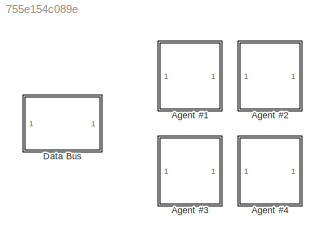
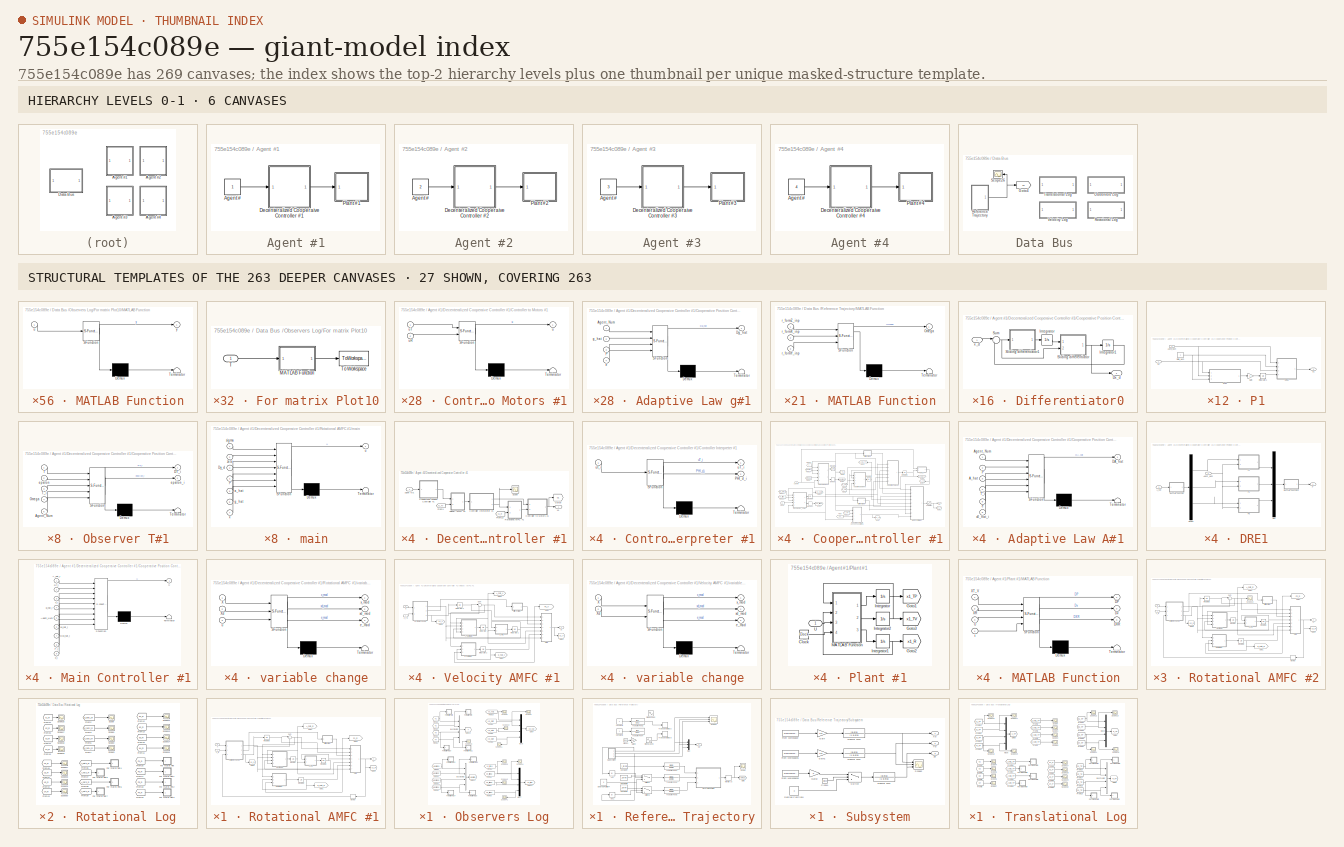
[diagram: thumbnail index - top-2 hierarchy levels (6 canvases) + 27 structural-template representatives of the remaining 263 canvases]
MODEL slx_755e154c089e
KIND model
CONFIG AbsTol = auto
CONFIG EnableMultiTasking = on
CONFIG FixedStep = auto
CONFIG InitFcn = constant_CAMFC2_04_Quad_03\n
CONFIG MaxStep = auto
CONFIG MinStep = auto
CONFIG RelTol = 1e-3
CONFIG SampleTimeConstraint = Unconstrained
CONFIG Solver = ode45
CONFIG SolverName = ode45
CONFIG StartTime = 0.0
CONFIG StopTime = 100
BLOCK [SubSystem] Agent #1
  Ports = []
  RequestExecContextInheritance = off
BLOCK [Constant] Agent #1/Agent #
BLOCK [SubSystem] Agent #1/Decenteralized Cooperaive Controller #1
  Ports = [1, 1]
  RequestExecContextInheritance = off
BLOCK [Inport] Agent #1/Decenteralized Cooperaive Controller #1/Agent No.
  IconDisplay = Port number
BLOCK [SubSystem] Agent #1/Decenteralized Cooperaive Controller #1/Controller Interpreter #1
  ErrorFcn = Stateflow.Translate.translate
  PermitHierarchicalResolution = ExplicitOnly
  Ports = [1, 2]
  RequestExecContextInheritance = off
  SFBlockType = MATLAB Function
  TreatAsAtomicUnit = on
BLOCK [Demux] Agent #1/Decenteralized Cooperaive Controller #1/Controller Interpreter #1/ Demux 
  Outputs = 1
  Ports = [1, 1]
BLOCK [S-Function] Agent #1/Decenteralized Cooperaive Controller #1/Controller Interpreter #1/ SFunction 
  EnableBusSupport = on
  FunctionName = sf_sfun
  PortCounts = [1 3]
  Ports = [1, 3]
  SFcnIsStateOwnerBlock = off
  SFunctionDeploymentMode = off
  Tag = Stateflow S-Function CAMFC2_04_Quad_03 84
BLOCK [Terminator] Agent #1/Decenteralized Cooperaive Controller #1/Controller Interpreter #1/ Terminator 
BLOCK [Outport] Agent #1/Decenteralized Cooperaive Controller #1/Controller Interpreter #1/PHI_d_i
  IconDisplay = Port number
  Port = 2
BLOCK [Outport] Agent #1/Decenteralized Cooperaive Controller #1/Controller Interpreter #1/uT_i
  IconDisplay = Port number
BLOCK [Inport] Agent #1/Decenteralized Cooperaive Controller #1/Controller Interpreter #1/ut_i
  IconDisplay = Port number
BLOCK [SubSystem] Agent #1/Decenteralized Cooperaive Controller #1/Controller to Motors #1
  ErrorFcn = Stateflow.Translate.translate
  PermitHierarchicalResolution = ExplicitOnly
  Ports = [2, 1]
  RequestExecContextInheritance = off
  SFBlockType = MATLAB Function
  TreatAsAtomicUnit = on
BLOCK [Demux] Agent #1/Decenteralized Cooperaive Controller #1/Controller to Motors #1/ Demux 
  Outputs = 1
  Ports = [1, 1]
BLOCK [S-Function] Agent #1/Decenteralized Cooperaive Controller #1/Controller to Motors #1/ SFunction 
  EnableBusSupport = on
  FunctionName = sf_sfun
  PortCounts = [2 2]
  Ports = [2, 2]
  SFcnIsStateOwnerBlock = off
  SFunctionDeploymentMode = off
  Tag = Stateflow S-Function CAMFC2_04_Quad_03 1
BLOCK [Terminator] Agent #1/Decenteralized Cooperaive Controller #1/Controller to Motors #1/ Terminator 
BLOCK [Outport] Agent #1/Decenteralized Cooperaive Controller #1/Controller to Motors #1/u
  IconDisplay = Port number
BLOCK [Inport] Agent #1/Decenteralized Cooperaive Controller #1/Controller to Motors #1/uR
  IconDisplay = Port number
  Port = 2
BLOCK [Inport] Agent #1/Decenteralized Cooperaive Controller #1/Controller to Motors #1/uT
  IconDisplay = Port number
BLOCK [SubSystem] Agent #1/Decenteralized Cooperaive Controller #1/Cooperative Position Controller #1
  Ports = [1, 1]
  RequestExecContextInheritance = off
BLOCK [SubSystem] Agent #1/Decenteralized Cooperaive Controller #1/Cooperative Position Controller #1/Adaptive Law A#1
  ErrorFcn = Stateflow.Translate.translate
  PermitHierarchicalResolution = ExplicitOnly
  Ports = [6, 1]
  RequestExecContextInheritance = off
  SFBlockType = MATLAB Function
  TreatAsAtomicUnit = on
BLOCK [Demux] Agent #1/Decenteralized Cooperaive Controller #1/Cooperative Position Controller #1/Adaptive Law A#1/ Demux 
  Outputs = 1
  Ports = [1, 1]
BLOCK [S-Function] Agent #1/Decenteralized Cooperaive Controller #1/Cooperative Position Controller #1/Adaptive Law A#1/ SFunction 
  EnableBusSupport = on
  FunctionName = sf_sfun
  Parameters = H,N,P_struct,gama2,n0,rho2
  PortCounts = [6 2]
  Ports = [6, 2]
  SFcnIsStateOwnerBlock = off
  SFunctionDeploymentMode = off
  Tag = Stateflow S-Function CAMFC2_04_Quad_03 2
BLOCK [Terminator] Agent #1/Decenteralized Cooperaive Controller #1/Cooperative Position Controller #1/Adaptive Law A#1/ Terminator 
BLOCK [Inport] Agent #1/Decenteralized Cooperaive Controller #1/Cooperative Position Controller #1/Adaptive Law A#1/A_hat
  IconDisplay = Port number
  Port = 3
BLOCK [Inport] Agent #1/Decenteralized Cooperaive Controller #1/Cooperative Position Controller #1/Adaptive Law A#1/Agent_Num
  IconDisplay = Port number
BLOCK [Outport] Agent #1/Decenteralized Cooperaive Controller #1/Cooperative Position Controller #1/Adaptive Law A#1/DA_hat
  IconDisplay = Port number
BLOCK [Inport] Agent #1/Decenteralized Cooperaive Controller #1/Cooperative Position Controller #1/Adaptive Law A#1/P
  IconDisplay = Port number
  Port = 2
BLOCK [Inport] Agent #1/Decenteralized Cooperaive Controller #1/Cooperative Position Controller #1/Adaptive Law A#1/T_i
  IconDisplay = Port number
  Port = 4
BLOCK [Inport] Agent #1/Decenteralized Cooperaive Controller #1/Cooperative Position Controller #1/Adaptive Law A#1/e
  IconDisplay = Port number
  Port = 5
BLOCK [Inport] Agent #1/Decenteralized Cooperaive Controller #1/Cooperative Position Controller #1/Adaptive Law A#1/x0_hat_i
  IconDisplay = Port number
  Port = 6
BLOCK [SubSystem] Agent #1/Decenteralized Cooperaive Controller #1/Cooperative Position Controller #1/Adaptive Law g#1
  ErrorFcn = Stateflow.Translate.translate
  PermitHierarchicalResolution = ExplicitOnly
  Ports = [4, 1]
  RequestExecContextInheritance = off
  SFBlockType = MATLAB Function
  TreatAsAtomicUnit = on
BLOCK [Demux] Agent #1/Decenteralized Cooperaive Controller #1/Cooperative Position Controller #1/Adaptive Law g#1/ Demux 
  Outputs = 1
  Ports = [1, 1]
BLOCK [S-Function] Agent #1/Decenteralized Cooperaive Controller #1/Cooperative Position Controller #1/Adaptive Law g#1/ SFunction 
  EnableBusSupport = on
  FunctionName = sf_sfun
  Parameters = H,N,P_struct,gama1,n0,rho1
  PortCounts = [4 2]
  Ports = [4, 2]
  SFcnIsStateOwnerBlock = off
  SFunctionDeploymentMode = off
  Tag = Stateflow S-Function CAMFC2_04_Quad_03 3
BLOCK [Terminator] Agent #1/Decenteralized Cooperaive Controller #1/Cooperative Position Controller #1/Adaptive Law g#1/ Terminator 
BLOCK [Inport] Agent #1/Decenteralized Cooperaive Controller #1/Cooperative Position Controller #1/Adaptive Law g#1/Agent_Num
  IconDisplay = Port number
BLOCK [Outport] Agent #1/Decenteralized Cooperaive Controller #1/Cooperative Position Controller #1/Adaptive Law g#1/Dg_hat
  IconDisplay = Port number
BLOCK [Inport] Agent #1/Decenteralized Cooperaive Controller #1/Cooperative Position Controller #1/Adaptive Law g#1/P
  IconDisplay = Port number
  Port = 3
BLOCK [Inport] Agent #1/Decenteralized Cooperaive Controller #1/Cooperative Position Controller #1/Adaptive Law g#1/e
  IconDisplay = Port number
  Port = 4
BLOCK [Inport] Agent #1/Decenteralized Cooperaive Controller #1/Cooperative Position Controller #1/Adaptive Law g#1/g_hat
  IconDisplay = Port number
  Port = 2
BLOCK [Inport] Agent #1/Decenteralized Cooperaive Controller #1/Cooperative Position Controller #1/Agent #
  IconDisplay = Port number
BLOCK [SubSystem] Agent #1/Decenteralized Cooperaive Controller #1/Cooperative Position Controller #1/DRE1
  Ports = [2, 1]
  RequestExecContextInheritance = off
BLOCK [Inport] Agent #1/Decenteralized Cooperaive Controller #1/Cooperative Position Controller #1/DRE1/A_hat
  IconDisplay = Port number
  Port = 2
BLOCK [Inport] Agent #1/Decenteralized Cooperaive Controller #1/Cooperative Position Controller #1/DRE1/Agent_Num
  IconDisplay = Port number
BLOCK [Demux] Agent #1/Decenteralized Cooperaive Controller #1/Cooperative Position Controller #1/DRE1/Demux
  DisplayOption = bar
  Outputs = 3
  Ports = [1, 3]
BLOCK [SubSystem] Agent #1/Decenteralized Cooperaive Controller #1/Cooperative Position Controller #1/DRE1/MATLAB Function
  ErrorFcn = Stateflow.Translate.translate
  PermitHierarchicalResolution = ExplicitOnly
  Ports = [1, 1]
  RequestExecContextInheritance = off
  SFBlockType = MATLAB Function
  TreatAsAtomicUnit = on
BLOCK [Demux] Agent #1/Decenteralized Cooperaive Controller #1/Cooperative Position Controller #1/DRE1/MATLAB Function/ Demux 
  Outputs = 1
  Ports = [1, 1]
BLOCK [S-Function] Agent #1/Decenteralized Cooperaive Controller #1/Cooperative Position Controller #1/DRE1/MATLAB Function/ SFunction 
  EnableBusSupport = on
  FunctionName = sf_sfun
  PortCounts = [1 2]
  Ports = [1, 2]
  SFcnIsStateOwnerBlock = off
  SFunctionDeploymentMode = off
  Tag = Stateflow S-Function CAMFC2_04_Quad_03 13
BLOCK [Terminator] Agent #1/Decenteralized Cooperaive Controller #1/Cooperative Position Controller #1/DRE1/MATLAB Function/ Terminator 
BLOCK [Inport] Agent #1/Decenteralized Cooperaive Controller #1/Cooperative Position Controller #1/DRE1/MATLAB Function/inp
  IconDisplay = Port number
BLOCK [Outport] Agent #1/Decenteralized Cooperaive Controller #1/Cooperative Position Controller #1/DRE1/MATLAB Function/otp
  IconDisplay = Port number
BLOCK [SubSystem] Agent #1/Decenteralized Cooperaive Controller #1/Cooperative Position Controller #1/DRE1/MATLAB Function1
  ErrorFcn = Stateflow.Translate.translate
  PermitHierarchicalResolution = ExplicitOnly
  Ports = [1, 1]
  RequestExecContextInheritance = off
  SFBlockType = MATLAB Function
  TreatAsAtomicUnit = on
BLOCK [Demux] Agent #1/Decenteralized Cooperaive Controller #1/Cooperative Position Controller #1/DRE1/MATLAB Function1/ Demux 
  Outputs = 1
  Ports = [1, 1]
BLOCK [S-Function] Agent #1/Decenteralized Cooperaive Controller #1/Cooperative Position Controller #1/DRE1/MATLAB Function1/ SFunction 
  EnableBusSupport = on
  FunctionName = sf_sfun
  PortCounts = [1 2]
  Ports = [1, 2]
  SFcnIsStateOwnerBlock = off
  SFunctionDeploymentMode = off
  Tag = Stateflow S-Function CAMFC2_04_Quad_03 4
BLOCK [Terminator] Agent #1/Decenteralized Cooperaive Controller #1/Cooperative Position Controller #1/DRE1/MATLAB Function1/ Terminator 
BLOCK [Inport] Agent #1/Decenteralized Cooperaive Controller #1/Cooperative Position Controller #1/DRE1/MATLAB Function1/inp
  IconDisplay = Port number
BLOCK [Outport] Agent #1/Decenteralized Cooperaive Controller #1/Cooperative Position Controller #1/DRE1/MATLAB Function1/otp
  IconDisplay = Port number
BLOCK [Mux] Agent #1/Decenteralized Cooperaive Controller #1/Cooperative Position Controller #1/DRE1/Mux
  DisplayOption = bar
  Inputs = 3
  Ports = [3, 1]
BLOCK [Outport] Agent #1/Decenteralized Cooperaive Controller #1/Cooperative Position Controller #1/DRE1/P
  IconDisplay = Port number
BLOCK [SubSystem] Agent #1/Decenteralized Cooperaive Controller #1/Cooperative Position Controller #1/DRE1/P1
  Ports = [2, 1]
  RequestExecContextInheritance = off
BLOCK [Inport] Agent #1/Decenteralized Cooperaive Controller #1/Cooperative Position Controller #1/DRE1/P1/Agent_Num
  IconDisplay = Port number
  Port = 2
BLOCK [SubSystem] Agent #1/Decenteralized Cooperaive Controller #1/Cooperative Position Controller #1/DRE1/P1/DLE1
  ErrorFcn = Stateflow.Translate.translate
  PermitHierarchicalResolution = ExplicitOnly
  Ports = [3, 1]
  RequestExecContextInheritance = off
  SFBlockType = MATLAB Function
  TreatAsAtomicUnit = on
BLOCK [Demux] Agent #1/Decenteralized Cooperaive Controller #1/Cooperative Position Controller #1/DRE1/P1/DLE1/ Demux 
  Outputs = 1
  Ports = [1, 1]
BLOCK [S-Function] Agent #1/Decenteralized Cooperaive Controller #1/Cooperative Position Controller #1/DRE1/P1/DLE1/ SFunction 
  EnableBusSupport = on
  FunctionName = sf_sfun
  Parameters = H,Q
  PortCounts = [3 2]
  Ports = [3, 2]
  SFcnIsStateOwnerBlock = off
  SFunctionDeploymentMode = off
  Tag = Stateflow S-Function CAMFC2_04_Quad_03 5
BLOCK [Terminator] Agent #1/Decenteralized Cooperaive Controller #1/Cooperative Position Controller #1/DRE1/P1/DLE1/ Terminator 
BLOCK [Inport] Agent #1/Decenteralized Cooperaive Controller #1/Cooperative Position Controller #1/DRE1/P1/DLE1/Agent_Num
  IconDisplay = Port number
  Port = 2
BLOCK [Inport] Agent #1/Decenteralized Cooperaive Controller #1/Cooperative Position Controller #1/DRE1/P1/DLE1/State_Num
  IconDisplay = Port number
  Port = 3
BLOCK [Inport] Agent #1/Decenteralized Cooperaive Controller #1/Cooperative Position Controller #1/DRE1/P1/DLE1/a_hat
  IconDisplay = Port number
BLOCK [Outport] Agent #1/Decenteralized Cooperaive Controller #1/Cooperative Position Controller #1/DRE1/P1/DLE1/b
  IconDisplay = Port number
BLOCK [SubSystem] Agent #1/Decenteralized Cooperaive Controller #1/Cooperative Position Controller #1/DRE1/P1/DRE2
  ErrorFcn = Stateflow.Translate.translate
  PermitHierarchicalResolution = ExplicitOnly
  Ports = [4, 1]
  RequestExecContextInheritance = off
  SFBlockType = MATLAB Function
  TreatAsAtomicUnit = on
BLOCK [Demux] Agent #1/Decenteralized Cooperaive Controller #1/Cooperative Position Controller #1/DRE1/P1/DRE2/ Demux 
  Outputs = 1
  Ports = [1, 1]
BLOCK [S-Function] Agent #1/Decenteralized Cooperaive Controller #1/Cooperative Position Controller #1/DRE1/P1/DRE2/ SFunction 
  EnableBusSupport = on
  FunctionName = sf_sfun
  Parameters = H,Q
  PortCounts = [4 2]
  Ports = [4, 2]
  SFcnIsStateOwnerBlock = off
  SFunctionDeploymentMode = off
  Tag = Stateflow S-Function CAMFC2_04_Quad_03 6
BLOCK [Terminator] Agent #1/Decenteralized Cooperaive Controller #1/Cooperative Position Controller #1/DRE1/P1/DRE2/ Terminator 
BLOCK [Inport] Agent #1/Decenteralized Cooperaive Controller #1/Cooperative Position Controller #1/DRE1/P1/DRE2/Agent_Num
  IconDisplay = Port number
BLOCK [Inport] Agent #1/Decenteralized Cooperaive Controller #1/Cooperative Position Controller #1/DRE1/P1/DRE2/State_Num
  IconDisplay = Port number
  Port = 2
BLOCK [Inport] Agent #1/Decenteralized Cooperaive Controller #1/Cooperative Position Controller #1/DRE1/P1/DRE2/a_hat
  IconDisplay = Port number
  Port = 3
BLOCK [Outport] Agent #1/Decenteralized Cooperaive Controller #1/Cooperative Position Controller #1/DRE1/P1/DRE2/p
  IconDisplay = Port number
BLOCK [Inport] Agent #1/Decenteralized Cooperaive Controller #1/Cooperative Position Controller #1/DRE1/P1/DRE2/val_exp
  IconDisplay = Port number
  Port = 4
BLOCK [Gain] Agent #1/Decenteralized Cooperaive Controller #1/Cooperative Position Controller #1/DRE1/P1/Gain
  Gain = -1
  OutDataTypeStr = Inherit: Inherit via internal rule
  ParamDataTypeStr = Inherit: Inherit via internal rule
  SaturateOnIntegerOverflow = off
BLOCK [Integrator] Agent #1/Decenteralized Cooperaive Controller #1/Cooperative Position Controller #1/DRE1/P1/Integrator1
  Ports = [1, 1]
BLOCK [Constant] Agent #1/Decenteralized Cooperaive Controller #1/Cooperative Position Controller #1/DRE1/P1/State_Num
BLOCK [Inport] Agent #1/Decenteralized Cooperaive Controller #1/Cooperative Position Controller #1/DRE1/P1/a1
  IconDisplay = Port number
BLOCK [Outport] Agent #1/Decenteralized Cooperaive Controller #1/Cooperative Position Controller #1/DRE1/P1/p1
  IconDisplay = Port number
BLOCK [SubSystem] Agent #1/Decenteralized Cooperaive Controller #1/Cooperative Position Controller #1/DRE1/P2
  Ports = [2, 1]
  RequestExecContextInheritance = off
BLOCK [Inport] Agent #1/Decenteralized Cooperaive Controller #1/Cooperative Position Controller #1/DRE1/P2/Agent_Num
  IconDisplay = Port number
  Port = 2
BLOCK [SubSystem] Agent #1/Decenteralized Cooperaive Controller #1/Cooperative Position Controller #1/DRE1/P2/DLE1
  ErrorFcn = Stateflow.Translate.translate
  PermitHierarchicalResolution = ExplicitOnly
  Ports = [3, 1]
  RequestExecContextInheritance = off
  SFBlockType = MATLAB Function
  TreatAsAtomicUnit = on
BLOCK [Demux] Agent #1/Decenteralized Cooperaive Controller #1/Cooperative Position Controller #1/DRE1/P2/DLE1/ Demux 
  Outputs = 1
  Ports = [1, 1]
BLOCK [S-Function] Agent #1/Decenteralized Cooperaive Controller #1/Cooperative Position Controller #1/DRE1/P2/DLE1/ SFunction 
  EnableBusSupport = on
  FunctionName = sf_sfun
  Parameters = H,Q
  PortCounts = [3 2]
  Ports = [3, 2]
  SFcnIsStateOwnerBlock = off
  SFunctionDeploymentMode = off
  Tag = Stateflow S-Function CAMFC2_04_Quad_03 72
BLOCK [Terminator] Agent #1/Decenteralized Cooperaive Controller #1/Cooperative Position Controller #1/DRE1/P2/DLE1/ Terminator 
BLOCK [Inport] Agent #1/Decenteralized Cooperaive Controller #1/Cooperative Position Controller #1/DRE1/P2/DLE1/Agent_Num
  IconDisplay = Port number
  Port = 2
BLOCK [Inport] Agent #1/Decenteralized Cooperaive Controller #1/Cooperative Position Controller #1/DRE1/P2/DLE1/State_Num
  IconDisplay = Port number
  Port = 3
BLOCK [Inport] Agent #1/Decenteralized Cooperaive Controller #1/Cooperative Position Controller #1/DRE1/P2/DLE1/a_hat
  IconDisplay = Port number
BLOCK [Outport] Agent #1/Decenteralized Cooperaive Controller #1/Cooperative Position Controller #1/DRE1/P2/DLE1/b
  IconDisplay = Port number
BLOCK [SubSystem] Agent #1/Decenteralized Cooperaive Controller #1/Cooperative Position Controller #1/DRE1/P2/DRE2
  ErrorFcn = Stateflow.Translate.translate
  PermitHierarchicalResolution = ExplicitOnly
  Ports = [4, 1]
  RequestExecContextInheritance = off
  SFBlockType = MATLAB Function
  TreatAsAtomicUnit = on
BLOCK [Demux] Agent #1/Decenteralized Cooperaive Controller #1/Cooperative Position Controller #1/DRE1/P2/DRE2/ Demux 
  Outputs = 1
  Ports = [1, 1]
BLOCK [S-Function] Agent #1/Decenteralized Cooperaive Controller #1/Cooperative Position Controller #1/DRE1/P2/DRE2/ SFunction 
  EnableBusSupport = on
  FunctionName = sf_sfun
  Parameters = H,Q
  PortCounts = [4 2]
  Ports = [4, 2]
  SFcnIsStateOwnerBlock = off
  SFunctionDeploymentMode = off
  Tag = Stateflow S-Function CAMFC2_04_Quad_03 75
BLOCK [Terminator] Agent #1/Decenteralized Cooperaive Controller #1/Cooperative Position Controller #1/DRE1/P2/DRE2/ Terminator 
BLOCK [Inport] Agent #1/Decenteralized Cooperaive Controller #1/Cooperative Position Controller #1/DRE1/P2/DRE2/Agent_Num
  IconDisplay = Port number
BLOCK [Inport] Agent #1/Decenteralized Cooperaive Controller #1/Cooperative Position Controller #1/DRE1/P2/DRE2/State_Num
  IconDisplay = Port number
  Port = 2
BLOCK [Inport] Agent #1/Decenteralized Cooperaive Controller #1/Cooperative Position Controller #1/DRE1/P2/DRE2/a_hat
  IconDisplay = Port number
  Port = 3
BLOCK [Outport] Agent #1/Decenteralized Cooperaive Controller #1/Cooperative Position Controller #1/DRE1/P2/DRE2/p
  IconDisplay = Port number
BLOCK [Inport] Agent #1/Decenteralized Cooperaive Controller #1/Cooperative Position Controller #1/DRE1/P2/DRE2/val_exp
  IconDisplay = Port number
  Port = 4
BLOCK [Gain] Agent #1/Decenteralized Cooperaive Controller #1/Cooperative Position Controller #1/DRE1/P2/Gain
  Gain = -1
  OutDataTypeStr = Inherit: Inherit via internal rule
  ParamDataTypeStr = Inherit: Inherit via internal rule
  SaturateOnIntegerOverflow = off
BLOCK [Integrator] Agent #1/Decenteralized Cooperaive Controller #1/Cooperative Position Controller #1/DRE1/P2/Integrator1
  Ports = [1, 1]
BLOCK [Constant] Agent #1/Decenteralized Cooperaive Controller #1/Cooperative Position Controller #1/DRE1/P2/State_Num
  Value = 2
BLOCK [Inport] Agent #1/Decenteralized Cooperaive Controller #1/Cooperative Position Controller #1/DRE1/P2/a2
  IconDisplay = Port number
BLOCK [Outport] Agent #1/Decenteralized Cooperaive Controller #1/Cooperative Position Controller #1/DRE1/P2/p2
  IconDisplay = Port number
BLOCK [SubSystem] Agent #1/Decenteralized Cooperaive Controller #1/Cooperative Position Controller #1/DRE1/P3
  Ports = [2, 1]
  RequestExecContextInheritance = off
BLOCK [Inport] Agent #1/Decenteralized Cooperaive Controller #1/Cooperative Position Controller #1/DRE1/P3/Agent_Num
  IconDisplay = Port number
  Port = 2
BLOCK [SubSystem] Agent #1/Decenteralized Cooperaive Controller #1/Cooperative Position Controller #1/DRE1/P3/DLE1
  ErrorFcn = Stateflow.Translate.translate
  PermitHierarchicalResolution = ExplicitOnly
  Ports = [3, 1]
  RequestExecContextInheritance = off
  SFBlockType = MATLAB Function
  TreatAsAtomicUnit = on
BLOCK [Demux] Agent #1/Decenteralized Cooperaive Controller #1/Cooperative Position Controller #1/DRE1/P3/DLE1/ Demux 
  Outputs = 1
  Ports = [1, 1]
BLOCK [S-Function] Agent #1/Decenteralized Cooperaive Controller #1/Cooperative Position Controller #1/DRE1/P3/DLE1/ SFunction 
  EnableBusSupport = on
  FunctionName = sf_sfun
  Parameters = H,Q
  PortCounts = [3 2]
  Ports = [3, 2]
  SFcnIsStateOwnerBlock = off
  SFunctionDeploymentMode = off
  Tag = Stateflow S-Function CAMFC2_04_Quad_03 140
BLOCK [Terminator] Agent #1/Decenteralized Cooperaive Controller #1/Cooperative Position Controller #1/DRE1/P3/DLE1/ Terminator 
BLOCK [Inport] Agent #1/Decenteralized Cooperaive Controller #1/Cooperative Position Controller #1/DRE1/P3/DLE1/Agent_Num
  IconDisplay = Port number
  Port = 2
BLOCK [Inport] Agent #1/Decenteralized Cooperaive Controller #1/Cooperative Position Controller #1/DRE1/P3/DLE1/State_Num
  IconDisplay = Port number
  Port = 3
BLOCK [Inport] Agent #1/Decenteralized Cooperaive Controller #1/Cooperative Position Controller #1/DRE1/P3/DLE1/a_hat
  IconDisplay = Port number
BLOCK [Outport] Agent #1/Decenteralized Cooperaive Controller #1/Cooperative Position Controller #1/DRE1/P3/DLE1/b
  IconDisplay = Port number
BLOCK [SubSystem] Agent #1/Decenteralized Cooperaive Controller #1/Cooperative Position Controller #1/DRE1/P3/DRE2
  ErrorFcn = Stateflow.Translate.translate
  PermitHierarchicalResolution = ExplicitOnly
  Ports = [4, 1]
  RequestExecContextInheritance = off
  SFBlockType = MATLAB Function
  TreatAsAtomicUnit = on
BLOCK [Demux] Agent #1/Decenteralized Cooperaive Controller #1/Cooperative Position Controller #1/DRE1/P3/DRE2/ Demux 
  Outputs = 1
  Ports = [1, 1]
BLOCK [S-Function] Agent #1/Decenteralized Cooperaive Controller #1/Cooperative Position Controller #1/DRE1/P3/DRE2/ SFunction 
  EnableBusSupport = on
  FunctionName = sf_sfun
  Parameters = H,Q
  PortCounts = [4 2]
  Ports = [4, 2]
  SFcnIsStateOwnerBlock = off
  SFunctionDeploymentMode = off
  Tag = Stateflow S-Function CAMFC2_04_Quad_03 141
BLOCK [Terminator] Agent #1/Decenteralized Cooperaive Controller #1/Cooperative Position Controller #1/DRE1/P3/DRE2/ Terminator 
BLOCK [Inport] Agent #1/Decenteralized Cooperaive Controller #1/Cooperative Position Controller #1/DRE1/P3/DRE2/Agent_Num
  IconDisplay = Port number
BLOCK [Inport] Agent #1/Decenteralized Cooperaive Controller #1/Cooperative Position Controller #1/DRE1/P3/DRE2/State_Num
  IconDisplay = Port number
  Port = 2
BLOCK [Inport] Agent #1/Decenteralized Cooperaive Controller #1/Cooperative Position Controller #1/DRE1/P3/DRE2/a_hat
  IconDisplay = Port number
  Port = 3
BLOCK [Outport] Agent #1/Decenteralized Cooperaive Controller #1/Cooperative Position Controller #1/DRE1/P3/DRE2/p
  IconDisplay = Port number
BLOCK [Inport] Agent #1/Decenteralized Cooperaive Controller #1/Cooperative Position Controller #1/DRE1/P3/DRE2/val_exp
  IconDisplay = Port number
  Port = 4
BLOCK [Gain] Agent #1/Decenteralized Cooperaive Controller #1/Cooperative Position Controller #1/DRE1/P3/Gain
  Gain = -1
  OutDataTypeStr = Inherit: Inherit via internal rule
  ParamDataTypeStr = Inherit: Inherit via internal rule
  SaturateOnIntegerOverflow = off
BLOCK [Integrator] Agent #1/Decenteralized Cooperaive Controller #1/Cooperative Position Controller #1/DRE1/P3/Integrator1
  Ports = [1, 1]
BLOCK [Constant] Agent #1/Decenteralized Cooperaive Controller #1/Cooperative Position Controller #1/DRE1/P3/State_Num
  Value = 3
BLOCK [Inport] Agent #1/Decenteralized Cooperaive Controller #1/Cooperative Position Controller #1/DRE1/P3/a3
  IconDisplay = Port number
BLOCK [Outport] Agent #1/Decenteralized Cooperaive Controller #1/Cooperative Position Controller #1/DRE1/P3/p3
  IconDisplay = Port number
BLOCK [SubSystem] Agent #1/Decenteralized Cooperaive Controller #1/Cooperative Position Controller #1/Differentiator0
  Ports = [1, 1]
  RequestExecContextInheritance = off
BLOCK [Outport] Agent #1/Decenteralized Cooperaive Controller #1/Cooperative Position Controller #1/Differentiator0/Dx_d
  IconDisplay = Port number
BLOCK [Integrator] Agent #1/Decenteralized Cooperaive Controller #1/Cooperative Position Controller #1/Differentiator0/Integrator
  InitialCondition = zeros(n0,1)
  Ports = [1, 1]
BLOCK [Integrator] Agent #1/Decenteralized Cooperaive Controller #1/Cooperative Position Controller #1/Differentiator0/Integrator1
  InitialCondition = zeros(n0,1)
  Ports = [1, 1]
BLOCK [SubSystem] Agent #1/Decenteralized Cooperaive Controller #1/Cooperative Position Controller #1/Differentiator0/Sliding differentiator
  ErrorFcn = Stateflow.Translate.translate
  PermitHierarchicalResolution = ExplicitOnly
  Ports = [2, 1]
  RequestExecContextInheritance = off
  SFBlockType = MATLAB Function
  TreatAsAtomicUnit = on
BLOCK [Demux] Agent #1/Decenteralized Cooperaive Controller #1/Cooperative Position Controller #1/Differentiator0/Sliding differentiator/ Demux 
  Outputs = 1
  Ports = [1, 1]
BLOCK [S-Function] Agent #1/Decenteralized Cooperaive Controller #1/Cooperative Position Controller #1/Differentiator0/Sliding differentiator/ SFunction 
  EnableBusSupport = on
  FunctionName = sf_sfun
  Parameters = alpha,k1
  PortCounts = [2 2]
  Ports = [2, 2]
  SFcnIsStateOwnerBlock = off
  SFunctionDeploymentMode = off
  Tag = Stateflow S-Function CAMFC2_04_Quad_03 12
BLOCK [Terminator] Agent #1/Decenteralized Cooperaive Controller #1/Cooperative Position Controller #1/Differentiator0/Sliding differentiator/ Terminator 
BLOCK [Inport] Agent #1/Decenteralized Cooperaive Controller #1/Cooperative Position Controller #1/Differentiator0/Sliding differentiator/e
  IconDisplay = Port number
  Port = 2
BLOCK [Outport] Agent #1/Decenteralized Cooperaive Controller #1/Cooperative Position Controller #1/Differentiator0/Sliding differentiator/u
  IconDisplay = Port number
BLOCK [Inport] Agent #1/Decenteralized Cooperaive Controller #1/Cooperative Position Controller #1/Differentiator0/Sliding differentiator/u1
  IconDisplay = Port number
BLOCK [SubSystem] Agent #1/Decenteralized Cooperaive Controller #1/Cooperative Position Controller #1/Differentiator0/Sliding differentiator1
  ErrorFcn = Stateflow.Translate.translate
  PermitHierarchicalResolution = ExplicitOnly
  Ports = [1, 1]
  RequestExecContextInheritance = off
  SFBlockType = MATLAB Function
  TreatAsAtomicUnit = on
BLOCK [Demux] Agent #1/Decenteralized Cooperaive Controller #1/Cooperative Position Controller #1/Differentiator0/Sliding differentiator1/ Demux 
  Outputs = 1
  Ports = [1, 1]
BLOCK [S-Function] Agent #1/Decenteralized Cooperaive Controller #1/Cooperative Position Controller #1/Differentiator0/Sliding differentiator1/ SFunction 
  EnableBusSupport = on
  FunctionName = sf_sfun
  Parameters = alpha,k2
  PortCounts = [1 2]
  Ports = [1, 2]
  SFcnIsStateOwnerBlock = off
  SFunctionDeploymentMode = off
  Tag = Stateflow S-Function CAMFC2_04_Quad_03 9
BLOCK [Terminator] Agent #1/Decenteralized Cooperaive Controller #1/Cooperative Position Controller #1/Differentiator0/Sliding differentiator1/ Terminator 
BLOCK [Outport] Agent #1/Decenteralized Cooperaive Controller #1/Cooperative Position Controller #1/Differentiator0/Sliding differentiator1/Du1
  IconDisplay = Port number
BLOCK [Inport] Agent #1/Decenteralized Cooperaive Controller #1/Cooperative Position Controller #1/Differentiator0/Sliding differentiator1/e
  IconDisplay = Port number
BLOCK [Sum] Agent #1/Decenteralized Cooperaive Controller #1/Cooperative Position Controller #1/Differentiator0/Sum
  IconShape = round
  InputSameDT = off
  Inputs = |-+
  OutDataTypeStr = Inherit: Inherit via internal rule
  Ports = [2, 1]
  SaturateOnIntegerOverflow = off
BLOCK [Inport] Agent #1/Decenteralized Cooperaive Controller #1/Cooperative Position Controller #1/Differentiator0/x_d
  IconDisplay = Port number
BLOCK [SubSystem] Agent #1/Decenteralized Cooperaive Controller #1/Cooperative Position Controller #1/Differentiator2
  Ports = [1, 1]
  RequestExecContextInheritance = off
BLOCK [Outport] Agent #1/Decenteralized Cooperaive Controller #1/Cooperative Position Controller #1/Differentiator2/Dx_d
  IconDisplay = Port number
BLOCK [Integrator] Agent #1/Decenteralized Cooperaive Controller #1/Cooperative Position Controller #1/Differentiator2/Integrator
  InitialCondition = zeros(N+1,n0)
  Ports = [1, 1]
BLOCK [Integrator] Agent #1/Decenteralized Cooperaive Controller #1/Cooperative Position Controller #1/Differentiator2/Integrator1
  InitialCondition = zeros(N+1,n0)
  Ports = [1, 1]
BLOCK [SubSystem] Agent #1/Decenteralized Cooperaive Controller #1/Cooperative Position Controller #1/Differentiator2/Sliding differentiator
  ErrorFcn = Stateflow.Translate.translate
  PermitHierarchicalResolution = ExplicitOnly
  Ports = [2, 1]
  RequestExecContextInheritance = off
  SFBlockType = MATLAB Function
  TreatAsAtomicUnit = on
BLOCK [Demux] Agent #1/Decenteralized Cooperaive Controller #1/Cooperative Position Controller #1/Differentiator2/Sliding differentiator/ Demux 
  Outputs = 1
  Ports = [1, 1]
BLOCK [S-Function] Agent #1/Decenteralized Cooperaive Controller #1/Cooperative Position Controller #1/Differentiator2/Sliding differentiator/ SFunction 
  EnableBusSupport = on
  FunctionName = sf_sfun
  Parameters = alpha,k1
  PortCounts = [2 2]
  Ports = [2, 2]
  SFcnIsStateOwnerBlock = off
  SFunctionDeploymentMode = off
  Tag = Stateflow S-Function CAMFC2_04_Quad_03 108
BLOCK [Terminator] Agent #1/Decenteralized Cooperaive Controller #1/Cooperative Position Controller #1/Differentiator2/Sliding differentiator/ Terminator 
BLOCK [Inport] Agent #1/Decenteralized Cooperaive Controller #1/Cooperative Position Controller #1/Differentiator2/Sliding differentiator/e
  IconDisplay = Port number
  Port = 2
BLOCK [Outport] Agent #1/Decenteralized Cooperaive Controller #1/Cooperative Position Controller #1/Differentiator2/Sliding differentiator/u
  IconDisplay = Port number
BLOCK [Inport] Agent #1/Decenteralized Cooperaive Controller #1/Cooperative Position Controller #1/Differentiator2/Sliding differentiator/u1
  IconDisplay = Port number
BLOCK [SubSystem] Agent #1/Decenteralized Cooperaive Controller #1/Cooperative Position Controller #1/Differentiator2/Sliding differentiator1
  ErrorFcn = Stateflow.Translate.translate
  PermitHierarchicalResolution = ExplicitOnly
  Ports = [1, 1]
  RequestExecContextInheritance = off
  SFBlockType = MATLAB Function
  TreatAsAtomicUnit = on
BLOCK [Demux] Agent #1/Decenteralized Cooperaive Controller #1/Cooperative Position Controller #1/Differentiator2/Sliding differentiator1/ Demux 
  Outputs = 1
  Ports = [1, 1]
BLOCK [S-Function] Agent #1/Decenteralized Cooperaive Controller #1/Cooperative Position Controller #1/Differentiator2/Sliding differentiator1/ SFunction 
  EnableBusSupport = on
  FunctionName = sf_sfun
  Parameters = alpha,k2
  PortCounts = [1 2]
  Ports = [1, 2]
  SFcnIsStateOwnerBlock = off
  SFunctionDeploymentMode = off
  Tag = Stateflow S-Function CAMFC2_04_Quad_03 109
BLOCK [Terminator] Agent #1/Decenteralized Cooperaive Controller #1/Cooperative Position Controller #1/Differentiator2/Sliding differentiator1/ Terminator 
BLOCK [Outport] Agent #1/Decenteralized Cooperaive Controller #1/Cooperative Position Controller #1/Differentiator2/Sliding differentiator1/Du1
  IconDisplay = Port number
BLOCK [Inport] Agent #1/Decenteralized Cooperaive Controller #1/Cooperative Position Controller #1/Differentiator2/Sliding differentiator1/e
  IconDisplay = Port number
BLOCK [Sum] Agent #1/Decenteralized Cooperaive Controller #1/Cooperative Position Controller #1/Differentiator2/Sum
  IconShape = round
  InputSameDT = off
  Inputs = |-+
  OutDataTypeStr = Inherit: Inherit via internal rule
  Ports = [2, 1]
  SaturateOnIntegerOverflow = off
BLOCK [Inport] Agent #1/Decenteralized Cooperaive Controller #1/Cooperative Position Controller #1/Differentiator2/x_d
  IconDisplay = Port number
BLOCK [From] Agent #1/Decenteralized Cooperaive Controller #1/Cooperative Position Controller #1/From
  GotoTag = x0
  TagVisibility = global
BLOCK [From] Agent #1/Decenteralized Cooperaive Controller #1/Cooperative Position Controller #1/From1
  GotoTag = Omega
  TagVisibility = global
BLOCK [From] Agent #1/Decenteralized Cooperaive Controller #1/Cooperative Position Controller #1/From10
  GotoTag = x_TP
  TagVisibility = global
BLOCK [From] Agent #1/Decenteralized Cooperaive Controller #1/Cooperative Position Controller #1/From11
  GotoTag = x0_hat
  TagVisibility = global
BLOCK [From] Agent #1/Decenteralized Cooperaive Controller #1/Cooperative Position Controller #1/From12
  GotoTag = x0_tilde
  TagVisibility = global
BLOCK [From] Agent #1/Decenteralized Cooperaive Controller #1/Cooperative Position Controller #1/From13
  GotoTag = T
  TagVisibility = global
BLOCK [From] Agent #1/Decenteralized Cooperaive Controller #1/Cooperative Position Controller #1/From14
  GotoTag = epsilon
  TagVisibility = global
BLOCK [From] Agent #1/Decenteralized Cooperaive Controller #1/Cooperative Position Controller #1/From2
  GotoTag = e_TP
  TagVisibility = global
BLOCK [From] Agent #1/Decenteralized Cooperaive Controller #1/Cooperative Position Controller #1/From4
  GotoTag = x0
  TagVisibility = global
BLOCK [From] Agent #1/Decenteralized Cooperaive Controller #1/Cooperative Position Controller #1/From7
  GotoTag = P_TP
  TagVisibility = global
BLOCK [Goto] Agent #1/Decenteralized Cooperaive Controller #1/Cooperative Position Controller #1/Goto1
  GotoTag = u1_P
  TagVisibility = global
BLOCK [Goto] Agent #1/Decenteralized Cooperaive Controller #1/Cooperative Position Controller #1/Goto2
  GotoTag = g_hat1_TP
  TagVisibility = global
BLOCK [Goto] Agent #1/Decenteralized Cooperaive Controller #1/Cooperative Position Controller #1/Goto3
  GotoTag = x0_hat1
  TagVisibility = global
BLOCK [Goto] Agent #1/Decenteralized Cooperaive Controller #1/Cooperative Position Controller #1/Goto4
  GotoTag = P1_TP
  TagVisibility = global
BLOCK [Goto] Agent #1/Decenteralized Cooperaive Controller #1/Cooperative Position Controller #1/Goto5
  GotoTag = T1
  TagVisibility = global
BLOCK [Goto] Agent #1/Decenteralized Cooperaive Controller #1/Cooperative Position Controller #1/Goto6
  GotoTag = epsilon1
  TagVisibility = global
BLOCK [Goto] Agent #1/Decenteralized Cooperaive Controller #1/Cooperative Position Controller #1/Goto7
  GotoTag = e1_TP
  TagVisibility = global
BLOCK [Goto] Agent #1/Decenteralized Cooperaive Controller #1/Cooperative Position Controller #1/Goto8
  GotoTag = A_hat1_TP
  TagVisibility = global
BLOCK [Goto] Agent #1/Decenteralized Cooperaive Controller #1/Cooperative Position Controller #1/Goto9
  GotoTag = x0_tilde1
  TagVisibility = global
BLOCK [Integrator] Agent #1/Decenteralized Cooperaive Controller #1/Cooperative Position Controller #1/Integrator2
  InitialCondition = zeros(n0,1)
  Ports = [1, 1]
BLOCK [Integrator] Agent #1/Decenteralized Cooperaive Controller #1/Cooperative Position Controller #1/Integrator3
  InitialCondition = zeros(n0)
  Ports = [1, 1]
BLOCK [Integrator] Agent #1/Decenteralized Cooperaive Controller #1/Cooperative Position Controller #1/Integrator5
  InitialCondition = zeros(N+1,n0)
  Ports = [1, 1]
BLOCK [Integrator] Agent #1/Decenteralized Cooperaive Controller #1/Cooperative Position Controller #1/Integrator6
  InitialCondition = zeros(n0,1)
  Ports = [1, 1]
BLOCK [SubSystem] Agent #1/Decenteralized Cooperaive Controller #1/Cooperative Position Controller #1/Main Controller #1
  ErrorFcn = Stateflow.Translate.translate
  PermitHierarchicalResolution = ExplicitOnly
  Ports = [9, 1]
  RequestExecContextInheritance = off
  SFBlockType = MATLAB Function
  TreatAsAtomicUnit = on
BLOCK [Demux] Agent #1/Decenteralized Cooperaive Controller #1/Cooperative Position Controller #1/Main Controller #1/ Demux 
  Outputs = 1
  Ports = [1, 1]
BLOCK [S-Function] Agent #1/Decenteralized Cooperaive Controller #1/Cooperative Position Controller #1/Main Controller #1/ SFunction 
  EnableBusSupport = on
  FunctionName = sf_sfun
  PortCounts = [9 2]
  Ports = [9, 2]
  SFcnIsStateOwnerBlock = off
  SFunctionDeploymentMode = off
  Tag = Stateflow S-Function CAMFC2_04_Quad_03 110
BLOCK [Terminator] Agent #1/Decenteralized Cooperaive Controller #1/Cooperative Position Controller #1/Main Controller #1/ Terminator 
BLOCK [Inport] Agent #1/Decenteralized Cooperaive Controller #1/Cooperative Position Controller #1/Main Controller #1/A_hat_i
  IconDisplay = Port number
BLOCK [Inport] Agent #1/Decenteralized Cooperaive Controller #1/Cooperative Position Controller #1/Main Controller #1/Agent_Num
  IconDisplay = Port number
  Port = 5
BLOCK [Inport] Agent #1/Decenteralized Cooperaive Controller #1/Cooperative Position Controller #1/Main Controller #1/DT_i
  IconDisplay = Port number
  Port = 2
BLOCK [Inport] Agent #1/Decenteralized Cooperaive Controller #1/Cooperative Position Controller #1/Main Controller #1/Dx0_hat_i
  IconDisplay = Port number
  Port = 7
BLOCK [Inport] Agent #1/Decenteralized Cooperaive Controller #1/Cooperative Position Controller #1/Main Controller #1/P_i
  IconDisplay = Port number
  Port = 8
BLOCK [Inport] Agent #1/Decenteralized Cooperaive Controller #1/Cooperative Position Controller #1/Main Controller #1/T_i
  IconDisplay = Port number
  Port = 3
BLOCK [Outport] Agent #1/Decenteralized Cooperaive Controller #1/Cooperative Position Controller #1/Main Controller #1/U
  IconDisplay = Port number
BLOCK [Inport] Agent #1/Decenteralized Cooperaive Controller #1/Cooperative Position Controller #1/Main Controller #1/e_i
  IconDisplay = Port number
  Port = 9
BLOCK [Inport] Agent #1/Decenteralized Cooperaive Controller #1/Cooperative Position Controller #1/Main Controller #1/g_hat_i
  IconDisplay = Port number
  Port = 4
BLOCK [Inport] Agent #1/Decenteralized Cooperaive Controller #1/Cooperative Position Controller #1/Main Controller #1/x0_hat_i
  IconDisplay = Port number
  Port = 6
BLOCK [Memory] Agent #1/Decenteralized Cooperaive Controller #1/Cooperative Position Controller #1/Memory1
  InitialCondition = zeros(n0,1)
BLOCK [Memory] Agent #1/Decenteralized Cooperaive Controller #1/Cooperative Position Controller #1/Memory3
  InitialCondition = zeros(N+1,n0)
BLOCK [SubSystem] Agent #1/Decenteralized Cooperaive Controller #1/Cooperative Position Controller #1/Module to compute Consensus Error #1
  ErrorFcn = Stateflow.Translate.translate
  PermitHierarchicalResolution = ExplicitOnly
  Ports = [4, 1]
  RequestExecContextInheritance = off
  SFBlockType = MATLAB Function
  TreatAsAtomicUnit = on
BLOCK [Demux] Agent #1/Decenteralized Cooperaive Controller #1/Cooperative Position Controller #1/Module to compute Consensus Error #1/ Demux 
  Outputs = 1
  Ports = [1, 1]
BLOCK [S-Function] Agent #1/Decenteralized Cooperaive Controller #1/Cooperative Position Controller #1/Module to compute Consensus Error #1/ SFunction 
  EnableBusSupport = on
  FunctionName = sf_sfun
  Parameters = AN,BN,N,n0
  PortCounts = [4 2]
  Ports = [4, 2]
  SFcnIsStateOwnerBlock = off
  SFunctionDeploymentMode = off
  Tag = Stateflow S-Function CAMFC2_04_Quad_03 111
BLOCK [Terminator] Agent #1/Decenteralized Cooperaive Controller #1/Cooperative Position Controller #1/Module to compute Consensus Error #1/ Terminator 
BLOCK [Inport] Agent #1/Decenteralized Cooperaive Controller #1/Cooperative Position Controller #1/Module to compute Consensus Error #1/Agent_Num
  IconDisplay = Port number
  Port = 4
BLOCK [Inport] Agent #1/Decenteralized Cooperaive Controller #1/Cooperative Position Controller #1/Module to compute Consensus Error #1/T_i
  IconDisplay = Port number
BLOCK [Outport] Agent #1/Decenteralized Cooperaive Controller #1/Cooperative Position Controller #1/Module to compute Consensus Error #1/ep
  IconDisplay = Port number
BLOCK [Inport] Agent #1/Decenteralized Cooperaive Controller #1/Cooperative Position Controller #1/Module to compute Consensus Error #1/x
  IconDisplay = Port number
  Port = 2
BLOCK [Inport] Agent #1/Decenteralized Cooperaive Controller #1/Cooperative Position Controller #1/Module to compute Consensus Error #1/x0
  IconDisplay = Port number
  Port = 3
BLOCK [SubSystem] Agent #1/Decenteralized Cooperaive Controller #1/Cooperative Position Controller #1/Observer T#1
  ErrorFcn = Stateflow.Translate.translate
  PermitHierarchicalResolution = ExplicitOnly
  Ports = [5, 2]
  RequestExecContextInheritance = off
  SFBlockType = MATLAB Function
  TreatAsAtomicUnit = on
BLOCK [Demux] Agent #1/Decenteralized Cooperaive Controller #1/Cooperative Position Controller #1/Observer T#1/ Demux 
  Outputs = 1
  Ports = [1, 1]
BLOCK [S-Function] Agent #1/Decenteralized Cooperaive Controller #1/Cooperative Position Controller #1/Observer T#1/ SFunction 
  EnableBusSupport = on
  FunctionName = sf_sfun
  Parameters = AN,BN,H,N,Observer_Gain1,T_struct,Upsilon_M,alpha,epsilon_struct,n0
  PortCounts = [5 3]
  Ports = [5, 3]
  SFcnIsStateOwnerBlock = off
  SFunctionDeploymentMode = off
  Tag = Stateflow S-Function CAMFC2_04_Quad_03 112
BLOCK [Terminator] Agent #1/Decenteralized Cooperaive Controller #1/Cooperative Position Controller #1/Observer T#1/ Terminator 
BLOCK [Inport] Agent #1/Decenteralized Cooperaive Controller #1/Cooperative Position Controller #1/Observer T#1/Agent_Num
  IconDisplay = Port number
  Port = 5
BLOCK [Outport] Agent #1/Decenteralized Cooperaive Controller #1/Cooperative Position Controller #1/Observer T#1/DT_i
  IconDisplay = Port number
BLOCK [Inport] Agent #1/Decenteralized Cooperaive Controller #1/Cooperative Position Controller #1/Observer T#1/Omega
  IconDisplay = Port number
  Port = 4
BLOCK [Inport] Agent #1/Decenteralized Cooperaive Controller #1/Cooperative Position Controller #1/Observer T#1/T
  IconDisplay = Port number
BLOCK [Inport] Agent #1/Decenteralized Cooperaive Controller #1/Cooperative Position Controller #1/Observer T#1/T_i
  IconDisplay = Port number
  Port = 3
BLOCK [Inport] Agent #1/Decenteralized Cooperaive Controller #1/Cooperative Position Controller #1/Observer T#1/epsilon
  IconDisplay = Port number
  Port = 2
BLOCK [Outport] Agent #1/Decenteralized Cooperaive Controller #1/Cooperative Position Controller #1/Observer T#1/epsilon_i
  IconDisplay = Port number
  Port = 2
BLOCK [SubSystem] Agent #1/Decenteralized Cooperaive Controller #1/Cooperative Position Controller #1/Observer x0_hat#1
  ErrorFcn = Stateflow.Translate.translate
  PermitHierarchicalResolution = ExplicitOnly
  Ports = [5, 2]
  RequestExecContextInheritance = off
  SFBlockType = MATLAB Function
  TreatAsAtomicUnit = on
BLOCK [Demux] Agent #1/Decenteralized Cooperaive Controller #1/Cooperative Position Controller #1/Observer x0_hat#1/ Demux 
  Outputs = 1
  Ports = [1, 1]
BLOCK [S-Function] Agent #1/Decenteralized Cooperaive Controller #1/Cooperative Position Controller #1/Observer x0_hat#1/ SFunction 
  EnableBusSupport = on
  FunctionName = sf_sfun
  Parameters = AN,BN,H,N,Observer_Gain,alpha,chi,n0
  PortCounts = [5 3]
  Ports = [5, 3]
  SFcnIsStateOwnerBlock = off
  SFunctionDeploymentMode = off
  Tag = Stateflow S-Function CAMFC2_04_Quad_03 113
BLOCK [Terminator] Agent #1/Decenteralized Cooperaive Controller #1/Cooperative Position Controller #1/Observer x0_hat#1/ Terminator 
BLOCK [Inport] Agent #1/Decenteralized Cooperaive Controller #1/Cooperative Position Controller #1/Observer x0_hat#1/Agent_Num
  IconDisplay = Port number
  Port = 5
BLOCK [Outport] Agent #1/Decenteralized Cooperaive Controller #1/Cooperative Position Controller #1/Observer x0_hat#1/Dx0_hat_i
  IconDisplay = Port number
BLOCK [Inport] Agent #1/Decenteralized Cooperaive Controller #1/Cooperative Position Controller #1/Observer x0_hat#1/x0
  IconDisplay = Port number
  Port = 4
BLOCK [Inport] Agent #1/Decenteralized Cooperaive Controller #1/Cooperative Position Controller #1/Observer x0_hat#1/x0_hat
  IconDisplay = Port number
BLOCK [Inport] Agent #1/Decenteralized Cooperaive Controller #1/Cooperative Position Controller #1/Observer x0_hat#1/x0_hat_i
  IconDisplay = Port number
  Port = 3
BLOCK [Inport] Agent #1/Decenteralized Cooperaive Controller #1/Cooperative Position Controller #1/Observer x0_hat#1/x0_tilde
  IconDisplay = Port number
  Port = 2
BLOCK [Outport] Agent #1/Decenteralized Cooperaive Controller #1/Cooperative Position Controller #1/Observer x0_hat#1/x0_tilde_i
  IconDisplay = Port number
  Port = 2
BLOCK [Saturate] Agent #1/Decenteralized Cooperaive Controller #1/Cooperative Position Controller #1/Saturation
  InputPortMap = u0
  LowerLimit = -Vel_limit*ones(n0,1)
  Ports = [1, 1]
  UpperLimit = Vel_limit*ones(n0,1)
BLOCK [Outport] Agent #1/Decenteralized Cooperaive Controller #1/Cooperative Position Controller #1/U1
  IconDisplay = Port number
BLOCK [From] Agent #1/Decenteralized Cooperaive Controller #1/From1
  GotoTag = x1_TV
  TagVisibility = global
BLOCK [From] Agent #1/Decenteralized Cooperaive Controller #1/From13
  GotoTag = x1_R
  TagVisibility = global
BLOCK [Goto] Agent #1/Decenteralized Cooperaive Controller #1/Goto9
  GotoTag = u1
  TagVisibility = global
BLOCK [SubSystem] Agent #1/Decenteralized Cooperaive Controller #1/Rotational AMFC #1
  Ports = [2, 1]
  RequestExecContextInheritance = off
BLOCK [SubSystem] Agent #1/Decenteralized Cooperaive Controller #1/Rotational AMFC #1/CARE
  ErrorFcn = Stateflow.Translate.translate
  PermitHierarchicalResolution = ExplicitOnly
  Ports = [2, 1]
  RequestExecContextInheritance = off
  SFBlockType = MATLAB Function
  TreatAsAtomicUnit = on
BLOCK [Demux] Agent #1/Decenteralized Cooperaive Controller #1/Rotational AMFC #1/CARE/ Demux 
  Outputs = 1
  Ports = [1, 1]
BLOCK [S-Function] Agent #1/Decenteralized Cooperaive Controller #1/Rotational AMFC #1/CARE/ SFunction 
  EnableBusSupport = on
  FunctionName = sf_sfun
  Parameters = B,QR,R
  PortCounts = [2 2]
  Ports = [2, 2]
  SFcnIsStateOwnerBlock = off
  SFunctionDeploymentMode = off
  Tag = Stateflow S-Function CAMFC2_04_Quad_03 52
BLOCK [Terminator] Agent #1/Decenteralized Cooperaive Controller #1/Rotational AMFC #1/CARE/ Terminator 
BLOCK [Outport] Agent #1/Decenteralized Cooperaive Controller #1/Rotational AMFC #1/CARE/DP
  IconDisplay = Port number
BLOCK [Inport] Agent #1/Decenteralized Cooperaive Controller #1/Rotational AMFC #1/CARE/P
  IconDisplay = Port number
BLOCK [Inport] Agent #1/Decenteralized Cooperaive Controller #1/Rotational AMFC #1/CARE/a_hat
  IconDisplay = Port number
  Port = 2
BLOCK [SubSystem] Agent #1/Decenteralized Cooperaive Controller #1/Rotational AMFC #1/Differentiator
  Ports = [1, 1]
  RequestExecContextInheritance = off
BLOCK [Outport] Agent #1/Decenteralized Cooperaive Controller #1/Rotational AMFC #1/Differentiator/Dx_d
  IconDisplay = Port number
BLOCK [Integrator] Agent #1/Decenteralized Cooperaive Controller #1/Rotational AMFC #1/Differentiator/Integrator
  InitialCondition = zeros(n,1)
  Ports = [1, 1]
BLOCK [Integrator] Agent #1/Decenteralized Cooperaive Controller #1/Rotational AMFC #1/Differentiator/Integrator1
  InitialCondition = zeros(n,1)
  Ports = [1, 1]
BLOCK [SubSystem] Agent #1/Decenteralized Cooperaive Controller #1/Rotational AMFC #1/Differentiator/Sliding differentiator
  ErrorFcn = Stateflow.Translate.translate
  PermitHierarchicalResolution = ExplicitOnly
  Ports = [2, 1]
  RequestExecContextInheritance = off
  SFBlockType = MATLAB Function
  TreatAsAtomicUnit = on
BLOCK [Demux] Agent #1/Decenteralized Cooperaive Controller #1/Rotational AMFC #1/Differentiator/Sliding differentiator/ Demux 
  Outputs = 1
  Ports = [1, 1]
BLOCK [S-Function] Agent #1/Decenteralized Cooperaive Controller #1/Rotational AMFC #1/Differentiator/Sliding differentiator/ SFunction 
  EnableBusSupport = on
  FunctionName = sf_sfun
  Parameters = alpha,k1
  PortCounts = [2 2]
  Ports = [2, 2]
  SFcnIsStateOwnerBlock = off
  SFunctionDeploymentMode = off
  Tag = Stateflow S-Function CAMFC2_04_Quad_03 77
BLOCK [Terminator] Agent #1/Decenteralized Cooperaive Controller #1/Rotational AMFC #1/Differentiator/Sliding differentiator/ Terminator 
BLOCK [Inport] Agent #1/Decenteralized Cooperaive Controller #1/Rotational AMFC #1/Differentiator/Sliding differentiator/e
  IconDisplay = Port number
  Port = 2
BLOCK [Outport] Agent #1/Decenteralized Cooperaive Controller #1/Rotational AMFC #1/Differentiator/Sliding differentiator/u
  IconDisplay = Port number
BLOCK [Inport] Agent #1/Decenteralized Cooperaive Controller #1/Rotational AMFC #1/Differentiator/Sliding differentiator/u1
  IconDisplay = Port number
BLOCK [SubSystem] Agent #1/Decenteralized Cooperaive Controller #1/Rotational AMFC #1/Differentiator/Sliding differentiator1
  ErrorFcn = Stateflow.Translate.translate
  PermitHierarchicalResolution = ExplicitOnly
  Ports = [1, 1]
  RequestExecContextInheritance = off
  SFBlockType = MATLAB Function
  TreatAsAtomicUnit = on
BLOCK [Demux] Agent #1/Decenteralized Cooperaive Controller #1/Rotational AMFC #1/Differentiator/Sliding differentiator1/ Demux 
  Outputs = 1
  Ports = [1, 1]
BLOCK [S-Function] Agent #1/Decenteralized Cooperaive Controller #1/Rotational AMFC #1/Differentiator/Sliding differentiator1/ SFunction 
  EnableBusSupport = on
  FunctionName = sf_sfun
  Parameters = alpha,k2
  PortCounts = [1 2]
  Ports = [1, 2]
  SFcnIsStateOwnerBlock = off
  SFunctionDeploymentMode = off
  Tag = Stateflow S-Function CAMFC2_04_Quad_03 85
BLOCK [Terminator] Agent #1/Decenteralized Cooperaive Controller #1/Rotational AMFC #1/Differentiator/Sliding differentiator1/ Terminator 
BLOCK [Outport] Agent #1/Decenteralized Cooperaive Controller #1/Rotational AMFC #1/Differentiator/Sliding differentiator1/Du1
  IconDisplay = Port number
BLOCK [Inport] Agent #1/Decenteralized Cooperaive Controller #1/Rotational AMFC #1/Differentiator/Sliding differentiator1/e
  IconDisplay = Port number
BLOCK [Sum] Agent #1/Decenteralized Cooperaive Controller #1/Rotational AMFC #1/Differentiator/Sum
  IconShape = round
  InputSameDT = off
  Inputs = |-+
  OutDataTypeStr = Inherit: Inherit via internal rule
  Ports = [2, 1]
  SaturateOnIntegerOverflow = off
BLOCK [Inport] Agent #1/Decenteralized Cooperaive Controller #1/Rotational AMFC #1/Differentiator/x_d
  IconDisplay = Port number
BLOCK [Goto] Agent #1/Decenteralized Cooperaive Controller #1/Rotational AMFC #1/Goto1
  GotoTag = g_hat1_R
  TagVisibility = global
BLOCK [Goto] Agent #1/Decenteralized Cooperaive Controller #1/Rotational AMFC #1/Goto2
  GotoTag = P1_R
  TagVisibility = global
BLOCK [Goto] Agent #1/Decenteralized Cooperaive Controller #1/Rotational AMFC #1/Goto3
  GotoTag = A_hat1_R
  TagVisibility = global
BLOCK [Goto] Agent #1/Decenteralized Cooperaive Controller #1/Rotational AMFC #1/Goto4
  GotoTag = u1_R
  TagVisibility = global
BLOCK [Goto] Agent #1/Decenteralized Cooperaive Controller #1/Rotational AMFC #1/Goto9
  GotoTag = e1_R
  TagVisibility = global
BLOCK [Integrator] Agent #1/Decenteralized Cooperaive Controller #1/Rotational AMFC #1/Integrator
  InitialCondition = zeros(n)
  Ports = [1, 1]
BLOCK [Integrator] Agent #1/Decenteralized Cooperaive Controller #1/Rotational AMFC #1/Integrator1
  InitialCondition = eye(n)
  Ports = [1, 1]
BLOCK [Integrator] Agent #1/Decenteralized Cooperaive Controller #1/Rotational AMFC #1/Integrator2
  InitialCondition = zeros(n,1)
  Ports = [1, 1]
BLOCK [Integrator] Agent #1/Decenteralized Cooperaive Controller #1/Rotational AMFC #1/Integrator3
  InitialCondition = zeros(n,1)
  Ports = [1, 1]
BLOCK [Memory] Agent #1/Decenteralized Cooperaive Controller #1/Rotational AMFC #1/Memory
  InitialCondition = zeros(m,1)
BLOCK [Sum] Agent #1/Decenteralized Cooperaive Controller #1/Rotational AMFC #1/Sum
  IconShape = round
  InputSameDT = off
  Inputs = |++
  OutDataTypeStr = Inherit: Inherit via internal rule
  Ports = [2, 1]
  SaturateOnIntegerOverflow = off
BLOCK [Inport] Agent #1/Decenteralized Cooperaive Controller #1/Rotational AMFC #1/X
  IconDisplay = Port number
  Port = 2
BLOCK [SubSystem] Agent #1/Decenteralized Cooperaive Controller #1/Rotational AMFC #1/g-Estimator
  ErrorFcn = Stateflow.Translate.translate
  PermitHierarchicalResolution = ExplicitOnly
  Ports = [3, 1]
  RequestExecContextInheritance = off
  SFBlockType = MATLAB Function
  TreatAsAtomicUnit = on
BLOCK [Demux] Agent #1/Decenteralized Cooperaive Controller #1/Rotational AMFC #1/g-Estimator/ Demux 
  Outputs = 1
  Ports = [1, 1]
BLOCK [S-Function] Agent #1/Decenteralized Cooperaive Controller #1/Rotational AMFC #1/g-Estimator/ SFunction 
  EnableBusSupport = on
  FunctionName = sf_sfun
  Parameters = gamma_1,rho_1
  PortCounts = [3 2]
  Ports = [3, 2]
  SFcnIsStateOwnerBlock = off
  SFunctionDeploymentMode = off
  Tag = Stateflow S-Function CAMFC2_04_Quad_03 86
BLOCK [Terminator] Agent #1/Decenteralized Cooperaive Controller #1/Rotational AMFC #1/g-Estimator/ Terminator 
BLOCK [Outport] Agent #1/Decenteralized Cooperaive Controller #1/Rotational AMFC #1/g-Estimator/Dg_hat
  IconDisplay = Port number
BLOCK [Inport] Agent #1/Decenteralized Cooperaive Controller #1/Rotational AMFC #1/g-Estimator/P
  IconDisplay = Port number
  Port = 3
BLOCK [Inport] Agent #1/Decenteralized Cooperaive Controller #1/Rotational AMFC #1/g-Estimator/g_hat
  IconDisplay = Port number
  Port = 2
BLOCK [Inport] Agent #1/Decenteralized Cooperaive Controller #1/Rotational AMFC #1/g-Estimator/sigma
  IconDisplay = Port number
BLOCK [SubSystem] Agent #1/Decenteralized Cooperaive Controller #1/Rotational AMFC #1/g-Estimator1
  ErrorFcn = Stateflow.Translate.translate
  PermitHierarchicalResolution = ExplicitOnly
  Ports = [4, 1]
  RequestExecContextInheritance = off
  SFBlockType = MATLAB Function
  TreatAsAtomicUnit = on
BLOCK [Demux] Agent #1/Decenteralized Cooperaive Controller #1/Rotational AMFC #1/g-Estimator1/ Demux 
  Outputs = 1
  Ports = [1, 1]
BLOCK [S-Function] Agent #1/Decenteralized Cooperaive Controller #1/Rotational AMFC #1/g-Estimator1/ SFunction 
  EnableBusSupport = on
  FunctionName = sf_sfun
  Parameters = gamma_0,rho_0
  PortCounts = [4 2]
  Ports = [4, 2]
  SFcnIsStateOwnerBlock = off
  SFunctionDeploymentMode = off
  Tag = Stateflow S-Function CAMFC2_04_Quad_03 87
BLOCK [Terminator] Agent #1/Decenteralized Cooperaive Controller #1/Rotational AMFC #1/g-Estimator1/ Terminator 
BLOCK [Outport] Agent #1/Decenteralized Cooperaive Controller #1/Rotational AMFC #1/g-Estimator1/Da_hat
  IconDisplay = Port number
BLOCK [Inport] Agent #1/Decenteralized Cooperaive Controller #1/Rotational AMFC #1/g-Estimator1/P
  IconDisplay = Port number
  Port = 3
BLOCK [Inport] Agent #1/Decenteralized Cooperaive Controller #1/Rotational AMFC #1/g-Estimator1/a_hat
  IconDisplay = Port number
  Port = 4
BLOCK [Inport] Agent #1/Decenteralized Cooperaive Controller #1/Rotational AMFC #1/g-Estimator1/sigma
  IconDisplay = Port number
BLOCK [Inport] Agent #1/Decenteralized Cooperaive Controller #1/Rotational AMFC #1/g-Estimator1/x
  IconDisplay = Port number
  Port = 2
BLOCK [SubSystem] Agent #1/Decenteralized Cooperaive Controller #1/Rotational AMFC #1/main
  ErrorFcn = Stateflow.Translate.translate
  PermitHierarchicalResolution = ExplicitOnly
  Ports = [7, 1]
  RequestExecContextInheritance = off
  SFBlockType = MATLAB Function
  TreatAsAtomicUnit = on
BLOCK [Demux] Agent #1/Decenteralized Cooperaive Controller #1/Rotational AMFC #1/main/ Demux 
  Outputs = 1
  Ports = [1, 1]
BLOCK [S-Function] Agent #1/Decenteralized Cooperaive Controller #1/Rotational AMFC #1/main/ SFunction 
  EnableBusSupport = on
  FunctionName = sf_sfun
  Parameters = B,BBT_inv,QR,R,n
  PortCounts = [7 2]
  Ports = [7, 2]
  SFcnIsStateOwnerBlock = off
  SFunctionDeploymentMode = off
  Tag = Stateflow S-Function CAMFC2_04_Quad_03 88
BLOCK [Terminator] Agent #1/Decenteralized Cooperaive Controller #1/Rotational AMFC #1/main/ Terminator 
BLOCK [Inport] Agent #1/Decenteralized Cooperaive Controller #1/Rotational AMFC #1/main/Dy_d
  IconDisplay = Port number
  Port = 3
BLOCK [Inport] Agent #1/Decenteralized Cooperaive Controller #1/Rotational AMFC #1/main/P
  IconDisplay = Port number
  Port = 4
BLOCK [Inport] Agent #1/Decenteralized Cooperaive Controller #1/Rotational AMFC #1/main/a_hat
  IconDisplay = Port number
  Port = 5
BLOCK [Inport] Agent #1/Decenteralized Cooperaive Controller #1/Rotational AMFC #1/main/g_hat
  IconDisplay = Port number
  Port = 6
BLOCK [Inport] Agent #1/Decenteralized Cooperaive Controller #1/Rotational AMFC #1/main/sigma
  IconDisplay = Port number
BLOCK [Outport] Agent #1/Decenteralized Cooperaive Controller #1/Rotational AMFC #1/main/u
  IconDisplay = Port number
BLOCK [Inport] Agent #1/Decenteralized Cooperaive Controller #1/Rotational AMFC #1/main/x
  IconDisplay = Port number
  Port = 7
BLOCK [Inport] Agent #1/Decenteralized Cooperaive Controller #1/Rotational AMFC #1/main/zeta
  IconDisplay = Port number
  Port = 2
BLOCK [Outport] Agent #1/Decenteralized Cooperaive Controller #1/Rotational AMFC #1/ur
  IconDisplay = Port number
BLOCK [SubSystem] Agent #1/Decenteralized Cooperaive Controller #1/Rotational AMFC #1/variable change
  ErrorFcn = Stateflow.Translate.translate
  PermitHierarchicalResolution = ExplicitOnly
  Ports = [3, 3]
  RequestExecContextInheritance = off
  SFBlockType = MATLAB Function
  TreatAsAtomicUnit = on
BLOCK [Demux] Agent #1/Decenteralized Cooperaive Controller #1/Rotational AMFC #1/variable change/ Demux 
  Outputs = 1
  Ports = [1, 1]
BLOCK [S-Function] Agent #1/Decenteralized Cooperaive Controller #1/Rotational AMFC #1/variable change/ SFunction 
  EnableBusSupport = on
  FunctionName = sf_sfun
  PortCounts = [3 4]
  Ports = [3, 4]
  SFcnIsStateOwnerBlock = off
  SFunctionDeploymentMode = off
  Tag = Stateflow S-Function CAMFC2_04_Quad_03 89
BLOCK [Terminator] Agent #1/Decenteralized Cooperaive Controller #1/Rotational AMFC #1/variable change/ Terminator 
BLOCK [Inport] Agent #1/Decenteralized Cooperaive Controller #1/Rotational AMFC #1/variable change/X
  IconDisplay = Port number
BLOCK [Inport] Agent #1/Decenteralized Cooperaive Controller #1/Rotational AMFC #1/variable change/Xd
  IconDisplay = Port number
  Port = 2
BLOCK [Outport] Agent #1/Decenteralized Cooperaive Controller #1/Rotational AMFC #1/variable change/e_mod
  IconDisplay = Port number
  Port = 3
BLOCK [Inport] Agent #1/Decenteralized Cooperaive Controller #1/Rotational AMFC #1/variable change/u
  IconDisplay = Port number
  Port = 3
BLOCK [Outport] Agent #1/Decenteralized Cooperaive Controller #1/Rotational AMFC #1/variable change/x_mod
  IconDisplay = Port number
BLOCK [Outport] Agent #1/Decenteralized Cooperaive Controller #1/Rotational AMFC #1/variable change/xd_mod
  IconDisplay = Port number
  Port = 2
BLOCK [Inport] Agent #1/Decenteralized Cooperaive Controller #1/Rotational AMFC #1/x_rd
  IconDisplay = Port number
BLOCK [Scope] Agent #1/Decenteralized Cooperaive Controller #1/Scope
  Floating = off
  NumInputPorts = 1
  Ports = [1]
  ScopeSpecificationString = Simulink.scopes.TimeScopeBlockCfg('CurrentConfiguration', extmgr.ConfigurationSet(extmgr.Configuration('Core','General UI',true),extmgr.Configuration('Core','Source UI',true),extmgr.Configuration('Sources','WiredSimulink',true,'DataLoggingVariableName','ScopeData1'),extmgr.Configuration('Visuals','Time Domain',true,'SerializedDisplays',{struct('MinYLimReal','-0.46928','MaxYLimReal','0.15722','YLab...<+1568ch>
BLOCK [SubSystem] Agent #1/Decenteralized Cooperaive Controller #1/Velocity AMFC #1
  Ports = [2, 1]
  RequestExecContextInheritance = off
BLOCK [SubSystem] Agent #1/Decenteralized Cooperaive Controller #1/Velocity AMFC #1/A-Estimator 
  ErrorFcn = Stateflow.Translate.translate
  PermitHierarchicalResolution = ExplicitOnly
  Ports = [4, 1]
  RequestExecContextInheritance = off
  SFBlockType = MATLAB Function
  TreatAsAtomicUnit = on
BLOCK [Demux] Agent #1/Decenteralized Cooperaive Controller #1/Velocity AMFC #1/A-Estimator / Demux 
  Outputs = 1
  Ports = [1, 1]
BLOCK [S-Function] Agent #1/Decenteralized Cooperaive Controller #1/Velocity AMFC #1/A-Estimator / SFunction 
  EnableBusSupport = on
  FunctionName = sf_sfun
  Parameters = gamma_0v,rho_0v
  PortCounts = [4 2]
  Ports = [4, 2]
  SFcnIsStateOwnerBlock = off
  SFunctionDeploymentMode = off
  Tag = Stateflow S-Function CAMFC2_04_Quad_03 174
BLOCK [Terminator] Agent #1/Decenteralized Cooperaive Controller #1/Velocity AMFC #1/A-Estimator / Terminator 
BLOCK [Outport] Agent #1/Decenteralized Cooperaive Controller #1/Velocity AMFC #1/A-Estimator /Da_hat
  IconDisplay = Port number
BLOCK [Inport] Agent #1/Decenteralized Cooperaive Controller #1/Velocity AMFC #1/A-Estimator /P
  IconDisplay = Port number
  Port = 3
BLOCK [Inport] Agent #1/Decenteralized Cooperaive Controller #1/Velocity AMFC #1/A-Estimator /a_hat
  IconDisplay = Port number
  Port = 4
BLOCK [Inport] Agent #1/Decenteralized Cooperaive Controller #1/Velocity AMFC #1/A-Estimator /sigma
  IconDisplay = Port number
BLOCK [Inport] Agent #1/Decenteralized Cooperaive Controller #1/Velocity AMFC #1/A-Estimator /x
  IconDisplay = Port number
  Port = 2
BLOCK [SubSystem] Agent #1/Decenteralized Cooperaive Controller #1/Velocity AMFC #1/CARE
  ErrorFcn = Stateflow.Translate.translate
  PermitHierarchicalResolution = ExplicitOnly
  Ports = [2, 1]
  RequestExecContextInheritance = off
  SFBlockType = MATLAB Function
  TreatAsAtomicUnit = on
BLOCK [Demux] Agent #1/Decenteralized Cooperaive Controller #1/Velocity AMFC #1/CARE/ Demux 
  Outputs = 1
  Ports = [1, 1]
BLOCK [S-Function] Agent #1/Decenteralized Cooperaive Controller #1/Velocity AMFC #1/CARE/ SFunction 
  EnableBusSupport = on
  FunctionName = sf_sfun
  Parameters = Bv,Qv,Rv
  PortCounts = [2 2]
  Ports = [2, 2]
  SFcnIsStateOwnerBlock = off
  SFunctionDeploymentMode = off
  Tag = Stateflow S-Function CAMFC2_04_Quad_03 170
BLOCK [Terminator] Agent #1/Decenteralized Cooperaive Controller #1/Velocity AMFC #1/CARE/ Terminator 
BLOCK [Outport] Agent #1/Decenteralized Cooperaive Controller #1/Velocity AMFC #1/CARE/DP
  IconDisplay = Port number
BLOCK [Inport] Agent #1/Decenteralized Cooperaive Controller #1/Velocity AMFC #1/CARE/P
  IconDisplay = Port number
BLOCK [Inport] Agent #1/Decenteralized Cooperaive Controller #1/Velocity AMFC #1/CARE/a_hat
  IconDisplay = Port number
  Port = 2
BLOCK [SubSystem] Agent #1/Decenteralized Cooperaive Controller #1/Velocity AMFC #1/Differentiator
  Ports = [1, 1]
  RequestExecContextInheritance = off
BLOCK [Outport] Agent #1/Decenteralized Cooperaive Controller #1/Velocity AMFC #1/Differentiator/Dx_d
  IconDisplay = Port number
BLOCK [Integrator] Agent #1/Decenteralized Cooperaive Controller #1/Velocity AMFC #1/Differentiator/Integrator
  InitialCondition = zeros(n0,1)
  Ports = [1, 1]
BLOCK [Integrator] Agent #1/Decenteralized Cooperaive Controller #1/Velocity AMFC #1/Differentiator/Integrator1
  InitialCondition = zeros(n0,1)
  Ports = [1, 1]
BLOCK [SubSystem] Agent #1/Decenteralized Cooperaive Controller #1/Velocity AMFC #1/Differentiator/Sliding differentiator
  ErrorFcn = Stateflow.Translate.translate
  PermitHierarchicalResolution = ExplicitOnly
  Ports = [2, 1]
  RequestExecContextInheritance = off
  SFBlockType = MATLAB Function
  TreatAsAtomicUnit = on
BLOCK [Demux] Agent #1/Decenteralized Cooperaive Controller #1/Velocity AMFC #1/Differentiator/Sliding differentiator/ Demux 
  Outputs = 1
  Ports = [1, 1]
BLOCK [S-Function] Agent #1/Decenteralized Cooperaive Controller #1/Velocity AMFC #1/Differentiator/Sliding differentiator/ SFunction 
  EnableBusSupport = on
  FunctionName = sf_sfun
  Parameters = alpha,k1
  PortCounts = [2 2]
  Ports = [2, 2]
  SFcnIsStateOwnerBlock = off
  SFunctionDeploymentMode = off
  Tag = Stateflow S-Function CAMFC2_04_Quad_03 171
BLOCK [Terminator] Agent #1/Decenteralized Cooperaive Controller #1/Velocity AMFC #1/Differentiator/Sliding differentiator/ Terminator 
BLOCK [Inport] Agent #1/Decenteralized Cooperaive Controller #1/Velocity AMFC #1/Differentiator/Sliding differentiator/e
  IconDisplay = Port number
  Port = 2
BLOCK [Outport] Agent #1/Decenteralized Cooperaive Controller #1/Velocity AMFC #1/Differentiator/Sliding differentiator/u
  IconDisplay = Port number
BLOCK [Inport] Agent #1/Decenteralized Cooperaive Controller #1/Velocity AMFC #1/Differentiator/Sliding differentiator/u1
  IconDisplay = Port number
BLOCK [SubSystem] Agent #1/Decenteralized Cooperaive Controller #1/Velocity AMFC #1/Differentiator/Sliding differentiator1
  ErrorFcn = Stateflow.Translate.translate
  PermitHierarchicalResolution = ExplicitOnly
  Ports = [1, 1]
  RequestExecContextInheritance = off
  SFBlockType = MATLAB Function
  TreatAsAtomicUnit = on
BLOCK [Demux] Agent #1/Decenteralized Cooperaive Controller #1/Velocity AMFC #1/Differentiator/Sliding differentiator1/ Demux 
  Outputs = 1
  Ports = [1, 1]
BLOCK [S-Function] Agent #1/Decenteralized Cooperaive Controller #1/Velocity AMFC #1/Differentiator/Sliding differentiator1/ SFunction 
  EnableBusSupport = on
  FunctionName = sf_sfun
  Parameters = alpha,k2
  PortCounts = [1 2]
  Ports = [1, 2]
  SFcnIsStateOwnerBlock = off
  SFunctionDeploymentMode = off
  Tag = Stateflow S-Function CAMFC2_04_Quad_03 172
BLOCK [Terminator] Agent #1/Decenteralized Cooperaive Controller #1/Velocity AMFC #1/Differentiator/Sliding differentiator1/ Terminator 
BLOCK [Outport] Agent #1/Decenteralized Cooperaive Controller #1/Velocity AMFC #1/Differentiator/Sliding differentiator1/Du1
  IconDisplay = Port number
BLOCK [Inport] Agent #1/Decenteralized Cooperaive Controller #1/Velocity AMFC #1/Differentiator/Sliding differentiator1/e
  IconDisplay = Port number
BLOCK [Sum] Agent #1/Decenteralized Cooperaive Controller #1/Velocity AMFC #1/Differentiator/Sum
  IconShape = round
  InputSameDT = off
  Inputs = |-+
  OutDataTypeStr = Inherit: Inherit via internal rule
  Ports = [2, 1]
  SaturateOnIntegerOverflow = off
BLOCK [Inport] Agent #1/Decenteralized Cooperaive Controller #1/Velocity AMFC #1/Differentiator/x_d
  IconDisplay = Port number
BLOCK [Goto] Agent #1/Decenteralized Cooperaive Controller #1/Velocity AMFC #1/Goto1
  GotoTag = g_hat1_V
  TagVisibility = global
BLOCK [Goto] Agent #1/Decenteralized Cooperaive Controller #1/Velocity AMFC #1/Goto2
  GotoTag = P1_V
  TagVisibility = global
BLOCK [Goto] Agent #1/Decenteralized Cooperaive Controller #1/Velocity AMFC #1/Goto3
  GotoTag = A_hat1_V
  TagVisibility = global
BLOCK [Goto] Agent #1/Decenteralized Cooperaive Controller #1/Velocity AMFC #1/Goto4
  GotoTag = u1_V
  TagVisibility = global
BLOCK [Goto] Agent #1/Decenteralized Cooperaive Controller #1/Velocity AMFC #1/Goto9
  GotoTag = e1_V
  TagVisibility = global
BLOCK [Integrator] Agent #1/Decenteralized Cooperaive Controller #1/Velocity AMFC #1/Integrator
  InitialCondition = zeros(n0)
  Ports = [1, 1]
BLOCK [Integrator] Agent #1/Decenteralized Cooperaive Controller #1/Velocity AMFC #1/Integrator1
  InitialCondition = eye(n0)
  Ports = [1, 1]
BLOCK [Integrator] Agent #1/Decenteralized Cooperaive Controller #1/Velocity AMFC #1/Integrator2
  InitialCondition = zeros(n0,1)
  Ports = [1, 1]
BLOCK [Integrator] Agent #1/Decenteralized Cooperaive Controller #1/Velocity AMFC #1/Integrator3
  InitialCondition = zeros(n0,1)
  Ports = [1, 1]
BLOCK [Sum] Agent #1/Decenteralized Cooperaive Controller #1/Velocity AMFC #1/Sum
  IconShape = round
  InputSameDT = off
  Inputs = |++
  OutDataTypeStr = Inherit: Inherit via internal rule
  Ports = [2, 1]
  SaturateOnIntegerOverflow = off
BLOCK [Inport] Agent #1/Decenteralized Cooperaive Controller #1/Velocity AMFC #1/X
  IconDisplay = Port number
  Port = 2
BLOCK [SubSystem] Agent #1/Decenteralized Cooperaive Controller #1/Velocity AMFC #1/g-Estimator
  ErrorFcn = Stateflow.Translate.translate
  PermitHierarchicalResolution = ExplicitOnly
  Ports = [3, 1]
  RequestExecContextInheritance = off
  SFBlockType = MATLAB Function
  TreatAsAtomicUnit = on
BLOCK [Demux] Agent #1/Decenteralized Cooperaive Controller #1/Velocity AMFC #1/g-Estimator/ Demux 
  Outputs = 1
  Ports = [1, 1]
BLOCK [S-Function] Agent #1/Decenteralized Cooperaive Controller #1/Velocity AMFC #1/g-Estimator/ SFunction 
  EnableBusSupport = on
  FunctionName = sf_sfun
  Parameters = gamma_1v,rho_1v
  PortCounts = [3 2]
  Ports = [3, 2]
  SFcnIsStateOwnerBlock = off
  SFunctionDeploymentMode = off
  Tag = Stateflow S-Function CAMFC2_04_Quad_03 173
BLOCK [Terminator] Agent #1/Decenteralized Cooperaive Controller #1/Velocity AMFC #1/g-Estimator/ Terminator 
BLOCK [Outport] Agent #1/Decenteralized Cooperaive Controller #1/Velocity AMFC #1/g-Estimator/Dg_hat
  IconDisplay = Port number
BLOCK [Inport] Agent #1/Decenteralized Cooperaive Controller #1/Velocity AMFC #1/g-Estimator/P
  IconDisplay = Port number
  Port = 3
BLOCK [Inport] Agent #1/Decenteralized Cooperaive Controller #1/Velocity AMFC #1/g-Estimator/g_hat
  IconDisplay = Port number
  Port = 2
BLOCK [Inport] Agent #1/Decenteralized Cooperaive Controller #1/Velocity AMFC #1/g-Estimator/sigma
  IconDisplay = Port number
BLOCK [SubSystem] Agent #1/Decenteralized Cooperaive Controller #1/Velocity AMFC #1/main
  ErrorFcn = Stateflow.Translate.translate
  PermitHierarchicalResolution = ExplicitOnly
  Ports = [7, 1]
  RequestExecContextInheritance = off
  SFBlockType = MATLAB Function
  TreatAsAtomicUnit = on
BLOCK [Demux] Agent #1/Decenteralized Cooperaive Controller #1/Velocity AMFC #1/main/ Demux 
  Outputs = 1
  Ports = [1, 1]
BLOCK [S-Function] Agent #1/Decenteralized Cooperaive Controller #1/Velocity AMFC #1/main/ SFunction 
  EnableBusSupport = on
  FunctionName = sf_sfun
  Parameters = Bv,BvBT_inv,Qv,Rv,n0
  PortCounts = [7 2]
  Ports = [7, 2]
  SFcnIsStateOwnerBlock = off
  SFunctionDeploymentMode = off
  Tag = Stateflow S-Function CAMFC2_04_Quad_03 175
BLOCK [Terminator] Agent #1/Decenteralized Cooperaive Controller #1/Velocity AMFC #1/main/ Terminator 
BLOCK [Inport] Agent #1/Decenteralized Cooperaive Controller #1/Velocity AMFC #1/main/Dy_d
  IconDisplay = Port number
  Port = 3
BLOCK [Inport] Agent #1/Decenteralized Cooperaive Controller #1/Velocity AMFC #1/main/P
  IconDisplay = Port number
  Port = 4
BLOCK [Inport] Agent #1/Decenteralized Cooperaive Controller #1/Velocity AMFC #1/main/a_hat
  IconDisplay = Port number
  Port = 5
BLOCK [Inport] Agent #1/Decenteralized Cooperaive Controller #1/Velocity AMFC #1/main/g_hat
  IconDisplay = Port number
  Port = 6
BLOCK [Inport] Agent #1/Decenteralized Cooperaive Controller #1/Velocity AMFC #1/main/sigma
  IconDisplay = Port number
BLOCK [Outport] Agent #1/Decenteralized Cooperaive Controller #1/Velocity AMFC #1/main/u
  IconDisplay = Port number
BLOCK [Inport] Agent #1/Decenteralized Cooperaive Controller #1/Velocity AMFC #1/main/x
  IconDisplay = Port number
  Port = 7
BLOCK [Inport] Agent #1/Decenteralized Cooperaive Controller #1/Velocity AMFC #1/main/zeta
  IconDisplay = Port number
  Port = 2
BLOCK [Outport] Agent #1/Decenteralized Cooperaive Controller #1/Velocity AMFC #1/ut
  IconDisplay = Port number
BLOCK [SubSystem] Agent #1/Decenteralized Cooperaive Controller #1/Velocity AMFC #1/variable change
  ErrorFcn = Stateflow.Translate.translate
  PermitHierarchicalResolution = ExplicitOnly
  Ports = [2, 3]
  RequestExecContextInheritance = off
  SFBlockType = MATLAB Function
  TreatAsAtomicUnit = on
BLOCK [Demux] Agent #1/Decenteralized Cooperaive Controller #1/Velocity AMFC #1/variable change/ Demux 
  Outputs = 1
  Ports = [1, 1]
BLOCK [S-Function] Agent #1/Decenteralized Cooperaive Controller #1/Velocity AMFC #1/variable change/ SFunction 
  EnableBusSupport = on
  FunctionName = sf_sfun
  PortCounts = [2 4]
  Ports = [2, 4]
  SFcnIsStateOwnerBlock = off
  SFunctionDeploymentMode = off
  Tag = Stateflow S-Function CAMFC2_04_Quad_03 176
BLOCK [Terminator] Agent #1/Decenteralized Cooperaive Controller #1/Velocity AMFC #1/variable change/ Terminator 
BLOCK [Inport] Agent #1/Decenteralized Cooperaive Controller #1/Velocity AMFC #1/variable change/X
  IconDisplay = Port number
BLOCK [Inport] Agent #1/Decenteralized Cooperaive Controller #1/Velocity AMFC #1/variable change/Xd
  IconDisplay = Port number
  Port = 2
BLOCK [Outport] Agent #1/Decenteralized Cooperaive Controller #1/Velocity AMFC #1/variable change/e_mod
  IconDisplay = Port number
  Port = 3
BLOCK [Outport] Agent #1/Decenteralized Cooperaive Controller #1/Velocity AMFC #1/variable change/x_mod
  IconDisplay = Port number
BLOCK [Outport] Agent #1/Decenteralized Cooperaive Controller #1/Velocity AMFC #1/variable change/xd_mod
  IconDisplay = Port number
  Port = 2
BLOCK [Inport] Agent #1/Decenteralized Cooperaive Controller #1/Velocity AMFC #1/x_rd
  IconDisplay = Port number
BLOCK [Outport] Agent #1/Decenteralized Cooperaive Controller #1/u1
  IconDisplay = Port number
BLOCK [SubSystem] Agent #1/Plant #1
  Ports = [1]
  RequestExecContextInheritance = off
BLOCK [Clock] Agent #1/Plant #1/Clock
BLOCK [Goto] Agent #1/Plant #1/Goto1
  GotoTag = x1_TP
  TagVisibility = global
BLOCK [Goto] Agent #1/Plant #1/Goto2
  GotoTag = x1_R
  TagVisibility = global
BLOCK [Goto] Agent #1/Plant #1/Goto3
  GotoTag = x1_TV
  TagVisibility = global
BLOCK [Integrator] Agent #1/Plant #1/Integrator
  InitialCondition = zeros(n0,1)
  Ports = [1, 1]
BLOCK [Integrator] Agent #1/Plant #1/Integrator1
  InitialCondition = zeros(n,1)
  Ports = [1, 1]
BLOCK [Integrator] Agent #1/Plant #1/Integrator2
  InitialCondition = zeros(n0,1)
  Ports = [1, 1]
BLOCK [SubSystem] Agent #1/Plant #1/MATLAB Function
  ErrorFcn = Stateflow.Translate.translate
  PermitHierarchicalResolution = ExplicitOnly
  Ports = [4, 3]
  RequestExecContextInheritance = off
  SFBlockType = MATLAB Function
  TreatAsAtomicUnit = on
BLOCK [Demux] Agent #1/Plant #1/MATLAB Function/ Demux 
  Outputs = 1
  Ports = [1, 1]
BLOCK [S-Function] Agent #1/Plant #1/MATLAB Function/ SFunction 
  EnableBusSupport = on
  FunctionName = sf_sfun
  Parameters = J,Ka,Kd,M,ge,noise_amp,noise_frq
  PortCounts = [4 4]
  Ports = [4, 4]
  SFcnIsStateOwnerBlock = off
  SFunctionDeploymentMode = off
  Tag = Stateflow S-Function CAMFC2_04_Quad_03 14
BLOCK [Terminator] Agent #1/Plant #1/MATLAB Function/ Terminator 
BLOCK [Outport] Agent #1/Plant #1/MATLAB Function/DP
  IconDisplay = Port number
BLOCK [Outport] Agent #1/Plant #1/MATLAB Function/DXR
  IconDisplay = Port number
  Port = 3
BLOCK [Outport] Agent #1/Plant #1/MATLAB Function/Dv
  IconDisplay = Port number
  Port = 2
BLOCK [Inport] Agent #1/Plant #1/MATLAB Function/U
  IconDisplay = Port number
  Port = 3
BLOCK [Inport] Agent #1/Plant #1/MATLAB Function/XR
  IconDisplay = Port number
  Port = 2
BLOCK [Inport] Agent #1/Plant #1/MATLAB Function/XT_V
  IconDisplay = Port number
BLOCK [Inport] Agent #1/Plant #1/MATLAB Function/t
  IconDisplay = Port number
  Port = 4
BLOCK [Inport] Agent #1/Plant #1/U
  IconDisplay = Port number
BLOCK [SubSystem] Agent #2
  Ports = []
  RequestExecContextInheritance = off
BLOCK [Constant] Agent #2/Agent #
  Value = 2
BLOCK [SubSystem] Agent #2/Decenteralized Cooperaive Controller #2
  Ports = [1, 1]
  RequestExecContextInheritance = off
BLOCK [Inport] Agent #2/Decenteralized Cooperaive Controller #2/Agent No.
  IconDisplay = Port number
BLOCK [SubSystem] Agent #2/Decenteralized Cooperaive Controller #2/Controller Interpreter #2
  ErrorFcn = Stateflow.Translate.translate
  PermitHierarchicalResolution = ExplicitOnly
  Ports = [1, 2]
  RequestExecContextInheritance = off
  SFBlockType = MATLAB Function
  TreatAsAtomicUnit = on
BLOCK [Demux] Agent #2/Decenteralized Cooperaive Controller #2/Controller Interpreter #2/ Demux 
  Outputs = 1
  Ports = [1, 1]
BLOCK [S-Function] Agent #2/Decenteralized Cooperaive Controller #2/Controller Interpreter #2/ SFunction 
  EnableBusSupport = on
  FunctionName = sf_sfun
  PortCounts = [1 3]
  Ports = [1, 3]
  SFcnIsStateOwnerBlock = off
  SFunctionDeploymentMode = off
  Tag = Stateflow S-Function CAMFC2_04_Quad_03 7
BLOCK [Terminator] Agent #2/Decenteralized Cooperaive Controller #2/Controller Interpreter #2/ Terminator 
BLOCK [Outport] Agent #2/Decenteralized Cooperaive Controller #2/Controller Interpreter #2/PHI_d_i
  IconDisplay = Port number
  Port = 2
BLOCK [Outport] Agent #2/Decenteralized Cooperaive Controller #2/Controller Interpreter #2/uT_i
  IconDisplay = Port number
BLOCK [Inport] Agent #2/Decenteralized Cooperaive Controller #2/Controller Interpreter #2/ut_i
  IconDisplay = Port number
BLOCK [SubSystem] Agent #2/Decenteralized Cooperaive Controller #2/Controller to Motors #2
  ErrorFcn = Stateflow.Translate.translate
  PermitHierarchicalResolution = ExplicitOnly
  Ports = [2, 1]
  RequestExecContextInheritance = off
  SFBlockType = MATLAB Function
  TreatAsAtomicUnit = on
BLOCK [Demux] Agent #2/Decenteralized Cooperaive Controller #2/Controller to Motors #2/ Demux 
  Outputs = 1
  Ports = [1, 1]
BLOCK [S-Function] Agent #2/Decenteralized Cooperaive Controller #2/Controller to Motors #2/ SFunction 
  EnableBusSupport = on
  FunctionName = sf_sfun
  PortCounts = [2 2]
  Ports = [2, 2]
  SFcnIsStateOwnerBlock = off
  SFunctionDeploymentMode = off
  Tag = Stateflow S-Function CAMFC2_04_Quad_03 8
BLOCK [Terminator] Agent #2/Decenteralized Cooperaive Controller #2/Controller to Motors #2/ Terminator 
BLOCK [Outport] Agent #2/Decenteralized Cooperaive Controller #2/Controller to Motors #2/u
  IconDisplay = Port number
BLOCK [Inport] Agent #2/Decenteralized Cooperaive Controller #2/Controller to Motors #2/uR
  IconDisplay = Port number
  Port = 2
BLOCK [Inport] Agent #2/Decenteralized Cooperaive Controller #2/Controller to Motors #2/uT
  IconDisplay = Port number
BLOCK [SubSystem] Agent #2/Decenteralized Cooperaive Controller #2/Cooperative Position Controller #2
  Ports = [1, 1]
  RequestExecContextInheritance = off
BLOCK [SubSystem] Agent #2/Decenteralized Cooperaive Controller #2/Cooperative Position Controller #2/Adaptive Law A#2
  ErrorFcn = Stateflow.Translate.translate
  PermitHierarchicalResolution = ExplicitOnly
  Ports = [6, 1]
  RequestExecContextInheritance = off
  SFBlockType = MATLAB Function
  TreatAsAtomicUnit = on
BLOCK [Demux] Agent #2/Decenteralized Cooperaive Controller #2/Cooperative Position Controller #2/Adaptive Law A#2/ Demux 
  Outputs = 1
  Ports = [1, 1]
BLOCK [S-Function] Agent #2/Decenteralized Cooperaive Controller #2/Cooperative Position Controller #2/Adaptive Law A#2/ SFunction 
  EnableBusSupport = on
  FunctionName = sf_sfun
  Parameters = H,N,P_struct,gama2,n0,rho2
  PortCounts = [6 2]
  Ports = [6, 2]
  SFcnIsStateOwnerBlock = off
  SFunctionDeploymentMode = off
  Tag = Stateflow S-Function CAMFC2_04_Quad_03 10
BLOCK [Terminator] Agent #2/Decenteralized Cooperaive Controller #2/Cooperative Position Controller #2/Adaptive Law A#2/ Terminator 
BLOCK [Inport] Agent #2/Decenteralized Cooperaive Controller #2/Cooperative Position Controller #2/Adaptive Law A#2/A_hat
  IconDisplay = Port number
  Port = 3
BLOCK [Inport] Agent #2/Decenteralized Cooperaive Controller #2/Cooperative Position Controller #2/Adaptive Law A#2/Agent_Num
  IconDisplay = Port number
BLOCK [Outport] Agent #2/Decenteralized Cooperaive Controller #2/Cooperative Position Controller #2/Adaptive Law A#2/DA_hat
  IconDisplay = Port number
BLOCK [Inport] Agent #2/Decenteralized Cooperaive Controller #2/Cooperative Position Controller #2/Adaptive Law A#2/P
  IconDisplay = Port number
  Port = 2
BLOCK [Inport] Agent #2/Decenteralized Cooperaive Controller #2/Cooperative Position Controller #2/Adaptive Law A#2/T_i
  IconDisplay = Port number
  Port = 4
BLOCK [Inport] Agent #2/Decenteralized Cooperaive Controller #2/Cooperative Position Controller #2/Adaptive Law A#2/e
  IconDisplay = Port number
  Port = 5
BLOCK [Inport] Agent #2/Decenteralized Cooperaive Controller #2/Cooperative Position Controller #2/Adaptive Law A#2/x0_hat_i
  IconDisplay = Port number
  Port = 6
BLOCK [SubSystem] Agent #2/Decenteralized Cooperaive Controller #2/Cooperative Position Controller #2/Adaptive Law g#2
  ErrorFcn = Stateflow.Translate.translate
  PermitHierarchicalResolution = ExplicitOnly
  Ports = [4, 1]
  RequestExecContextInheritance = off
  SFBlockType = MATLAB Function
  TreatAsAtomicUnit = on
BLOCK [Demux] Agent #2/Decenteralized Cooperaive Controller #2/Cooperative Position Controller #2/Adaptive Law g#2/ Demux 
  Outputs = 1
  Ports = [1, 1]
BLOCK [S-Function] Agent #2/Decenteralized Cooperaive Controller #2/Cooperative Position Controller #2/Adaptive Law g#2/ SFunction 
  EnableBusSupport = on
  FunctionName = sf_sfun
  Parameters = H,N,P_struct,gama1,n0,rho1
  PortCounts = [4 2]
  Ports = [4, 2]
  SFcnIsStateOwnerBlock = off
  SFunctionDeploymentMode = off
  Tag = Stateflow S-Function CAMFC2_04_Quad_03 11
BLOCK [Terminator] Agent #2/Decenteralized Cooperaive Controller #2/Cooperative Position Controller #2/Adaptive Law g#2/ Terminator 
BLOCK [Inport] Agent #2/Decenteralized Cooperaive Controller #2/Cooperative Position Controller #2/Adaptive Law g#2/Agent_Num
  IconDisplay = Port number
BLOCK [Outport] Agent #2/Decenteralized Cooperaive Controller #2/Cooperative Position Controller #2/Adaptive Law g#2/Dg_hat
  IconDisplay = Port number
BLOCK [Inport] Agent #2/Decenteralized Cooperaive Controller #2/Cooperative Position Controller #2/Adaptive Law g#2/P
  IconDisplay = Port number
  Port = 3
BLOCK [Inport] Agent #2/Decenteralized Cooperaive Controller #2/Cooperative Position Controller #2/Adaptive Law g#2/e
  IconDisplay = Port number
  Port = 4
BLOCK [Inport] Agent #2/Decenteralized Cooperaive Controller #2/Cooperative Position Controller #2/Adaptive Law g#2/g_hat
  IconDisplay = Port number
  Port = 2
BLOCK [Inport] Agent #2/Decenteralized Cooperaive Controller #2/Cooperative Position Controller #2/Agent #
  IconDisplay = Port number
BLOCK [SubSystem] Agent #2/Decenteralized Cooperaive Controller #2/Cooperative Position Controller #2/DRE2
  Ports = [2, 1]
  RequestExecContextInheritance = off
BLOCK [Inport] Agent #2/Decenteralized Cooperaive Controller #2/Cooperative Position Controller #2/DRE2/A_hat
  IconDisplay = Port number
  Port = 2
BLOCK [Inport] Agent #2/Decenteralized Cooperaive Controller #2/Cooperative Position Controller #2/DRE2/Agent_Num
  IconDisplay = Port number
BLOCK [Demux] Agent #2/Decenteralized Cooperaive Controller #2/Cooperative Position Controller #2/DRE2/Demux
  DisplayOption = bar
  Outputs = 3
  Ports = [1, 3]
BLOCK [SubSystem] Agent #2/Decenteralized Cooperaive Controller #2/Cooperative Position Controller #2/DRE2/MATLAB Function
  ErrorFcn = Stateflow.Translate.translate
  PermitHierarchicalResolution = ExplicitOnly
  Ports = [1, 1]
  RequestExecContextInheritance = off
  SFBlockType = MATLAB Function
  TreatAsAtomicUnit = on
BLOCK [Demux] Agent #2/Decenteralized Cooperaive Controller #2/Cooperative Position Controller #2/DRE2/MATLAB Function/ Demux 
  Outputs = 1
  Ports = [1, 1]
BLOCK [S-Function] Agent #2/Decenteralized Cooperaive Controller #2/Cooperative Position Controller #2/DRE2/MATLAB Function/ SFunction 
  EnableBusSupport = on
  FunctionName = sf_sfun
  PortCounts = [1 2]
  Ports = [1, 2]
  SFcnIsStateOwnerBlock = off
  SFunctionDeploymentMode = off
  Tag = Stateflow S-Function CAMFC2_04_Quad_03 15
BLOCK [Terminator] Agent #2/Decenteralized Cooperaive Controller #2/Cooperative Position Controller #2/DRE2/MATLAB Function/ Terminator 
BLOCK [Inport] Agent #2/Decenteralized Cooperaive Controller #2/Cooperative Position Controller #2/DRE2/MATLAB Function/inp
  IconDisplay = Port number
BLOCK [Outport] Agent #2/Decenteralized Cooperaive Controller #2/Cooperative Position Controller #2/DRE2/MATLAB Function/otp
  IconDisplay = Port number
BLOCK [SubSystem] Agent #2/Decenteralized Cooperaive Controller #2/Cooperative Position Controller #2/DRE2/MATLAB Function1
  ErrorFcn = Stateflow.Translate.translate
  PermitHierarchicalResolution = ExplicitOnly
  Ports = [1, 1]
  RequestExecContextInheritance = off
  SFBlockType = MATLAB Function
  TreatAsAtomicUnit = on
BLOCK [Demux] Agent #2/Decenteralized Cooperaive Controller #2/Cooperative Position Controller #2/DRE2/MATLAB Function1/ Demux 
  Outputs = 1
  Ports = [1, 1]
BLOCK [S-Function] Agent #2/Decenteralized Cooperaive Controller #2/Cooperative Position Controller #2/DRE2/MATLAB Function1/ SFunction 
  EnableBusSupport = on
  FunctionName = sf_sfun
  PortCounts = [1 2]
  Ports = [1, 2]
  SFcnIsStateOwnerBlock = off
  SFunctionDeploymentMode = off
  Tag = Stateflow S-Function CAMFC2_04_Quad_03 16
BLOCK [Terminator] Agent #2/Decenteralized Cooperaive Controller #2/Cooperative Position Controller #2/DRE2/MATLAB Function1/ Terminator 
BLOCK [Inport] Agent #2/Decenteralized Cooperaive Controller #2/Cooperative Position Controller #2/DRE2/MATLAB Function1/inp
  IconDisplay = Port number
BLOCK [Outport] Agent #2/Decenteralized Cooperaive Controller #2/Cooperative Position Controller #2/DRE2/MATLAB Function1/otp
  IconDisplay = Port number
BLOCK [Mux] Agent #2/Decenteralized Cooperaive Controller #2/Cooperative Position Controller #2/DRE2/Mux
  DisplayOption = bar
  Inputs = 3
  Ports = [3, 1]
BLOCK [Outport] Agent #2/Decenteralized Cooperaive Controller #2/Cooperative Position Controller #2/DRE2/P
  IconDisplay = Port number
BLOCK [SubSystem] Agent #2/Decenteralized Cooperaive Controller #2/Cooperative Position Controller #2/DRE2/P1
  Ports = [2, 1]
  RequestExecContextInheritance = off
BLOCK [Inport] Agent #2/Decenteralized Cooperaive Controller #2/Cooperative Position Controller #2/DRE2/P1/Agent_Num
  IconDisplay = Port number
  Port = 2
BLOCK [SubSystem] Agent #2/Decenteralized Cooperaive Controller #2/Cooperative Position Controller #2/DRE2/P1/DLE1
  ErrorFcn = Stateflow.Translate.translate
  PermitHierarchicalResolution = ExplicitOnly
  Ports = [3, 1]
  RequestExecContextInheritance = off
  SFBlockType = MATLAB Function
  TreatAsAtomicUnit = on
BLOCK [Demux] Agent #2/Decenteralized Cooperaive Controller #2/Cooperative Position Controller #2/DRE2/P1/DLE1/ Demux 
  Outputs = 1
  Ports = [1, 1]
BLOCK [S-Function] Agent #2/Decenteralized Cooperaive Controller #2/Cooperative Position Controller #2/DRE2/P1/DLE1/ SFunction 
  EnableBusSupport = on
  FunctionName = sf_sfun
  Parameters = H,Q
  PortCounts = [3 2]
  Ports = [3, 2]
  SFcnIsStateOwnerBlock = off
  SFunctionDeploymentMode = off
  Tag = Stateflow S-Function CAMFC2_04_Quad_03 17
BLOCK [Terminator] Agent #2/Decenteralized Cooperaive Controller #2/Cooperative Position Controller #2/DRE2/P1/DLE1/ Terminator 
BLOCK [Inport] Agent #2/Decenteralized Cooperaive Controller #2/Cooperative Position Controller #2/DRE2/P1/DLE1/Agent_Num
  IconDisplay = Port number
  Port = 2
BLOCK [Inport] Agent #2/Decenteralized Cooperaive Controller #2/Cooperative Position Controller #2/DRE2/P1/DLE1/State_Num
  IconDisplay = Port number
  Port = 3
BLOCK [Inport] Agent #2/Decenteralized Cooperaive Controller #2/Cooperative Position Controller #2/DRE2/P1/DLE1/a_hat
  IconDisplay = Port number
BLOCK [Outport] Agent #2/Decenteralized Cooperaive Controller #2/Cooperative Position Controller #2/DRE2/P1/DLE1/b
  IconDisplay = Port number
BLOCK [SubSystem] Agent #2/Decenteralized Cooperaive Controller #2/Cooperative Position Controller #2/DRE2/P1/DRE2
  ErrorFcn = Stateflow.Translate.translate
  PermitHierarchicalResolution = ExplicitOnly
  Ports = [4, 1]
  RequestExecContextInheritance = off
  SFBlockType = MATLAB Function
  TreatAsAtomicUnit = on
BLOCK [Demux] Agent #2/Decenteralized Cooperaive Controller #2/Cooperative Position Controller #2/DRE2/P1/DRE2/ Demux 
  Outputs = 1
  Ports = [1, 1]
BLOCK [S-Function] Agent #2/Decenteralized Cooperaive Controller #2/Cooperative Position Controller #2/DRE2/P1/DRE2/ SFunction 
  EnableBusSupport = on
  FunctionName = sf_sfun
  Parameters = H,Q
  PortCounts = [4 2]
  Ports = [4, 2]
  SFcnIsStateOwnerBlock = off
  SFunctionDeploymentMode = off
  Tag = Stateflow S-Function CAMFC2_04_Quad_03 18
BLOCK [Terminator] Agent #2/Decenteralized Cooperaive Controller #2/Cooperative Position Controller #2/DRE2/P1/DRE2/ Terminator 
BLOCK [Inport] Agent #2/Decenteralized Cooperaive Controller #2/Cooperative Position Controller #2/DRE2/P1/DRE2/Agent_Num
  IconDisplay = Port number
BLOCK [Inport] Agent #2/Decenteralized Cooperaive Controller #2/Cooperative Position Controller #2/DRE2/P1/DRE2/State_Num
  IconDisplay = Port number
  Port = 2
BLOCK [Inport] Agent #2/Decenteralized Cooperaive Controller #2/Cooperative Position Controller #2/DRE2/P1/DRE2/a_hat
  IconDisplay = Port number
  Port = 3
BLOCK [Outport] Agent #2/Decenteralized Cooperaive Controller #2/Cooperative Position Controller #2/DRE2/P1/DRE2/p
  IconDisplay = Port number
BLOCK [Inport] Agent #2/Decenteralized Cooperaive Controller #2/Cooperative Position Controller #2/DRE2/P1/DRE2/val_exp
  IconDisplay = Port number
  Port = 4
BLOCK [Gain] Agent #2/Decenteralized Cooperaive Controller #2/Cooperative Position Controller #2/DRE2/P1/Gain
  Gain = -1
  OutDataTypeStr = Inherit: Inherit via internal rule
  ParamDataTypeStr = Inherit: Inherit via internal rule
  SaturateOnIntegerOverflow = off
BLOCK [Integrator] Agent #2/Decenteralized Cooperaive Controller #2/Cooperative Position Controller #2/DRE2/P1/Integrator1
  Ports = [1, 1]
BLOCK [Constant] Agent #2/Decenteralized Cooperaive Controller #2/Cooperative Position Controller #2/DRE2/P1/State_Num
BLOCK [Inport] Agent #2/Decenteralized Cooperaive Controller #2/Cooperative Position Controller #2/DRE2/P1/a1
  IconDisplay = Port number
BLOCK [Outport] Agent #2/Decenteralized Cooperaive Controller #2/Cooperative Position Controller #2/DRE2/P1/p1
  IconDisplay = Port number
BLOCK [SubSystem] Agent #2/Decenteralized Cooperaive Controller #2/Cooperative Position Controller #2/DRE2/P2
  Ports = [2, 1]
  RequestExecContextInheritance = off
BLOCK [Inport] Agent #2/Decenteralized Cooperaive Controller #2/Cooperative Position Controller #2/DRE2/P2/Agent_Num
  IconDisplay = Port number
  Port = 2
BLOCK [SubSystem] Agent #2/Decenteralized Cooperaive Controller #2/Cooperative Position Controller #2/DRE2/P2/DLE1
  ErrorFcn = Stateflow.Translate.translate
  PermitHierarchicalResolution = ExplicitOnly
  Ports = [3, 1]
  RequestExecContextInheritance = off
  SFBlockType = MATLAB Function
  TreatAsAtomicUnit = on
BLOCK [Demux] Agent #2/Decenteralized Cooperaive Controller #2/Cooperative Position Controller #2/DRE2/P2/DLE1/ Demux 
  Outputs = 1
  Ports = [1, 1]
BLOCK [S-Function] Agent #2/Decenteralized Cooperaive Controller #2/Cooperative Position Controller #2/DRE2/P2/DLE1/ SFunction 
  EnableBusSupport = on
  FunctionName = sf_sfun
  Parameters = H,Q
  PortCounts = [3 2]
  Ports = [3, 2]
  SFcnIsStateOwnerBlock = off
  SFunctionDeploymentMode = off
  Tag = Stateflow S-Function CAMFC2_04_Quad_03 19
BLOCK [Terminator] Agent #2/Decenteralized Cooperaive Controller #2/Cooperative Position Controller #2/DRE2/P2/DLE1/ Terminator 
BLOCK [Inport] Agent #2/Decenteralized Cooperaive Controller #2/Cooperative Position Controller #2/DRE2/P2/DLE1/Agent_Num
  IconDisplay = Port number
  Port = 2
BLOCK [Inport] Agent #2/Decenteralized Cooperaive Controller #2/Cooperative Position Controller #2/DRE2/P2/DLE1/State_Num
  IconDisplay = Port number
  Port = 3
BLOCK [Inport] Agent #2/Decenteralized Cooperaive Controller #2/Cooperative Position Controller #2/DRE2/P2/DLE1/a_hat
  IconDisplay = Port number
BLOCK [Outport] Agent #2/Decenteralized Cooperaive Controller #2/Cooperative Position Controller #2/DRE2/P2/DLE1/b
  IconDisplay = Port number
BLOCK [SubSystem] Agent #2/Decenteralized Cooperaive Controller #2/Cooperative Position Controller #2/DRE2/P2/DRE2
  ErrorFcn = Stateflow.Translate.translate
  PermitHierarchicalResolution = ExplicitOnly
  Ports = [4, 1]
  RequestExecContextInheritance = off
  SFBlockType = MATLAB Function
  TreatAsAtomicUnit = on
BLOCK [Demux] Agent #2/Decenteralized Cooperaive Controller #2/Cooperative Position Controller #2/DRE2/P2/DRE2/ Demux 
  Outputs = 1
  Ports = [1, 1]
BLOCK [S-Function] Agent #2/Decenteralized Cooperaive Controller #2/Cooperative Position Controller #2/DRE2/P2/DRE2/ SFunction 
  EnableBusSupport = on
  FunctionName = sf_sfun
  Parameters = H,Q
  PortCounts = [4 2]
  Ports = [4, 2]
  SFcnIsStateOwnerBlock = off
  SFunctionDeploymentMode = off
  Tag = Stateflow S-Function CAMFC2_04_Quad_03 20
BLOCK [Terminator] Agent #2/Decenteralized Cooperaive Controller #2/Cooperative Position Controller #2/DRE2/P2/DRE2/ Terminator 
BLOCK [Inport] Agent #2/Decenteralized Cooperaive Controller #2/Cooperative Position Controller #2/DRE2/P2/DRE2/Agent_Num
  IconDisplay = Port number
BLOCK [Inport] Agent #2/Decenteralized Cooperaive Controller #2/Cooperative Position Controller #2/DRE2/P2/DRE2/State_Num
  IconDisplay = Port number
  Port = 2
BLOCK [Inport] Agent #2/Decenteralized Cooperaive Controller #2/Cooperative Position Controller #2/DRE2/P2/DRE2/a_hat
  IconDisplay = Port number
  Port = 3
BLOCK [Outport] Agent #2/Decenteralized Cooperaive Controller #2/Cooperative Position Controller #2/DRE2/P2/DRE2/p
  IconDisplay = Port number
BLOCK [Inport] Agent #2/Decenteralized Cooperaive Controller #2/Cooperative Position Controller #2/DRE2/P2/DRE2/val_exp
  IconDisplay = Port number
  Port = 4
BLOCK [Gain] Agent #2/Decenteralized Cooperaive Controller #2/Cooperative Position Controller #2/DRE2/P2/Gain
  Gain = -1
  OutDataTypeStr = Inherit: Inherit via internal rule
  ParamDataTypeStr = Inherit: Inherit via internal rule
  SaturateOnIntegerOverflow = off
BLOCK [Integrator] Agent #2/Decenteralized Cooperaive Controller #2/Cooperative Position Controller #2/DRE2/P2/Integrator1
  Ports = [1, 1]
BLOCK [Constant] Agent #2/Decenteralized Cooperaive Controller #2/Cooperative Position Controller #2/DRE2/P2/State_Num
  Value = 2
BLOCK [Inport] Agent #2/Decenteralized Cooperaive Controller #2/Cooperative Position Controller #2/DRE2/P2/a2
  IconDisplay = Port number
BLOCK [Outport] Agent #2/Decenteralized Cooperaive Controller #2/Cooperative Position Controller #2/DRE2/P2/p2
  IconDisplay = Port number
BLOCK [SubSystem] Agent #2/Decenteralized Cooperaive Controller #2/Cooperative Position Controller #2/DRE2/P3
  Ports = [2, 1]
  RequestExecContextInheritance = off
BLOCK [Inport] Agent #2/Decenteralized Cooperaive Controller #2/Cooperative Position Controller #2/DRE2/P3/Agent_Num
  IconDisplay = Port number
  Port = 2
BLOCK [SubSystem] Agent #2/Decenteralized Cooperaive Controller #2/Cooperative Position Controller #2/DRE2/P3/DLE1
  ErrorFcn = Stateflow.Translate.translate
  PermitHierarchicalResolution = ExplicitOnly
  Ports = [3, 1]
  RequestExecContextInheritance = off
  SFBlockType = MATLAB Function
  TreatAsAtomicUnit = on
BLOCK [Demux] Agent #2/Decenteralized Cooperaive Controller #2/Cooperative Position Controller #2/DRE2/P3/DLE1/ Demux 
  Outputs = 1
  Ports = [1, 1]
BLOCK [S-Function] Agent #2/Decenteralized Cooperaive Controller #2/Cooperative Position Controller #2/DRE2/P3/DLE1/ SFunction 
  EnableBusSupport = on
  FunctionName = sf_sfun
  Parameters = H,Q
  PortCounts = [3 2]
  Ports = [3, 2]
  SFcnIsStateOwnerBlock = off
  SFunctionDeploymentMode = off
  Tag = Stateflow S-Function CAMFC2_04_Quad_03 21
BLOCK [Terminator] Agent #2/Decenteralized Cooperaive Controller #2/Cooperative Position Controller #2/DRE2/P3/DLE1/ Terminator 
BLOCK [Inport] Agent #2/Decenteralized Cooperaive Controller #2/Cooperative Position Controller #2/DRE2/P3/DLE1/Agent_Num
  IconDisplay = Port number
  Port = 2
BLOCK [Inport] Agent #2/Decenteralized Cooperaive Controller #2/Cooperative Position Controller #2/DRE2/P3/DLE1/State_Num
  IconDisplay = Port number
  Port = 3
BLOCK [Inport] Agent #2/Decenteralized Cooperaive Controller #2/Cooperative Position Controller #2/DRE2/P3/DLE1/a_hat
  IconDisplay = Port number
BLOCK [Outport] Agent #2/Decenteralized Cooperaive Controller #2/Cooperative Position Controller #2/DRE2/P3/DLE1/b
  IconDisplay = Port number
BLOCK [SubSystem] Agent #2/Decenteralized Cooperaive Controller #2/Cooperative Position Controller #2/DRE2/P3/DRE2
  ErrorFcn = Stateflow.Translate.translate
  PermitHierarchicalResolution = ExplicitOnly
  Ports = [4, 1]
  RequestExecContextInheritance = off
  SFBlockType = MATLAB Function
  TreatAsAtomicUnit = on
BLOCK [Demux] Agent #2/Decenteralized Cooperaive Controller #2/Cooperative Position Controller #2/DRE2/P3/DRE2/ Demux 
  Outputs = 1
  Ports = [1, 1]
BLOCK [S-Function] Agent #2/Decenteralized Cooperaive Controller #2/Cooperative Position Controller #2/DRE2/P3/DRE2/ SFunction 
  EnableBusSupport = on
  FunctionName = sf_sfun
  Parameters = H,Q
  PortCounts = [4 2]
  Ports = [4, 2]
  SFcnIsStateOwnerBlock = off
  SFunctionDeploymentMode = off
  Tag = Stateflow S-Function CAMFC2_04_Quad_03 22
BLOCK [Terminator] Agent #2/Decenteralized Cooperaive Controller #2/Cooperative Position Controller #2/DRE2/P3/DRE2/ Terminator 
BLOCK [Inport] Agent #2/Decenteralized Cooperaive Controller #2/Cooperative Position Controller #2/DRE2/P3/DRE2/Agent_Num
  IconDisplay = Port number
BLOCK [Inport] Agent #2/Decenteralized Cooperaive Controller #2/Cooperative Position Controller #2/DRE2/P3/DRE2/State_Num
  IconDisplay = Port number
  Port = 2
BLOCK [Inport] Agent #2/Decenteralized Cooperaive Controller #2/Cooperative Position Controller #2/DRE2/P3/DRE2/a_hat
  IconDisplay = Port number
  Port = 3
BLOCK [Outport] Agent #2/Decenteralized Cooperaive Controller #2/Cooperative Position Controller #2/DRE2/P3/DRE2/p
  IconDisplay = Port number
BLOCK [Inport] Agent #2/Decenteralized Cooperaive Controller #2/Cooperative Position Controller #2/DRE2/P3/DRE2/val_exp
  IconDisplay = Port number
  Port = 4
BLOCK [Gain] Agent #2/Decenteralized Cooperaive Controller #2/Cooperative Position Controller #2/DRE2/P3/Gain
  Gain = -1
  OutDataTypeStr = Inherit: Inherit via internal rule
  ParamDataTypeStr = Inherit: Inherit via internal rule
  SaturateOnIntegerOverflow = off
BLOCK [Integrator] Agent #2/Decenteralized Cooperaive Controller #2/Cooperative Position Controller #2/DRE2/P3/Integrator1
  Ports = [1, 1]
BLOCK [Constant] Agent #2/Decenteralized Cooperaive Controller #2/Cooperative Position Controller #2/DRE2/P3/State_Num
  Value = 3
BLOCK [Inport] Agent #2/Decenteralized Cooperaive Controller #2/Cooperative Position Controller #2/DRE2/P3/a3
  IconDisplay = Port number
BLOCK [Outport] Agent #2/Decenteralized Cooperaive Controller #2/Cooperative Position Controller #2/DRE2/P3/p3
  IconDisplay = Port number
BLOCK [SubSystem] Agent #2/Decenteralized Cooperaive Controller #2/Cooperative Position Controller #2/Differentiator0
  Ports = [1, 1]
  RequestExecContextInheritance = off
BLOCK [Outport] Agent #2/Decenteralized Cooperaive Controller #2/Cooperative Position Controller #2/Differentiator0/Dx_d
  IconDisplay = Port number
BLOCK [Integrator] Agent #2/Decenteralized Cooperaive Controller #2/Cooperative Position Controller #2/Differentiator0/Integrator
  InitialCondition = zeros(n0,1)
  Ports = [1, 1]
BLOCK [Integrator] Agent #2/Decenteralized Cooperaive Controller #2/Cooperative Position Controller #2/Differentiator0/Integrator1
  InitialCondition = zeros(n0,1)
  Ports = [1, 1]
BLOCK [SubSystem] Agent #2/Decenteralized Cooperaive Controller #2/Cooperative Position Controller #2/Differentiator0/Sliding differentiator
  ErrorFcn = Stateflow.Translate.translate
  PermitHierarchicalResolution = ExplicitOnly
  Ports = [2, 1]
  RequestExecContextInheritance = off
  SFBlockType = MATLAB Function
  TreatAsAtomicUnit = on
BLOCK [Demux] Agent #2/Decenteralized Cooperaive Controller #2/Cooperative Position Controller #2/Differentiator0/Sliding differentiator/ Demux 
  Outputs = 1
  Ports = [1, 1]
BLOCK [S-Function] Agent #2/Decenteralized Cooperaive Controller #2/Cooperative Position Controller #2/Differentiator0/Sliding differentiator/ SFunction 
  EnableBusSupport = on
  FunctionName = sf_sfun
  Parameters = alpha,k1
  PortCounts = [2 2]
  Ports = [2, 2]
  SFcnIsStateOwnerBlock = off
  SFunctionDeploymentMode = off
  Tag = Stateflow S-Function CAMFC2_04_Quad_03 23
BLOCK [Terminator] Agent #2/Decenteralized Cooperaive Controller #2/Cooperative Position Controller #2/Differentiator0/Sliding differentiator/ Terminator 
BLOCK [Inport] Agent #2/Decenteralized Cooperaive Controller #2/Cooperative Position Controller #2/Differentiator0/Sliding differentiator/e
  IconDisplay = Port number
  Port = 2
BLOCK [Outport] Agent #2/Decenteralized Cooperaive Controller #2/Cooperative Position Controller #2/Differentiator0/Sliding differentiator/u
  IconDisplay = Port number
BLOCK [Inport] Agent #2/Decenteralized Cooperaive Controller #2/Cooperative Position Controller #2/Differentiator0/Sliding differentiator/u1
  IconDisplay = Port number
BLOCK [SubSystem] Agent #2/Decenteralized Cooperaive Controller #2/Cooperative Position Controller #2/Differentiator0/Sliding differentiator1
  ErrorFcn = Stateflow.Translate.translate
  PermitHierarchicalResolution = ExplicitOnly
  Ports = [1, 1]
  RequestExecContextInheritance = off
  SFBlockType = MATLAB Function
  TreatAsAtomicUnit = on
BLOCK [Demux] Agent #2/Decenteralized Cooperaive Controller #2/Cooperative Position Controller #2/Differentiator0/Sliding differentiator1/ Demux 
  Outputs = 1
  Ports = [1, 1]
BLOCK [S-Function] Agent #2/Decenteralized Cooperaive Controller #2/Cooperative Position Controller #2/Differentiator0/Sliding differentiator1/ SFunction 
  EnableBusSupport = on
  FunctionName = sf_sfun
  Parameters = alpha,k2
  PortCounts = [1 2]
  Ports = [1, 2]
  SFcnIsStateOwnerBlock = off
  SFunctionDeploymentMode = off
  Tag = Stateflow S-Function CAMFC2_04_Quad_03 24
BLOCK [Terminator] Agent #2/Decenteralized Cooperaive Controller #2/Cooperative Position Controller #2/Differentiator0/Sliding differentiator1/ Terminator 
BLOCK [Outport] Agent #2/Decenteralized Cooperaive Controller #2/Cooperative Position Controller #2/Differentiator0/Sliding differentiator1/Du1
  IconDisplay = Port number
BLOCK [Inport] Agent #2/Decenteralized Cooperaive Controller #2/Cooperative Position Controller #2/Differentiator0/Sliding differentiator1/e
  IconDisplay = Port number
BLOCK [Sum] Agent #2/Decenteralized Cooperaive Controller #2/Cooperative Position Controller #2/Differentiator0/Sum
  IconShape = round
  InputSameDT = off
  Inputs = |-+
  OutDataTypeStr = Inherit: Inherit via internal rule
  Ports = [2, 1]
  SaturateOnIntegerOverflow = off
BLOCK [Inport] Agent #2/Decenteralized Cooperaive Controller #2/Cooperative Position Controller #2/Differentiator0/x_d
  IconDisplay = Port number
BLOCK [SubSystem] Agent #2/Decenteralized Cooperaive Controller #2/Cooperative Position Controller #2/Differentiator2
  Ports = [1, 1]
  RequestExecContextInheritance = off
BLOCK [Outport] Agent #2/Decenteralized Cooperaive Controller #2/Cooperative Position Controller #2/Differentiator2/Dx_d
  IconDisplay = Port number
BLOCK [Integrator] Agent #2/Decenteralized Cooperaive Controller #2/Cooperative Position Controller #2/Differentiator2/Integrator
  InitialCondition = zeros(N+1,n0)
  Ports = [1, 1]
BLOCK [Integrator] Agent #2/Decenteralized Cooperaive Controller #2/Cooperative Position Controller #2/Differentiator2/Integrator1
  InitialCondition = zeros(N+1,n0)
  Ports = [1, 1]
BLOCK [SubSystem] Agent #2/Decenteralized Cooperaive Controller #2/Cooperative Position Controller #2/Differentiator2/Sliding differentiator
  ErrorFcn = Stateflow.Translate.translate
  PermitHierarchicalResolution = ExplicitOnly
  Ports = [2, 1]
  RequestExecContextInheritance = off
  SFBlockType = MATLAB Function
  TreatAsAtomicUnit = on
BLOCK [Demux] Agent #2/Decenteralized Cooperaive Controller #2/Cooperative Position Controller #2/Differentiator2/Sliding differentiator/ Demux 
  Outputs = 1
  Ports = [1, 1]
BLOCK [S-Function] Agent #2/Decenteralized Cooperaive Controller #2/Cooperative Position Controller #2/Differentiator2/Sliding differentiator/ SFunction 
  EnableBusSupport = on
  FunctionName = sf_sfun
  Parameters = alpha,k1
  PortCounts = [2 2]
  Ports = [2, 2]
  SFcnIsStateOwnerBlock = off
  SFunctionDeploymentMode = off
  Tag = Stateflow S-Function CAMFC2_04_Quad_03 25
BLOCK [Terminator] Agent #2/Decenteralized Cooperaive Controller #2/Cooperative Position Controller #2/Differentiator2/Sliding differentiator/ Terminator 
BLOCK [Inport] Agent #2/Decenteralized Cooperaive Controller #2/Cooperative Position Controller #2/Differentiator2/Sliding differentiator/e
  IconDisplay = Port number
  Port = 2
BLOCK [Outport] Agent #2/Decenteralized Cooperaive Controller #2/Cooperative Position Controller #2/Differentiator2/Sliding differentiator/u
  IconDisplay = Port number
BLOCK [Inport] Agent #2/Decenteralized Cooperaive Controller #2/Cooperative Position Controller #2/Differentiator2/Sliding differentiator/u1
  IconDisplay = Port number
BLOCK [SubSystem] Agent #2/Decenteralized Cooperaive Controller #2/Cooperative Position Controller #2/Differentiator2/Sliding differentiator1
  ErrorFcn = Stateflow.Translate.translate
  PermitHierarchicalResolution = ExplicitOnly
  Ports = [1, 1]
  RequestExecContextInheritance = off
  SFBlockType = MATLAB Function
  TreatAsAtomicUnit = on
BLOCK [Demux] Agent #2/Decenteralized Cooperaive Controller #2/Cooperative Position Controller #2/Differentiator2/Sliding differentiator1/ Demux 
  Outputs = 1
  Ports = [1, 1]
BLOCK [S-Function] Agent #2/Decenteralized Cooperaive Controller #2/Cooperative Position Controller #2/Differentiator2/Sliding differentiator1/ SFunction 
  EnableBusSupport = on
  FunctionName = sf_sfun
  Parameters = alpha,k2
  PortCounts = [1 2]
  Ports = [1, 2]
  SFcnIsStateOwnerBlock = off
  SFunctionDeploymentMode = off
  Tag = Stateflow S-Function CAMFC2_04_Quad_03 26
BLOCK [Terminator] Agent #2/Decenteralized Cooperaive Controller #2/Cooperative Position Controller #2/Differentiator2/Sliding differentiator1/ Terminator 
BLOCK [Outport] Agent #2/Decenteralized Cooperaive Controller #2/Cooperative Position Controller #2/Differentiator2/Sliding differentiator1/Du1
  IconDisplay = Port number
BLOCK [Inport] Agent #2/Decenteralized Cooperaive Controller #2/Cooperative Position Controller #2/Differentiator2/Sliding differentiator1/e
  IconDisplay = Port number
BLOCK [Sum] Agent #2/Decenteralized Cooperaive Controller #2/Cooperative Position Controller #2/Differentiator2/Sum
  IconShape = round
  InputSameDT = off
  Inputs = |-+
  OutDataTypeStr = Inherit: Inherit via internal rule
  Ports = [2, 1]
  SaturateOnIntegerOverflow = off
BLOCK [Inport] Agent #2/Decenteralized Cooperaive Controller #2/Cooperative Position Controller #2/Differentiator2/x_d
  IconDisplay = Port number
BLOCK [From] Agent #2/Decenteralized Cooperaive Controller #2/Cooperative Position Controller #2/From
  GotoTag = x0
  TagVisibility = global
BLOCK [From] Agent #2/Decenteralized Cooperaive Controller #2/Cooperative Position Controller #2/From1
  GotoTag = Omega
  TagVisibility = global
BLOCK [From] Agent #2/Decenteralized Cooperaive Controller #2/Cooperative Position Controller #2/From10
  GotoTag = x_TP
  TagVisibility = global
BLOCK [From] Agent #2/Decenteralized Cooperaive Controller #2/Cooperative Position Controller #2/From11
  GotoTag = x0_hat
  TagVisibility = global
BLOCK [From] Agent #2/Decenteralized Cooperaive Controller #2/Cooperative Position Controller #2/From12
  GotoTag = x0_tilde
  TagVisibility = global
BLOCK [From] Agent #2/Decenteralized Cooperaive Controller #2/Cooperative Position Controller #2/From13
  GotoTag = T
  TagVisibility = global
BLOCK [From] Agent #2/Decenteralized Cooperaive Controller #2/Cooperative Position Controller #2/From14
  GotoTag = epsilon
  TagVisibility = global
BLOCK [From] Agent #2/Decenteralized Cooperaive Controller #2/Cooperative Position Controller #2/From2
  GotoTag = e_TP
  TagVisibility = global
BLOCK [From] Agent #2/Decenteralized Cooperaive Controller #2/Cooperative Position Controller #2/From4
  GotoTag = x0
  TagVisibility = global
BLOCK [From] Agent #2/Decenteralized Cooperaive Controller #2/Cooperative Position Controller #2/From7
  GotoTag = P_TP
  TagVisibility = global
BLOCK [Goto] Agent #2/Decenteralized Cooperaive Controller #2/Cooperative Position Controller #2/Goto1
  GotoTag = u2_P
  TagVisibility = global
BLOCK [Goto] Agent #2/Decenteralized Cooperaive Controller #2/Cooperative Position Controller #2/Goto2
  GotoTag = g_hat2_TP
  TagVisibility = global
BLOCK [Goto] Agent #2/Decenteralized Cooperaive Controller #2/Cooperative Position Controller #2/Goto3
  GotoTag = x0_hat2
  TagVisibility = global
BLOCK [Goto] Agent #2/Decenteralized Cooperaive Controller #2/Cooperative Position Controller #2/Goto4
  GotoTag = P2_TP
  TagVisibility = global
BLOCK [Goto] Agent #2/Decenteralized Cooperaive Controller #2/Cooperative Position Controller #2/Goto5
  GotoTag = T2
  TagVisibility = global
BLOCK [Goto] Agent #2/Decenteralized Cooperaive Controller #2/Cooperative Position Controller #2/Goto6
  GotoTag = epsilon2
  TagVisibility = global
BLOCK [Goto] Agent #2/Decenteralized Cooperaive Controller #2/Cooperative Position Controller #2/Goto7
  GotoTag = e2_TP
  TagVisibility = global
BLOCK [Goto] Agent #2/Decenteralized Cooperaive Controller #2/Cooperative Position Controller #2/Goto8
  GotoTag = A_hat2_TP
  TagVisibility = global
BLOCK [Goto] Agent #2/Decenteralized Cooperaive Controller #2/Cooperative Position Controller #2/Goto9
  GotoTag = x0_tilde2
  TagVisibility = global
BLOCK [Integrator] Agent #2/Decenteralized Cooperaive Controller #2/Cooperative Position Controller #2/Integrator2
  InitialCondition = zeros(n0,1)
  Ports = [1, 1]
BLOCK [Integrator] Agent #2/Decenteralized Cooperaive Controller #2/Cooperative Position Controller #2/Integrator3
  InitialCondition = zeros(n0)
  Ports = [1, 1]
BLOCK [Integrator] Agent #2/Decenteralized Cooperaive Controller #2/Cooperative Position Controller #2/Integrator5
  InitialCondition = zeros(N+1,n0)
  Ports = [1, 1]
BLOCK [Integrator] Agent #2/Decenteralized Cooperaive Controller #2/Cooperative Position Controller #2/Integrator6
  InitialCondition = zeros(n0,1)
  Ports = [1, 1]
BLOCK [SubSystem] Agent #2/Decenteralized Cooperaive Controller #2/Cooperative Position Controller #2/Main Controller #2
  ErrorFcn = Stateflow.Translate.translate
  PermitHierarchicalResolution = ExplicitOnly
  Ports = [9, 1]
  RequestExecContextInheritance = off
  SFBlockType = MATLAB Function
  TreatAsAtomicUnit = on
BLOCK [Demux] Agent #2/Decenteralized Cooperaive Controller #2/Cooperative Position Controller #2/Main Controller #2/ Demux 
  Outputs = 1
  Ports = [1, 1]
BLOCK [S-Function] Agent #2/Decenteralized Cooperaive Controller #2/Cooperative Position Controller #2/Main Controller #2/ SFunction 
  EnableBusSupport = on
  FunctionName = sf_sfun
  PortCounts = [9 2]
  Ports = [9, 2]
  SFcnIsStateOwnerBlock = off
  SFunctionDeploymentMode = off
  Tag = Stateflow S-Function CAMFC2_04_Quad_03 27
BLOCK [Terminator] Agent #2/Decenteralized Cooperaive Controller #2/Cooperative Position Controller #2/Main Controller #2/ Terminator 
BLOCK [Inport] Agent #2/Decenteralized Cooperaive Controller #2/Cooperative Position Controller #2/Main Controller #2/A_hat_i
  IconDisplay = Port number
BLOCK [Inport] Agent #2/Decenteralized Cooperaive Controller #2/Cooperative Position Controller #2/Main Controller #2/Agent_Num
  IconDisplay = Port number
  Port = 5
BLOCK [Inport] Agent #2/Decenteralized Cooperaive Controller #2/Cooperative Position Controller #2/Main Controller #2/DT_i
  IconDisplay = Port number
  Port = 2
BLOCK [Inport] Agent #2/Decenteralized Cooperaive Controller #2/Cooperative Position Controller #2/Main Controller #2/Dx0_hat_i
  IconDisplay = Port number
  Port = 7
BLOCK [Inport] Agent #2/Decenteralized Cooperaive Controller #2/Cooperative Position Controller #2/Main Controller #2/P_i
  IconDisplay = Port number
  Port = 8
BLOCK [Inport] Agent #2/Decenteralized Cooperaive Controller #2/Cooperative Position Controller #2/Main Controller #2/T_i
  IconDisplay = Port number
  Port = 3
BLOCK [Outport] Agent #2/Decenteralized Cooperaive Controller #2/Cooperative Position Controller #2/Main Controller #2/U
  IconDisplay = Port number
BLOCK [Inport] Agent #2/Decenteralized Cooperaive Controller #2/Cooperative Position Controller #2/Main Controller #2/e_i
  IconDisplay = Port number
  Port = 9
BLOCK [Inport] Agent #2/Decenteralized Cooperaive Controller #2/Cooperative Position Controller #2/Main Controller #2/g_hat_i
  IconDisplay = Port number
  Port = 4
BLOCK [Inport] Agent #2/Decenteralized Cooperaive Controller #2/Cooperative Position Controller #2/Main Controller #2/x0_hat_i
  IconDisplay = Port number
  Port = 6
BLOCK [Memory] Agent #2/Decenteralized Cooperaive Controller #2/Cooperative Position Controller #2/Memory1
  InitialCondition = zeros(n0,1)
BLOCK [Memory] Agent #2/Decenteralized Cooperaive Controller #2/Cooperative Position Controller #2/Memory3
  InitialCondition = zeros(N+1,n0)
BLOCK [SubSystem] Agent #2/Decenteralized Cooperaive Controller #2/Cooperative Position Controller #2/Module to compute Consensus Error #2
  ErrorFcn = Stateflow.Translate.translate
  PermitHierarchicalResolution = ExplicitOnly
  Ports = [4, 1]
  RequestExecContextInheritance = off
  SFBlockType = MATLAB Function
  TreatAsAtomicUnit = on
BLOCK [Demux] Agent #2/Decenteralized Cooperaive Controller #2/Cooperative Position Controller #2/Module to compute Consensus Error #2/ Demux 
  Outputs = 1
  Ports = [1, 1]
BLOCK [S-Function] Agent #2/Decenteralized Cooperaive Controller #2/Cooperative Position Controller #2/Module to compute Consensus Error #2/ SFunction 
  EnableBusSupport = on
  FunctionName = sf_sfun
  Parameters = AN,BN,N,n0
  PortCounts = [4 2]
  Ports = [4, 2]
  SFcnIsStateOwnerBlock = off
  SFunctionDeploymentMode = off
  Tag = Stateflow S-Function CAMFC2_04_Quad_03 28
BLOCK [Terminator] Agent #2/Decenteralized Cooperaive Controller #2/Cooperative Position Controller #2/Module to compute Consensus Error #2/ Terminator 
BLOCK [Inport] Agent #2/Decenteralized Cooperaive Controller #2/Cooperative Position Controller #2/Module to compute Consensus Error #2/Agent_Num
  IconDisplay = Port number
  Port = 4
BLOCK [Inport] Agent #2/Decenteralized Cooperaive Controller #2/Cooperative Position Controller #2/Module to compute Consensus Error #2/T_i
  IconDisplay = Port number
BLOCK [Outport] Agent #2/Decenteralized Cooperaive Controller #2/Cooperative Position Controller #2/Module to compute Consensus Error #2/ep
  IconDisplay = Port number
BLOCK [Inport] Agent #2/Decenteralized Cooperaive Controller #2/Cooperative Position Controller #2/Module to compute Consensus Error #2/x
  IconDisplay = Port number
  Port = 2
BLOCK [Inport] Agent #2/Decenteralized Cooperaive Controller #2/Cooperative Position Controller #2/Module to compute Consensus Error #2/x0
  IconDisplay = Port number
  Port = 3
BLOCK [SubSystem] Agent #2/Decenteralized Cooperaive Controller #2/Cooperative Position Controller #2/Observer T#2
  ErrorFcn = Stateflow.Translate.translate
  PermitHierarchicalResolution = ExplicitOnly
  Ports = [5, 2]
  RequestExecContextInheritance = off
  SFBlockType = MATLAB Function
  TreatAsAtomicUnit = on
BLOCK [Demux] Agent #2/Decenteralized Cooperaive Controller #2/Cooperative Position Controller #2/Observer T#2/ Demux 
  Outputs = 1
  Ports = [1, 1]
BLOCK [S-Function] Agent #2/Decenteralized Cooperaive Controller #2/Cooperative Position Controller #2/Observer T#2/ SFunction 
  EnableBusSupport = on
  FunctionName = sf_sfun
  Parameters = AN,BN,H,N,Observer_Gain1,T_struct,Upsilon_M,alpha,epsilon_struct,n0
  PortCounts = [5 3]
  Ports = [5, 3]
  SFcnIsStateOwnerBlock = off
  SFunctionDeploymentMode = off
  Tag = Stateflow S-Function CAMFC2_04_Quad_03 29
BLOCK [Terminator] Agent #2/Decenteralized Cooperaive Controller #2/Cooperative Position Controller #2/Observer T#2/ Terminator 
BLOCK [Inport] Agent #2/Decenteralized Cooperaive Controller #2/Cooperative Position Controller #2/Observer T#2/Agent_Num
  IconDisplay = Port number
  Port = 5
BLOCK [Outport] Agent #2/Decenteralized Cooperaive Controller #2/Cooperative Position Controller #2/Observer T#2/DT_i
  IconDisplay = Port number
BLOCK [Inport] Agent #2/Decenteralized Cooperaive Controller #2/Cooperative Position Controller #2/Observer T#2/Omega
  IconDisplay = Port number
  Port = 4
BLOCK [Inport] Agent #2/Decenteralized Cooperaive Controller #2/Cooperative Position Controller #2/Observer T#2/T
  IconDisplay = Port number
BLOCK [Inport] Agent #2/Decenteralized Cooperaive Controller #2/Cooperative Position Controller #2/Observer T#2/T_i
  IconDisplay = Port number
  Port = 3
BLOCK [Inport] Agent #2/Decenteralized Cooperaive Controller #2/Cooperative Position Controller #2/Observer T#2/epsilon
  IconDisplay = Port number
  Port = 2
BLOCK [Outport] Agent #2/Decenteralized Cooperaive Controller #2/Cooperative Position Controller #2/Observer T#2/epsilon_i
  IconDisplay = Port number
  Port = 2
BLOCK [SubSystem] Agent #2/Decenteralized Cooperaive Controller #2/Cooperative Position Controller #2/Observer x0_hat#2
  ErrorFcn = Stateflow.Translate.translate
  PermitHierarchicalResolution = ExplicitOnly
  Ports = [5, 2]
  RequestExecContextInheritance = off
  SFBlockType = MATLAB Function
  TreatAsAtomicUnit = on
BLOCK [Demux] Agent #2/Decenteralized Cooperaive Controller #2/Cooperative Position Controller #2/Observer x0_hat#2/ Demux 
  Outputs = 1
  Ports = [1, 1]
BLOCK [S-Function] Agent #2/Decenteralized Cooperaive Controller #2/Cooperative Position Controller #2/Observer x0_hat#2/ SFunction 
  EnableBusSupport = on
  FunctionName = sf_sfun
  Parameters = AN,BN,H,N,Observer_Gain,alpha,chi,n0
  PortCounts = [5 3]
  Ports = [5, 3]
  SFcnIsStateOwnerBlock = off
  SFunctionDeploymentMode = off
  Tag = Stateflow S-Function CAMFC2_04_Quad_03 30
BLOCK [Terminator] Agent #2/Decenteralized Cooperaive Controller #2/Cooperative Position Controller #2/Observer x0_hat#2/ Terminator 
BLOCK [Inport] Agent #2/Decenteralized Cooperaive Controller #2/Cooperative Position Controller #2/Observer x0_hat#2/Agent_Num
  IconDisplay = Port number
  Port = 5
BLOCK [Outport] Agent #2/Decenteralized Cooperaive Controller #2/Cooperative Position Controller #2/Observer x0_hat#2/Dx0_hat_i
  IconDisplay = Port number
BLOCK [Inport] Agent #2/Decenteralized Cooperaive Controller #2/Cooperative Position Controller #2/Observer x0_hat#2/x0
  IconDisplay = Port number
  Port = 4
BLOCK [Inport] Agent #2/Decenteralized Cooperaive Controller #2/Cooperative Position Controller #2/Observer x0_hat#2/x0_hat
  IconDisplay = Port number
BLOCK [Inport] Agent #2/Decenteralized Cooperaive Controller #2/Cooperative Position Controller #2/Observer x0_hat#2/x0_hat_i
  IconDisplay = Port number
  Port = 3
BLOCK [Inport] Agent #2/Decenteralized Cooperaive Controller #2/Cooperative Position Controller #2/Observer x0_hat#2/x0_tilde
  IconDisplay = Port number
  Port = 2
BLOCK [Outport] Agent #2/Decenteralized Cooperaive Controller #2/Cooperative Position Controller #2/Observer x0_hat#2/x0_tilde_i
  IconDisplay = Port number
  Port = 2
BLOCK [Saturate] Agent #2/Decenteralized Cooperaive Controller #2/Cooperative Position Controller #2/Saturation
  InputPortMap = u0
  LowerLimit = -Vel_limit*ones(n0,1)
  Ports = [1, 1]
  UpperLimit = Vel_limit*ones(n0,1)
BLOCK [Outport] Agent #2/Decenteralized Cooperaive Controller #2/Cooperative Position Controller #2/U2
  IconDisplay = Port number
BLOCK [From] Agent #2/Decenteralized Cooperaive Controller #2/From1
  GotoTag = x2_TV
  TagVisibility = global
BLOCK [From] Agent #2/Decenteralized Cooperaive Controller #2/From13
  GotoTag = x2_R
  TagVisibility = global
BLOCK [Goto] Agent #2/Decenteralized Cooperaive Controller #2/Goto9
  GotoTag = u2
  TagVisibility = global
BLOCK [SubSystem] Agent #2/Decenteralized Cooperaive Controller #2/Rotational AMFC #2
  Ports = [2, 1]
  RequestExecContextInheritance = off
BLOCK [SubSystem] Agent #2/Decenteralized Cooperaive Controller #2/Rotational AMFC #2/A-Estimator
  ErrorFcn = Stateflow.Translate.translate
  PermitHierarchicalResolution = ExplicitOnly
  Ports = [4, 1]
  RequestExecContextInheritance = off
  SFBlockType = MATLAB Function
  TreatAsAtomicUnit = on
BLOCK [Demux] Agent #2/Decenteralized Cooperaive Controller #2/Rotational AMFC #2/A-Estimator/ Demux 
  Outputs = 1
  Ports = [1, 1]
BLOCK [S-Function] Agent #2/Decenteralized Cooperaive Controller #2/Rotational AMFC #2/A-Estimator/ SFunction 
  EnableBusSupport = on
  FunctionName = sf_sfun
  Parameters = gamma_0,rho_0
  PortCounts = [4 2]
  Ports = [4, 2]
  SFcnIsStateOwnerBlock = off
  SFunctionDeploymentMode = off
  Tag = Stateflow S-Function CAMFC2_04_Quad_03 35
BLOCK [Terminator] Agent #2/Decenteralized Cooperaive Controller #2/Rotational AMFC #2/A-Estimator/ Terminator 
BLOCK [Outport] Agent #2/Decenteralized Cooperaive Controller #2/Rotational AMFC #2/A-Estimator/Da_hat
  IconDisplay = Port number
BLOCK [Inport] Agent #2/Decenteralized Cooperaive Controller #2/Rotational AMFC #2/A-Estimator/P
  IconDisplay = Port number
  Port = 3
BLOCK [Inport] Agent #2/Decenteralized Cooperaive Controller #2/Rotational AMFC #2/A-Estimator/a_hat
  IconDisplay = Port number
  Port = 4
BLOCK [Inport] Agent #2/Decenteralized Cooperaive Controller #2/Rotational AMFC #2/A-Estimator/sigma
  IconDisplay = Port number
BLOCK [Inport] Agent #2/Decenteralized Cooperaive Controller #2/Rotational AMFC #2/A-Estimator/x
  IconDisplay = Port number
  Port = 2
BLOCK [SubSystem] Agent #2/Decenteralized Cooperaive Controller #2/Rotational AMFC #2/CARE
  ErrorFcn = Stateflow.Translate.translate
  PermitHierarchicalResolution = ExplicitOnly
  Ports = [2, 1]
  RequestExecContextInheritance = off
  SFBlockType = MATLAB Function
  TreatAsAtomicUnit = on
BLOCK [Demux] Agent #2/Decenteralized Cooperaive Controller #2/Rotational AMFC #2/CARE/ Demux 
  Outputs = 1
  Ports = [1, 1]
BLOCK [S-Function] Agent #2/Decenteralized Cooperaive Controller #2/Rotational AMFC #2/CARE/ SFunction 
  EnableBusSupport = on
  FunctionName = sf_sfun
  Parameters = B,QR,R
  PortCounts = [2 2]
  Ports = [2, 2]
  SFcnIsStateOwnerBlock = off
  SFunctionDeploymentMode = off
  Tag = Stateflow S-Function CAMFC2_04_Quad_03 31
BLOCK [Terminator] Agent #2/Decenteralized Cooperaive Controller #2/Rotational AMFC #2/CARE/ Terminator 
BLOCK [Outport] Agent #2/Decenteralized Cooperaive Controller #2/Rotational AMFC #2/CARE/DP
  IconDisplay = Port number
BLOCK [Inport] Agent #2/Decenteralized Cooperaive Controller #2/Rotational AMFC #2/CARE/P
  IconDisplay = Port number
BLOCK [Inport] Agent #2/Decenteralized Cooperaive Controller #2/Rotational AMFC #2/CARE/a_hat
  IconDisplay = Port number
  Port = 2
BLOCK [SubSystem] Agent #2/Decenteralized Cooperaive Controller #2/Rotational AMFC #2/Differentiator
  Ports = [1, 1]
  RequestExecContextInheritance = off
BLOCK [Outport] Agent #2/Decenteralized Cooperaive Controller #2/Rotational AMFC #2/Differentiator/Dx_d
  IconDisplay = Port number
BLOCK [Integrator] Agent #2/Decenteralized Cooperaive Controller #2/Rotational AMFC #2/Differentiator/Integrator
  InitialCondition = zeros(n,1)
  Ports = [1, 1]
BLOCK [Integrator] Agent #2/Decenteralized Cooperaive Controller #2/Rotational AMFC #2/Differentiator/Integrator1
  InitialCondition = zeros(n,1)
  Ports = [1, 1]
BLOCK [SubSystem] Agent #2/Decenteralized Cooperaive Controller #2/Rotational AMFC #2/Differentiator/Sliding differentiator
  ErrorFcn = Stateflow.Translate.translate
  PermitHierarchicalResolution = ExplicitOnly
  Ports = [2, 1]
  RequestExecContextInheritance = off
  SFBlockType = MATLAB Function
  TreatAsAtomicUnit = on
BLOCK [Demux] Agent #2/Decenteralized Cooperaive Controller #2/Rotational AMFC #2/Differentiator/Sliding differentiator/ Demux 
  Outputs = 1
  Ports = [1, 1]
BLOCK [S-Function] Agent #2/Decenteralized Cooperaive Controller #2/Rotational AMFC #2/Differentiator/Sliding differentiator/ SFunction 
  EnableBusSupport = on
  FunctionName = sf_sfun
  Parameters = alpha,k1
  PortCounts = [2 2]
  Ports = [2, 2]
  SFcnIsStateOwnerBlock = off
  SFunctionDeploymentMode = off
  Tag = Stateflow S-Function CAMFC2_04_Quad_03 32
BLOCK [Terminator] Agent #2/Decenteralized Cooperaive Controller #2/Rotational AMFC #2/Differentiator/Sliding differentiator/ Terminator 
BLOCK [Inport] Agent #2/Decenteralized Cooperaive Controller #2/Rotational AMFC #2/Differentiator/Sliding differentiator/e
  IconDisplay = Port number
  Port = 2
BLOCK [Outport] Agent #2/Decenteralized Cooperaive Controller #2/Rotational AMFC #2/Differentiator/Sliding differentiator/u
  IconDisplay = Port number
BLOCK [Inport] Agent #2/Decenteralized Cooperaive Controller #2/Rotational AMFC #2/Differentiator/Sliding differentiator/u1
  IconDisplay = Port number
BLOCK [SubSystem] Agent #2/Decenteralized Cooperaive Controller #2/Rotational AMFC #2/Differentiator/Sliding differentiator1
  ErrorFcn = Stateflow.Translate.translate
  PermitHierarchicalResolution = ExplicitOnly
  Ports = [1, 1]
  RequestExecContextInheritance = off
  SFBlockType = MATLAB Function
  TreatAsAtomicUnit = on
BLOCK [Demux] Agent #2/Decenteralized Cooperaive Controller #2/Rotational AMFC #2/Differentiator/Sliding differentiator1/ Demux 
  Outputs = 1
  Ports = [1, 1]
BLOCK [S-Function] Agent #2/Decenteralized Cooperaive Controller #2/Rotational AMFC #2/Differentiator/Sliding differentiator1/ SFunction 
  EnableBusSupport = on
  FunctionName = sf_sfun
  Parameters = alpha,k2
  PortCounts = [1 2]
  Ports = [1, 2]
  SFcnIsStateOwnerBlock = off
  SFunctionDeploymentMode = off
  Tag = Stateflow S-Function CAMFC2_04_Quad_03 33
BLOCK [Terminator] Agent #2/Decenteralized Cooperaive Controller #2/Rotational AMFC #2/Differentiator/Sliding differentiator1/ Terminator 
BLOCK [Outport] Agent #2/Decenteralized Cooperaive Controller #2/Rotational AMFC #2/Differentiator/Sliding differentiator1/Du1
  IconDisplay = Port number
BLOCK [Inport] Agent #2/Decenteralized Cooperaive Controller #2/Rotational AMFC #2/Differentiator/Sliding differentiator1/e
  IconDisplay = Port number
BLOCK [Sum] Agent #2/Decenteralized Cooperaive Controller #2/Rotational AMFC #2/Differentiator/Sum
  IconShape = round
  InputSameDT = off
  Inputs = |-+
  OutDataTypeStr = Inherit: Inherit via internal rule
  Ports = [2, 1]
  SaturateOnIntegerOverflow = off
BLOCK [Inport] Agent #2/Decenteralized Cooperaive Controller #2/Rotational AMFC #2/Differentiator/x_d
  IconDisplay = Port number
BLOCK [Goto] Agent #2/Decenteralized Cooperaive Controller #2/Rotational AMFC #2/Goto1
  GotoTag = g_hat2_R
  TagVisibility = global
BLOCK [Goto] Agent #2/Decenteralized Cooperaive Controller #2/Rotational AMFC #2/Goto2
  GotoTag = P2_R
  TagVisibility = global
BLOCK [Goto] Agent #2/Decenteralized Cooperaive Controller #2/Rotational AMFC #2/Goto3
  GotoTag = A_hat2_R
  TagVisibility = global
BLOCK [Goto] Agent #2/Decenteralized Cooperaive Controller #2/Rotational AMFC #2/Goto4
  GotoTag = u2_R
  TagVisibility = global
BLOCK [Goto] Agent #2/Decenteralized Cooperaive Controller #2/Rotational AMFC #2/Goto9
  GotoTag = e2_R
  TagVisibility = global
BLOCK [Integrator] Agent #2/Decenteralized Cooperaive Controller #2/Rotational AMFC #2/Integrator
  InitialCondition = zeros(n)
  Ports = [1, 1]
BLOCK [Integrator] Agent #2/Decenteralized Cooperaive Controller #2/Rotational AMFC #2/Integrator1
  InitialCondition = eye(n)
  Ports = [1, 1]
BLOCK [Integrator] Agent #2/Decenteralized Cooperaive Controller #2/Rotational AMFC #2/Integrator2
  InitialCondition = zeros(n,1)
  Ports = [1, 1]
BLOCK [Integrator] Agent #2/Decenteralized Cooperaive Controller #2/Rotational AMFC #2/Integrator3
  InitialCondition = zeros(n,1)
  Ports = [1, 1]
BLOCK [Memory] Agent #2/Decenteralized Cooperaive Controller #2/Rotational AMFC #2/Memory
  InitialCondition = zeros(m,1)
BLOCK [Scope] Agent #2/Decenteralized Cooperaive Controller #2/Rotational AMFC #2/Scope10
  Floating = off
  NumInputPorts = 1
  Ports = [1]
  ScopeSpecificationString = Simulink.scopes.TimeScopeBlockCfg('CurrentConfiguration', extmgr.ConfigurationSet(extmgr.Configuration('Core','General UI',true),extmgr.Configuration('Core','Source UI',true),extmgr.Configuration('Sources','WiredSimulink',true,'DataLoggingVariableName','ScopeData2','DataLoggingSaveFormat','StructureWithTime','DataLoggingDecimation','1','DataLoggingDecimateData',true),extmgr.Configuration('Visuals'...<+1736ch>  <repeated x3 — deduplicated; at blocks: Scope10>
BLOCK [Sum] Agent #2/Decenteralized Cooperaive Controller #2/Rotational AMFC #2/Sum
  IconShape = round
  InputSameDT = off
  Inputs = |++
  OutDataTypeStr = Inherit: Inherit via internal rule
  Ports = [2, 1]
  SaturateOnIntegerOverflow = off
BLOCK [Inport] Agent #2/Decenteralized Cooperaive Controller #2/Rotational AMFC #2/X
  IconDisplay = Port number
  Port = 2
BLOCK [SubSystem] Agent #2/Decenteralized Cooperaive Controller #2/Rotational AMFC #2/g-Estimator
  ErrorFcn = Stateflow.Translate.translate
  PermitHierarchicalResolution = ExplicitOnly
  Ports = [3, 1]
  RequestExecContextInheritance = off
  SFBlockType = MATLAB Function
  TreatAsAtomicUnit = on
BLOCK [Demux] Agent #2/Decenteralized Cooperaive Controller #2/Rotational AMFC #2/g-Estimator/ Demux 
  Outputs = 1
  Ports = [1, 1]
BLOCK [S-Function] Agent #2/Decenteralized Cooperaive Controller #2/Rotational AMFC #2/g-Estimator/ SFunction 
  EnableBusSupport = on
  FunctionName = sf_sfun
  Parameters = gamma_1,rho_1
  PortCounts = [3 2]
  Ports = [3, 2]
  SFcnIsStateOwnerBlock = off
  SFunctionDeploymentMode = off
  Tag = Stateflow S-Function CAMFC2_04_Quad_03 34
BLOCK [Terminator] Agent #2/Decenteralized Cooperaive Controller #2/Rotational AMFC #2/g-Estimator/ Terminator 
BLOCK [Outport] Agent #2/Decenteralized Cooperaive Controller #2/Rotational AMFC #2/g-Estimator/Dg_hat
  IconDisplay = Port number
BLOCK [Inport] Agent #2/Decenteralized Cooperaive Controller #2/Rotational AMFC #2/g-Estimator/P
  IconDisplay = Port number
  Port = 3
BLOCK [Inport] Agent #2/Decenteralized Cooperaive Controller #2/Rotational AMFC #2/g-Estimator/g_hat
  IconDisplay = Port number
  Port = 2
BLOCK [Inport] Agent #2/Decenteralized Cooperaive Controller #2/Rotational AMFC #2/g-Estimator/sigma
  IconDisplay = Port number
BLOCK [SubSystem] Agent #2/Decenteralized Cooperaive Controller #2/Rotational AMFC #2/main
  ErrorFcn = Stateflow.Translate.translate
  PermitHierarchicalResolution = ExplicitOnly
  Ports = [7, 1]
  RequestExecContextInheritance = off
  SFBlockType = MATLAB Function
  TreatAsAtomicUnit = on
BLOCK [Demux] Agent #2/Decenteralized Cooperaive Controller #2/Rotational AMFC #2/main/ Demux 
  Outputs = 1
  Ports = [1, 1]
BLOCK [S-Function] Agent #2/Decenteralized Cooperaive Controller #2/Rotational AMFC #2/main/ SFunction 
  EnableBusSupport = on
  FunctionName = sf_sfun
  Parameters = B,BBT_inv,QR,R,n
  PortCounts = [7 2]
  Ports = [7, 2]
  SFcnIsStateOwnerBlock = off
  SFunctionDeploymentMode = off
  Tag = Stateflow S-Function CAMFC2_04_Quad_03 36
BLOCK [Terminator] Agent #2/Decenteralized Cooperaive Controller #2/Rotational AMFC #2/main/ Terminator 
BLOCK [Inport] Agent #2/Decenteralized Cooperaive Controller #2/Rotational AMFC #2/main/Dy_d
  IconDisplay = Port number
  Port = 3
BLOCK [Inport] Agent #2/Decenteralized Cooperaive Controller #2/Rotational AMFC #2/main/P
  IconDisplay = Port number
  Port = 4
BLOCK [Inport] Agent #2/Decenteralized Cooperaive Controller #2/Rotational AMFC #2/main/a_hat
  IconDisplay = Port number
  Port = 5
BLOCK [Inport] Agent #2/Decenteralized Cooperaive Controller #2/Rotational AMFC #2/main/g_hat
  IconDisplay = Port number
  Port = 6
BLOCK [Inport] Agent #2/Decenteralized Cooperaive Controller #2/Rotational AMFC #2/main/sigma
  IconDisplay = Port number
BLOCK [Outport] Agent #2/Decenteralized Cooperaive Controller #2/Rotational AMFC #2/main/u
  IconDisplay = Port number
BLOCK [Inport] Agent #2/Decenteralized Cooperaive Controller #2/Rotational AMFC #2/main/x
  IconDisplay = Port number
  Port = 7
BLOCK [Inport] Agent #2/Decenteralized Cooperaive Controller #2/Rotational AMFC #2/main/zeta
  IconDisplay = Port number
  Port = 2
BLOCK [Outport] Agent #2/Decenteralized Cooperaive Controller #2/Rotational AMFC #2/ur
  IconDisplay = Port number
BLOCK [SubSystem] Agent #2/Decenteralized Cooperaive Controller #2/Rotational AMFC #2/variable change
  ErrorFcn = Stateflow.Translate.translate
  PermitHierarchicalResolution = ExplicitOnly
  Ports = [3, 3]
  RequestExecContextInheritance = off
  SFBlockType = MATLAB Function
  TreatAsAtomicUnit = on
BLOCK [Demux] Agent #2/Decenteralized Cooperaive Controller #2/Rotational AMFC #2/variable change/ Demux 
  Outputs = 1
  Ports = [1, 1]
BLOCK [S-Function] Agent #2/Decenteralized Cooperaive Controller #2/Rotational AMFC #2/variable change/ SFunction 
  EnableBusSupport = on
  FunctionName = sf_sfun
  PortCounts = [3 4]
  Ports = [3, 4]
  SFcnIsStateOwnerBlock = off
  SFunctionDeploymentMode = off
  Tag = Stateflow S-Function CAMFC2_04_Quad_03 37
BLOCK [Terminator] Agent #2/Decenteralized Cooperaive Controller #2/Rotational AMFC #2/variable change/ Terminator 
BLOCK [Inport] Agent #2/Decenteralized Cooperaive Controller #2/Rotational AMFC #2/variable change/X
  IconDisplay = Port number
BLOCK [Inport] Agent #2/Decenteralized Cooperaive Controller #2/Rotational AMFC #2/variable change/Xd
  IconDisplay = Port number
  Port = 2
BLOCK [Outport] Agent #2/Decenteralized Cooperaive Controller #2/Rotational AMFC #2/variable change/e_mod
  IconDisplay = Port number
  Port = 3
BLOCK [Inport] Agent #2/Decenteralized Cooperaive Controller #2/Rotational AMFC #2/variable change/u
  IconDisplay = Port number
  Port = 3
BLOCK [Outport] Agent #2/Decenteralized Cooperaive Controller #2/Rotational AMFC #2/variable change/x_mod
  IconDisplay = Port number
BLOCK [Outport] Agent #2/Decenteralized Cooperaive Controller #2/Rotational AMFC #2/variable change/xd_mod
  IconDisplay = Port number
  Port = 2
BLOCK [Inport] Agent #2/Decenteralized Cooperaive Controller #2/Rotational AMFC #2/x_rd
  IconDisplay = Port number
BLOCK [Scope] Agent #2/Decenteralized Cooperaive Controller #2/Scope
  Floating = off
  NumInputPorts = 1
  Ports = [1]
  ScopeSpecificationString = Simulink.scopes.TimeScopeBlockCfg('CurrentConfiguration', extmgr.ConfigurationSet(extmgr.Configuration('Core','General UI',true),extmgr.Configuration('Core','Source UI',true),extmgr.Configuration('Sources','WiredSimulink',true,'DataLoggingVariableName','ScopeData4'),extmgr.Configuration('Visuals','Time Domain',true,'SerializedDisplays',{struct('MinYLimReal','-1.75138','MaxYLimReal','1.1721','YLabe...<+1566ch>
BLOCK [SubSystem] Agent #2/Decenteralized Cooperaive Controller #2/Velocity AMFC #2
  Ports = [2, 1]
  RequestExecContextInheritance = off
BLOCK [SubSystem] Agent #2/Decenteralized Cooperaive Controller #2/Velocity AMFC #2/A-Estimator 
  ErrorFcn = Stateflow.Translate.translate
  PermitHierarchicalResolution = ExplicitOnly
  Ports = [4, 1]
  RequestExecContextInheritance = off
  SFBlockType = MATLAB Function
  TreatAsAtomicUnit = on
BLOCK [Demux] Agent #2/Decenteralized Cooperaive Controller #2/Velocity AMFC #2/A-Estimator / Demux 
  Outputs = 1
  Ports = [1, 1]
BLOCK [S-Function] Agent #2/Decenteralized Cooperaive Controller #2/Velocity AMFC #2/A-Estimator / SFunction 
  EnableBusSupport = on
  FunctionName = sf_sfun
  Parameters = gamma_0v,rho_0v
  PortCounts = [4 2]
  Ports = [4, 2]
  SFcnIsStateOwnerBlock = off
  SFunctionDeploymentMode = off
  Tag = Stateflow S-Function CAMFC2_04_Quad_03 38
BLOCK [Terminator] Agent #2/Decenteralized Cooperaive Controller #2/Velocity AMFC #2/A-Estimator / Terminator 
BLOCK [Outport] Agent #2/Decenteralized Cooperaive Controller #2/Velocity AMFC #2/A-Estimator /Da_hat
  IconDisplay = Port number
BLOCK [Inport] Agent #2/Decenteralized Cooperaive Controller #2/Velocity AMFC #2/A-Estimator /P
  IconDisplay = Port number
  Port = 3
BLOCK [Inport] Agent #2/Decenteralized Cooperaive Controller #2/Velocity AMFC #2/A-Estimator /a_hat
  IconDisplay = Port number
  Port = 4
BLOCK [Inport] Agent #2/Decenteralized Cooperaive Controller #2/Velocity AMFC #2/A-Estimator /sigma
  IconDisplay = Port number
BLOCK [Inport] Agent #2/Decenteralized Cooperaive Controller #2/Velocity AMFC #2/A-Estimator /x
  IconDisplay = Port number
  Port = 2
BLOCK [SubSystem] Agent #2/Decenteralized Cooperaive Controller #2/Velocity AMFC #2/CARE
  ErrorFcn = Stateflow.Translate.translate
  PermitHierarchicalResolution = ExplicitOnly
  Ports = [2, 1]
  RequestExecContextInheritance = off
  SFBlockType = MATLAB Function
  TreatAsAtomicUnit = on
BLOCK [Demux] Agent #2/Decenteralized Cooperaive Controller #2/Velocity AMFC #2/CARE/ Demux 
  Outputs = 1
  Ports = [1, 1]
BLOCK [S-Function] Agent #2/Decenteralized Cooperaive Controller #2/Velocity AMFC #2/CARE/ SFunction 
  EnableBusSupport = on
  FunctionName = sf_sfun
  Parameters = Bv,Qv,Rv
  PortCounts = [2 2]
  Ports = [2, 2]
  SFcnIsStateOwnerBlock = off
  SFunctionDeploymentMode = off
  Tag = Stateflow S-Function CAMFC2_04_Quad_03 39
BLOCK [Terminator] Agent #2/Decenteralized Cooperaive Controller #2/Velocity AMFC #2/CARE/ Terminator 
BLOCK [Outport] Agent #2/Decenteralized Cooperaive Controller #2/Velocity AMFC #2/CARE/DP
  IconDisplay = Port number
BLOCK [Inport] Agent #2/Decenteralized Cooperaive Controller #2/Velocity AMFC #2/CARE/P
  IconDisplay = Port number
BLOCK [Inport] Agent #2/Decenteralized Cooperaive Controller #2/Velocity AMFC #2/CARE/a_hat
  IconDisplay = Port number
  Port = 2
BLOCK [SubSystem] Agent #2/Decenteralized Cooperaive Controller #2/Velocity AMFC #2/Differentiator
  Ports = [1, 1]
  RequestExecContextInheritance = off
BLOCK [Outport] Agent #2/Decenteralized Cooperaive Controller #2/Velocity AMFC #2/Differentiator/Dx_d
  IconDisplay = Port number
BLOCK [Integrator] Agent #2/Decenteralized Cooperaive Controller #2/Velocity AMFC #2/Differentiator/Integrator
  InitialCondition = zeros(n0,1)
  Ports = [1, 1]
BLOCK [Integrator] Agent #2/Decenteralized Cooperaive Controller #2/Velocity AMFC #2/Differentiator/Integrator1
  InitialCondition = zeros(n0,1)
  Ports = [1, 1]
BLOCK [SubSystem] Agent #2/Decenteralized Cooperaive Controller #2/Velocity AMFC #2/Differentiator/Sliding differentiator
  ErrorFcn = Stateflow.Translate.translate
  PermitHierarchicalResolution = ExplicitOnly
  Ports = [2, 1]
  RequestExecContextInheritance = off
  SFBlockType = MATLAB Function
  TreatAsAtomicUnit = on
BLOCK [Demux] Agent #2/Decenteralized Cooperaive Controller #2/Velocity AMFC #2/Differentiator/Sliding differentiator/ Demux 
  Outputs = 1
  Ports = [1, 1]
BLOCK [S-Function] Agent #2/Decenteralized Cooperaive Controller #2/Velocity AMFC #2/Differentiator/Sliding differentiator/ SFunction 
  EnableBusSupport = on
  FunctionName = sf_sfun
  Parameters = alpha,k1
  PortCounts = [2 2]
  Ports = [2, 2]
  SFcnIsStateOwnerBlock = off
  SFunctionDeploymentMode = off
  Tag = Stateflow S-Function CAMFC2_04_Quad_03 40
BLOCK [Terminator] Agent #2/Decenteralized Cooperaive Controller #2/Velocity AMFC #2/Differentiator/Sliding differentiator/ Terminator 
BLOCK [Inport] Agent #2/Decenteralized Cooperaive Controller #2/Velocity AMFC #2/Differentiator/Sliding differentiator/e
  IconDisplay = Port number
  Port = 2
BLOCK [Outport] Agent #2/Decenteralized Cooperaive Controller #2/Velocity AMFC #2/Differentiator/Sliding differentiator/u
  IconDisplay = Port number
BLOCK [Inport] Agent #2/Decenteralized Cooperaive Controller #2/Velocity AMFC #2/Differentiator/Sliding differentiator/u1
  IconDisplay = Port number
BLOCK [SubSystem] Agent #2/Decenteralized Cooperaive Controller #2/Velocity AMFC #2/Differentiator/Sliding differentiator1
  ErrorFcn = Stateflow.Translate.translate
  PermitHierarchicalResolution = ExplicitOnly
  Ports = [1, 1]
  RequestExecContextInheritance = off
  SFBlockType = MATLAB Function
  TreatAsAtomicUnit = on
BLOCK [Demux] Agent #2/Decenteralized Cooperaive Controller #2/Velocity AMFC #2/Differentiator/Sliding differentiator1/ Demux 
  Outputs = 1
  Ports = [1, 1]
BLOCK [S-Function] Agent #2/Decenteralized Cooperaive Controller #2/Velocity AMFC #2/Differentiator/Sliding differentiator1/ SFunction 
  EnableBusSupport = on
  FunctionName = sf_sfun
  Parameters = alpha,k2
  PortCounts = [1 2]
  Ports = [1, 2]
  SFcnIsStateOwnerBlock = off
  SFunctionDeploymentMode = off
  Tag = Stateflow S-Function CAMFC2_04_Quad_03 41
BLOCK [Terminator] Agent #2/Decenteralized Cooperaive Controller #2/Velocity AMFC #2/Differentiator/Sliding differentiator1/ Terminator 
BLOCK [Outport] Agent #2/Decenteralized Cooperaive Controller #2/Velocity AMFC #2/Differentiator/Sliding differentiator1/Du1
  IconDisplay = Port number
BLOCK [Inport] Agent #2/Decenteralized Cooperaive Controller #2/Velocity AMFC #2/Differentiator/Sliding differentiator1/e
  IconDisplay = Port number
BLOCK [Sum] Agent #2/Decenteralized Cooperaive Controller #2/Velocity AMFC #2/Differentiator/Sum
  IconShape = round
  InputSameDT = off
  Inputs = |-+
  OutDataTypeStr = Inherit: Inherit via internal rule
  Ports = [2, 1]
  SaturateOnIntegerOverflow = off
BLOCK [Inport] Agent #2/Decenteralized Cooperaive Controller #2/Velocity AMFC #2/Differentiator/x_d
  IconDisplay = Port number
BLOCK [Goto] Agent #2/Decenteralized Cooperaive Controller #2/Velocity AMFC #2/Goto1
  GotoTag = g_hat2_V
  TagVisibility = global
BLOCK [Goto] Agent #2/Decenteralized Cooperaive Controller #2/Velocity AMFC #2/Goto2
  GotoTag = P2_V
  TagVisibility = global
BLOCK [Goto] Agent #2/Decenteralized Cooperaive Controller #2/Velocity AMFC #2/Goto3
  GotoTag = A_hat2_V
  TagVisibility = global
BLOCK [Goto] Agent #2/Decenteralized Cooperaive Controller #2/Velocity AMFC #2/Goto4
  GotoTag = u2_V
  TagVisibility = global
BLOCK [Goto] Agent #2/Decenteralized Cooperaive Controller #2/Velocity AMFC #2/Goto9
  GotoTag = e2_V
  TagVisibility = global
BLOCK [Integrator] Agent #2/Decenteralized Cooperaive Controller #2/Velocity AMFC #2/Integrator
  InitialCondition = zeros(n0)
  Ports = [1, 1]
BLOCK [Integrator] Agent #2/Decenteralized Cooperaive Controller #2/Velocity AMFC #2/Integrator1
  InitialCondition = eye(n0)
  Ports = [1, 1]
BLOCK [Integrator] Agent #2/Decenteralized Cooperaive Controller #2/Velocity AMFC #2/Integrator2
  InitialCondition = zeros(n0,1)
  Ports = [1, 1]
BLOCK [Integrator] Agent #2/Decenteralized Cooperaive Controller #2/Velocity AMFC #2/Integrator3
  InitialCondition = zeros(n0,1)
  Ports = [1, 1]
BLOCK [Sum] Agent #2/Decenteralized Cooperaive Controller #2/Velocity AMFC #2/Sum
  IconShape = round
  InputSameDT = off
  Inputs = |++
  OutDataTypeStr = Inherit: Inherit via internal rule
  Ports = [2, 1]
  SaturateOnIntegerOverflow = off
BLOCK [Inport] Agent #2/Decenteralized Cooperaive Controller #2/Velocity AMFC #2/X
  IconDisplay = Port number
  Port = 2
BLOCK [SubSystem] Agent #2/Decenteralized Cooperaive Controller #2/Velocity AMFC #2/g-Estimator
  ErrorFcn = Stateflow.Translate.translate
  PermitHierarchicalResolution = ExplicitOnly
  Ports = [3, 1]
  RequestExecContextInheritance = off
  SFBlockType = MATLAB Function
  TreatAsAtomicUnit = on
BLOCK [Demux] Agent #2/Decenteralized Cooperaive Controller #2/Velocity AMFC #2/g-Estimator/ Demux 
  Outputs = 1
  Ports = [1, 1]
BLOCK [S-Function] Agent #2/Decenteralized Cooperaive Controller #2/Velocity AMFC #2/g-Estimator/ SFunction 
  EnableBusSupport = on
  FunctionName = sf_sfun
  Parameters = gamma_1v,rho_1v
  PortCounts = [3 2]
  Ports = [3, 2]
  SFcnIsStateOwnerBlock = off
  SFunctionDeploymentMode = off
  Tag = Stateflow S-Function CAMFC2_04_Quad_03 42
BLOCK [Terminator] Agent #2/Decenteralized Cooperaive Controller #2/Velocity AMFC #2/g-Estimator/ Terminator 
BLOCK [Outport] Agent #2/Decenteralized Cooperaive Controller #2/Velocity AMFC #2/g-Estimator/Dg_hat
  IconDisplay = Port number
BLOCK [Inport] Agent #2/Decenteralized Cooperaive Controller #2/Velocity AMFC #2/g-Estimator/P
  IconDisplay = Port number
  Port = 3
BLOCK [Inport] Agent #2/Decenteralized Cooperaive Controller #2/Velocity AMFC #2/g-Estimator/g_hat
  IconDisplay = Port number
  Port = 2
BLOCK [Inport] Agent #2/Decenteralized Cooperaive Controller #2/Velocity AMFC #2/g-Estimator/sigma
  IconDisplay = Port number
BLOCK [SubSystem] Agent #2/Decenteralized Cooperaive Controller #2/Velocity AMFC #2/main
  ErrorFcn = Stateflow.Translate.translate
  PermitHierarchicalResolution = ExplicitOnly
  Ports = [7, 1]
  RequestExecContextInheritance = off
  SFBlockType = MATLAB Function
  TreatAsAtomicUnit = on
BLOCK [Demux] Agent #2/Decenteralized Cooperaive Controller #2/Velocity AMFC #2/main/ Demux 
  Outputs = 1
  Ports = [1, 1]
BLOCK [S-Function] Agent #2/Decenteralized Cooperaive Controller #2/Velocity AMFC #2/main/ SFunction 
  EnableBusSupport = on
  FunctionName = sf_sfun
  Parameters = Bv,BvBT_inv,Qv,Rv,n0
  PortCounts = [7 2]
  Ports = [7, 2]
  SFcnIsStateOwnerBlock = off
  SFunctionDeploymentMode = off
  Tag = Stateflow S-Function CAMFC2_04_Quad_03 43
BLOCK [Terminator] Agent #2/Decenteralized Cooperaive Controller #2/Velocity AMFC #2/main/ Terminator 
BLOCK [Inport] Agent #2/Decenteralized Cooperaive Controller #2/Velocity AMFC #2/main/Dy_d
  IconDisplay = Port number
  Port = 3
BLOCK [Inport] Agent #2/Decenteralized Cooperaive Controller #2/Velocity AMFC #2/main/P
  IconDisplay = Port number
  Port = 4
BLOCK [Inport] Agent #2/Decenteralized Cooperaive Controller #2/Velocity AMFC #2/main/a_hat
  IconDisplay = Port number
  Port = 5
BLOCK [Inport] Agent #2/Decenteralized Cooperaive Controller #2/Velocity AMFC #2/main/g_hat
  IconDisplay = Port number
  Port = 6
BLOCK [Inport] Agent #2/Decenteralized Cooperaive Controller #2/Velocity AMFC #2/main/sigma
  IconDisplay = Port number
BLOCK [Outport] Agent #2/Decenteralized Cooperaive Controller #2/Velocity AMFC #2/main/u
  IconDisplay = Port number
BLOCK [Inport] Agent #2/Decenteralized Cooperaive Controller #2/Velocity AMFC #2/main/x
  IconDisplay = Port number
  Port = 7
BLOCK [Inport] Agent #2/Decenteralized Cooperaive Controller #2/Velocity AMFC #2/main/zeta
  IconDisplay = Port number
  Port = 2
BLOCK [Outport] Agent #2/Decenteralized Cooperaive Controller #2/Velocity AMFC #2/ut
  IconDisplay = Port number
BLOCK [SubSystem] Agent #2/Decenteralized Cooperaive Controller #2/Velocity AMFC #2/variable change
  ErrorFcn = Stateflow.Translate.translate
  PermitHierarchicalResolution = ExplicitOnly
  Ports = [2, 3]
  RequestExecContextInheritance = off
  SFBlockType = MATLAB Function
  TreatAsAtomicUnit = on
BLOCK [Demux] Agent #2/Decenteralized Cooperaive Controller #2/Velocity AMFC #2/variable change/ Demux 
  Outputs = 1
  Ports = [1, 1]
BLOCK [S-Function] Agent #2/Decenteralized Cooperaive Controller #2/Velocity AMFC #2/variable change/ SFunction 
  EnableBusSupport = on
  FunctionName = sf_sfun
  PortCounts = [2 4]
  Ports = [2, 4]
  SFcnIsStateOwnerBlock = off
  SFunctionDeploymentMode = off
  Tag = Stateflow S-Function CAMFC2_04_Quad_03 44
BLOCK [Terminator] Agent #2/Decenteralized Cooperaive Controller #2/Velocity AMFC #2/variable change/ Terminator 
BLOCK [Inport] Agent #2/Decenteralized Cooperaive Controller #2/Velocity AMFC #2/variable change/X
  IconDisplay = Port number
BLOCK [Inport] Agent #2/Decenteralized Cooperaive Controller #2/Velocity AMFC #2/variable change/Xd
  IconDisplay = Port number
  Port = 2
BLOCK [Outport] Agent #2/Decenteralized Cooperaive Controller #2/Velocity AMFC #2/variable change/e_mod
  IconDisplay = Port number
  Port = 3
BLOCK [Outport] Agent #2/Decenteralized Cooperaive Controller #2/Velocity AMFC #2/variable change/x_mod
  IconDisplay = Port number
BLOCK [Outport] Agent #2/Decenteralized Cooperaive Controller #2/Velocity AMFC #2/variable change/xd_mod
  IconDisplay = Port number
  Port = 2
BLOCK [Inport] Agent #2/Decenteralized Cooperaive Controller #2/Velocity AMFC #2/x_rd
  IconDisplay = Port number
BLOCK [Outport] Agent #2/Decenteralized Cooperaive Controller #2/u2
  IconDisplay = Port number
BLOCK [SubSystem] Agent #2/Plant #2
  Ports = [1]
  RequestExecContextInheritance = off
BLOCK [Clock] Agent #2/Plant #2/Clock
BLOCK [Goto] Agent #2/Plant #2/Goto1
  GotoTag = x2_TP
  TagVisibility = global
BLOCK [Goto] Agent #2/Plant #2/Goto2
  GotoTag = x2_R
  TagVisibility = global
BLOCK [Goto] Agent #2/Plant #2/Goto3
  GotoTag = x2_TV
  TagVisibility = global
BLOCK [Integrator] Agent #2/Plant #2/Integrator
  InitialCondition = zeros(n0,1)
  Ports = [1, 1]
BLOCK [Integrator] Agent #2/Plant #2/Integrator1
  InitialCondition = zeros(n,1)
  Ports = [1, 1]
BLOCK [Integrator] Agent #2/Plant #2/Integrator2
  InitialCondition = zeros(n0,1)
  Ports = [1, 1]
BLOCK [SubSystem] Agent #2/Plant #2/MATLAB Function
  ErrorFcn = Stateflow.Translate.translate
  PermitHierarchicalResolution = ExplicitOnly
  Ports = [4, 3]
  RequestExecContextInheritance = off
  SFBlockType = MATLAB Function
  TreatAsAtomicUnit = on
BLOCK [Demux] Agent #2/Plant #2/MATLAB Function/ Demux 
  Outputs = 1
  Ports = [1, 1]
BLOCK [S-Function] Agent #2/Plant #2/MATLAB Function/ SFunction 
  EnableBusSupport = on
  FunctionName = sf_sfun
  Parameters = J,Ka,Kd,M,ge,noise_amp,noise_frq
  PortCounts = [4 4]
  Ports = [4, 4]
  SFcnIsStateOwnerBlock = off
  SFunctionDeploymentMode = off
  Tag = Stateflow S-Function CAMFC2_04_Quad_03 45
BLOCK [Terminator] Agent #2/Plant #2/MATLAB Function/ Terminator 
BLOCK [Outport] Agent #2/Plant #2/MATLAB Function/DP
  IconDisplay = Port number
BLOCK [Outport] Agent #2/Plant #2/MATLAB Function/DXR
  IconDisplay = Port number
  Port = 3
BLOCK [Outport] Agent #2/Plant #2/MATLAB Function/Dv
  IconDisplay = Port number
  Port = 2
BLOCK [Inport] Agent #2/Plant #2/MATLAB Function/U
  IconDisplay = Port number
  Port = 3
BLOCK [Inport] Agent #2/Plant #2/MATLAB Function/XR
  IconDisplay = Port number
  Port = 2
BLOCK [Inport] Agent #2/Plant #2/MATLAB Function/XT_V
  IconDisplay = Port number
BLOCK [Inport] Agent #2/Plant #2/MATLAB Function/t
  IconDisplay = Port number
  Port = 4
BLOCK [Inport] Agent #2/Plant #2/U
  IconDisplay = Port number
BLOCK [SubSystem] Agent #3
  Ports = []
  RequestExecContextInheritance = off
BLOCK [Constant] Agent #3/Agent #
  Value = 3
BLOCK [SubSystem] Agent #3/Decenteralized Cooperaive Controller #3
  Ports = [1, 1]
  RequestExecContextInheritance = off
BLOCK [Inport] Agent #3/Decenteralized Cooperaive Controller #3/Agent No.
  IconDisplay = Port number
BLOCK [SubSystem] Agent #3/Decenteralized Cooperaive Controller #3/Controller Interpreter #3
  ErrorFcn = Stateflow.Translate.translate
  PermitHierarchicalResolution = ExplicitOnly
  Ports = [1, 2]
  RequestExecContextInheritance = off
  SFBlockType = MATLAB Function
  TreatAsAtomicUnit = on
BLOCK [Demux] Agent #3/Decenteralized Cooperaive Controller #3/Controller Interpreter #3/ Demux 
  Outputs = 1
  Ports = [1, 1]
BLOCK [S-Function] Agent #3/Decenteralized Cooperaive Controller #3/Controller Interpreter #3/ SFunction 
  EnableBusSupport = on
  FunctionName = sf_sfun
  PortCounts = [1 3]
  Ports = [1, 3]
  SFcnIsStateOwnerBlock = off
  SFunctionDeploymentMode = off
  Tag = Stateflow S-Function CAMFC2_04_Quad_03 46
BLOCK [Terminator] Agent #3/Decenteralized Cooperaive Controller #3/Controller Interpreter #3/ Terminator 
BLOCK [Outport] Agent #3/Decenteralized Cooperaive Controller #3/Controller Interpreter #3/PHI_d_i
  IconDisplay = Port number
  Port = 2
BLOCK [Outport] Agent #3/Decenteralized Cooperaive Controller #3/Controller Interpreter #3/uT_i
  IconDisplay = Port number
BLOCK [Inport] Agent #3/Decenteralized Cooperaive Controller #3/Controller Interpreter #3/ut_i
  IconDisplay = Port number
BLOCK [SubSystem] Agent #3/Decenteralized Cooperaive Controller #3/Controller to Motors #3
  ErrorFcn = Stateflow.Translate.translate
  PermitHierarchicalResolution = ExplicitOnly
  Ports = [2, 1]
  RequestExecContextInheritance = off
  SFBlockType = MATLAB Function
  TreatAsAtomicUnit = on
BLOCK [Demux] Agent #3/Decenteralized Cooperaive Controller #3/Controller to Motors #3/ Demux 
  Outputs = 1
  Ports = [1, 1]
BLOCK [S-Function] Agent #3/Decenteralized Cooperaive Controller #3/Controller to Motors #3/ SFunction 
  EnableBusSupport = on
  FunctionName = sf_sfun
  PortCounts = [2 2]
  Ports = [2, 2]
  SFcnIsStateOwnerBlock = off
  SFunctionDeploymentMode = off
  Tag = Stateflow S-Function CAMFC2_04_Quad_03 47
BLOCK [Terminator] Agent #3/Decenteralized Cooperaive Controller #3/Controller to Motors #3/ Terminator 
BLOCK [Outport] Agent #3/Decenteralized Cooperaive Controller #3/Controller to Motors #3/u
  IconDisplay = Port number
BLOCK [Inport] Agent #3/Decenteralized Cooperaive Controller #3/Controller to Motors #3/uR
  IconDisplay = Port number
  Port = 2
BLOCK [Inport] Agent #3/Decenteralized Cooperaive Controller #3/Controller to Motors #3/uT
  IconDisplay = Port number
BLOCK [SubSystem] Agent #3/Decenteralized Cooperaive Controller #3/Cooperative Position Controller #3
  Ports = [1, 1]
  RequestExecContextInheritance = off
BLOCK [SubSystem] Agent #3/Decenteralized Cooperaive Controller #3/Cooperative Position Controller #3/Adaptive Law A#3
  ErrorFcn = Stateflow.Translate.translate
  PermitHierarchicalResolution = ExplicitOnly
  Ports = [6, 1]
  RequestExecContextInheritance = off
  SFBlockType = MATLAB Function
  TreatAsAtomicUnit = on
BLOCK [Demux] Agent #3/Decenteralized Cooperaive Controller #3/Cooperative Position Controller #3/Adaptive Law A#3/ Demux 
  Outputs = 1
  Ports = [1, 1]
BLOCK [S-Function] Agent #3/Decenteralized Cooperaive Controller #3/Cooperative Position Controller #3/Adaptive Law A#3/ SFunction 
  EnableBusSupport = on
  FunctionName = sf_sfun
  Parameters = H,N,P_struct,gama2,n0,rho2
  PortCounts = [6 2]
  Ports = [6, 2]
  SFcnIsStateOwnerBlock = off
  SFunctionDeploymentMode = off
  Tag = Stateflow S-Function CAMFC2_04_Quad_03 48
BLOCK [Terminator] Agent #3/Decenteralized Cooperaive Controller #3/Cooperative Position Controller #3/Adaptive Law A#3/ Terminator 
BLOCK [Inport] Agent #3/Decenteralized Cooperaive Controller #3/Cooperative Position Controller #3/Adaptive Law A#3/A_hat
  IconDisplay = Port number
  Port = 3
BLOCK [Inport] Agent #3/Decenteralized Cooperaive Controller #3/Cooperative Position Controller #3/Adaptive Law A#3/Agent_Num
  IconDisplay = Port number
BLOCK [Outport] Agent #3/Decenteralized Cooperaive Controller #3/Cooperative Position Controller #3/Adaptive Law A#3/DA_hat
  IconDisplay = Port number
BLOCK [Inport] Agent #3/Decenteralized Cooperaive Controller #3/Cooperative Position Controller #3/Adaptive Law A#3/P
  IconDisplay = Port number
  Port = 2
BLOCK [Inport] Agent #3/Decenteralized Cooperaive Controller #3/Cooperative Position Controller #3/Adaptive Law A#3/T_i
  IconDisplay = Port number
  Port = 4
BLOCK [Inport] Agent #3/Decenteralized Cooperaive Controller #3/Cooperative Position Controller #3/Adaptive Law A#3/e
  IconDisplay = Port number
  Port = 5
BLOCK [Inport] Agent #3/Decenteralized Cooperaive Controller #3/Cooperative Position Controller #3/Adaptive Law A#3/x0_hat_i
  IconDisplay = Port number
  Port = 6
BLOCK [SubSystem] Agent #3/Decenteralized Cooperaive Controller #3/Cooperative Position Controller #3/Adaptive Law g#1
  ErrorFcn = Stateflow.Translate.translate
  PermitHierarchicalResolution = ExplicitOnly
  Ports = [4, 1]
  RequestExecContextInheritance = off
  SFBlockType = MATLAB Function
  TreatAsAtomicUnit = on
BLOCK [Demux] Agent #3/Decenteralized Cooperaive Controller #3/Cooperative Position Controller #3/Adaptive Law g#1/ Demux 
  Outputs = 1
  Ports = [1, 1]
BLOCK [S-Function] Agent #3/Decenteralized Cooperaive Controller #3/Cooperative Position Controller #3/Adaptive Law g#1/ SFunction 
  EnableBusSupport = on
  FunctionName = sf_sfun
  Parameters = H,N,P_struct,gama1,n0,rho1
  PortCounts = [4 2]
  Ports = [4, 2]
  SFcnIsStateOwnerBlock = off
  SFunctionDeploymentMode = off
  Tag = Stateflow S-Function CAMFC2_04_Quad_03 49
BLOCK [Terminator] Agent #3/Decenteralized Cooperaive Controller #3/Cooperative Position Controller #3/Adaptive Law g#1/ Terminator 
BLOCK [Inport] Agent #3/Decenteralized Cooperaive Controller #3/Cooperative Position Controller #3/Adaptive Law g#1/Agent_Num
  IconDisplay = Port number
BLOCK [Outport] Agent #3/Decenteralized Cooperaive Controller #3/Cooperative Position Controller #3/Adaptive Law g#1/Dg_hat
  IconDisplay = Port number
BLOCK [Inport] Agent #3/Decenteralized Cooperaive Controller #3/Cooperative Position Controller #3/Adaptive Law g#1/P
  IconDisplay = Port number
  Port = 3
BLOCK [Inport] Agent #3/Decenteralized Cooperaive Controller #3/Cooperative Position Controller #3/Adaptive Law g#1/e
  IconDisplay = Port number
  Port = 4
BLOCK [Inport] Agent #3/Decenteralized Cooperaive Controller #3/Cooperative Position Controller #3/Adaptive Law g#1/g_hat
  IconDisplay = Port number
  Port = 2
BLOCK [Inport] Agent #3/Decenteralized Cooperaive Controller #3/Cooperative Position Controller #3/Agent #
  IconDisplay = Port number
BLOCK [SubSystem] Agent #3/Decenteralized Cooperaive Controller #3/Cooperative Position Controller #3/DRE3
  Ports = [2, 1]
  RequestExecContextInheritance = off
BLOCK [Inport] Agent #3/Decenteralized Cooperaive Controller #3/Cooperative Position Controller #3/DRE3/A_hat
  IconDisplay = Port number
  Port = 2
BLOCK [Inport] Agent #3/Decenteralized Cooperaive Controller #3/Cooperative Position Controller #3/DRE3/Agent_Num
  IconDisplay = Port number
BLOCK [Demux] Agent #3/Decenteralized Cooperaive Controller #3/Cooperative Position Controller #3/DRE3/Demux
  DisplayOption = bar
  Outputs = 3
  Ports = [1, 3]
BLOCK [SubSystem] Agent #3/Decenteralized Cooperaive Controller #3/Cooperative Position Controller #3/DRE3/MATLAB Function
  ErrorFcn = Stateflow.Translate.translate
  PermitHierarchicalResolution = ExplicitOnly
  Ports = [1, 1]
  RequestExecContextInheritance = off
  SFBlockType = MATLAB Function
  TreatAsAtomicUnit = on
BLOCK [Demux] Agent #3/Decenteralized Cooperaive Controller #3/Cooperative Position Controller #3/DRE3/MATLAB Function/ Demux 
  Outputs = 1
  Ports = [1, 1]
BLOCK [S-Function] Agent #3/Decenteralized Cooperaive Controller #3/Cooperative Position Controller #3/DRE3/MATLAB Function/ SFunction 
  EnableBusSupport = on
  FunctionName = sf_sfun
  PortCounts = [1 2]
  Ports = [1, 2]
  SFcnIsStateOwnerBlock = off
  SFunctionDeploymentMode = off
  Tag = Stateflow S-Function CAMFC2_04_Quad_03 50
BLOCK [Terminator] Agent #3/Decenteralized Cooperaive Controller #3/Cooperative Position Controller #3/DRE3/MATLAB Function/ Terminator 
BLOCK [Inport] Agent #3/Decenteralized Cooperaive Controller #3/Cooperative Position Controller #3/DRE3/MATLAB Function/inp
  IconDisplay = Port number
BLOCK [Outport] Agent #3/Decenteralized Cooperaive Controller #3/Cooperative Position Controller #3/DRE3/MATLAB Function/otp
  IconDisplay = Port number
BLOCK [SubSystem] Agent #3/Decenteralized Cooperaive Controller #3/Cooperative Position Controller #3/DRE3/MATLAB Function1
  ErrorFcn = Stateflow.Translate.translate
  PermitHierarchicalResolution = ExplicitOnly
  Ports = [1, 1]
  RequestExecContextInheritance = off
  SFBlockType = MATLAB Function
  TreatAsAtomicUnit = on
BLOCK [Demux] Agent #3/Decenteralized Cooperaive Controller #3/Cooperative Position Controller #3/DRE3/MATLAB Function1/ Demux 
  Outputs = 1
  Ports = [1, 1]
BLOCK [S-Function] Agent #3/Decenteralized Cooperaive Controller #3/Cooperative Position Controller #3/DRE3/MATLAB Function1/ SFunction 
  EnableBusSupport = on
  FunctionName = sf_sfun
  PortCounts = [1 2]
  Ports = [1, 2]
  SFcnIsStateOwnerBlock = off
  SFunctionDeploymentMode = off
  Tag = Stateflow S-Function CAMFC2_04_Quad_03 51
BLOCK [Terminator] Agent #3/Decenteralized Cooperaive Controller #3/Cooperative Position Controller #3/DRE3/MATLAB Function1/ Terminator 
BLOCK [Inport] Agent #3/Decenteralized Cooperaive Controller #3/Cooperative Position Controller #3/DRE3/MATLAB Function1/inp
  IconDisplay = Port number
BLOCK [Outport] Agent #3/Decenteralized Cooperaive Controller #3/Cooperative Position Controller #3/DRE3/MATLAB Function1/otp
  IconDisplay = Port number
BLOCK [Mux] Agent #3/Decenteralized Cooperaive Controller #3/Cooperative Position Controller #3/DRE3/Mux
  DisplayOption = bar
  Inputs = 3
  Ports = [3, 1]
BLOCK [Outport] Agent #3/Decenteralized Cooperaive Controller #3/Cooperative Position Controller #3/DRE3/P
  IconDisplay = Port number
BLOCK [SubSystem] Agent #3/Decenteralized Cooperaive Controller #3/Cooperative Position Controller #3/DRE3/P1
  Ports = [2, 1]
  RequestExecContextInheritance = off
BLOCK [Inport] Agent #3/Decenteralized Cooperaive Controller #3/Cooperative Position Controller #3/DRE3/P1/Agent_Num
  IconDisplay = Port number
  Port = 2
BLOCK [SubSystem] Agent #3/Decenteralized Cooperaive Controller #3/Cooperative Position Controller #3/DRE3/P1/DLE1
  ErrorFcn = Stateflow.Translate.translate
  PermitHierarchicalResolution = ExplicitOnly
  Ports = [3, 1]
  RequestExecContextInheritance = off
  SFBlockType = MATLAB Function
  TreatAsAtomicUnit = on
BLOCK [Demux] Agent #3/Decenteralized Cooperaive Controller #3/Cooperative Position Controller #3/DRE3/P1/DLE1/ Demux 
  Outputs = 1
  Ports = [1, 1]
BLOCK [S-Function] Agent #3/Decenteralized Cooperaive Controller #3/Cooperative Position Controller #3/DRE3/P1/DLE1/ SFunction 
  EnableBusSupport = on
  FunctionName = sf_sfun
  Parameters = H,Q
  PortCounts = [3 2]
  Ports = [3, 2]
  SFcnIsStateOwnerBlock = off
  SFunctionDeploymentMode = off
  Tag = Stateflow S-Function CAMFC2_04_Quad_03 53
BLOCK [Terminator] Agent #3/Decenteralized Cooperaive Controller #3/Cooperative Position Controller #3/DRE3/P1/DLE1/ Terminator 
BLOCK [Inport] Agent #3/Decenteralized Cooperaive Controller #3/Cooperative Position Controller #3/DRE3/P1/DLE1/Agent_Num
  IconDisplay = Port number
  Port = 2
BLOCK [Inport] Agent #3/Decenteralized Cooperaive Controller #3/Cooperative Position Controller #3/DRE3/P1/DLE1/State_Num
  IconDisplay = Port number
  Port = 3
BLOCK [Inport] Agent #3/Decenteralized Cooperaive Controller #3/Cooperative Position Controller #3/DRE3/P1/DLE1/a_hat
  IconDisplay = Port number
BLOCK [Outport] Agent #3/Decenteralized Cooperaive Controller #3/Cooperative Position Controller #3/DRE3/P1/DLE1/b
  IconDisplay = Port number
BLOCK [SubSystem] Agent #3/Decenteralized Cooperaive Controller #3/Cooperative Position Controller #3/DRE3/P1/DRE2
  ErrorFcn = Stateflow.Translate.translate
  PermitHierarchicalResolution = ExplicitOnly
  Ports = [4, 1]
  RequestExecContextInheritance = off
  SFBlockType = MATLAB Function
  TreatAsAtomicUnit = on
BLOCK [Demux] Agent #3/Decenteralized Cooperaive Controller #3/Cooperative Position Controller #3/DRE3/P1/DRE2/ Demux 
  Outputs = 1
  Ports = [1, 1]
BLOCK [S-Function] Agent #3/Decenteralized Cooperaive Controller #3/Cooperative Position Controller #3/DRE3/P1/DRE2/ SFunction 
  EnableBusSupport = on
  FunctionName = sf_sfun
  Parameters = H,Q
  PortCounts = [4 2]
  Ports = [4, 2]
  SFcnIsStateOwnerBlock = off
  SFunctionDeploymentMode = off
  Tag = Stateflow S-Function CAMFC2_04_Quad_03 63
BLOCK [Terminator] Agent #3/Decenteralized Cooperaive Controller #3/Cooperative Position Controller #3/DRE3/P1/DRE2/ Terminator 
BLOCK [Inport] Agent #3/Decenteralized Cooperaive Controller #3/Cooperative Position Controller #3/DRE3/P1/DRE2/Agent_Num
  IconDisplay = Port number
BLOCK [Inport] Agent #3/Decenteralized Cooperaive Controller #3/Cooperative Position Controller #3/DRE3/P1/DRE2/State_Num
  IconDisplay = Port number
  Port = 2
BLOCK [Inport] Agent #3/Decenteralized Cooperaive Controller #3/Cooperative Position Controller #3/DRE3/P1/DRE2/a_hat
  IconDisplay = Port number
  Port = 3
BLOCK [Outport] Agent #3/Decenteralized Cooperaive Controller #3/Cooperative Position Controller #3/DRE3/P1/DRE2/p
  IconDisplay = Port number
BLOCK [Inport] Agent #3/Decenteralized Cooperaive Controller #3/Cooperative Position Controller #3/DRE3/P1/DRE2/val_exp
  IconDisplay = Port number
  Port = 4
BLOCK [Gain] Agent #3/Decenteralized Cooperaive Controller #3/Cooperative Position Controller #3/DRE3/P1/Gain
  Gain = -1
  OutDataTypeStr = Inherit: Inherit via internal rule
  ParamDataTypeStr = Inherit: Inherit via internal rule
  SaturateOnIntegerOverflow = off
BLOCK [Integrator] Agent #3/Decenteralized Cooperaive Controller #3/Cooperative Position Controller #3/DRE3/P1/Integrator1
  Ports = [1, 1]
BLOCK [Constant] Agent #3/Decenteralized Cooperaive Controller #3/Cooperative Position Controller #3/DRE3/P1/State_Num
BLOCK [Inport] Agent #3/Decenteralized Cooperaive Controller #3/Cooperative Position Controller #3/DRE3/P1/a1
  IconDisplay = Port number
BLOCK [Outport] Agent #3/Decenteralized Cooperaive Controller #3/Cooperative Position Controller #3/DRE3/P1/p1
  IconDisplay = Port number
BLOCK [SubSystem] Agent #3/Decenteralized Cooperaive Controller #3/Cooperative Position Controller #3/DRE3/P2
  Ports = [2, 1]
  RequestExecContextInheritance = off
BLOCK [Inport] Agent #3/Decenteralized Cooperaive Controller #3/Cooperative Position Controller #3/DRE3/P2/Agent_Num
  IconDisplay = Port number
  Port = 2
BLOCK [SubSystem] Agent #3/Decenteralized Cooperaive Controller #3/Cooperative Position Controller #3/DRE3/P2/DLE1
  ErrorFcn = Stateflow.Translate.translate
  PermitHierarchicalResolution = ExplicitOnly
  Ports = [3, 1]
  RequestExecContextInheritance = off
  SFBlockType = MATLAB Function
  TreatAsAtomicUnit = on
BLOCK [Demux] Agent #3/Decenteralized Cooperaive Controller #3/Cooperative Position Controller #3/DRE3/P2/DLE1/ Demux 
  Outputs = 1
  Ports = [1, 1]
BLOCK [S-Function] Agent #3/Decenteralized Cooperaive Controller #3/Cooperative Position Controller #3/DRE3/P2/DLE1/ SFunction 
  EnableBusSupport = on
  FunctionName = sf_sfun
  Parameters = H,Q
  PortCounts = [3 2]
  Ports = [3, 2]
  SFcnIsStateOwnerBlock = off
  SFunctionDeploymentMode = off
  Tag = Stateflow S-Function CAMFC2_04_Quad_03 64
BLOCK [Terminator] Agent #3/Decenteralized Cooperaive Controller #3/Cooperative Position Controller #3/DRE3/P2/DLE1/ Terminator 
BLOCK [Inport] Agent #3/Decenteralized Cooperaive Controller #3/Cooperative Position Controller #3/DRE3/P2/DLE1/Agent_Num
  IconDisplay = Port number
  Port = 2
BLOCK [Inport] Agent #3/Decenteralized Cooperaive Controller #3/Cooperative Position Controller #3/DRE3/P2/DLE1/State_Num
  IconDisplay = Port number
  Port = 3
BLOCK [Inport] Agent #3/Decenteralized Cooperaive Controller #3/Cooperative Position Controller #3/DRE3/P2/DLE1/a_hat
  IconDisplay = Port number
BLOCK [Outport] Agent #3/Decenteralized Cooperaive Controller #3/Cooperative Position Controller #3/DRE3/P2/DLE1/b
  IconDisplay = Port number
BLOCK [SubSystem] Agent #3/Decenteralized Cooperaive Controller #3/Cooperative Position Controller #3/DRE3/P2/DRE2
  ErrorFcn = Stateflow.Translate.translate
  PermitHierarchicalResolution = ExplicitOnly
  Ports = [4, 1]
  RequestExecContextInheritance = off
  SFBlockType = MATLAB Function
  TreatAsAtomicUnit = on
BLOCK [Demux] Agent #3/Decenteralized Cooperaive Controller #3/Cooperative Position Controller #3/DRE3/P2/DRE2/ Demux 
  Outputs = 1
  Ports = [1, 1]
BLOCK [S-Function] Agent #3/Decenteralized Cooperaive Controller #3/Cooperative Position Controller #3/DRE3/P2/DRE2/ SFunction 
  EnableBusSupport = on
  FunctionName = sf_sfun
  Parameters = H,Q
  PortCounts = [4 2]
  Ports = [4, 2]
  SFcnIsStateOwnerBlock = off
  SFunctionDeploymentMode = off
  Tag = Stateflow S-Function CAMFC2_04_Quad_03 69
BLOCK [Terminator] Agent #3/Decenteralized Cooperaive Controller #3/Cooperative Position Controller #3/DRE3/P2/DRE2/ Terminator 
BLOCK [Inport] Agent #3/Decenteralized Cooperaive Controller #3/Cooperative Position Controller #3/DRE3/P2/DRE2/Agent_Num
  IconDisplay = Port number
BLOCK [Inport] Agent #3/Decenteralized Cooperaive Controller #3/Cooperative Position Controller #3/DRE3/P2/DRE2/State_Num
  IconDisplay = Port number
  Port = 2
BLOCK [Inport] Agent #3/Decenteralized Cooperaive Controller #3/Cooperative Position Controller #3/DRE3/P2/DRE2/a_hat
  IconDisplay = Port number
  Port = 3
BLOCK [Outport] Agent #3/Decenteralized Cooperaive Controller #3/Cooperative Position Controller #3/DRE3/P2/DRE2/p
  IconDisplay = Port number
BLOCK [Inport] Agent #3/Decenteralized Cooperaive Controller #3/Cooperative Position Controller #3/DRE3/P2/DRE2/val_exp
  IconDisplay = Port number
  Port = 4
BLOCK [Gain] Agent #3/Decenteralized Cooperaive Controller #3/Cooperative Position Controller #3/DRE3/P2/Gain
  Gain = -1
  OutDataTypeStr = Inherit: Inherit via internal rule
  ParamDataTypeStr = Inherit: Inherit via internal rule
  SaturateOnIntegerOverflow = off
BLOCK [Integrator] Agent #3/Decenteralized Cooperaive Controller #3/Cooperative Position Controller #3/DRE3/P2/Integrator1
  Ports = [1, 1]
BLOCK [Constant] Agent #3/Decenteralized Cooperaive Controller #3/Cooperative Position Controller #3/DRE3/P2/State_Num
  Value = 2
BLOCK [Inport] Agent #3/Decenteralized Cooperaive Controller #3/Cooperative Position Controller #3/DRE3/P2/a2
  IconDisplay = Port number
BLOCK [Outport] Agent #3/Decenteralized Cooperaive Controller #3/Cooperative Position Controller #3/DRE3/P2/p2
  IconDisplay = Port number
BLOCK [SubSystem] Agent #3/Decenteralized Cooperaive Controller #3/Cooperative Position Controller #3/DRE3/P3
  Ports = [2, 1]
  RequestExecContextInheritance = off
BLOCK [Inport] Agent #3/Decenteralized Cooperaive Controller #3/Cooperative Position Controller #3/DRE3/P3/Agent_Num
  IconDisplay = Port number
  Port = 2
BLOCK [SubSystem] Agent #3/Decenteralized Cooperaive Controller #3/Cooperative Position Controller #3/DRE3/P3/DLE1
  ErrorFcn = Stateflow.Translate.translate
  PermitHierarchicalResolution = ExplicitOnly
  Ports = [3, 1]
  RequestExecContextInheritance = off
  SFBlockType = MATLAB Function
  TreatAsAtomicUnit = on
BLOCK [Demux] Agent #3/Decenteralized Cooperaive Controller #3/Cooperative Position Controller #3/DRE3/P3/DLE1/ Demux 
  Outputs = 1
  Ports = [1, 1]
BLOCK [S-Function] Agent #3/Decenteralized Cooperaive Controller #3/Cooperative Position Controller #3/DRE3/P3/DLE1/ SFunction 
  EnableBusSupport = on
  FunctionName = sf_sfun
  Parameters = H,Q
  PortCounts = [3 2]
  Ports = [3, 2]
  SFcnIsStateOwnerBlock = off
  SFunctionDeploymentMode = off
  Tag = Stateflow S-Function CAMFC2_04_Quad_03 71
BLOCK [Terminator] Agent #3/Decenteralized Cooperaive Controller #3/Cooperative Position Controller #3/DRE3/P3/DLE1/ Terminator 
BLOCK [Inport] Agent #3/Decenteralized Cooperaive Controller #3/Cooperative Position Controller #3/DRE3/P3/DLE1/Agent_Num
  IconDisplay = Port number
  Port = 2
BLOCK [Inport] Agent #3/Decenteralized Cooperaive Controller #3/Cooperative Position Controller #3/DRE3/P3/DLE1/State_Num
  IconDisplay = Port number
  Port = 3
BLOCK [Inport] Agent #3/Decenteralized Cooperaive Controller #3/Cooperative Position Controller #3/DRE3/P3/DLE1/a_hat
  IconDisplay = Port number
BLOCK [Outport] Agent #3/Decenteralized Cooperaive Controller #3/Cooperative Position Controller #3/DRE3/P3/DLE1/b
  IconDisplay = Port number
BLOCK [SubSystem] Agent #3/Decenteralized Cooperaive Controller #3/Cooperative Position Controller #3/DRE3/P3/DRE2
  ErrorFcn = Stateflow.Translate.translate
  PermitHierarchicalResolution = ExplicitOnly
  Ports = [4, 1]
  RequestExecContextInheritance = off
  SFBlockType = MATLAB Function
  TreatAsAtomicUnit = on
BLOCK [Demux] Agent #3/Decenteralized Cooperaive Controller #3/Cooperative Position Controller #3/DRE3/P3/DRE2/ Demux 
  Outputs = 1
  Ports = [1, 1]
BLOCK [S-Function] Agent #3/Decenteralized Cooperaive Controller #3/Cooperative Position Controller #3/DRE3/P3/DRE2/ SFunction 
  EnableBusSupport = on
  FunctionName = sf_sfun
  Parameters = H,Q
  PortCounts = [4 2]
  Ports = [4, 2]
  SFcnIsStateOwnerBlock = off
  SFunctionDeploymentMode = off
  Tag = Stateflow S-Function CAMFC2_04_Quad_03 78
BLOCK [Terminator] Agent #3/Decenteralized Cooperaive Controller #3/Cooperative Position Controller #3/DRE3/P3/DRE2/ Terminator 
BLOCK [Inport] Agent #3/Decenteralized Cooperaive Controller #3/Cooperative Position Controller #3/DRE3/P3/DRE2/Agent_Num
  IconDisplay = Port number
BLOCK [Inport] Agent #3/Decenteralized Cooperaive Controller #3/Cooperative Position Controller #3/DRE3/P3/DRE2/State_Num
  IconDisplay = Port number
  Port = 2
BLOCK [Inport] Agent #3/Decenteralized Cooperaive Controller #3/Cooperative Position Controller #3/DRE3/P3/DRE2/a_hat
  IconDisplay = Port number
  Port = 3
BLOCK [Outport] Agent #3/Decenteralized Cooperaive Controller #3/Cooperative Position Controller #3/DRE3/P3/DRE2/p
  IconDisplay = Port number
BLOCK [Inport] Agent #3/Decenteralized Cooperaive Controller #3/Cooperative Position Controller #3/DRE3/P3/DRE2/val_exp
  IconDisplay = Port number
  Port = 4
BLOCK [Gain] Agent #3/Decenteralized Cooperaive Controller #3/Cooperative Position Controller #3/DRE3/P3/Gain
  Gain = -1
  OutDataTypeStr = Inherit: Inherit via internal rule
  ParamDataTypeStr = Inherit: Inherit via internal rule
  SaturateOnIntegerOverflow = off
BLOCK [Integrator] Agent #3/Decenteralized Cooperaive Controller #3/Cooperative Position Controller #3/DRE3/P3/Integrator1
  Ports = [1, 1]
BLOCK [Constant] Agent #3/Decenteralized Cooperaive Controller #3/Cooperative Position Controller #3/DRE3/P3/State_Num
  Value = 3
BLOCK [Inport] Agent #3/Decenteralized Cooperaive Controller #3/Cooperative Position Controller #3/DRE3/P3/a3
  IconDisplay = Port number
BLOCK [Outport] Agent #3/Decenteralized Cooperaive Controller #3/Cooperative Position Controller #3/DRE3/P3/p3
  IconDisplay = Port number
BLOCK [SubSystem] Agent #3/Decenteralized Cooperaive Controller #3/Cooperative Position Controller #3/Differentiator0
  Ports = [1, 1]
  RequestExecContextInheritance = off
BLOCK [Outport] Agent #3/Decenteralized Cooperaive Controller #3/Cooperative Position Controller #3/Differentiator0/Dx_d
  IconDisplay = Port number
BLOCK [Integrator] Agent #3/Decenteralized Cooperaive Controller #3/Cooperative Position Controller #3/Differentiator0/Integrator
  InitialCondition = zeros(n0,1)
  Ports = [1, 1]
BLOCK [Integrator] Agent #3/Decenteralized Cooperaive Controller #3/Cooperative Position Controller #3/Differentiator0/Integrator1
  InitialCondition = zeros(n0,1)
  Ports = [1, 1]
BLOCK [SubSystem] Agent #3/Decenteralized Cooperaive Controller #3/Cooperative Position Controller #3/Differentiator0/Sliding differentiator
  ErrorFcn = Stateflow.Translate.translate
  PermitHierarchicalResolution = ExplicitOnly
  Ports = [2, 1]
  RequestExecContextInheritance = off
  SFBlockType = MATLAB Function
  TreatAsAtomicUnit = on
BLOCK [Demux] Agent #3/Decenteralized Cooperaive Controller #3/Cooperative Position Controller #3/Differentiator0/Sliding differentiator/ Demux 
  Outputs = 1
  Ports = [1, 1]
BLOCK [S-Function] Agent #3/Decenteralized Cooperaive Controller #3/Cooperative Position Controller #3/Differentiator0/Sliding differentiator/ SFunction 
  EnableBusSupport = on
  FunctionName = sf_sfun
  Parameters = alpha,k1
  PortCounts = [2 2]
  Ports = [2, 2]
  SFcnIsStateOwnerBlock = off
  SFunctionDeploymentMode = off
  Tag = Stateflow S-Function CAMFC2_04_Quad_03 79
BLOCK [Terminator] Agent #3/Decenteralized Cooperaive Controller #3/Cooperative Position Controller #3/Differentiator0/Sliding differentiator/ Terminator 
BLOCK [Inport] Agent #3/Decenteralized Cooperaive Controller #3/Cooperative Position Controller #3/Differentiator0/Sliding differentiator/e
  IconDisplay = Port number
  Port = 2
BLOCK [Outport] Agent #3/Decenteralized Cooperaive Controller #3/Cooperative Position Controller #3/Differentiator0/Sliding differentiator/u
  IconDisplay = Port number
BLOCK [Inport] Agent #3/Decenteralized Cooperaive Controller #3/Cooperative Position Controller #3/Differentiator0/Sliding differentiator/u1
  IconDisplay = Port number
BLOCK [SubSystem] Agent #3/Decenteralized Cooperaive Controller #3/Cooperative Position Controller #3/Differentiator0/Sliding differentiator1
  ErrorFcn = Stateflow.Translate.translate
  PermitHierarchicalResolution = ExplicitOnly
  Ports = [1, 1]
  RequestExecContextInheritance = off
  SFBlockType = MATLAB Function
  TreatAsAtomicUnit = on
BLOCK [Demux] Agent #3/Decenteralized Cooperaive Controller #3/Cooperative Position Controller #3/Differentiator0/Sliding differentiator1/ Demux 
  Outputs = 1
  Ports = [1, 1]
BLOCK [S-Function] Agent #3/Decenteralized Cooperaive Controller #3/Cooperative Position Controller #3/Differentiator0/Sliding differentiator1/ SFunction 
  EnableBusSupport = on
  FunctionName = sf_sfun
  Parameters = alpha,k2
  PortCounts = [1 2]
  Ports = [1, 2]
  SFcnIsStateOwnerBlock = off
  SFunctionDeploymentMode = off
  Tag = Stateflow S-Function CAMFC2_04_Quad_03 80
BLOCK [Terminator] Agent #3/Decenteralized Cooperaive Controller #3/Cooperative Position Controller #3/Differentiator0/Sliding differentiator1/ Terminator 
BLOCK [Outport] Agent #3/Decenteralized Cooperaive Controller #3/Cooperative Position Controller #3/Differentiator0/Sliding differentiator1/Du1
  IconDisplay = Port number
BLOCK [Inport] Agent #3/Decenteralized Cooperaive Controller #3/Cooperative Position Controller #3/Differentiator0/Sliding differentiator1/e
  IconDisplay = Port number
BLOCK [Sum] Agent #3/Decenteralized Cooperaive Controller #3/Cooperative Position Controller #3/Differentiator0/Sum
  IconShape = round
  InputSameDT = off
  Inputs = |-+
  OutDataTypeStr = Inherit: Inherit via internal rule
  Ports = [2, 1]
  SaturateOnIntegerOverflow = off
BLOCK [Inport] Agent #3/Decenteralized Cooperaive Controller #3/Cooperative Position Controller #3/Differentiator0/x_d
  IconDisplay = Port number
BLOCK [SubSystem] Agent #3/Decenteralized Cooperaive Controller #3/Cooperative Position Controller #3/Differentiator2
  Ports = [1, 1]
  RequestExecContextInheritance = off
BLOCK [Outport] Agent #3/Decenteralized Cooperaive Controller #3/Cooperative Position Controller #3/Differentiator2/Dx_d
  IconDisplay = Port number
BLOCK [Integrator] Agent #3/Decenteralized Cooperaive Controller #3/Cooperative Position Controller #3/Differentiator2/Integrator
  InitialCondition = zeros(N+1,n0)
  Ports = [1, 1]
BLOCK [Integrator] Agent #3/Decenteralized Cooperaive Controller #3/Cooperative Position Controller #3/Differentiator2/Integrator1
  InitialCondition = zeros(N+1,n0)
  Ports = [1, 1]
BLOCK [SubSystem] Agent #3/Decenteralized Cooperaive Controller #3/Cooperative Position Controller #3/Differentiator2/Sliding differentiator
  ErrorFcn = Stateflow.Translate.translate
  PermitHierarchicalResolution = ExplicitOnly
  Ports = [2, 1]
  RequestExecContextInheritance = off
  SFBlockType = MATLAB Function
  TreatAsAtomicUnit = on
BLOCK [Demux] Agent #3/Decenteralized Cooperaive Controller #3/Cooperative Position Controller #3/Differentiator2/Sliding differentiator/ Demux 
  Outputs = 1
  Ports = [1, 1]
BLOCK [S-Function] Agent #3/Decenteralized Cooperaive Controller #3/Cooperative Position Controller #3/Differentiator2/Sliding differentiator/ SFunction 
  EnableBusSupport = on
  FunctionName = sf_sfun
  Parameters = alpha,k1
  PortCounts = [2 2]
  Ports = [2, 2]
  SFcnIsStateOwnerBlock = off
  SFunctionDeploymentMode = off
  Tag = Stateflow S-Function CAMFC2_04_Quad_03 81
BLOCK [Terminator] Agent #3/Decenteralized Cooperaive Controller #3/Cooperative Position Controller #3/Differentiator2/Sliding differentiator/ Terminator 
BLOCK [Inport] Agent #3/Decenteralized Cooperaive Controller #3/Cooperative Position Controller #3/Differentiator2/Sliding differentiator/e
  IconDisplay = Port number
  Port = 2
BLOCK [Outport] Agent #3/Decenteralized Cooperaive Controller #3/Cooperative Position Controller #3/Differentiator2/Sliding differentiator/u
  IconDisplay = Port number
BLOCK [Inport] Agent #3/Decenteralized Cooperaive Controller #3/Cooperative Position Controller #3/Differentiator2/Sliding differentiator/u1
  IconDisplay = Port number
BLOCK [SubSystem] Agent #3/Decenteralized Cooperaive Controller #3/Cooperative Position Controller #3/Differentiator2/Sliding differentiator1
  ErrorFcn = Stateflow.Translate.translate
  PermitHierarchicalResolution = ExplicitOnly
  Ports = [1, 1]
  RequestExecContextInheritance = off
  SFBlockType = MATLAB Function
  TreatAsAtomicUnit = on
BLOCK [Demux] Agent #3/Decenteralized Cooperaive Controller #3/Cooperative Position Controller #3/Differentiator2/Sliding differentiator1/ Demux 
  Outputs = 1
  Ports = [1, 1]
BLOCK [S-Function] Agent #3/Decenteralized Cooperaive Controller #3/Cooperative Position Controller #3/Differentiator2/Sliding differentiator1/ SFunction 
  EnableBusSupport = on
  FunctionName = sf_sfun
  Parameters = alpha,k2
  PortCounts = [1 2]
  Ports = [1, 2]
  SFcnIsStateOwnerBlock = off
  SFunctionDeploymentMode = off
  Tag = Stateflow S-Function CAMFC2_04_Quad_03 82
BLOCK [Terminator] Agent #3/Decenteralized Cooperaive Controller #3/Cooperative Position Controller #3/Differentiator2/Sliding differentiator1/ Terminator 
BLOCK [Outport] Agent #3/Decenteralized Cooperaive Controller #3/Cooperative Position Controller #3/Differentiator2/Sliding differentiator1/Du1
  IconDisplay = Port number
BLOCK [Inport] Agent #3/Decenteralized Cooperaive Controller #3/Cooperative Position Controller #3/Differentiator2/Sliding differentiator1/e
  IconDisplay = Port number
BLOCK [Sum] Agent #3/Decenteralized Cooperaive Controller #3/Cooperative Position Controller #3/Differentiator2/Sum
  IconShape = round
  InputSameDT = off
  Inputs = |-+
  OutDataTypeStr = Inherit: Inherit via internal rule
  Ports = [2, 1]
  SaturateOnIntegerOverflow = off
BLOCK [Inport] Agent #3/Decenteralized Cooperaive Controller #3/Cooperative Position Controller #3/Differentiator2/x_d
  IconDisplay = Port number
BLOCK [From] Agent #3/Decenteralized Cooperaive Controller #3/Cooperative Position Controller #3/From
  GotoTag = x0
  TagVisibility = global
BLOCK [From] Agent #3/Decenteralized Cooperaive Controller #3/Cooperative Position Controller #3/From1
  GotoTag = Omega
  TagVisibility = global
BLOCK [From] Agent #3/Decenteralized Cooperaive Controller #3/Cooperative Position Controller #3/From10
  GotoTag = x_TP
  TagVisibility = global
BLOCK [From] Agent #3/Decenteralized Cooperaive Controller #3/Cooperative Position Controller #3/From11
  GotoTag = x0_hat
  TagVisibility = global
BLOCK [From] Agent #3/Decenteralized Cooperaive Controller #3/Cooperative Position Controller #3/From12
  GotoTag = x0_tilde
  TagVisibility = global
BLOCK [From] Agent #3/Decenteralized Cooperaive Controller #3/Cooperative Position Controller #3/From13
  GotoTag = T
  TagVisibility = global
BLOCK [From] Agent #3/Decenteralized Cooperaive Controller #3/Cooperative Position Controller #3/From14
  GotoTag = epsilon
  TagVisibility = global
BLOCK [From] Agent #3/Decenteralized Cooperaive Controller #3/Cooperative Position Controller #3/From2
  GotoTag = e_TP
  TagVisibility = global
BLOCK [From] Agent #3/Decenteralized Cooperaive Controller #3/Cooperative Position Controller #3/From4
  GotoTag = x0
  TagVisibility = global
BLOCK [From] Agent #3/Decenteralized Cooperaive Controller #3/Cooperative Position Controller #3/From7
  GotoTag = P_TP
  TagVisibility = global
BLOCK [Goto] Agent #3/Decenteralized Cooperaive Controller #3/Cooperative Position Controller #3/Goto1
  GotoTag = u3_P
  TagVisibility = global
BLOCK [Goto] Agent #3/Decenteralized Cooperaive Controller #3/Cooperative Position Controller #3/Goto2
  GotoTag = g_hat3_TP
  TagVisibility = global
BLOCK [Goto] Agent #3/Decenteralized Cooperaive Controller #3/Cooperative Position Controller #3/Goto3
  GotoTag = x0_hat3
  TagVisibility = global
BLOCK [Goto] Agent #3/Decenteralized Cooperaive Controller #3/Cooperative Position Controller #3/Goto4
  GotoTag = P3_TP
  TagVisibility = global
BLOCK [Goto] Agent #3/Decenteralized Cooperaive Controller #3/Cooperative Position Controller #3/Goto5
  GotoTag = T3
  TagVisibility = global
BLOCK [Goto] Agent #3/Decenteralized Cooperaive Controller #3/Cooperative Position Controller #3/Goto6
  GotoTag = epsilon3
  TagVisibility = global
BLOCK [Goto] Agent #3/Decenteralized Cooperaive Controller #3/Cooperative Position Controller #3/Goto7
  GotoTag = e3_TP
  TagVisibility = global
BLOCK [Goto] Agent #3/Decenteralized Cooperaive Controller #3/Cooperative Position Controller #3/Goto8
  GotoTag = A_hat3_TP
  TagVisibility = global
BLOCK [Goto] Agent #3/Decenteralized Cooperaive Controller #3/Cooperative Position Controller #3/Goto9
  GotoTag = x0_tilde3
  TagVisibility = global
BLOCK [Integrator] Agent #3/Decenteralized Cooperaive Controller #3/Cooperative Position Controller #3/Integrator2
  InitialCondition = zeros(n0,1)
  Ports = [1, 1]
BLOCK [Integrator] Agent #3/Decenteralized Cooperaive Controller #3/Cooperative Position Controller #3/Integrator3
  InitialCondition = zeros(n0)
  Ports = [1, 1]
BLOCK [Integrator] Agent #3/Decenteralized Cooperaive Controller #3/Cooperative Position Controller #3/Integrator5
  InitialCondition = zeros(N+1,n0)
  Ports = [1, 1]
BLOCK [Integrator] Agent #3/Decenteralized Cooperaive Controller #3/Cooperative Position Controller #3/Integrator6
  InitialCondition = zeros(n0,1)
  Ports = [1, 1]
BLOCK [SubSystem] Agent #3/Decenteralized Cooperaive Controller #3/Cooperative Position Controller #3/Main Controller #3
  ErrorFcn = Stateflow.Translate.translate
  PermitHierarchicalResolution = ExplicitOnly
  Ports = [9, 1]
  RequestExecContextInheritance = off
  SFBlockType = MATLAB Function
  TreatAsAtomicUnit = on
BLOCK [Demux] Agent #3/Decenteralized Cooperaive Controller #3/Cooperative Position Controller #3/Main Controller #3/ Demux 
  Outputs = 1
  Ports = [1, 1]
BLOCK [S-Function] Agent #3/Decenteralized Cooperaive Controller #3/Cooperative Position Controller #3/Main Controller #3/ SFunction 
  EnableBusSupport = on
  FunctionName = sf_sfun
  PortCounts = [9 2]
  Ports = [9, 2]
  SFcnIsStateOwnerBlock = off
  SFunctionDeploymentMode = off
  Tag = Stateflow S-Function CAMFC2_04_Quad_03 83
BLOCK [Terminator] Agent #3/Decenteralized Cooperaive Controller #3/Cooperative Position Controller #3/Main Controller #3/ Terminator 
BLOCK [Inport] Agent #3/Decenteralized Cooperaive Controller #3/Cooperative Position Controller #3/Main Controller #3/A_hat_i
  IconDisplay = Port number
BLOCK [Inport] Agent #3/Decenteralized Cooperaive Controller #3/Cooperative Position Controller #3/Main Controller #3/Agent_Num
  IconDisplay = Port number
  Port = 5
BLOCK [Inport] Agent #3/Decenteralized Cooperaive Controller #3/Cooperative Position Controller #3/Main Controller #3/DT_i
  IconDisplay = Port number
  Port = 2
BLOCK [Inport] Agent #3/Decenteralized Cooperaive Controller #3/Cooperative Position Controller #3/Main Controller #3/Dx0_hat_i
  IconDisplay = Port number
  Port = 7
BLOCK [Inport] Agent #3/Decenteralized Cooperaive Controller #3/Cooperative Position Controller #3/Main Controller #3/P_i
  IconDisplay = Port number
  Port = 8
BLOCK [Inport] Agent #3/Decenteralized Cooperaive Controller #3/Cooperative Position Controller #3/Main Controller #3/T_i
  IconDisplay = Port number
  Port = 3
BLOCK [Outport] Agent #3/Decenteralized Cooperaive Controller #3/Cooperative Position Controller #3/Main Controller #3/U
  IconDisplay = Port number
BLOCK [Inport] Agent #3/Decenteralized Cooperaive Controller #3/Cooperative Position Controller #3/Main Controller #3/e_i
  IconDisplay = Port number
  Port = 9
BLOCK [Inport] Agent #3/Decenteralized Cooperaive Controller #3/Cooperative Position Controller #3/Main Controller #3/g_hat_i
  IconDisplay = Port number
  Port = 4
BLOCK [Inport] Agent #3/Decenteralized Cooperaive Controller #3/Cooperative Position Controller #3/Main Controller #3/x0_hat_i
  IconDisplay = Port number
  Port = 6
BLOCK [Memory] Agent #3/Decenteralized Cooperaive Controller #3/Cooperative Position Controller #3/Memory1
  InitialCondition = zeros(n0,1)
BLOCK [Memory] Agent #3/Decenteralized Cooperaive Controller #3/Cooperative Position Controller #3/Memory3
  InitialCondition = zeros(N+1,n0)
BLOCK [SubSystem] Agent #3/Decenteralized Cooperaive Controller #3/Cooperative Position Controller #3/Module to compute Consensus Error #3
  ErrorFcn = Stateflow.Translate.translate
  PermitHierarchicalResolution = ExplicitOnly
  Ports = [4, 1]
  RequestExecContextInheritance = off
  SFBlockType = MATLAB Function
  TreatAsAtomicUnit = on
BLOCK [Demux] Agent #3/Decenteralized Cooperaive Controller #3/Cooperative Position Controller #3/Module to compute Consensus Error #3/ Demux 
  Outputs = 1
  Ports = [1, 1]
BLOCK [S-Function] Agent #3/Decenteralized Cooperaive Controller #3/Cooperative Position Controller #3/Module to compute Consensus Error #3/ SFunction 
  EnableBusSupport = on
  FunctionName = sf_sfun
  Parameters = AN,BN,N,n0
  PortCounts = [4 2]
  Ports = [4, 2]
  SFcnIsStateOwnerBlock = off
  SFunctionDeploymentMode = off
  Tag = Stateflow S-Function CAMFC2_04_Quad_03 90
BLOCK [Terminator] Agent #3/Decenteralized Cooperaive Controller #3/Cooperative Position Controller #3/Module to compute Consensus Error #3/ Terminator 
BLOCK [Inport] Agent #3/Decenteralized Cooperaive Controller #3/Cooperative Position Controller #3/Module to compute Consensus Error #3/Agent_Num
  IconDisplay = Port number
  Port = 4
BLOCK [Inport] Agent #3/Decenteralized Cooperaive Controller #3/Cooperative Position Controller #3/Module to compute Consensus Error #3/T_i
  IconDisplay = Port number
BLOCK [Outport] Agent #3/Decenteralized Cooperaive Controller #3/Cooperative Position Controller #3/Module to compute Consensus Error #3/ep
  IconDisplay = Port number
BLOCK [Inport] Agent #3/Decenteralized Cooperaive Controller #3/Cooperative Position Controller #3/Module to compute Consensus Error #3/x
  IconDisplay = Port number
  Port = 2
BLOCK [Inport] Agent #3/Decenteralized Cooperaive Controller #3/Cooperative Position Controller #3/Module to compute Consensus Error #3/x0
  IconDisplay = Port number
  Port = 3
BLOCK [SubSystem] Agent #3/Decenteralized Cooperaive Controller #3/Cooperative Position Controller #3/Observer T#3
  ErrorFcn = Stateflow.Translate.translate
  PermitHierarchicalResolution = ExplicitOnly
  Ports = [5, 2]
  RequestExecContextInheritance = off
  SFBlockType = MATLAB Function
  TreatAsAtomicUnit = on
BLOCK [Demux] Agent #3/Decenteralized Cooperaive Controller #3/Cooperative Position Controller #3/Observer T#3/ Demux 
  Outputs = 1
  Ports = [1, 1]
BLOCK [S-Function] Agent #3/Decenteralized Cooperaive Controller #3/Cooperative Position Controller #3/Observer T#3/ SFunction 
  EnableBusSupport = on
  FunctionName = sf_sfun
  Parameters = AN,BN,H,N,Observer_Gain1,T_struct,Upsilon_M,alpha,epsilon_struct,n0
  PortCounts = [5 3]
  Ports = [5, 3]
  SFcnIsStateOwnerBlock = off
  SFunctionDeploymentMode = off
  Tag = Stateflow S-Function CAMFC2_04_Quad_03 91
BLOCK [Terminator] Agent #3/Decenteralized Cooperaive Controller #3/Cooperative Position Controller #3/Observer T#3/ Terminator 
BLOCK [Inport] Agent #3/Decenteralized Cooperaive Controller #3/Cooperative Position Controller #3/Observer T#3/Agent_Num
  IconDisplay = Port number
  Port = 5
BLOCK [Outport] Agent #3/Decenteralized Cooperaive Controller #3/Cooperative Position Controller #3/Observer T#3/DT_i
  IconDisplay = Port number
BLOCK [Inport] Agent #3/Decenteralized Cooperaive Controller #3/Cooperative Position Controller #3/Observer T#3/Omega
  IconDisplay = Port number
  Port = 4
BLOCK [Inport] Agent #3/Decenteralized Cooperaive Controller #3/Cooperative Position Controller #3/Observer T#3/T
  IconDisplay = Port number
BLOCK [Inport] Agent #3/Decenteralized Cooperaive Controller #3/Cooperative Position Controller #3/Observer T#3/T_i
  IconDisplay = Port number
  Port = 3
BLOCK [Inport] Agent #3/Decenteralized Cooperaive Controller #3/Cooperative Position Controller #3/Observer T#3/epsilon
  IconDisplay = Port number
  Port = 2
BLOCK [Outport] Agent #3/Decenteralized Cooperaive Controller #3/Cooperative Position Controller #3/Observer T#3/epsilon_i
  IconDisplay = Port number
  Port = 2
BLOCK [SubSystem] Agent #3/Decenteralized Cooperaive Controller #3/Cooperative Position Controller #3/Observer x0_hat#3
  ErrorFcn = Stateflow.Translate.translate
  PermitHierarchicalResolution = ExplicitOnly
  Ports = [5, 2]
  RequestExecContextInheritance = off
  SFBlockType = MATLAB Function
  TreatAsAtomicUnit = on
BLOCK [Demux] Agent #3/Decenteralized Cooperaive Controller #3/Cooperative Position Controller #3/Observer x0_hat#3/ Demux 
  Outputs = 1
  Ports = [1, 1]
BLOCK [S-Function] Agent #3/Decenteralized Cooperaive Controller #3/Cooperative Position Controller #3/Observer x0_hat#3/ SFunction 
  EnableBusSupport = on
  FunctionName = sf_sfun
  Parameters = AN,BN,H,N,Observer_Gain,alpha,chi,n0
  PortCounts = [5 3]
  Ports = [5, 3]
  SFcnIsStateOwnerBlock = off
  SFunctionDeploymentMode = off
  Tag = Stateflow S-Function CAMFC2_04_Quad_03 92
BLOCK [Terminator] Agent #3/Decenteralized Cooperaive Controller #3/Cooperative Position Controller #3/Observer x0_hat#3/ Terminator 
BLOCK [Inport] Agent #3/Decenteralized Cooperaive Controller #3/Cooperative Position Controller #3/Observer x0_hat#3/Agent_Num
  IconDisplay = Port number
  Port = 5
BLOCK [Outport] Agent #3/Decenteralized Cooperaive Controller #3/Cooperative Position Controller #3/Observer x0_hat#3/Dx0_hat_i
  IconDisplay = Port number
BLOCK [Inport] Agent #3/Decenteralized Cooperaive Controller #3/Cooperative Position Controller #3/Observer x0_hat#3/x0
  IconDisplay = Port number
  Port = 4
BLOCK [Inport] Agent #3/Decenteralized Cooperaive Controller #3/Cooperative Position Controller #3/Observer x0_hat#3/x0_hat
  IconDisplay = Port number
BLOCK [Inport] Agent #3/Decenteralized Cooperaive Controller #3/Cooperative Position Controller #3/Observer x0_hat#3/x0_hat_i
  IconDisplay = Port number
  Port = 3
BLOCK [Inport] Agent #3/Decenteralized Cooperaive Controller #3/Cooperative Position Controller #3/Observer x0_hat#3/x0_tilde
  IconDisplay = Port number
  Port = 2
BLOCK [Outport] Agent #3/Decenteralized Cooperaive Controller #3/Cooperative Position Controller #3/Observer x0_hat#3/x0_tilde_i
  IconDisplay = Port number
  Port = 2
BLOCK [Saturate] Agent #3/Decenteralized Cooperaive Controller #3/Cooperative Position Controller #3/Saturation
  InputPortMap = u0
  LowerLimit = -Vel_limit*ones(n0,1)
  Ports = [1, 1]
  UpperLimit = Vel_limit*ones(n0,1)
BLOCK [Outport] Agent #3/Decenteralized Cooperaive Controller #3/Cooperative Position Controller #3/U3
  IconDisplay = Port number
BLOCK [From] Agent #3/Decenteralized Cooperaive Controller #3/From1
  GotoTag = x3_TV
  TagVisibility = global
BLOCK [From] Agent #3/Decenteralized Cooperaive Controller #3/From13
  GotoTag = x3_R
  TagVisibility = global
BLOCK [Goto] Agent #3/Decenteralized Cooperaive Controller #3/Goto9
  GotoTag = u3
  TagVisibility = global
BLOCK [SubSystem] Agent #3/Decenteralized Cooperaive Controller #3/Rotational AMFC #3
  Ports = [2, 1]
  RequestExecContextInheritance = off
BLOCK [SubSystem] Agent #3/Decenteralized Cooperaive Controller #3/Rotational AMFC #3/A-Estimator
  ErrorFcn = Stateflow.Translate.translate
  PermitHierarchicalResolution = ExplicitOnly
  Ports = [4, 1]
  RequestExecContextInheritance = off
  SFBlockType = MATLAB Function
  TreatAsAtomicUnit = on
BLOCK [Demux] Agent #3/Decenteralized Cooperaive Controller #3/Rotational AMFC #3/A-Estimator/ Demux 
  Outputs = 1
  Ports = [1, 1]
BLOCK [S-Function] Agent #3/Decenteralized Cooperaive Controller #3/Rotational AMFC #3/A-Estimator/ SFunction 
  EnableBusSupport = on
  FunctionName = sf_sfun
  Parameters = gamma_0,rho_0
  PortCounts = [4 2]
  Ports = [4, 2]
  SFcnIsStateOwnerBlock = off
  SFunctionDeploymentMode = off
  Tag = Stateflow S-Function CAMFC2_04_Quad_03 103
BLOCK [Terminator] Agent #3/Decenteralized Cooperaive Controller #3/Rotational AMFC #3/A-Estimator/ Terminator 
BLOCK [Outport] Agent #3/Decenteralized Cooperaive Controller #3/Rotational AMFC #3/A-Estimator/Da_hat
  IconDisplay = Port number
BLOCK [Inport] Agent #3/Decenteralized Cooperaive Controller #3/Rotational AMFC #3/A-Estimator/P
  IconDisplay = Port number
  Port = 3
BLOCK [Inport] Agent #3/Decenteralized Cooperaive Controller #3/Rotational AMFC #3/A-Estimator/a_hat
  IconDisplay = Port number
  Port = 4
BLOCK [Inport] Agent #3/Decenteralized Cooperaive Controller #3/Rotational AMFC #3/A-Estimator/sigma
  IconDisplay = Port number
BLOCK [Inport] Agent #3/Decenteralized Cooperaive Controller #3/Rotational AMFC #3/A-Estimator/x
  IconDisplay = Port number
  Port = 2
BLOCK [SubSystem] Agent #3/Decenteralized Cooperaive Controller #3/Rotational AMFC #3/CARE
  ErrorFcn = Stateflow.Translate.translate
  PermitHierarchicalResolution = ExplicitOnly
  Ports = [2, 1]
  RequestExecContextInheritance = off
  SFBlockType = MATLAB Function
  TreatAsAtomicUnit = on
BLOCK [Demux] Agent #3/Decenteralized Cooperaive Controller #3/Rotational AMFC #3/CARE/ Demux 
  Outputs = 1
  Ports = [1, 1]
BLOCK [S-Function] Agent #3/Decenteralized Cooperaive Controller #3/Rotational AMFC #3/CARE/ SFunction 
  EnableBusSupport = on
  FunctionName = sf_sfun
  Parameters = B,QR,R
  PortCounts = [2 2]
  Ports = [2, 2]
  SFcnIsStateOwnerBlock = off
  SFunctionDeploymentMode = off
  Tag = Stateflow S-Function CAMFC2_04_Quad_03 93
BLOCK [Terminator] Agent #3/Decenteralized Cooperaive Controller #3/Rotational AMFC #3/CARE/ Terminator 
BLOCK [Outport] Agent #3/Decenteralized Cooperaive Controller #3/Rotational AMFC #3/CARE/DP
  IconDisplay = Port number
BLOCK [Inport] Agent #3/Decenteralized Cooperaive Controller #3/Rotational AMFC #3/CARE/P
  IconDisplay = Port number
BLOCK [Inport] Agent #3/Decenteralized Cooperaive Controller #3/Rotational AMFC #3/CARE/a_hat
  IconDisplay = Port number
  Port = 2
BLOCK [SubSystem] Agent #3/Decenteralized Cooperaive Controller #3/Rotational AMFC #3/Differentiator
  Ports = [1, 1]
  RequestExecContextInheritance = off
BLOCK [Outport] Agent #3/Decenteralized Cooperaive Controller #3/Rotational AMFC #3/Differentiator/Dx_d
  IconDisplay = Port number
BLOCK [Integrator] Agent #3/Decenteralized Cooperaive Controller #3/Rotational AMFC #3/Differentiator/Integrator
  InitialCondition = zeros(n,1)
  Ports = [1, 1]
BLOCK [Integrator] Agent #3/Decenteralized Cooperaive Controller #3/Rotational AMFC #3/Differentiator/Integrator1
  InitialCondition = zeros(n,1)
  Ports = [1, 1]
BLOCK [SubSystem] Agent #3/Decenteralized Cooperaive Controller #3/Rotational AMFC #3/Differentiator/Sliding differentiator
  ErrorFcn = Stateflow.Translate.translate
  PermitHierarchicalResolution = ExplicitOnly
  Ports = [2, 1]
  RequestExecContextInheritance = off
  SFBlockType = MATLAB Function
  TreatAsAtomicUnit = on
BLOCK [Demux] Agent #3/Decenteralized Cooperaive Controller #3/Rotational AMFC #3/Differentiator/Sliding differentiator/ Demux 
  Outputs = 1
  Ports = [1, 1]
BLOCK [S-Function] Agent #3/Decenteralized Cooperaive Controller #3/Rotational AMFC #3/Differentiator/Sliding differentiator/ SFunction 
  EnableBusSupport = on
  FunctionName = sf_sfun
  Parameters = alpha,k1
  PortCounts = [2 2]
  Ports = [2, 2]
  SFcnIsStateOwnerBlock = off
  SFunctionDeploymentMode = off
  Tag = Stateflow S-Function CAMFC2_04_Quad_03 100
BLOCK [Terminator] Agent #3/Decenteralized Cooperaive Controller #3/Rotational AMFC #3/Differentiator/Sliding differentiator/ Terminator 
BLOCK [Inport] Agent #3/Decenteralized Cooperaive Controller #3/Rotational AMFC #3/Differentiator/Sliding differentiator/e
  IconDisplay = Port number
  Port = 2
BLOCK [Outport] Agent #3/Decenteralized Cooperaive Controller #3/Rotational AMFC #3/Differentiator/Sliding differentiator/u
  IconDisplay = Port number
BLOCK [Inport] Agent #3/Decenteralized Cooperaive Controller #3/Rotational AMFC #3/Differentiator/Sliding differentiator/u1
  IconDisplay = Port number
BLOCK [SubSystem] Agent #3/Decenteralized Cooperaive Controller #3/Rotational AMFC #3/Differentiator/Sliding differentiator1
  ErrorFcn = Stateflow.Translate.translate
  PermitHierarchicalResolution = ExplicitOnly
  Ports = [1, 1]
  RequestExecContextInheritance = off
  SFBlockType = MATLAB Function
  TreatAsAtomicUnit = on
BLOCK [Demux] Agent #3/Decenteralized Cooperaive Controller #3/Rotational AMFC #3/Differentiator/Sliding differentiator1/ Demux 
  Outputs = 1
  Ports = [1, 1]
BLOCK [S-Function] Agent #3/Decenteralized Cooperaive Controller #3/Rotational AMFC #3/Differentiator/Sliding differentiator1/ SFunction 
  EnableBusSupport = on
  FunctionName = sf_sfun
  Parameters = alpha,k2
  PortCounts = [1 2]
  Ports = [1, 2]
  SFcnIsStateOwnerBlock = off
  SFunctionDeploymentMode = off
  Tag = Stateflow S-Function CAMFC2_04_Quad_03 101
BLOCK [Terminator] Agent #3/Decenteralized Cooperaive Controller #3/Rotational AMFC #3/Differentiator/Sliding differentiator1/ Terminator 
BLOCK [Outport] Agent #3/Decenteralized Cooperaive Controller #3/Rotational AMFC #3/Differentiator/Sliding differentiator1/Du1
  IconDisplay = Port number
BLOCK [Inport] Agent #3/Decenteralized Cooperaive Controller #3/Rotational AMFC #3/Differentiator/Sliding differentiator1/e
  IconDisplay = Port number
BLOCK [Sum] Agent #3/Decenteralized Cooperaive Controller #3/Rotational AMFC #3/Differentiator/Sum
  IconShape = round
  InputSameDT = off
  Inputs = |-+
  OutDataTypeStr = Inherit: Inherit via internal rule
  Ports = [2, 1]
  SaturateOnIntegerOverflow = off
BLOCK [Inport] Agent #3/Decenteralized Cooperaive Controller #3/Rotational AMFC #3/Differentiator/x_d
  IconDisplay = Port number
BLOCK [Goto] Agent #3/Decenteralized Cooperaive Controller #3/Rotational AMFC #3/Goto1
  GotoTag = g_hat3_R
  TagVisibility = global
BLOCK [Goto] Agent #3/Decenteralized Cooperaive Controller #3/Rotational AMFC #3/Goto2
  GotoTag = P3_R
  TagVisibility = global
BLOCK [Goto] Agent #3/Decenteralized Cooperaive Controller #3/Rotational AMFC #3/Goto3
  GotoTag = A_hat3_R
  TagVisibility = global
BLOCK [Goto] Agent #3/Decenteralized Cooperaive Controller #3/Rotational AMFC #3/Goto4
  GotoTag = u3_R
  TagVisibility = global
BLOCK [Goto] Agent #3/Decenteralized Cooperaive Controller #3/Rotational AMFC #3/Goto9
  GotoTag = e3_R
  TagVisibility = global
BLOCK [Integrator] Agent #3/Decenteralized Cooperaive Controller #3/Rotational AMFC #3/Integrator
  InitialCondition = zeros(n)
  Ports = [1, 1]
BLOCK [Integrator] Agent #3/Decenteralized Cooperaive Controller #3/Rotational AMFC #3/Integrator1
  InitialCondition = eye(n)
  Ports = [1, 1]
BLOCK [Integrator] Agent #3/Decenteralized Cooperaive Controller #3/Rotational AMFC #3/Integrator2
  InitialCondition = zeros(n,1)
  Ports = [1, 1]
BLOCK [Integrator] Agent #3/Decenteralized Cooperaive Controller #3/Rotational AMFC #3/Integrator3
  InitialCondition = zeros(n,1)
  Ports = [1, 1]
BLOCK [Memory] Agent #3/Decenteralized Cooperaive Controller #3/Rotational AMFC #3/Memory
  InitialCondition = zeros(m,1)
BLOCK [Scope] Agent #3/Decenteralized Cooperaive Controller #3/Rotational AMFC #3/Scope10
  Floating = off
  NumInputPorts = 1
  Ports = [1]
BLOCK [Sum] Agent #3/Decenteralized Cooperaive Controller #3/Rotational AMFC #3/Sum
  IconShape = round
  InputSameDT = off
  Inputs = |++
  OutDataTypeStr = Inherit: Inherit via internal rule
  Ports = [2, 1]
  SaturateOnIntegerOverflow = off
BLOCK [Inport] Agent #3/Decenteralized Cooperaive Controller #3/Rotational AMFC #3/X
  IconDisplay = Port number
  Port = 2
BLOCK [SubSystem] Agent #3/Decenteralized Cooperaive Controller #3/Rotational AMFC #3/g-Estimator
  ErrorFcn = Stateflow.Translate.translate
  PermitHierarchicalResolution = ExplicitOnly
  Ports = [3, 1]
  RequestExecContextInheritance = off
  SFBlockType = MATLAB Function
  TreatAsAtomicUnit = on
BLOCK [Demux] Agent #3/Decenteralized Cooperaive Controller #3/Rotational AMFC #3/g-Estimator/ Demux 
  Outputs = 1
  Ports = [1, 1]
BLOCK [S-Function] Agent #3/Decenteralized Cooperaive Controller #3/Rotational AMFC #3/g-Estimator/ SFunction 
  EnableBusSupport = on
  FunctionName = sf_sfun
  Parameters = gamma_1,rho_1
  PortCounts = [3 2]
  Ports = [3, 2]
  SFcnIsStateOwnerBlock = off
  SFunctionDeploymentMode = off
  Tag = Stateflow S-Function CAMFC2_04_Quad_03 102
BLOCK [Terminator] Agent #3/Decenteralized Cooperaive Controller #3/Rotational AMFC #3/g-Estimator/ Terminator 
BLOCK [Outport] Agent #3/Decenteralized Cooperaive Controller #3/Rotational AMFC #3/g-Estimator/Dg_hat
  IconDisplay = Port number
BLOCK [Inport] Agent #3/Decenteralized Cooperaive Controller #3/Rotational AMFC #3/g-Estimator/P
  IconDisplay = Port number
  Port = 3
BLOCK [Inport] Agent #3/Decenteralized Cooperaive Controller #3/Rotational AMFC #3/g-Estimator/g_hat
  IconDisplay = Port number
  Port = 2
BLOCK [Inport] Agent #3/Decenteralized Cooperaive Controller #3/Rotational AMFC #3/g-Estimator/sigma
  IconDisplay = Port number
BLOCK [SubSystem] Agent #3/Decenteralized Cooperaive Controller #3/Rotational AMFC #3/main
  ErrorFcn = Stateflow.Translate.translate
  PermitHierarchicalResolution = ExplicitOnly
  Ports = [7, 1]
  RequestExecContextInheritance = off
  SFBlockType = MATLAB Function
  TreatAsAtomicUnit = on
BLOCK [Demux] Agent #3/Decenteralized Cooperaive Controller #3/Rotational AMFC #3/main/ Demux 
  Outputs = 1
  Ports = [1, 1]
BLOCK [S-Function] Agent #3/Decenteralized Cooperaive Controller #3/Rotational AMFC #3/main/ SFunction 
  EnableBusSupport = on
  FunctionName = sf_sfun
  Parameters = B,BBT_inv,QR,R,n
  PortCounts = [7 2]
  Ports = [7, 2]
  SFcnIsStateOwnerBlock = off
  SFunctionDeploymentMode = off
  Tag = Stateflow S-Function CAMFC2_04_Quad_03 104
BLOCK [Terminator] Agent #3/Decenteralized Cooperaive Controller #3/Rotational AMFC #3/main/ Terminator 
BLOCK [Inport] Agent #3/Decenteralized Cooperaive Controller #3/Rotational AMFC #3/main/Dy_d
  IconDisplay = Port number
  Port = 3
BLOCK [Inport] Agent #3/Decenteralized Cooperaive Controller #3/Rotational AMFC #3/main/P
  IconDisplay = Port number
  Port = 4
BLOCK [Inport] Agent #3/Decenteralized Cooperaive Controller #3/Rotational AMFC #3/main/a_hat
  IconDisplay = Port number
  Port = 5
BLOCK [Inport] Agent #3/Decenteralized Cooperaive Controller #3/Rotational AMFC #3/main/g_hat
  IconDisplay = Port number
  Port = 6
BLOCK [Inport] Agent #3/Decenteralized Cooperaive Controller #3/Rotational AMFC #3/main/sigma
  IconDisplay = Port number
BLOCK [Outport] Agent #3/Decenteralized Cooperaive Controller #3/Rotational AMFC #3/main/u
  IconDisplay = Port number
BLOCK [Inport] Agent #3/Decenteralized Cooperaive Controller #3/Rotational AMFC #3/main/x
  IconDisplay = Port number
  Port = 7
BLOCK [Inport] Agent #3/Decenteralized Cooperaive Controller #3/Rotational AMFC #3/main/zeta
  IconDisplay = Port number
  Port = 2
BLOCK [Outport] Agent #3/Decenteralized Cooperaive Controller #3/Rotational AMFC #3/ur
  IconDisplay = Port number
BLOCK [SubSystem] Agent #3/Decenteralized Cooperaive Controller #3/Rotational AMFC #3/variable change
  ErrorFcn = Stateflow.Translate.translate
  PermitHierarchicalResolution = ExplicitOnly
  Ports = [3, 3]
  RequestExecContextInheritance = off
  SFBlockType = MATLAB Function
  TreatAsAtomicUnit = on
BLOCK [Demux] Agent #3/Decenteralized Cooperaive Controller #3/Rotational AMFC #3/variable change/ Demux 
  Outputs = 1
  Ports = [1, 1]
BLOCK [S-Function] Agent #3/Decenteralized Cooperaive Controller #3/Rotational AMFC #3/variable change/ SFunction 
  EnableBusSupport = on
  FunctionName = sf_sfun
  PortCounts = [3 4]
  Ports = [3, 4]
  SFcnIsStateOwnerBlock = off
  SFunctionDeploymentMode = off
  Tag = Stateflow S-Function CAMFC2_04_Quad_03 106
BLOCK [Terminator] Agent #3/Decenteralized Cooperaive Controller #3/Rotational AMFC #3/variable change/ Terminator 
BLOCK [Inport] Agent #3/Decenteralized Cooperaive Controller #3/Rotational AMFC #3/variable change/X
  IconDisplay = Port number
BLOCK [Inport] Agent #3/Decenteralized Cooperaive Controller #3/Rotational AMFC #3/variable change/Xd
  IconDisplay = Port number
  Port = 2
BLOCK [Outport] Agent #3/Decenteralized Cooperaive Controller #3/Rotational AMFC #3/variable change/e_mod
  IconDisplay = Port number
  Port = 3
BLOCK [Inport] Agent #3/Decenteralized Cooperaive Controller #3/Rotational AMFC #3/variable change/u
  IconDisplay = Port number
  Port = 3
BLOCK [Outport] Agent #3/Decenteralized Cooperaive Controller #3/Rotational AMFC #3/variable change/x_mod
  IconDisplay = Port number
BLOCK [Outport] Agent #3/Decenteralized Cooperaive Controller #3/Rotational AMFC #3/variable change/xd_mod
  IconDisplay = Port number
  Port = 2
BLOCK [Inport] Agent #3/Decenteralized Cooperaive Controller #3/Rotational AMFC #3/x_rd
  IconDisplay = Port number
BLOCK [Scope] Agent #3/Decenteralized Cooperaive Controller #3/Scope
  Floating = off
  NumInputPorts = 1
  Ports = [1]
  ScopeSpecificationString = Simulink.scopes.TimeScopeBlockCfg('CurrentConfiguration', extmgr.ConfigurationSet(extmgr.Configuration('Core','General UI',true),extmgr.Configuration('Core','Source UI',true),extmgr.Configuration('Sources','WiredSimulink',true,'DataLoggingVariableName','ScopeData3'),extmgr.Configuration('Visuals','Time Domain',true,'SerializedDisplays',{struct('MinYLimReal','-1.95393','MaxYLimReal','1.94739','YLab...<+1568ch>
BLOCK [SubSystem] Agent #3/Decenteralized Cooperaive Controller #3/Velocity AMFC #3
  Ports = [2, 1]
  RequestExecContextInheritance = off
BLOCK [SubSystem] Agent #3/Decenteralized Cooperaive Controller #3/Velocity AMFC #3/A-Estimator 
  ErrorFcn = Stateflow.Translate.translate
  PermitHierarchicalResolution = ExplicitOnly
  Ports = [4, 1]
  RequestExecContextInheritance = off
  SFBlockType = MATLAB Function
  TreatAsAtomicUnit = on
BLOCK [Demux] Agent #3/Decenteralized Cooperaive Controller #3/Velocity AMFC #3/A-Estimator / Demux 
  Outputs = 1
  Ports = [1, 1]
BLOCK [S-Function] Agent #3/Decenteralized Cooperaive Controller #3/Velocity AMFC #3/A-Estimator / SFunction 
  EnableBusSupport = on
  FunctionName = sf_sfun
  Parameters = gamma_0v,rho_0v
  PortCounts = [4 2]
  Ports = [4, 2]
  SFcnIsStateOwnerBlock = off
  SFunctionDeploymentMode = off
  Tag = Stateflow S-Function CAMFC2_04_Quad_03 114
BLOCK [Terminator] Agent #3/Decenteralized Cooperaive Controller #3/Velocity AMFC #3/A-Estimator / Terminator 
BLOCK [Outport] Agent #3/Decenteralized Cooperaive Controller #3/Velocity AMFC #3/A-Estimator /Da_hat
  IconDisplay = Port number
BLOCK [Inport] Agent #3/Decenteralized Cooperaive Controller #3/Velocity AMFC #3/A-Estimator /P
  IconDisplay = Port number
  Port = 3
BLOCK [Inport] Agent #3/Decenteralized Cooperaive Controller #3/Velocity AMFC #3/A-Estimator /a_hat
  IconDisplay = Port number
  Port = 4
BLOCK [Inport] Agent #3/Decenteralized Cooperaive Controller #3/Velocity AMFC #3/A-Estimator /sigma
  IconDisplay = Port number
BLOCK [Inport] Agent #3/Decenteralized Cooperaive Controller #3/Velocity AMFC #3/A-Estimator /x
  IconDisplay = Port number
  Port = 2
BLOCK [SubSystem] Agent #3/Decenteralized Cooperaive Controller #3/Velocity AMFC #3/CARE
  ErrorFcn = Stateflow.Translate.translate
  PermitHierarchicalResolution = ExplicitOnly
  Ports = [2, 1]
  RequestExecContextInheritance = off
  SFBlockType = MATLAB Function
  TreatAsAtomicUnit = on
BLOCK [Demux] Agent #3/Decenteralized Cooperaive Controller #3/Velocity AMFC #3/CARE/ Demux 
  Outputs = 1
  Ports = [1, 1]
BLOCK [S-Function] Agent #3/Decenteralized Cooperaive Controller #3/Velocity AMFC #3/CARE/ SFunction 
  EnableBusSupport = on
  FunctionName = sf_sfun
  Parameters = Bv,Qv,Rv
  PortCounts = [2 2]
  Ports = [2, 2]
  SFcnIsStateOwnerBlock = off
  SFunctionDeploymentMode = off
  Tag = Stateflow S-Function CAMFC2_04_Quad_03 115
BLOCK [Terminator] Agent #3/Decenteralized Cooperaive Controller #3/Velocity AMFC #3/CARE/ Terminator 
BLOCK [Outport] Agent #3/Decenteralized Cooperaive Controller #3/Velocity AMFC #3/CARE/DP
  IconDisplay = Port number
BLOCK [Inport] Agent #3/Decenteralized Cooperaive Controller #3/Velocity AMFC #3/CARE/P
  IconDisplay = Port number
BLOCK [Inport] Agent #3/Decenteralized Cooperaive Controller #3/Velocity AMFC #3/CARE/a_hat
  IconDisplay = Port number
  Port = 2
BLOCK [SubSystem] Agent #3/Decenteralized Cooperaive Controller #3/Velocity AMFC #3/Differentiator
  Ports = [1, 1]
  RequestExecContextInheritance = off
BLOCK [Outport] Agent #3/Decenteralized Cooperaive Controller #3/Velocity AMFC #3/Differentiator/Dx_d
  IconDisplay = Port number
BLOCK [Integrator] Agent #3/Decenteralized Cooperaive Controller #3/Velocity AMFC #3/Differentiator/Integrator
  InitialCondition = zeros(n0,1)
  Ports = [1, 1]
BLOCK [Integrator] Agent #3/Decenteralized Cooperaive Controller #3/Velocity AMFC #3/Differentiator/Integrator1
  InitialCondition = zeros(n0,1)
  Ports = [1, 1]
BLOCK [SubSystem] Agent #3/Decenteralized Cooperaive Controller #3/Velocity AMFC #3/Differentiator/Sliding differentiator
  ErrorFcn = Stateflow.Translate.translate
  PermitHierarchicalResolution = ExplicitOnly
  Ports = [2, 1]
  RequestExecContextInheritance = off
  SFBlockType = MATLAB Function
  TreatAsAtomicUnit = on
BLOCK [Demux] Agent #3/Decenteralized Cooperaive Controller #3/Velocity AMFC #3/Differentiator/Sliding differentiator/ Demux 
  Outputs = 1
  Ports = [1, 1]
BLOCK [S-Function] Agent #3/Decenteralized Cooperaive Controller #3/Velocity AMFC #3/Differentiator/Sliding differentiator/ SFunction 
  EnableBusSupport = on
  FunctionName = sf_sfun
  Parameters = alpha,k1
  PortCounts = [2 2]
  Ports = [2, 2]
  SFcnIsStateOwnerBlock = off
  SFunctionDeploymentMode = off
  Tag = Stateflow S-Function CAMFC2_04_Quad_03 116
BLOCK [Terminator] Agent #3/Decenteralized Cooperaive Controller #3/Velocity AMFC #3/Differentiator/Sliding differentiator/ Terminator 
BLOCK [Inport] Agent #3/Decenteralized Cooperaive Controller #3/Velocity AMFC #3/Differentiator/Sliding differentiator/e
  IconDisplay = Port number
  Port = 2
BLOCK [Outport] Agent #3/Decenteralized Cooperaive Controller #3/Velocity AMFC #3/Differentiator/Sliding differentiator/u
  IconDisplay = Port number
BLOCK [Inport] Agent #3/Decenteralized Cooperaive Controller #3/Velocity AMFC #3/Differentiator/Sliding differentiator/u1
  IconDisplay = Port number
BLOCK [SubSystem] Agent #3/Decenteralized Cooperaive Controller #3/Velocity AMFC #3/Differentiator/Sliding differentiator1
  ErrorFcn = Stateflow.Translate.translate
  PermitHierarchicalResolution = ExplicitOnly
  Ports = [1, 1]
  RequestExecContextInheritance = off
  SFBlockType = MATLAB Function
  TreatAsAtomicUnit = on
BLOCK [Demux] Agent #3/Decenteralized Cooperaive Controller #3/Velocity AMFC #3/Differentiator/Sliding differentiator1/ Demux 
  Outputs = 1
  Ports = [1, 1]
BLOCK [S-Function] Agent #3/Decenteralized Cooperaive Controller #3/Velocity AMFC #3/Differentiator/Sliding differentiator1/ SFunction 
  EnableBusSupport = on
  FunctionName = sf_sfun
  Parameters = alpha,k2
  PortCounts = [1 2]
  Ports = [1, 2]
  SFcnIsStateOwnerBlock = off
  SFunctionDeploymentMode = off
  Tag = Stateflow S-Function CAMFC2_04_Quad_03 117
BLOCK [Terminator] Agent #3/Decenteralized Cooperaive Controller #3/Velocity AMFC #3/Differentiator/Sliding differentiator1/ Terminator 
BLOCK [Outport] Agent #3/Decenteralized Cooperaive Controller #3/Velocity AMFC #3/Differentiator/Sliding differentiator1/Du1
  IconDisplay = Port number
BLOCK [Inport] Agent #3/Decenteralized Cooperaive Controller #3/Velocity AMFC #3/Differentiator/Sliding differentiator1/e
  IconDisplay = Port number
BLOCK [Sum] Agent #3/Decenteralized Cooperaive Controller #3/Velocity AMFC #3/Differentiator/Sum
  IconShape = round
  InputSameDT = off
  Inputs = |-+
  OutDataTypeStr = Inherit: Inherit via internal rule
  Ports = [2, 1]
  SaturateOnIntegerOverflow = off
BLOCK [Inport] Agent #3/Decenteralized Cooperaive Controller #3/Velocity AMFC #3/Differentiator/x_d
  IconDisplay = Port number
BLOCK [Goto] Agent #3/Decenteralized Cooperaive Controller #3/Velocity AMFC #3/Goto1
  GotoTag = g_hat3_V
  TagVisibility = global
BLOCK [Goto] Agent #3/Decenteralized Cooperaive Controller #3/Velocity AMFC #3/Goto2
  GotoTag = P3_V
  TagVisibility = global
BLOCK [Goto] Agent #3/Decenteralized Cooperaive Controller #3/Velocity AMFC #3/Goto3
  GotoTag = A_hat3_V
  TagVisibility = global
BLOCK [Goto] Agent #3/Decenteralized Cooperaive Controller #3/Velocity AMFC #3/Goto4
  GotoTag = u3_V
  TagVisibility = global
BLOCK [Goto] Agent #3/Decenteralized Cooperaive Controller #3/Velocity AMFC #3/Goto9
  GotoTag = e3_V
  TagVisibility = global
BLOCK [Integrator] Agent #3/Decenteralized Cooperaive Controller #3/Velocity AMFC #3/Integrator
  InitialCondition = zeros(n0)
  Ports = [1, 1]
BLOCK [Integrator] Agent #3/Decenteralized Cooperaive Controller #3/Velocity AMFC #3/Integrator1
  InitialCondition = eye(n0)
  Ports = [1, 1]
BLOCK [Integrator] Agent #3/Decenteralized Cooperaive Controller #3/Velocity AMFC #3/Integrator2
  InitialCondition = zeros(n0,1)
  Ports = [1, 1]
BLOCK [Integrator] Agent #3/Decenteralized Cooperaive Controller #3/Velocity AMFC #3/Integrator3
  InitialCondition = zeros(n0,1)
  Ports = [1, 1]
BLOCK [Sum] Agent #3/Decenteralized Cooperaive Controller #3/Velocity AMFC #3/Sum
  IconShape = round
  InputSameDT = off
  Inputs = |++
  OutDataTypeStr = Inherit: Inherit via internal rule
  Ports = [2, 1]
  SaturateOnIntegerOverflow = off
BLOCK [Inport] Agent #3/Decenteralized Cooperaive Controller #3/Velocity AMFC #3/X
  IconDisplay = Port number
  Port = 2
BLOCK [SubSystem] Agent #3/Decenteralized Cooperaive Controller #3/Velocity AMFC #3/g-Estimator
  ErrorFcn = Stateflow.Translate.translate
  PermitHierarchicalResolution = ExplicitOnly
  Ports = [3, 1]
  RequestExecContextInheritance = off
  SFBlockType = MATLAB Function
  TreatAsAtomicUnit = on
BLOCK [Demux] Agent #3/Decenteralized Cooperaive Controller #3/Velocity AMFC #3/g-Estimator/ Demux 
  Outputs = 1
  Ports = [1, 1]
BLOCK [S-Function] Agent #3/Decenteralized Cooperaive Controller #3/Velocity AMFC #3/g-Estimator/ SFunction 
  EnableBusSupport = on
  FunctionName = sf_sfun
  Parameters = gamma_1v,rho_1v
  PortCounts = [3 2]
  Ports = [3, 2]
  SFcnIsStateOwnerBlock = off
  SFunctionDeploymentMode = off
  Tag = Stateflow S-Function CAMFC2_04_Quad_03 118
BLOCK [Terminator] Agent #3/Decenteralized Cooperaive Controller #3/Velocity AMFC #3/g-Estimator/ Terminator 
BLOCK [Outport] Agent #3/Decenteralized Cooperaive Controller #3/Velocity AMFC #3/g-Estimator/Dg_hat
  IconDisplay = Port number
BLOCK [Inport] Agent #3/Decenteralized Cooperaive Controller #3/Velocity AMFC #3/g-Estimator/P
  IconDisplay = Port number
  Port = 3
BLOCK [Inport] Agent #3/Decenteralized Cooperaive Controller #3/Velocity AMFC #3/g-Estimator/g_hat
  IconDisplay = Port number
  Port = 2
BLOCK [Inport] Agent #3/Decenteralized Cooperaive Controller #3/Velocity AMFC #3/g-Estimator/sigma
  IconDisplay = Port number
BLOCK [SubSystem] Agent #3/Decenteralized Cooperaive Controller #3/Velocity AMFC #3/main
  ErrorFcn = Stateflow.Translate.translate
  PermitHierarchicalResolution = ExplicitOnly
  Ports = [7, 1]
  RequestExecContextInheritance = off
  SFBlockType = MATLAB Function
  TreatAsAtomicUnit = on
BLOCK [Demux] Agent #3/Decenteralized Cooperaive Controller #3/Velocity AMFC #3/main/ Demux 
  Outputs = 1
  Ports = [1, 1]
BLOCK [S-Function] Agent #3/Decenteralized Cooperaive Controller #3/Velocity AMFC #3/main/ SFunction 
  EnableBusSupport = on
  FunctionName = sf_sfun
  Parameters = Bv,BvBT_inv,Qv,Rv,n0
  PortCounts = [7 2]
  Ports = [7, 2]
  SFcnIsStateOwnerBlock = off
  SFunctionDeploymentMode = off
  Tag = Stateflow S-Function CAMFC2_04_Quad_03 119
BLOCK [Terminator] Agent #3/Decenteralized Cooperaive Controller #3/Velocity AMFC #3/main/ Terminator 
BLOCK [Inport] Agent #3/Decenteralized Cooperaive Controller #3/Velocity AMFC #3/main/Dy_d
  IconDisplay = Port number
  Port = 3
BLOCK [Inport] Agent #3/Decenteralized Cooperaive Controller #3/Velocity AMFC #3/main/P
  IconDisplay = Port number
  Port = 4
BLOCK [Inport] Agent #3/Decenteralized Cooperaive Controller #3/Velocity AMFC #3/main/a_hat
  IconDisplay = Port number
  Port = 5
BLOCK [Inport] Agent #3/Decenteralized Cooperaive Controller #3/Velocity AMFC #3/main/g_hat
  IconDisplay = Port number
  Port = 6
BLOCK [Inport] Agent #3/Decenteralized Cooperaive Controller #3/Velocity AMFC #3/main/sigma
  IconDisplay = Port number
BLOCK [Outport] Agent #3/Decenteralized Cooperaive Controller #3/Velocity AMFC #3/main/u
  IconDisplay = Port number
BLOCK [Inport] Agent #3/Decenteralized Cooperaive Controller #3/Velocity AMFC #3/main/x
  IconDisplay = Port number
  Port = 7
BLOCK [Inport] Agent #3/Decenteralized Cooperaive Controller #3/Velocity AMFC #3/main/zeta
  IconDisplay = Port number
  Port = 2
BLOCK [Outport] Agent #3/Decenteralized Cooperaive Controller #3/Velocity AMFC #3/ur
  IconDisplay = Port number
BLOCK [SubSystem] Agent #3/Decenteralized Cooperaive Controller #3/Velocity AMFC #3/variable change
  ErrorFcn = Stateflow.Translate.translate
  PermitHierarchicalResolution = ExplicitOnly
  Ports = [2, 3]
  RequestExecContextInheritance = off
  SFBlockType = MATLAB Function
  TreatAsAtomicUnit = on
BLOCK [Demux] Agent #3/Decenteralized Cooperaive Controller #3/Velocity AMFC #3/variable change/ Demux 
  Outputs = 1
  Ports = [1, 1]
BLOCK [S-Function] Agent #3/Decenteralized Cooperaive Controller #3/Velocity AMFC #3/variable change/ SFunction 
  EnableBusSupport = on
  FunctionName = sf_sfun
  PortCounts = [2 4]
  Ports = [2, 4]
  SFcnIsStateOwnerBlock = off
  SFunctionDeploymentMode = off
  Tag = Stateflow S-Function CAMFC2_04_Quad_03 120
BLOCK [Terminator] Agent #3/Decenteralized Cooperaive Controller #3/Velocity AMFC #3/variable change/ Terminator 
BLOCK [Inport] Agent #3/Decenteralized Cooperaive Controller #3/Velocity AMFC #3/variable change/X
  IconDisplay = Port number
BLOCK [Inport] Agent #3/Decenteralized Cooperaive Controller #3/Velocity AMFC #3/variable change/Xd
  IconDisplay = Port number
  Port = 2
BLOCK [Outport] Agent #3/Decenteralized Cooperaive Controller #3/Velocity AMFC #3/variable change/e_mod
  IconDisplay = Port number
  Port = 3
BLOCK [Outport] Agent #3/Decenteralized Cooperaive Controller #3/Velocity AMFC #3/variable change/x_mod
  IconDisplay = Port number
BLOCK [Outport] Agent #3/Decenteralized Cooperaive Controller #3/Velocity AMFC #3/variable change/xd_mod
  IconDisplay = Port number
  Port = 2
BLOCK [Inport] Agent #3/Decenteralized Cooperaive Controller #3/Velocity AMFC #3/x_rd
  IconDisplay = Port number
BLOCK [Outport] Agent #3/Decenteralized Cooperaive Controller #3/u3
  IconDisplay = Port number
BLOCK [SubSystem] Agent #3/Plant #3
  Ports = [1]
  RequestExecContextInheritance = off
BLOCK [Clock] Agent #3/Plant #3/Clock
BLOCK [Goto] Agent #3/Plant #3/Goto1
  GotoTag = x3_TP
  TagVisibility = global
BLOCK [Goto] Agent #3/Plant #3/Goto2
  GotoTag = x3_R
  TagVisibility = global
BLOCK [Goto] Agent #3/Plant #3/Goto3
  GotoTag = x3_TV
  TagVisibility = global
BLOCK [Integrator] Agent #3/Plant #3/Integrator
  InitialCondition = zeros(n0,1)
  Ports = [1, 1]
BLOCK [Integrator] Agent #3/Plant #3/Integrator1
  InitialCondition = zeros(n,1)
  Ports = [1, 1]
BLOCK [Integrator] Agent #3/Plant #3/Integrator2
  InitialCondition = zeros(n0,1)
  Ports = [1, 1]
BLOCK [SubSystem] Agent #3/Plant #3/MATLAB Function
  ErrorFcn = Stateflow.Translate.translate
  PermitHierarchicalResolution = ExplicitOnly
  Ports = [4, 3]
  RequestExecContextInheritance = off
  SFBlockType = MATLAB Function
  TreatAsAtomicUnit = on
BLOCK [Demux] Agent #3/Plant #3/MATLAB Function/ Demux 
  Outputs = 1
  Ports = [1, 1]
BLOCK [S-Function] Agent #3/Plant #3/MATLAB Function/ SFunction 
  EnableBusSupport = on
  FunctionName = sf_sfun
  Parameters = J,Ka,Kd,M,ge,noise_amp,noise_frq
  PortCounts = [4 4]
  Ports = [4, 4]
  SFcnIsStateOwnerBlock = off
  SFunctionDeploymentMode = off
  Tag = Stateflow S-Function CAMFC2_04_Quad_03 121
BLOCK [Terminator] Agent #3/Plant #3/MATLAB Function/ Terminator 
BLOCK [Outport] Agent #3/Plant #3/MATLAB Function/DP
  IconDisplay = Port number
BLOCK [Outport] Agent #3/Plant #3/MATLAB Function/DXR
  IconDisplay = Port number
  Port = 3
BLOCK [Outport] Agent #3/Plant #3/MATLAB Function/Dv
  IconDisplay = Port number
  Port = 2
BLOCK [Inport] Agent #3/Plant #3/MATLAB Function/U
  IconDisplay = Port number
  Port = 3
BLOCK [Inport] Agent #3/Plant #3/MATLAB Function/XR
  IconDisplay = Port number
  Port = 2
BLOCK [Inport] Agent #3/Plant #3/MATLAB Function/XT_V
  IconDisplay = Port number
BLOCK [Inport] Agent #3/Plant #3/MATLAB Function/t
  IconDisplay = Port number
  Port = 4
BLOCK [Inport] Agent #3/Plant #3/U
  IconDisplay = Port number
BLOCK [SubSystem] Agent #4
  Ports = []
  RequestExecContextInheritance = off
BLOCK [Constant] Agent #4/Agent #
  Value = 4
BLOCK [SubSystem] Agent #4/Decenteralized Cooperaive Controller #4
  Ports = [1, 1]
  RequestExecContextInheritance = off
BLOCK [Inport] Agent #4/Decenteralized Cooperaive Controller #4/Agent No.
  IconDisplay = Port number
BLOCK [SubSystem] Agent #4/Decenteralized Cooperaive Controller #4/Controller Interpreter #4
  ErrorFcn = Stateflow.Translate.translate
  PermitHierarchicalResolution = ExplicitOnly
  Ports = [1, 2]
  RequestExecContextInheritance = off
  SFBlockType = MATLAB Function
  TreatAsAtomicUnit = on
BLOCK [Demux] Agent #4/Decenteralized Cooperaive Controller #4/Controller Interpreter #4/ Demux 
  Outputs = 1
  Ports = [1, 1]
BLOCK [S-Function] Agent #4/Decenteralized Cooperaive Controller #4/Controller Interpreter #4/ SFunction 
  EnableBusSupport = on
  FunctionName = sf_sfun
  PortCounts = [1 3]
  Ports = [1, 3]
  SFcnIsStateOwnerBlock = off
  SFunctionDeploymentMode = off
  Tag = Stateflow S-Function CAMFC2_04_Quad_03 122
BLOCK [Terminator] Agent #4/Decenteralized Cooperaive Controller #4/Controller Interpreter #4/ Terminator 
BLOCK [Outport] Agent #4/Decenteralized Cooperaive Controller #4/Controller Interpreter #4/PHI_d_i
  IconDisplay = Port number
  Port = 2
BLOCK [Outport] Agent #4/Decenteralized Cooperaive Controller #4/Controller Interpreter #4/uT_i
  IconDisplay = Port number
BLOCK [Inport] Agent #4/Decenteralized Cooperaive Controller #4/Controller Interpreter #4/ut_i
  IconDisplay = Port number
BLOCK [SubSystem] Agent #4/Decenteralized Cooperaive Controller #4/Controller to Motors #4
  ErrorFcn = Stateflow.Translate.translate
  PermitHierarchicalResolution = ExplicitOnly
  Ports = [2, 1]
  RequestExecContextInheritance = off
  SFBlockType = MATLAB Function
  TreatAsAtomicUnit = on
BLOCK [Demux] Agent #4/Decenteralized Cooperaive Controller #4/Controller to Motors #4/ Demux 
  Outputs = 1
  Ports = [1, 1]
BLOCK [S-Function] Agent #4/Decenteralized Cooperaive Controller #4/Controller to Motors #4/ SFunction 
  EnableBusSupport = on
  FunctionName = sf_sfun
  PortCounts = [2 2]
  Ports = [2, 2]
  SFcnIsStateOwnerBlock = off
  SFunctionDeploymentMode = off
  Tag = Stateflow S-Function CAMFC2_04_Quad_03 123
BLOCK [Terminator] Agent #4/Decenteralized Cooperaive Controller #4/Controller to Motors #4/ Terminator 
BLOCK [Outport] Agent #4/Decenteralized Cooperaive Controller #4/Controller to Motors #4/u
  IconDisplay = Port number
BLOCK [Inport] Agent #4/Decenteralized Cooperaive Controller #4/Controller to Motors #4/uR
  IconDisplay = Port number
  Port = 2
BLOCK [Inport] Agent #4/Decenteralized Cooperaive Controller #4/Controller to Motors #4/uT
  IconDisplay = Port number
BLOCK [SubSystem] Agent #4/Decenteralized Cooperaive Controller #4/Cooperative Position Controller #4
  Ports = [1, 1]
  RequestExecContextInheritance = off
BLOCK [SubSystem] Agent #4/Decenteralized Cooperaive Controller #4/Cooperative Position Controller #4/Adaptive Law A#4
  ErrorFcn = Stateflow.Translate.translate
  PermitHierarchicalResolution = ExplicitOnly
  Ports = [6, 1]
  RequestExecContextInheritance = off
  SFBlockType = MATLAB Function
  TreatAsAtomicUnit = on
BLOCK [Demux] Agent #4/Decenteralized Cooperaive Controller #4/Cooperative Position Controller #4/Adaptive Law A#4/ Demux 
  Outputs = 1
  Ports = [1, 1]
BLOCK [S-Function] Agent #4/Decenteralized Cooperaive Controller #4/Cooperative Position Controller #4/Adaptive Law A#4/ SFunction 
  EnableBusSupport = on
  FunctionName = sf_sfun
  Parameters = H,N,P_struct,gama2,n0,rho2
  PortCounts = [6 2]
  Ports = [6, 2]
  SFcnIsStateOwnerBlock = off
  SFunctionDeploymentMode = off
  Tag = Stateflow S-Function CAMFC2_04_Quad_03 124
BLOCK [Terminator] Agent #4/Decenteralized Cooperaive Controller #4/Cooperative Position Controller #4/Adaptive Law A#4/ Terminator 
BLOCK [Inport] Agent #4/Decenteralized Cooperaive Controller #4/Cooperative Position Controller #4/Adaptive Law A#4/A_hat
  IconDisplay = Port number
  Port = 3
BLOCK [Inport] Agent #4/Decenteralized Cooperaive Controller #4/Cooperative Position Controller #4/Adaptive Law A#4/Agent_Num
  IconDisplay = Port number
BLOCK [Outport] Agent #4/Decenteralized Cooperaive Controller #4/Cooperative Position Controller #4/Adaptive Law A#4/DA_hat
  IconDisplay = Port number
BLOCK [Inport] Agent #4/Decenteralized Cooperaive Controller #4/Cooperative Position Controller #4/Adaptive Law A#4/P
  IconDisplay = Port number
  Port = 2
BLOCK [Inport] Agent #4/Decenteralized Cooperaive Controller #4/Cooperative Position Controller #4/Adaptive Law A#4/T_i
  IconDisplay = Port number
  Port = 4
BLOCK [Inport] Agent #4/Decenteralized Cooperaive Controller #4/Cooperative Position Controller #4/Adaptive Law A#4/e
  IconDisplay = Port number
  Port = 5
BLOCK [Inport] Agent #4/Decenteralized Cooperaive Controller #4/Cooperative Position Controller #4/Adaptive Law A#4/x0_hat_i
  IconDisplay = Port number
  Port = 6
BLOCK [SubSystem] Agent #4/Decenteralized Cooperaive Controller #4/Cooperative Position Controller #4/Adaptive Law g#4
  ErrorFcn = Stateflow.Translate.translate
  PermitHierarchicalResolution = ExplicitOnly
  Ports = [4, 1]
  RequestExecContextInheritance = off
  SFBlockType = MATLAB Function
  TreatAsAtomicUnit = on
BLOCK [Demux] Agent #4/Decenteralized Cooperaive Controller #4/Cooperative Position Controller #4/Adaptive Law g#4/ Demux 
  Outputs = 1
  Ports = [1, 1]
BLOCK [S-Function] Agent #4/Decenteralized Cooperaive Controller #4/Cooperative Position Controller #4/Adaptive Law g#4/ SFunction 
  EnableBusSupport = on
  FunctionName = sf_sfun
  Parameters = H,N,P_struct,gama1,n0,rho1
  PortCounts = [4 2]
  Ports = [4, 2]
  SFcnIsStateOwnerBlock = off
  SFunctionDeploymentMode = off
  Tag = Stateflow S-Function CAMFC2_04_Quad_03 125
BLOCK [Terminator] Agent #4/Decenteralized Cooperaive Controller #4/Cooperative Position Controller #4/Adaptive Law g#4/ Terminator 
BLOCK [Inport] Agent #4/Decenteralized Cooperaive Controller #4/Cooperative Position Controller #4/Adaptive Law g#4/Agent_Num
  IconDisplay = Port number
BLOCK [Outport] Agent #4/Decenteralized Cooperaive Controller #4/Cooperative Position Controller #4/Adaptive Law g#4/Dg_hat
  IconDisplay = Port number
BLOCK [Inport] Agent #4/Decenteralized Cooperaive Controller #4/Cooperative Position Controller #4/Adaptive Law g#4/P
  IconDisplay = Port number
  Port = 3
BLOCK [Inport] Agent #4/Decenteralized Cooperaive Controller #4/Cooperative Position Controller #4/Adaptive Law g#4/e
  IconDisplay = Port number
  Port = 4
BLOCK [Inport] Agent #4/Decenteralized Cooperaive Controller #4/Cooperative Position Controller #4/Adaptive Law g#4/g_hat
  IconDisplay = Port number
  Port = 2
BLOCK [Inport] Agent #4/Decenteralized Cooperaive Controller #4/Cooperative Position Controller #4/Agent #
  IconDisplay = Port number
BLOCK [SubSystem] Agent #4/Decenteralized Cooperaive Controller #4/Cooperative Position Controller #4/DRE4
  Ports = [2, 1]
  RequestExecContextInheritance = off
BLOCK [Inport] Agent #4/Decenteralized Cooperaive Controller #4/Cooperative Position Controller #4/DRE4/A_hat
  IconDisplay = Port number
  Port = 2
BLOCK [Inport] Agent #4/Decenteralized Cooperaive Controller #4/Cooperative Position Controller #4/DRE4/Agent_Num
  IconDisplay = Port number
BLOCK [Demux] Agent #4/Decenteralized Cooperaive Controller #4/Cooperative Position Controller #4/DRE4/Demux
  DisplayOption = bar
  Outputs = 3
  Ports = [1, 3]
BLOCK [SubSystem] Agent #4/Decenteralized Cooperaive Controller #4/Cooperative Position Controller #4/DRE4/MATLAB Function
  ErrorFcn = Stateflow.Translate.translate
  PermitHierarchicalResolution = ExplicitOnly
  Ports = [1, 1]
  RequestExecContextInheritance = off
  SFBlockType = MATLAB Function
  TreatAsAtomicUnit = on
BLOCK [Demux] Agent #4/Decenteralized Cooperaive Controller #4/Cooperative Position Controller #4/DRE4/MATLAB Function/ Demux 
  Outputs = 1
  Ports = [1, 1]
BLOCK [S-Function] Agent #4/Decenteralized Cooperaive Controller #4/Cooperative Position Controller #4/DRE4/MATLAB Function/ SFunction 
  EnableBusSupport = on
  FunctionName = sf_sfun
  PortCounts = [1 2]
  Ports = [1, 2]
  SFcnIsStateOwnerBlock = off
  SFunctionDeploymentMode = off
  Tag = Stateflow S-Function CAMFC2_04_Quad_03 126
BLOCK [Terminator] Agent #4/Decenteralized Cooperaive Controller #4/Cooperative Position Controller #4/DRE4/MATLAB Function/ Terminator 
BLOCK [Inport] Agent #4/Decenteralized Cooperaive Controller #4/Cooperative Position Controller #4/DRE4/MATLAB Function/inp
  IconDisplay = Port number
BLOCK [Outport] Agent #4/Decenteralized Cooperaive Controller #4/Cooperative Position Controller #4/DRE4/MATLAB Function/otp
  IconDisplay = Port number
BLOCK [SubSystem] Agent #4/Decenteralized Cooperaive Controller #4/Cooperative Position Controller #4/DRE4/MATLAB Function1
  ErrorFcn = Stateflow.Translate.translate
  PermitHierarchicalResolution = ExplicitOnly
  Ports = [1, 1]
  RequestExecContextInheritance = off
  SFBlockType = MATLAB Function
  TreatAsAtomicUnit = on
BLOCK [Demux] Agent #4/Decenteralized Cooperaive Controller #4/Cooperative Position Controller #4/DRE4/MATLAB Function1/ Demux 
  Outputs = 1
  Ports = [1, 1]
BLOCK [S-Function] Agent #4/Decenteralized Cooperaive Controller #4/Cooperative Position Controller #4/DRE4/MATLAB Function1/ SFunction 
  EnableBusSupport = on
  FunctionName = sf_sfun
  PortCounts = [1 2]
  Ports = [1, 2]
  SFcnIsStateOwnerBlock = off
  SFunctionDeploymentMode = off
  Tag = Stateflow S-Function CAMFC2_04_Quad_03 127
BLOCK [Terminator] Agent #4/Decenteralized Cooperaive Controller #4/Cooperative Position Controller #4/DRE4/MATLAB Function1/ Terminator 
BLOCK [Inport] Agent #4/Decenteralized Cooperaive Controller #4/Cooperative Position Controller #4/DRE4/MATLAB Function1/inp
  IconDisplay = Port number
BLOCK [Outport] Agent #4/Decenteralized Cooperaive Controller #4/Cooperative Position Controller #4/DRE4/MATLAB Function1/otp
  IconDisplay = Port number
BLOCK [Mux] Agent #4/Decenteralized Cooperaive Controller #4/Cooperative Position Controller #4/DRE4/Mux
  DisplayOption = bar
  Inputs = 3
  Ports = [3, 1]
BLOCK [Outport] Agent #4/Decenteralized Cooperaive Controller #4/Cooperative Position Controller #4/DRE4/P
  IconDisplay = Port number
BLOCK [SubSystem] Agent #4/Decenteralized Cooperaive Controller #4/Cooperative Position Controller #4/DRE4/P1
  Ports = [2, 1]
  RequestExecContextInheritance = off
BLOCK [Inport] Agent #4/Decenteralized Cooperaive Controller #4/Cooperative Position Controller #4/DRE4/P1/Agent_Num
  IconDisplay = Port number
  Port = 2
BLOCK [SubSystem] Agent #4/Decenteralized Cooperaive Controller #4/Cooperative Position Controller #4/DRE4/P1/DLE1
  ErrorFcn = Stateflow.Translate.translate
  PermitHierarchicalResolution = ExplicitOnly
  Ports = [3, 1]
  RequestExecContextInheritance = off
  SFBlockType = MATLAB Function
  TreatAsAtomicUnit = on
BLOCK [Demux] Agent #4/Decenteralized Cooperaive Controller #4/Cooperative Position Controller #4/DRE4/P1/DLE1/ Demux 
  Outputs = 1
  Ports = [1, 1]
BLOCK [S-Function] Agent #4/Decenteralized Cooperaive Controller #4/Cooperative Position Controller #4/DRE4/P1/DLE1/ SFunction 
  EnableBusSupport = on
  FunctionName = sf_sfun
  Parameters = H,Q
  PortCounts = [3 2]
  Ports = [3, 2]
  SFcnIsStateOwnerBlock = off
  SFunctionDeploymentMode = off
  Tag = Stateflow S-Function CAMFC2_04_Quad_03 128
BLOCK [Terminator] Agent #4/Decenteralized Cooperaive Controller #4/Cooperative Position Controller #4/DRE4/P1/DLE1/ Terminator 
BLOCK [Inport] Agent #4/Decenteralized Cooperaive Controller #4/Cooperative Position Controller #4/DRE4/P1/DLE1/Agent_Num
  IconDisplay = Port number
  Port = 2
BLOCK [Inport] Agent #4/Decenteralized Cooperaive Controller #4/Cooperative Position Controller #4/DRE4/P1/DLE1/State_Num
  IconDisplay = Port number
  Port = 3
BLOCK [Inport] Agent #4/Decenteralized Cooperaive Controller #4/Cooperative Position Controller #4/DRE4/P1/DLE1/a_hat
  IconDisplay = Port number
BLOCK [Outport] Agent #4/Decenteralized Cooperaive Controller #4/Cooperative Position Controller #4/DRE4/P1/DLE1/b
  IconDisplay = Port number
BLOCK [SubSystem] Agent #4/Decenteralized Cooperaive Controller #4/Cooperative Position Controller #4/DRE4/P1/DRE2
  ErrorFcn = Stateflow.Translate.translate
  PermitHierarchicalResolution = ExplicitOnly
  Ports = [4, 1]
  RequestExecContextInheritance = off
  SFBlockType = MATLAB Function
  TreatAsAtomicUnit = on
BLOCK [Demux] Agent #4/Decenteralized Cooperaive Controller #4/Cooperative Position Controller #4/DRE4/P1/DRE2/ Demux 
  Outputs = 1
  Ports = [1, 1]
BLOCK [S-Function] Agent #4/Decenteralized Cooperaive Controller #4/Cooperative Position Controller #4/DRE4/P1/DRE2/ SFunction 
  EnableBusSupport = on
  FunctionName = sf_sfun
  Parameters = H,Q
  PortCounts = [4 2]
  Ports = [4, 2]
  SFcnIsStateOwnerBlock = off
  SFunctionDeploymentMode = off
  Tag = Stateflow S-Function CAMFC2_04_Quad_03 129
BLOCK [Terminator] Agent #4/Decenteralized Cooperaive Controller #4/Cooperative Position Controller #4/DRE4/P1/DRE2/ Terminator 
BLOCK [Inport] Agent #4/Decenteralized Cooperaive Controller #4/Cooperative Position Controller #4/DRE4/P1/DRE2/Agent_Num
  IconDisplay = Port number
BLOCK [Inport] Agent #4/Decenteralized Cooperaive Controller #4/Cooperative Position Controller #4/DRE4/P1/DRE2/State_Num
  IconDisplay = Port number
  Port = 2
BLOCK [Inport] Agent #4/Decenteralized Cooperaive Controller #4/Cooperative Position Controller #4/DRE4/P1/DRE2/a_hat
  IconDisplay = Port number
  Port = 3
BLOCK [Outport] Agent #4/Decenteralized Cooperaive Controller #4/Cooperative Position Controller #4/DRE4/P1/DRE2/p
  IconDisplay = Port number
BLOCK [Inport] Agent #4/Decenteralized Cooperaive Controller #4/Cooperative Position Controller #4/DRE4/P1/DRE2/val_exp
  IconDisplay = Port number
  Port = 4
BLOCK [Gain] Agent #4/Decenteralized Cooperaive Controller #4/Cooperative Position Controller #4/DRE4/P1/Gain
  Gain = -1
  OutDataTypeStr = Inherit: Inherit via internal rule
  ParamDataTypeStr = Inherit: Inherit via internal rule
  SaturateOnIntegerOverflow = off
BLOCK [Integrator] Agent #4/Decenteralized Cooperaive Controller #4/Cooperative Position Controller #4/DRE4/P1/Integrator1
  Ports = [1, 1]
BLOCK [Constant] Agent #4/Decenteralized Cooperaive Controller #4/Cooperative Position Controller #4/DRE4/P1/State_Num
BLOCK [Inport] Agent #4/Decenteralized Cooperaive Controller #4/Cooperative Position Controller #4/DRE4/P1/a1
  IconDisplay = Port number
BLOCK [Outport] Agent #4/Decenteralized Cooperaive Controller #4/Cooperative Position Controller #4/DRE4/P1/p1
  IconDisplay = Port number
BLOCK [SubSystem] Agent #4/Decenteralized Cooperaive Controller #4/Cooperative Position Controller #4/DRE4/P2
  Ports = [2, 1]
  RequestExecContextInheritance = off
BLOCK [Inport] Agent #4/Decenteralized Cooperaive Controller #4/Cooperative Position Controller #4/DRE4/P2/Agent_Num
  IconDisplay = Port number
  Port = 2
BLOCK [SubSystem] Agent #4/Decenteralized Cooperaive Controller #4/Cooperative Position Controller #4/DRE4/P2/DLE1
  ErrorFcn = Stateflow.Translate.translate
  PermitHierarchicalResolution = ExplicitOnly
  Ports = [3, 1]
  RequestExecContextInheritance = off
  SFBlockType = MATLAB Function
  TreatAsAtomicUnit = on
BLOCK [Demux] Agent #4/Decenteralized Cooperaive Controller #4/Cooperative Position Controller #4/DRE4/P2/DLE1/ Demux 
  Outputs = 1
  Ports = [1, 1]
BLOCK [S-Function] Agent #4/Decenteralized Cooperaive Controller #4/Cooperative Position Controller #4/DRE4/P2/DLE1/ SFunction 
  EnableBusSupport = on
  FunctionName = sf_sfun
  Parameters = H,Q
  PortCounts = [3 2]
  Ports = [3, 2]
  SFcnIsStateOwnerBlock = off
  SFunctionDeploymentMode = off
  Tag = Stateflow S-Function CAMFC2_04_Quad_03 130
BLOCK [Terminator] Agent #4/Decenteralized Cooperaive Controller #4/Cooperative Position Controller #4/DRE4/P2/DLE1/ Terminator 
BLOCK [Inport] Agent #4/Decenteralized Cooperaive Controller #4/Cooperative Position Controller #4/DRE4/P2/DLE1/Agent_Num
  IconDisplay = Port number
  Port = 2
BLOCK [Inport] Agent #4/Decenteralized Cooperaive Controller #4/Cooperative Position Controller #4/DRE4/P2/DLE1/State_Num
  IconDisplay = Port number
  Port = 3
BLOCK [Inport] Agent #4/Decenteralized Cooperaive Controller #4/Cooperative Position Controller #4/DRE4/P2/DLE1/a_hat
  IconDisplay = Port number
BLOCK [Outport] Agent #4/Decenteralized Cooperaive Controller #4/Cooperative Position Controller #4/DRE4/P2/DLE1/b
  IconDisplay = Port number
BLOCK [SubSystem] Agent #4/Decenteralized Cooperaive Controller #4/Cooperative Position Controller #4/DRE4/P2/DRE2
  ErrorFcn = Stateflow.Translate.translate
  PermitHierarchicalResolution = ExplicitOnly
  Ports = [4, 1]
  RequestExecContextInheritance = off
  SFBlockType = MATLAB Function
  TreatAsAtomicUnit = on
BLOCK [Demux] Agent #4/Decenteralized Cooperaive Controller #4/Cooperative Position Controller #4/DRE4/P2/DRE2/ Demux 
  Outputs = 1
  Ports = [1, 1]
BLOCK [S-Function] Agent #4/Decenteralized Cooperaive Controller #4/Cooperative Position Controller #4/DRE4/P2/DRE2/ SFunction 
  EnableBusSupport = on
  FunctionName = sf_sfun
  Parameters = H,Q
  PortCounts = [4 2]
  Ports = [4, 2]
  SFcnIsStateOwnerBlock = off
  SFunctionDeploymentMode = off
  Tag = Stateflow S-Function CAMFC2_04_Quad_03 131
BLOCK [Terminator] Agent #4/Decenteralized Cooperaive Controller #4/Cooperative Position Controller #4/DRE4/P2/DRE2/ Terminator 
BLOCK [Inport] Agent #4/Decenteralized Cooperaive Controller #4/Cooperative Position Controller #4/DRE4/P2/DRE2/Agent_Num
  IconDisplay = Port number
BLOCK [Inport] Agent #4/Decenteralized Cooperaive Controller #4/Cooperative Position Controller #4/DRE4/P2/DRE2/State_Num
  IconDisplay = Port number
  Port = 2
BLOCK [Inport] Agent #4/Decenteralized Cooperaive Controller #4/Cooperative Position Controller #4/DRE4/P2/DRE2/a_hat
  IconDisplay = Port number
  Port = 3
BLOCK [Outport] Agent #4/Decenteralized Cooperaive Controller #4/Cooperative Position Controller #4/DRE4/P2/DRE2/p
  IconDisplay = Port number
BLOCK [Inport] Agent #4/Decenteralized Cooperaive Controller #4/Cooperative Position Controller #4/DRE4/P2/DRE2/val_exp
  IconDisplay = Port number
  Port = 4
BLOCK [Gain] Agent #4/Decenteralized Cooperaive Controller #4/Cooperative Position Controller #4/DRE4/P2/Gain
  Gain = -1
  OutDataTypeStr = Inherit: Inherit via internal rule
  ParamDataTypeStr = Inherit: Inherit via internal rule
  SaturateOnIntegerOverflow = off
BLOCK [Integrator] Agent #4/Decenteralized Cooperaive Controller #4/Cooperative Position Controller #4/DRE4/P2/Integrator1
  Ports = [1, 1]
BLOCK [Constant] Agent #4/Decenteralized Cooperaive Controller #4/Cooperative Position Controller #4/DRE4/P2/State_Num
  Value = 2
BLOCK [Inport] Agent #4/Decenteralized Cooperaive Controller #4/Cooperative Position Controller #4/DRE4/P2/a2
  IconDisplay = Port number
BLOCK [Outport] Agent #4/Decenteralized Cooperaive Controller #4/Cooperative Position Controller #4/DRE4/P2/p2
  IconDisplay = Port number
BLOCK [SubSystem] Agent #4/Decenteralized Cooperaive Controller #4/Cooperative Position Controller #4/DRE4/P3
  Ports = [2, 1]
  RequestExecContextInheritance = off
BLOCK [Inport] Agent #4/Decenteralized Cooperaive Controller #4/Cooperative Position Controller #4/DRE4/P3/Agent_Num
  IconDisplay = Port number
  Port = 2
BLOCK [SubSystem] Agent #4/Decenteralized Cooperaive Controller #4/Cooperative Position Controller #4/DRE4/P3/DLE1
  ErrorFcn = Stateflow.Translate.translate
  PermitHierarchicalResolution = ExplicitOnly
  Ports = [3, 1]
  RequestExecContextInheritance = off
  SFBlockType = MATLAB Function
  TreatAsAtomicUnit = on
BLOCK [Demux] Agent #4/Decenteralized Cooperaive Controller #4/Cooperative Position Controller #4/DRE4/P3/DLE1/ Demux 
  Outputs = 1
  Ports = [1, 1]
BLOCK [S-Function] Agent #4/Decenteralized Cooperaive Controller #4/Cooperative Position Controller #4/DRE4/P3/DLE1/ SFunction 
  EnableBusSupport = on
  FunctionName = sf_sfun
  Parameters = H,Q
  PortCounts = [3 2]
  Ports = [3, 2]
  SFcnIsStateOwnerBlock = off
  SFunctionDeploymentMode = off
  Tag = Stateflow S-Function CAMFC2_04_Quad_03 132
BLOCK [Terminator] Agent #4/Decenteralized Cooperaive Controller #4/Cooperative Position Controller #4/DRE4/P3/DLE1/ Terminator 
BLOCK [Inport] Agent #4/Decenteralized Cooperaive Controller #4/Cooperative Position Controller #4/DRE4/P3/DLE1/Agent_Num
  IconDisplay = Port number
  Port = 2
BLOCK [Inport] Agent #4/Decenteralized Cooperaive Controller #4/Cooperative Position Controller #4/DRE4/P3/DLE1/State_Num
  IconDisplay = Port number
  Port = 3
BLOCK [Inport] Agent #4/Decenteralized Cooperaive Controller #4/Cooperative Position Controller #4/DRE4/P3/DLE1/a_hat
  IconDisplay = Port number
BLOCK [Outport] Agent #4/Decenteralized Cooperaive Controller #4/Cooperative Position Controller #4/DRE4/P3/DLE1/b
  IconDisplay = Port number
BLOCK [SubSystem] Agent #4/Decenteralized Cooperaive Controller #4/Cooperative Position Controller #4/DRE4/P3/DRE2
  ErrorFcn = Stateflow.Translate.translate
  PermitHierarchicalResolution = ExplicitOnly
  Ports = [4, 1]
  RequestExecContextInheritance = off
  SFBlockType = MATLAB Function
  TreatAsAtomicUnit = on
BLOCK [Demux] Agent #4/Decenteralized Cooperaive Controller #4/Cooperative Position Controller #4/DRE4/P3/DRE2/ Demux 
  Outputs = 1
  Ports = [1, 1]
BLOCK [S-Function] Agent #4/Decenteralized Cooperaive Controller #4/Cooperative Position Controller #4/DRE4/P3/DRE2/ SFunction 
  EnableBusSupport = on
  FunctionName = sf_sfun
  Parameters = H,Q
  PortCounts = [4 2]
  Ports = [4, 2]
  SFcnIsStateOwnerBlock = off
  SFunctionDeploymentMode = off
  Tag = Stateflow S-Function CAMFC2_04_Quad_03 133
BLOCK [Terminator] Agent #4/Decenteralized Cooperaive Controller #4/Cooperative Position Controller #4/DRE4/P3/DRE2/ Terminator 
BLOCK [Inport] Agent #4/Decenteralized Cooperaive Controller #4/Cooperative Position Controller #4/DRE4/P3/DRE2/Agent_Num
  IconDisplay = Port number
BLOCK [Inport] Agent #4/Decenteralized Cooperaive Controller #4/Cooperative Position Controller #4/DRE4/P3/DRE2/State_Num
  IconDisplay = Port number
  Port = 2
BLOCK [Inport] Agent #4/Decenteralized Cooperaive Controller #4/Cooperative Position Controller #4/DRE4/P3/DRE2/a_hat
  IconDisplay = Port number
  Port = 3
BLOCK [Outport] Agent #4/Decenteralized Cooperaive Controller #4/Cooperative Position Controller #4/DRE4/P3/DRE2/p
  IconDisplay = Port number
BLOCK [Inport] Agent #4/Decenteralized Cooperaive Controller #4/Cooperative Position Controller #4/DRE4/P3/DRE2/val_exp
  IconDisplay = Port number
  Port = 4
BLOCK [Gain] Agent #4/Decenteralized Cooperaive Controller #4/Cooperative Position Controller #4/DRE4/P3/Gain
  Gain = -1
  OutDataTypeStr = Inherit: Inherit via internal rule
  ParamDataTypeStr = Inherit: Inherit via internal rule
  SaturateOnIntegerOverflow = off
BLOCK [Integrator] Agent #4/Decenteralized Cooperaive Controller #4/Cooperative Position Controller #4/DRE4/P3/Integrator1
  Ports = [1, 1]
BLOCK [Constant] Agent #4/Decenteralized Cooperaive Controller #4/Cooperative Position Controller #4/DRE4/P3/State_Num
  Value = 3
BLOCK [Inport] Agent #4/Decenteralized Cooperaive Controller #4/Cooperative Position Controller #4/DRE4/P3/a3
  IconDisplay = Port number
BLOCK [Outport] Agent #4/Decenteralized Cooperaive Controller #4/Cooperative Position Controller #4/DRE4/P3/p3
  IconDisplay = Port number
BLOCK [SubSystem] Agent #4/Decenteralized Cooperaive Controller #4/Cooperative Position Controller #4/Differentiator0
  Ports = [1, 1]
  RequestExecContextInheritance = off
BLOCK [Outport] Agent #4/Decenteralized Cooperaive Controller #4/Cooperative Position Controller #4/Differentiator0/Dx_d
  IconDisplay = Port number
BLOCK [Integrator] Agent #4/Decenteralized Cooperaive Controller #4/Cooperative Position Controller #4/Differentiator0/Integrator
  InitialCondition = zeros(n0,1)
  Ports = [1, 1]
BLOCK [Integrator] Agent #4/Decenteralized Cooperaive Controller #4/Cooperative Position Controller #4/Differentiator0/Integrator1
  InitialCondition = zeros(n0,1)
  Ports = [1, 1]
BLOCK [SubSystem] Agent #4/Decenteralized Cooperaive Controller #4/Cooperative Position Controller #4/Differentiator0/Sliding differentiator
  ErrorFcn = Stateflow.Translate.translate
  PermitHierarchicalResolution = ExplicitOnly
  Ports = [2, 1]
  RequestExecContextInheritance = off
  SFBlockType = MATLAB Function
  TreatAsAtomicUnit = on
BLOCK [Demux] Agent #4/Decenteralized Cooperaive Controller #4/Cooperative Position Controller #4/Differentiator0/Sliding differentiator/ Demux 
  Outputs = 1
  Ports = [1, 1]
BLOCK [S-Function] Agent #4/Decenteralized Cooperaive Controller #4/Cooperative Position Controller #4/Differentiator0/Sliding differentiator/ SFunction 
  EnableBusSupport = on
  FunctionName = sf_sfun
  Parameters = alpha,k1
  PortCounts = [2 2]
  Ports = [2, 2]
  SFcnIsStateOwnerBlock = off
  SFunctionDeploymentMode = off
  Tag = Stateflow S-Function CAMFC2_04_Quad_03 134
BLOCK [Terminator] Agent #4/Decenteralized Cooperaive Controller #4/Cooperative Position Controller #4/Differentiator0/Sliding differentiator/ Terminator 
BLOCK [Inport] Agent #4/Decenteralized Cooperaive Controller #4/Cooperative Position Controller #4/Differentiator0/Sliding differentiator/e
  IconDisplay = Port number
  Port = 2
BLOCK [Outport] Agent #4/Decenteralized Cooperaive Controller #4/Cooperative Position Controller #4/Differentiator0/Sliding differentiator/u
  IconDisplay = Port number
BLOCK [Inport] Agent #4/Decenteralized Cooperaive Controller #4/Cooperative Position Controller #4/Differentiator0/Sliding differentiator/u1
  IconDisplay = Port number
BLOCK [SubSystem] Agent #4/Decenteralized Cooperaive Controller #4/Cooperative Position Controller #4/Differentiator0/Sliding differentiator1
  ErrorFcn = Stateflow.Translate.translate
  PermitHierarchicalResolution = ExplicitOnly
  Ports = [1, 1]
  RequestExecContextInheritance = off
  SFBlockType = MATLAB Function
  TreatAsAtomicUnit = on
BLOCK [Demux] Agent #4/Decenteralized Cooperaive Controller #4/Cooperative Position Controller #4/Differentiator0/Sliding differentiator1/ Demux 
  Outputs = 1
  Ports = [1, 1]
BLOCK [S-Function] Agent #4/Decenteralized Cooperaive Controller #4/Cooperative Position Controller #4/Differentiator0/Sliding differentiator1/ SFunction 
  EnableBusSupport = on
  FunctionName = sf_sfun
  Parameters = alpha,k2
  PortCounts = [1 2]
  Ports = [1, 2]
  SFcnIsStateOwnerBlock = off
  SFunctionDeploymentMode = off
  Tag = Stateflow S-Function CAMFC2_04_Quad_03 135
BLOCK [Terminator] Agent #4/Decenteralized Cooperaive Controller #4/Cooperative Position Controller #4/Differentiator0/Sliding differentiator1/ Terminator 
BLOCK [Outport] Agent #4/Decenteralized Cooperaive Controller #4/Cooperative Position Controller #4/Differentiator0/Sliding differentiator1/Du1
  IconDisplay = Port number
BLOCK [Inport] Agent #4/Decenteralized Cooperaive Controller #4/Cooperative Position Controller #4/Differentiator0/Sliding differentiator1/e
  IconDisplay = Port number
BLOCK [Sum] Agent #4/Decenteralized Cooperaive Controller #4/Cooperative Position Controller #4/Differentiator0/Sum
  IconShape = round
  InputSameDT = off
  Inputs = |-+
  OutDataTypeStr = Inherit: Inherit via internal rule
  Ports = [2, 1]
  SaturateOnIntegerOverflow = off
BLOCK [Inport] Agent #4/Decenteralized Cooperaive Controller #4/Cooperative Position Controller #4/Differentiator0/x_d
  IconDisplay = Port number
BLOCK [SubSystem] Agent #4/Decenteralized Cooperaive Controller #4/Cooperative Position Controller #4/Differentiator2
  Ports = [1, 1]
  RequestExecContextInheritance = off
BLOCK [Outport] Agent #4/Decenteralized Cooperaive Controller #4/Cooperative Position Controller #4/Differentiator2/Dx_d
  IconDisplay = Port number
BLOCK [Integrator] Agent #4/Decenteralized Cooperaive Controller #4/Cooperative Position Controller #4/Differentiator2/Integrator
  InitialCondition = zeros(N+1,n0)
  Ports = [1, 1]
BLOCK [Integrator] Agent #4/Decenteralized Cooperaive Controller #4/Cooperative Position Controller #4/Differentiator2/Integrator1
  InitialCondition = zeros(N+1,n0)
  Ports = [1, 1]
BLOCK [SubSystem] Agent #4/Decenteralized Cooperaive Controller #4/Cooperative Position Controller #4/Differentiator2/Sliding differentiator
  ErrorFcn = Stateflow.Translate.translate
  PermitHierarchicalResolution = ExplicitOnly
  Ports = [2, 1]
  RequestExecContextInheritance = off
  SFBlockType = MATLAB Function
  TreatAsAtomicUnit = on
BLOCK [Demux] Agent #4/Decenteralized Cooperaive Controller #4/Cooperative Position Controller #4/Differentiator2/Sliding differentiator/ Demux 
  Outputs = 1
  Ports = [1, 1]
BLOCK [S-Function] Agent #4/Decenteralized Cooperaive Controller #4/Cooperative Position Controller #4/Differentiator2/Sliding differentiator/ SFunction 
  EnableBusSupport = on
  FunctionName = sf_sfun
  Parameters = alpha,k1
  PortCounts = [2 2]
  Ports = [2, 2]
  SFcnIsStateOwnerBlock = off
  SFunctionDeploymentMode = off
  Tag = Stateflow S-Function CAMFC2_04_Quad_03 136
BLOCK [Terminator] Agent #4/Decenteralized Cooperaive Controller #4/Cooperative Position Controller #4/Differentiator2/Sliding differentiator/ Terminator 
BLOCK [Inport] Agent #4/Decenteralized Cooperaive Controller #4/Cooperative Position Controller #4/Differentiator2/Sliding differentiator/e
  IconDisplay = Port number
  Port = 2
BLOCK [Outport] Agent #4/Decenteralized Cooperaive Controller #4/Cooperative Position Controller #4/Differentiator2/Sliding differentiator/u
  IconDisplay = Port number
BLOCK [Inport] Agent #4/Decenteralized Cooperaive Controller #4/Cooperative Position Controller #4/Differentiator2/Sliding differentiator/u1
  IconDisplay = Port number
BLOCK [SubSystem] Agent #4/Decenteralized Cooperaive Controller #4/Cooperative Position Controller #4/Differentiator2/Sliding differentiator1
  ErrorFcn = Stateflow.Translate.translate
  PermitHierarchicalResolution = ExplicitOnly
  Ports = [1, 1]
  RequestExecContextInheritance = off
  SFBlockType = MATLAB Function
  TreatAsAtomicUnit = on
BLOCK [Demux] Agent #4/Decenteralized Cooperaive Controller #4/Cooperative Position Controller #4/Differentiator2/Sliding differentiator1/ Demux 
  Outputs = 1
  Ports = [1, 1]
BLOCK [S-Function] Agent #4/Decenteralized Cooperaive Controller #4/Cooperative Position Controller #4/Differentiator2/Sliding differentiator1/ SFunction 
  EnableBusSupport = on
  FunctionName = sf_sfun
  Parameters = alpha,k2
  PortCounts = [1 2]
  Ports = [1, 2]
  SFcnIsStateOwnerBlock = off
  SFunctionDeploymentMode = off
  Tag = Stateflow S-Function CAMFC2_04_Quad_03 137
BLOCK [Terminator] Agent #4/Decenteralized Cooperaive Controller #4/Cooperative Position Controller #4/Differentiator2/Sliding differentiator1/ Terminator 
BLOCK [Outport] Agent #4/Decenteralized Cooperaive Controller #4/Cooperative Position Controller #4/Differentiator2/Sliding differentiator1/Du1
  IconDisplay = Port number
BLOCK [Inport] Agent #4/Decenteralized Cooperaive Controller #4/Cooperative Position Controller #4/Differentiator2/Sliding differentiator1/e
  IconDisplay = Port number
BLOCK [Sum] Agent #4/Decenteralized Cooperaive Controller #4/Cooperative Position Controller #4/Differentiator2/Sum
  IconShape = round
  InputSameDT = off
  Inputs = |-+
  OutDataTypeStr = Inherit: Inherit via internal rule
  Ports = [2, 1]
  SaturateOnIntegerOverflow = off
BLOCK [Inport] Agent #4/Decenteralized Cooperaive Controller #4/Cooperative Position Controller #4/Differentiator2/x_d
  IconDisplay = Port number
BLOCK [From] Agent #4/Decenteralized Cooperaive Controller #4/Cooperative Position Controller #4/From
  GotoTag = x0
  TagVisibility = global
BLOCK [From] Agent #4/Decenteralized Cooperaive Controller #4/Cooperative Position Controller #4/From1
  GotoTag = Omega
  TagVisibility = global
BLOCK [From] Agent #4/Decenteralized Cooperaive Controller #4/Cooperative Position Controller #4/From10
  GotoTag = x_TP
  TagVisibility = global
BLOCK [From] Agent #4/Decenteralized Cooperaive Controller #4/Cooperative Position Controller #4/From11
  GotoTag = x0_hat
  TagVisibility = global
BLOCK [From] Agent #4/Decenteralized Cooperaive Controller #4/Cooperative Position Controller #4/From12
  GotoTag = x0_tilde
  TagVisibility = global
BLOCK [From] Agent #4/Decenteralized Cooperaive Controller #4/Cooperative Position Controller #4/From13
  GotoTag = T
  TagVisibility = global
BLOCK [From] Agent #4/Decenteralized Cooperaive Controller #4/Cooperative Position Controller #4/From14
  GotoTag = epsilon
  TagVisibility = global
BLOCK [From] Agent #4/Decenteralized Cooperaive Controller #4/Cooperative Position Controller #4/From2
  GotoTag = e_TP
  TagVisibility = global
BLOCK [From] Agent #4/Decenteralized Cooperaive Controller #4/Cooperative Position Controller #4/From4
  GotoTag = x0
  TagVisibility = global
BLOCK [From] Agent #4/Decenteralized Cooperaive Controller #4/Cooperative Position Controller #4/From7
  GotoTag = P_TP
  TagVisibility = global
BLOCK [Goto] Agent #4/Decenteralized Cooperaive Controller #4/Cooperative Position Controller #4/Goto1
  GotoTag = u4_P
  TagVisibility = global
BLOCK [Goto] Agent #4/Decenteralized Cooperaive Controller #4/Cooperative Position Controller #4/Goto2
  GotoTag = g_hat4_TP
  TagVisibility = global
BLOCK [Goto] Agent #4/Decenteralized Cooperaive Controller #4/Cooperative Position Controller #4/Goto3
  GotoTag = x0_hat4
  TagVisibility = global
BLOCK [Goto] Agent #4/Decenteralized Cooperaive Controller #4/Cooperative Position Controller #4/Goto4
  GotoTag = P4_TP
  TagVisibility = global
BLOCK [Goto] Agent #4/Decenteralized Cooperaive Controller #4/Cooperative Position Controller #4/Goto5
  GotoTag = T4
  TagVisibility = global
BLOCK [Goto] Agent #4/Decenteralized Cooperaive Controller #4/Cooperative Position Controller #4/Goto6
  GotoTag = epsilon4
  TagVisibility = global
BLOCK [Goto] Agent #4/Decenteralized Cooperaive Controller #4/Cooperative Position Controller #4/Goto7
  GotoTag = e4_TP
  TagVisibility = global
BLOCK [Goto] Agent #4/Decenteralized Cooperaive Controller #4/Cooperative Position Controller #4/Goto8
  GotoTag = A_hat4_TP
  TagVisibility = global
BLOCK [Goto] Agent #4/Decenteralized Cooperaive Controller #4/Cooperative Position Controller #4/Goto9
  GotoTag = x0_tilde4
  TagVisibility = global
BLOCK [Integrator] Agent #4/Decenteralized Cooperaive Controller #4/Cooperative Position Controller #4/Integrator2
  InitialCondition = zeros(n0,1)
  Ports = [1, 1]
BLOCK [Integrator] Agent #4/Decenteralized Cooperaive Controller #4/Cooperative Position Controller #4/Integrator3
  InitialCondition = zeros(n0)
  Ports = [1, 1]
BLOCK [Integrator] Agent #4/Decenteralized Cooperaive Controller #4/Cooperative Position Controller #4/Integrator5
  InitialCondition = zeros(N+1,n0)
  Ports = [1, 1]
BLOCK [Integrator] Agent #4/Decenteralized Cooperaive Controller #4/Cooperative Position Controller #4/Integrator6
  InitialCondition = zeros(n0,1)
  Ports = [1, 1]
BLOCK [SubSystem] Agent #4/Decenteralized Cooperaive Controller #4/Cooperative Position Controller #4/Main Controller #4
  ErrorFcn = Stateflow.Translate.translate
  PermitHierarchicalResolution = ExplicitOnly
  Ports = [9, 1]
  RequestExecContextInheritance = off
  SFBlockType = MATLAB Function
  TreatAsAtomicUnit = on
BLOCK [Demux] Agent #4/Decenteralized Cooperaive Controller #4/Cooperative Position Controller #4/Main Controller #4/ Demux 
  Outputs = 1
  Ports = [1, 1]
BLOCK [S-Function] Agent #4/Decenteralized Cooperaive Controller #4/Cooperative Position Controller #4/Main Controller #4/ SFunction 
  EnableBusSupport = on
  FunctionName = sf_sfun
  PortCounts = [9 2]
  Ports = [9, 2]
  SFcnIsStateOwnerBlock = off
  SFunctionDeploymentMode = off
  Tag = Stateflow S-Function CAMFC2_04_Quad_03 138
BLOCK [Terminator] Agent #4/Decenteralized Cooperaive Controller #4/Cooperative Position Controller #4/Main Controller #4/ Terminator 
BLOCK [Inport] Agent #4/Decenteralized Cooperaive Controller #4/Cooperative Position Controller #4/Main Controller #4/A_hat_i
  IconDisplay = Port number
BLOCK [Inport] Agent #4/Decenteralized Cooperaive Controller #4/Cooperative Position Controller #4/Main Controller #4/Agent_Num
  IconDisplay = Port number
  Port = 5
BLOCK [Inport] Agent #4/Decenteralized Cooperaive Controller #4/Cooperative Position Controller #4/Main Controller #4/DT_i
  IconDisplay = Port number
  Port = 2
BLOCK [Inport] Agent #4/Decenteralized Cooperaive Controller #4/Cooperative Position Controller #4/Main Controller #4/Dx0_hat_i
  IconDisplay = Port number
  Port = 7
BLOCK [Inport] Agent #4/Decenteralized Cooperaive Controller #4/Cooperative Position Controller #4/Main Controller #4/P_i
  IconDisplay = Port number
  Port = 8
BLOCK [Inport] Agent #4/Decenteralized Cooperaive Controller #4/Cooperative Position Controller #4/Main Controller #4/T_i
  IconDisplay = Port number
  Port = 3
BLOCK [Outport] Agent #4/Decenteralized Cooperaive Controller #4/Cooperative Position Controller #4/Main Controller #4/U
  IconDisplay = Port number
BLOCK [Inport] Agent #4/Decenteralized Cooperaive Controller #4/Cooperative Position Controller #4/Main Controller #4/e_i
  IconDisplay = Port number
  Port = 9
BLOCK [Inport] Agent #4/Decenteralized Cooperaive Controller #4/Cooperative Position Controller #4/Main Controller #4/g_hat_i
  IconDisplay = Port number
  Port = 4
BLOCK [Inport] Agent #4/Decenteralized Cooperaive Controller #4/Cooperative Position Controller #4/Main Controller #4/x0_hat_i
  IconDisplay = Port number
  Port = 6
BLOCK [Memory] Agent #4/Decenteralized Cooperaive Controller #4/Cooperative Position Controller #4/Memory1
  InitialCondition = zeros(n0,1)
BLOCK [Memory] Agent #4/Decenteralized Cooperaive Controller #4/Cooperative Position Controller #4/Memory3
  InitialCondition = zeros(N+1,n0)
BLOCK [SubSystem] Agent #4/Decenteralized Cooperaive Controller #4/Cooperative Position Controller #4/Module to compute Consensus Error #4
  ErrorFcn = Stateflow.Translate.translate
  PermitHierarchicalResolution = ExplicitOnly
  Ports = [4, 1]
  RequestExecContextInheritance = off
  SFBlockType = MATLAB Function
  TreatAsAtomicUnit = on
BLOCK [Demux] Agent #4/Decenteralized Cooperaive Controller #4/Cooperative Position Controller #4/Module to compute Consensus Error #4/ Demux 
  Outputs = 1
  Ports = [1, 1]
BLOCK [S-Function] Agent #4/Decenteralized Cooperaive Controller #4/Cooperative Position Controller #4/Module to compute Consensus Error #4/ SFunction 
  EnableBusSupport = on
  FunctionName = sf_sfun
  Parameters = AN,BN,N,n0
  PortCounts = [4 2]
  Ports = [4, 2]
  SFcnIsStateOwnerBlock = off
  SFunctionDeploymentMode = off
  Tag = Stateflow S-Function CAMFC2_04_Quad_03 139
BLOCK [Terminator] Agent #4/Decenteralized Cooperaive Controller #4/Cooperative Position Controller #4/Module to compute Consensus Error #4/ Terminator 
BLOCK [Inport] Agent #4/Decenteralized Cooperaive Controller #4/Cooperative Position Controller #4/Module to compute Consensus Error #4/Agent_Num
  IconDisplay = Port number
  Port = 4
BLOCK [Inport] Agent #4/Decenteralized Cooperaive Controller #4/Cooperative Position Controller #4/Module to compute Consensus Error #4/T_i
  IconDisplay = Port number
BLOCK [Outport] Agent #4/Decenteralized Cooperaive Controller #4/Cooperative Position Controller #4/Module to compute Consensus Error #4/ep
  IconDisplay = Port number
BLOCK [Inport] Agent #4/Decenteralized Cooperaive Controller #4/Cooperative Position Controller #4/Module to compute Consensus Error #4/x
  IconDisplay = Port number
  Port = 2
BLOCK [Inport] Agent #4/Decenteralized Cooperaive Controller #4/Cooperative Position Controller #4/Module to compute Consensus Error #4/x0
  IconDisplay = Port number
  Port = 3
BLOCK [SubSystem] Agent #4/Decenteralized Cooperaive Controller #4/Cooperative Position Controller #4/Observer T#4
  ErrorFcn = Stateflow.Translate.translate
  PermitHierarchicalResolution = ExplicitOnly
  Ports = [5, 2]
  RequestExecContextInheritance = off
  SFBlockType = MATLAB Function
  TreatAsAtomicUnit = on
BLOCK [Demux] Agent #4/Decenteralized Cooperaive Controller #4/Cooperative Position Controller #4/Observer T#4/ Demux 
  Outputs = 1
  Ports = [1, 1]
BLOCK [S-Function] Agent #4/Decenteralized Cooperaive Controller #4/Cooperative Position Controller #4/Observer T#4/ SFunction 
  EnableBusSupport = on
  FunctionName = sf_sfun
  Parameters = AN,BN,H,N,Observer_Gain1,T_struct,Upsilon_M,alpha,epsilon_struct,n0
  PortCounts = [5 3]
  Ports = [5, 3]
  SFcnIsStateOwnerBlock = off
  SFunctionDeploymentMode = off
  Tag = Stateflow S-Function CAMFC2_04_Quad_03 142
BLOCK [Terminator] Agent #4/Decenteralized Cooperaive Controller #4/Cooperative Position Controller #4/Observer T#4/ Terminator 
BLOCK [Inport] Agent #4/Decenteralized Cooperaive Controller #4/Cooperative Position Controller #4/Observer T#4/Agent_Num
  IconDisplay = Port number
  Port = 5
BLOCK [Outport] Agent #4/Decenteralized Cooperaive Controller #4/Cooperative Position Controller #4/Observer T#4/DT_i
  IconDisplay = Port number
BLOCK [Inport] Agent #4/Decenteralized Cooperaive Controller #4/Cooperative Position Controller #4/Observer T#4/Omega
  IconDisplay = Port number
  Port = 4
BLOCK [Inport] Agent #4/Decenteralized Cooperaive Controller #4/Cooperative Position Controller #4/Observer T#4/T
  IconDisplay = Port number
BLOCK [Inport] Agent #4/Decenteralized Cooperaive Controller #4/Cooperative Position Controller #4/Observer T#4/T_i
  IconDisplay = Port number
  Port = 3
BLOCK [Inport] Agent #4/Decenteralized Cooperaive Controller #4/Cooperative Position Controller #4/Observer T#4/epsilon
  IconDisplay = Port number
  Port = 2
BLOCK [Outport] Agent #4/Decenteralized Cooperaive Controller #4/Cooperative Position Controller #4/Observer T#4/epsilon_i
  IconDisplay = Port number
  Port = 2
BLOCK [SubSystem] Agent #4/Decenteralized Cooperaive Controller #4/Cooperative Position Controller #4/Observer x0_hat#4
  ErrorFcn = Stateflow.Translate.translate
  PermitHierarchicalResolution = ExplicitOnly
  Ports = [5, 2]
  RequestExecContextInheritance = off
  SFBlockType = MATLAB Function
  TreatAsAtomicUnit = on
BLOCK [Demux] Agent #4/Decenteralized Cooperaive Controller #4/Cooperative Position Controller #4/Observer x0_hat#4/ Demux 
  Outputs = 1
  Ports = [1, 1]
BLOCK [S-Function] Agent #4/Decenteralized Cooperaive Controller #4/Cooperative Position Controller #4/Observer x0_hat#4/ SFunction 
  EnableBusSupport = on
  FunctionName = sf_sfun
  Parameters = AN,BN,H,N,Observer_Gain,alpha,chi,n0
  PortCounts = [5 3]
  Ports = [5, 3]
  SFcnIsStateOwnerBlock = off
  SFunctionDeploymentMode = off
  Tag = Stateflow S-Function CAMFC2_04_Quad_03 143
BLOCK [Terminator] Agent #4/Decenteralized Cooperaive Controller #4/Cooperative Position Controller #4/Observer x0_hat#4/ Terminator 
BLOCK [Inport] Agent #4/Decenteralized Cooperaive Controller #4/Cooperative Position Controller #4/Observer x0_hat#4/Agent_Num
  IconDisplay = Port number
  Port = 5
BLOCK [Outport] Agent #4/Decenteralized Cooperaive Controller #4/Cooperative Position Controller #4/Observer x0_hat#4/Dx0_hat_i
  IconDisplay = Port number
BLOCK [Inport] Agent #4/Decenteralized Cooperaive Controller #4/Cooperative Position Controller #4/Observer x0_hat#4/x0
  IconDisplay = Port number
  Port = 4
BLOCK [Inport] Agent #4/Decenteralized Cooperaive Controller #4/Cooperative Position Controller #4/Observer x0_hat#4/x0_hat
  IconDisplay = Port number
BLOCK [Inport] Agent #4/Decenteralized Cooperaive Controller #4/Cooperative Position Controller #4/Observer x0_hat#4/x0_hat_i
  IconDisplay = Port number
  Port = 3
BLOCK [Inport] Agent #4/Decenteralized Cooperaive Controller #4/Cooperative Position Controller #4/Observer x0_hat#4/x0_tilde
  IconDisplay = Port number
  Port = 2
BLOCK [Outport] Agent #4/Decenteralized Cooperaive Controller #4/Cooperative Position Controller #4/Observer x0_hat#4/x0_tilde_i
  IconDisplay = Port number
  Port = 2
BLOCK [Saturate] Agent #4/Decenteralized Cooperaive Controller #4/Cooperative Position Controller #4/Saturation
  InputPortMap = u0
  LowerLimit = -Vel_limit*ones(n0,1)
  Ports = [1, 1]
  UpperLimit = Vel_limit*ones(n0,1)
BLOCK [Outport] Agent #4/Decenteralized Cooperaive Controller #4/Cooperative Position Controller #4/U4
  IconDisplay = Port number
BLOCK [From] Agent #4/Decenteralized Cooperaive Controller #4/From1
  GotoTag = x4_TV
  TagVisibility = global
BLOCK [From] Agent #4/Decenteralized Cooperaive Controller #4/From13
  GotoTag = x4_R
  TagVisibility = global
BLOCK [Goto] Agent #4/Decenteralized Cooperaive Controller #4/Goto9
  GotoTag = u4
  TagVisibility = global
BLOCK [SubSystem] Agent #4/Decenteralized Cooperaive Controller #4/Rotational AMFC #4
  Ports = [2, 1]
  RequestExecContextInheritance = off
BLOCK [SubSystem] Agent #4/Decenteralized Cooperaive Controller #4/Rotational AMFC #4/A-Estimator
  ErrorFcn = Stateflow.Translate.translate
  PermitHierarchicalResolution = ExplicitOnly
  Ports = [4, 1]
  RequestExecContextInheritance = off
  SFBlockType = MATLAB Function
  TreatAsAtomicUnit = on
BLOCK [Demux] Agent #4/Decenteralized Cooperaive Controller #4/Rotational AMFC #4/A-Estimator/ Demux 
  Outputs = 1
  Ports = [1, 1]
BLOCK [S-Function] Agent #4/Decenteralized Cooperaive Controller #4/Rotational AMFC #4/A-Estimator/ SFunction 
  EnableBusSupport = on
  FunctionName = sf_sfun
  Parameters = gamma_0,rho_0
  PortCounts = [4 2]
  Ports = [4, 2]
  SFcnIsStateOwnerBlock = off
  SFunctionDeploymentMode = off
  Tag = Stateflow S-Function CAMFC2_04_Quad_03 148
BLOCK [Terminator] Agent #4/Decenteralized Cooperaive Controller #4/Rotational AMFC #4/A-Estimator/ Terminator 
BLOCK [Outport] Agent #4/Decenteralized Cooperaive Controller #4/Rotational AMFC #4/A-Estimator/Da_hat
  IconDisplay = Port number
BLOCK [Inport] Agent #4/Decenteralized Cooperaive Controller #4/Rotational AMFC #4/A-Estimator/P
  IconDisplay = Port number
  Port = 3
BLOCK [Inport] Agent #4/Decenteralized Cooperaive Controller #4/Rotational AMFC #4/A-Estimator/a_hat
  IconDisplay = Port number
  Port = 4
BLOCK [Inport] Agent #4/Decenteralized Cooperaive Controller #4/Rotational AMFC #4/A-Estimator/sigma
  IconDisplay = Port number
BLOCK [Inport] Agent #4/Decenteralized Cooperaive Controller #4/Rotational AMFC #4/A-Estimator/x
  IconDisplay = Port number
  Port = 2
BLOCK [SubSystem] Agent #4/Decenteralized Cooperaive Controller #4/Rotational AMFC #4/CARE
  ErrorFcn = Stateflow.Translate.translate
  PermitHierarchicalResolution = ExplicitOnly
  Ports = [2, 1]
  RequestExecContextInheritance = off
  SFBlockType = MATLAB Function
  TreatAsAtomicUnit = on
BLOCK [Demux] Agent #4/Decenteralized Cooperaive Controller #4/Rotational AMFC #4/CARE/ Demux 
  Outputs = 1
  Ports = [1, 1]
BLOCK [S-Function] Agent #4/Decenteralized Cooperaive Controller #4/Rotational AMFC #4/CARE/ SFunction 
  EnableBusSupport = on
  FunctionName = sf_sfun
  Parameters = B,QR,R
  PortCounts = [2 2]
  Ports = [2, 2]
  SFcnIsStateOwnerBlock = off
  SFunctionDeploymentMode = off
  Tag = Stateflow S-Function CAMFC2_04_Quad_03 144
BLOCK [Terminator] Agent #4/Decenteralized Cooperaive Controller #4/Rotational AMFC #4/CARE/ Terminator 
BLOCK [Outport] Agent #4/Decenteralized Cooperaive Controller #4/Rotational AMFC #4/CARE/DP
  IconDisplay = Port number
BLOCK [Inport] Agent #4/Decenteralized Cooperaive Controller #4/Rotational AMFC #4/CARE/P
  IconDisplay = Port number
BLOCK [Inport] Agent #4/Decenteralized Cooperaive Controller #4/Rotational AMFC #4/CARE/a_hat
  IconDisplay = Port number
  Port = 2
BLOCK [SubSystem] Agent #4/Decenteralized Cooperaive Controller #4/Rotational AMFC #4/Differentiator
  Ports = [1, 1]
  RequestExecContextInheritance = off
BLOCK [Outport] Agent #4/Decenteralized Cooperaive Controller #4/Rotational AMFC #4/Differentiator/Dx_d
  IconDisplay = Port number
BLOCK [Integrator] Agent #4/Decenteralized Cooperaive Controller #4/Rotational AMFC #4/Differentiator/Integrator
  InitialCondition = zeros(n,1)
  Ports = [1, 1]
BLOCK [Integrator] Agent #4/Decenteralized Cooperaive Controller #4/Rotational AMFC #4/Differentiator/Integrator1
  InitialCondition = zeros(n,1)
  Ports = [1, 1]
BLOCK [SubSystem] Agent #4/Decenteralized Cooperaive Controller #4/Rotational AMFC #4/Differentiator/Sliding differentiator
  ErrorFcn = Stateflow.Translate.translate
  PermitHierarchicalResolution = ExplicitOnly
  Ports = [2, 1]
  RequestExecContextInheritance = off
  SFBlockType = MATLAB Function
  TreatAsAtomicUnit = on
BLOCK [Demux] Agent #4/Decenteralized Cooperaive Controller #4/Rotational AMFC #4/Differentiator/Sliding differentiator/ Demux 
  Outputs = 1
  Ports = [1, 1]
BLOCK [S-Function] Agent #4/Decenteralized Cooperaive Controller #4/Rotational AMFC #4/Differentiator/Sliding differentiator/ SFunction 
  EnableBusSupport = on
  FunctionName = sf_sfun
  Parameters = alpha,k1
  PortCounts = [2 2]
  Ports = [2, 2]
  SFcnIsStateOwnerBlock = off
  SFunctionDeploymentMode = off
  Tag = Stateflow S-Function CAMFC2_04_Quad_03 145
BLOCK [Terminator] Agent #4/Decenteralized Cooperaive Controller #4/Rotational AMFC #4/Differentiator/Sliding differentiator/ Terminator 
BLOCK [Inport] Agent #4/Decenteralized Cooperaive Controller #4/Rotational AMFC #4/Differentiator/Sliding differentiator/e
  IconDisplay = Port number
  Port = 2
BLOCK [Outport] Agent #4/Decenteralized Cooperaive Controller #4/Rotational AMFC #4/Differentiator/Sliding differentiator/u
  IconDisplay = Port number
BLOCK [Inport] Agent #4/Decenteralized Cooperaive Controller #4/Rotational AMFC #4/Differentiator/Sliding differentiator/u1
  IconDisplay = Port number
BLOCK [SubSystem] Agent #4/Decenteralized Cooperaive Controller #4/Rotational AMFC #4/Differentiator/Sliding differentiator1
  ErrorFcn = Stateflow.Translate.translate
  PermitHierarchicalResolution = ExplicitOnly
  Ports = [1, 1]
  RequestExecContextInheritance = off
  SFBlockType = MATLAB Function
  TreatAsAtomicUnit = on
BLOCK [Demux] Agent #4/Decenteralized Cooperaive Controller #4/Rotational AMFC #4/Differentiator/Sliding differentiator1/ Demux 
  Outputs = 1
  Ports = [1, 1]
BLOCK [S-Function] Agent #4/Decenteralized Cooperaive Controller #4/Rotational AMFC #4/Differentiator/Sliding differentiator1/ SFunction 
  EnableBusSupport = on
  FunctionName = sf_sfun
  Parameters = alpha,k2
  PortCounts = [1 2]
  Ports = [1, 2]
  SFcnIsStateOwnerBlock = off
  SFunctionDeploymentMode = off
  Tag = Stateflow S-Function CAMFC2_04_Quad_03 146
BLOCK [Terminator] Agent #4/Decenteralized Cooperaive Controller #4/Rotational AMFC #4/Differentiator/Sliding differentiator1/ Terminator 
BLOCK [Outport] Agent #4/Decenteralized Cooperaive Controller #4/Rotational AMFC #4/Differentiator/Sliding differentiator1/Du1
  IconDisplay = Port number
BLOCK [Inport] Agent #4/Decenteralized Cooperaive Controller #4/Rotational AMFC #4/Differentiator/Sliding differentiator1/e
  IconDisplay = Port number
BLOCK [Sum] Agent #4/Decenteralized Cooperaive Controller #4/Rotational AMFC #4/Differentiator/Sum
  IconShape = round
  InputSameDT = off
  Inputs = |-+
  OutDataTypeStr = Inherit: Inherit via internal rule
  Ports = [2, 1]
  SaturateOnIntegerOverflow = off
BLOCK [Inport] Agent #4/Decenteralized Cooperaive Controller #4/Rotational AMFC #4/Differentiator/x_d
  IconDisplay = Port number
BLOCK [Goto] Agent #4/Decenteralized Cooperaive Controller #4/Rotational AMFC #4/Goto1
  GotoTag = g_hat4_R
  TagVisibility = global
BLOCK [Goto] Agent #4/Decenteralized Cooperaive Controller #4/Rotational AMFC #4/Goto2
  GotoTag = P4_R
  TagVisibility = global
BLOCK [Goto] Agent #4/Decenteralized Cooperaive Controller #4/Rotational AMFC #4/Goto3
  GotoTag = A_hat4_R
  TagVisibility = global
BLOCK [Goto] Agent #4/Decenteralized Cooperaive Controller #4/Rotational AMFC #4/Goto4
  GotoTag = u4_R
  TagVisibility = global
BLOCK [Goto] Agent #4/Decenteralized Cooperaive Controller #4/Rotational AMFC #4/Goto9
  GotoTag = e4_R
  TagVisibility = global
BLOCK [Integrator] Agent #4/Decenteralized Cooperaive Controller #4/Rotational AMFC #4/Integrator
  InitialCondition = zeros(n)
  Ports = [1, 1]
BLOCK [Integrator] Agent #4/Decenteralized Cooperaive Controller #4/Rotational AMFC #4/Integrator1
  InitialCondition = eye(n)
  Ports = [1, 1]
BLOCK [Integrator] Agent #4/Decenteralized Cooperaive Controller #4/Rotational AMFC #4/Integrator2
  InitialCondition = zeros(n,1)
  Ports = [1, 1]
BLOCK [Integrator] Agent #4/Decenteralized Cooperaive Controller #4/Rotational AMFC #4/Integrator3
  InitialCondition = zeros(n,1)
  Ports = [1, 1]
BLOCK [Memory] Agent #4/Decenteralized Cooperaive Controller #4/Rotational AMFC #4/Memory
  InitialCondition = zeros(m,1)
BLOCK [Scope] Agent #4/Decenteralized Cooperaive Controller #4/Rotational AMFC #4/Scope10
  Floating = off
  NumInputPorts = 1
  Ports = [1]
BLOCK [Sum] Agent #4/Decenteralized Cooperaive Controller #4/Rotational AMFC #4/Sum
  IconShape = round
  InputSameDT = off
  Inputs = |++
  OutDataTypeStr = Inherit: Inherit via internal rule
  Ports = [2, 1]
  SaturateOnIntegerOverflow = off
BLOCK [Inport] Agent #4/Decenteralized Cooperaive Controller #4/Rotational AMFC #4/X
  IconDisplay = Port number
  Port = 2
BLOCK [SubSystem] Agent #4/Decenteralized Cooperaive Controller #4/Rotational AMFC #4/g-Estimator
  ErrorFcn = Stateflow.Translate.translate
  PermitHierarchicalResolution = ExplicitOnly
  Ports = [3, 1]
  RequestExecContextInheritance = off
  SFBlockType = MATLAB Function
  TreatAsAtomicUnit = on
BLOCK [Demux] Agent #4/Decenteralized Cooperaive Controller #4/Rotational AMFC #4/g-Estimator/ Demux 
  Outputs = 1
  Ports = [1, 1]
BLOCK [S-Function] Agent #4/Decenteralized Cooperaive Controller #4/Rotational AMFC #4/g-Estimator/ SFunction 
  EnableBusSupport = on
  FunctionName = sf_sfun
  Parameters = gamma_1,rho_1
  PortCounts = [3 2]
  Ports = [3, 2]
  SFcnIsStateOwnerBlock = off
  SFunctionDeploymentMode = off
  Tag = Stateflow S-Function CAMFC2_04_Quad_03 147
BLOCK [Terminator] Agent #4/Decenteralized Cooperaive Controller #4/Rotational AMFC #4/g-Estimator/ Terminator 
BLOCK [Outport] Agent #4/Decenteralized Cooperaive Controller #4/Rotational AMFC #4/g-Estimator/Dg_hat
  IconDisplay = Port number
BLOCK [Inport] Agent #4/Decenteralized Cooperaive Controller #4/Rotational AMFC #4/g-Estimator/P
  IconDisplay = Port number
  Port = 3
BLOCK [Inport] Agent #4/Decenteralized Cooperaive Controller #4/Rotational AMFC #4/g-Estimator/g_hat
  IconDisplay = Port number
  Port = 2
BLOCK [Inport] Agent #4/Decenteralized Cooperaive Controller #4/Rotational AMFC #4/g-Estimator/sigma
  IconDisplay = Port number
BLOCK [SubSystem] Agent #4/Decenteralized Cooperaive Controller #4/Rotational AMFC #4/main
  ErrorFcn = Stateflow.Translate.translate
  PermitHierarchicalResolution = ExplicitOnly
  Ports = [7, 1]
  RequestExecContextInheritance = off
  SFBlockType = MATLAB Function
  TreatAsAtomicUnit = on
BLOCK [Demux] Agent #4/Decenteralized Cooperaive Controller #4/Rotational AMFC #4/main/ Demux 
  Outputs = 1
  Ports = [1, 1]
BLOCK [S-Function] Agent #4/Decenteralized Cooperaive Controller #4/Rotational AMFC #4/main/ SFunction 
  EnableBusSupport = on
  FunctionName = sf_sfun
  Parameters = B,BBT_inv,QR,R,n
  PortCounts = [7 2]
  Ports = [7, 2]
  SFcnIsStateOwnerBlock = off
  SFunctionDeploymentMode = off
  Tag = Stateflow S-Function CAMFC2_04_Quad_03 149
BLOCK [Terminator] Agent #4/Decenteralized Cooperaive Controller #4/Rotational AMFC #4/main/ Terminator 
BLOCK [Inport] Agent #4/Decenteralized Cooperaive Controller #4/Rotational AMFC #4/main/Dy_d
  IconDisplay = Port number
  Port = 3
BLOCK [Inport] Agent #4/Decenteralized Cooperaive Controller #4/Rotational AMFC #4/main/P
  IconDisplay = Port number
  Port = 4
BLOCK [Inport] Agent #4/Decenteralized Cooperaive Controller #4/Rotational AMFC #4/main/a_hat
  IconDisplay = Port number
  Port = 5
BLOCK [Inport] Agent #4/Decenteralized Cooperaive Controller #4/Rotational AMFC #4/main/g_hat
  IconDisplay = Port number
  Port = 6
BLOCK [Inport] Agent #4/Decenteralized Cooperaive Controller #4/Rotational AMFC #4/main/sigma
  IconDisplay = Port number
BLOCK [Outport] Agent #4/Decenteralized Cooperaive Controller #4/Rotational AMFC #4/main/u
  IconDisplay = Port number
BLOCK [Inport] Agent #4/Decenteralized Cooperaive Controller #4/Rotational AMFC #4/main/x
  IconDisplay = Port number
  Port = 7
BLOCK [Inport] Agent #4/Decenteralized Cooperaive Controller #4/Rotational AMFC #4/main/zeta
  IconDisplay = Port number
  Port = 2
BLOCK [Outport] Agent #4/Decenteralized Cooperaive Controller #4/Rotational AMFC #4/ur
  IconDisplay = Port number
BLOCK [SubSystem] Agent #4/Decenteralized Cooperaive Controller #4/Rotational AMFC #4/variable change
  ErrorFcn = Stateflow.Translate.translate
  PermitHierarchicalResolution = ExplicitOnly
  Ports = [3, 3]
  RequestExecContextInheritance = off
  SFBlockType = MATLAB Function
  TreatAsAtomicUnit = on
BLOCK [Demux] Agent #4/Decenteralized Cooperaive Controller #4/Rotational AMFC #4/variable change/ Demux 
  Outputs = 1
  Ports = [1, 1]
BLOCK [S-Function] Agent #4/Decenteralized Cooperaive Controller #4/Rotational AMFC #4/variable change/ SFunction 
  EnableBusSupport = on
  FunctionName = sf_sfun
  PortCounts = [3 4]
  Ports = [3, 4]
  SFcnIsStateOwnerBlock = off
  SFunctionDeploymentMode = off
  Tag = Stateflow S-Function CAMFC2_04_Quad_03 150
BLOCK [Terminator] Agent #4/Decenteralized Cooperaive Controller #4/Rotational AMFC #4/variable change/ Terminator 
BLOCK [Inport] Agent #4/Decenteralized Cooperaive Controller #4/Rotational AMFC #4/variable change/X
  IconDisplay = Port number
BLOCK [Inport] Agent #4/Decenteralized Cooperaive Controller #4/Rotational AMFC #4/variable change/Xd
  IconDisplay = Port number
  Port = 2
BLOCK [Outport] Agent #4/Decenteralized Cooperaive Controller #4/Rotational AMFC #4/variable change/e_mod
  IconDisplay = Port number
  Port = 3
BLOCK [Inport] Agent #4/Decenteralized Cooperaive Controller #4/Rotational AMFC #4/variable change/u
  IconDisplay = Port number
  Port = 3
BLOCK [Outport] Agent #4/Decenteralized Cooperaive Controller #4/Rotational AMFC #4/variable change/x_mod
  IconDisplay = Port number
BLOCK [Outport] Agent #4/Decenteralized Cooperaive Controller #4/Rotational AMFC #4/variable change/xd_mod
  IconDisplay = Port number
  Port = 2
BLOCK [Inport] Agent #4/Decenteralized Cooperaive Controller #4/Rotational AMFC #4/x_rd
  IconDisplay = Port number
BLOCK [Scope] Agent #4/Decenteralized Cooperaive Controller #4/Scope
  Floating = off
  NumInputPorts = 1
  Ports = [1]
  ScopeSpecificationString = Simulink.scopes.TimeScopeBlockCfg('CurrentConfiguration', extmgr.ConfigurationSet(extmgr.Configuration('Core','General UI',true),extmgr.Configuration('Core','Source UI',true),extmgr.Configuration('Sources','WiredSimulink',true,'DataLoggingVariableName','ScopeData2'),extmgr.Configuration('Visuals','Time Domain',true,'SerializedDisplays',{struct('MinYLimReal','-0.47739','MaxYLimReal','0.43825','YLab...<+1568ch>
BLOCK [SubSystem] Agent #4/Decenteralized Cooperaive Controller #4/Velocity AMFC #4
  Ports = [2, 1]
  RequestExecContextInheritance = off
BLOCK [SubSystem] Agent #4/Decenteralized Cooperaive Controller #4/Velocity AMFC #4/A-Estimator 
  ErrorFcn = Stateflow.Translate.translate
  PermitHierarchicalResolution = ExplicitOnly
  Ports = [4, 1]
  RequestExecContextInheritance = off
  SFBlockType = MATLAB Function
  TreatAsAtomicUnit = on
BLOCK [Demux] Agent #4/Decenteralized Cooperaive Controller #4/Velocity AMFC #4/A-Estimator / Demux 
  Outputs = 1
  Ports = [1, 1]
BLOCK [S-Function] Agent #4/Decenteralized Cooperaive Controller #4/Velocity AMFC #4/A-Estimator / SFunction 
  EnableBusSupport = on
  FunctionName = sf_sfun
  Parameters = gamma_0v,rho_0v
  PortCounts = [4 2]
  Ports = [4, 2]
  SFcnIsStateOwnerBlock = off
  SFunctionDeploymentMode = off
  Tag = Stateflow S-Function CAMFC2_04_Quad_03 151
BLOCK [Terminator] Agent #4/Decenteralized Cooperaive Controller #4/Velocity AMFC #4/A-Estimator / Terminator 
BLOCK [Outport] Agent #4/Decenteralized Cooperaive Controller #4/Velocity AMFC #4/A-Estimator /Da_hat
  IconDisplay = Port number
BLOCK [Inport] Agent #4/Decenteralized Cooperaive Controller #4/Velocity AMFC #4/A-Estimator /P
  IconDisplay = Port number
  Port = 3
BLOCK [Inport] Agent #4/Decenteralized Cooperaive Controller #4/Velocity AMFC #4/A-Estimator /a_hat
  IconDisplay = Port number
  Port = 4
BLOCK [Inport] Agent #4/Decenteralized Cooperaive Controller #4/Velocity AMFC #4/A-Estimator /sigma
  IconDisplay = Port number
BLOCK [Inport] Agent #4/Decenteralized Cooperaive Controller #4/Velocity AMFC #4/A-Estimator /x
  IconDisplay = Port number
  Port = 2
BLOCK [SubSystem] Agent #4/Decenteralized Cooperaive Controller #4/Velocity AMFC #4/CARE
  ErrorFcn = Stateflow.Translate.translate
  PermitHierarchicalResolution = ExplicitOnly
  Ports = [2, 1]
  RequestExecContextInheritance = off
  SFBlockType = MATLAB Function
  TreatAsAtomicUnit = on
BLOCK [Demux] Agent #4/Decenteralized Cooperaive Controller #4/Velocity AMFC #4/CARE/ Demux 
  Outputs = 1
  Ports = [1, 1]
BLOCK [S-Function] Agent #4/Decenteralized Cooperaive Controller #4/Velocity AMFC #4/CARE/ SFunction 
  EnableBusSupport = on
  FunctionName = sf_sfun
  Parameters = Bv,Qv,Rv
  PortCounts = [2 2]
  Ports = [2, 2]
  SFcnIsStateOwnerBlock = off
  SFunctionDeploymentMode = off
  Tag = Stateflow S-Function CAMFC2_04_Quad_03 152
BLOCK [Terminator] Agent #4/Decenteralized Cooperaive Controller #4/Velocity AMFC #4/CARE/ Terminator 
BLOCK [Outport] Agent #4/Decenteralized Cooperaive Controller #4/Velocity AMFC #4/CARE/DP
  IconDisplay = Port number
BLOCK [Inport] Agent #4/Decenteralized Cooperaive Controller #4/Velocity AMFC #4/CARE/P
  IconDisplay = Port number
BLOCK [Inport] Agent #4/Decenteralized Cooperaive Controller #4/Velocity AMFC #4/CARE/a_hat
  IconDisplay = Port number
  Port = 2
BLOCK [SubSystem] Agent #4/Decenteralized Cooperaive Controller #4/Velocity AMFC #4/Differentiator
  Ports = [1, 1]
  RequestExecContextInheritance = off
BLOCK [Outport] Agent #4/Decenteralized Cooperaive Controller #4/Velocity AMFC #4/Differentiator/Dx_d
  IconDisplay = Port number
BLOCK [Integrator] Agent #4/Decenteralized Cooperaive Controller #4/Velocity AMFC #4/Differentiator/Integrator
  InitialCondition = zeros(n0,1)
  Ports = [1, 1]
BLOCK [Integrator] Agent #4/Decenteralized Cooperaive Controller #4/Velocity AMFC #4/Differentiator/Integrator1
  InitialCondition = zeros(n0,1)
  Ports = [1, 1]
BLOCK [SubSystem] Agent #4/Decenteralized Cooperaive Controller #4/Velocity AMFC #4/Differentiator/Sliding differentiator
  ErrorFcn = Stateflow.Translate.translate
  PermitHierarchicalResolution = ExplicitOnly
  Ports = [2, 1]
  RequestExecContextInheritance = off
  SFBlockType = MATLAB Function
  TreatAsAtomicUnit = on
BLOCK [Demux] Agent #4/Decenteralized Cooperaive Controller #4/Velocity AMFC #4/Differentiator/Sliding differentiator/ Demux 
  Outputs = 1
  Ports = [1, 1]
BLOCK [S-Function] Agent #4/Decenteralized Cooperaive Controller #4/Velocity AMFC #4/Differentiator/Sliding differentiator/ SFunction 
  EnableBusSupport = on
  FunctionName = sf_sfun
  Parameters = alpha,k1
  PortCounts = [2 2]
  Ports = [2, 2]
  SFcnIsStateOwnerBlock = off
  SFunctionDeploymentMode = off
  Tag = Stateflow S-Function CAMFC2_04_Quad_03 153
BLOCK [Terminator] Agent #4/Decenteralized Cooperaive Controller #4/Velocity AMFC #4/Differentiator/Sliding differentiator/ Terminator 
BLOCK [Inport] Agent #4/Decenteralized Cooperaive Controller #4/Velocity AMFC #4/Differentiator/Sliding differentiator/e
  IconDisplay = Port number
  Port = 2
BLOCK [Outport] Agent #4/Decenteralized Cooperaive Controller #4/Velocity AMFC #4/Differentiator/Sliding differentiator/u
  IconDisplay = Port number
BLOCK [Inport] Agent #4/Decenteralized Cooperaive Controller #4/Velocity AMFC #4/Differentiator/Sliding differentiator/u1
  IconDisplay = Port number
BLOCK [SubSystem] Agent #4/Decenteralized Cooperaive Controller #4/Velocity AMFC #4/Differentiator/Sliding differentiator1
  ErrorFcn = Stateflow.Translate.translate
  PermitHierarchicalResolution = ExplicitOnly
  Ports = [1, 1]
  RequestExecContextInheritance = off
  SFBlockType = MATLAB Function
  TreatAsAtomicUnit = on
BLOCK [Demux] Agent #4/Decenteralized Cooperaive Controller #4/Velocity AMFC #4/Differentiator/Sliding differentiator1/ Demux 
  Outputs = 1
  Ports = [1, 1]
BLOCK [S-Function] Agent #4/Decenteralized Cooperaive Controller #4/Velocity AMFC #4/Differentiator/Sliding differentiator1/ SFunction 
  EnableBusSupport = on
  FunctionName = sf_sfun
  Parameters = alpha,k2
  PortCounts = [1 2]
  Ports = [1, 2]
  SFcnIsStateOwnerBlock = off
  SFunctionDeploymentMode = off
  Tag = Stateflow S-Function CAMFC2_04_Quad_03 154
BLOCK [Terminator] Agent #4/Decenteralized Cooperaive Controller #4/Velocity AMFC #4/Differentiator/Sliding differentiator1/ Terminator 
BLOCK [Outport] Agent #4/Decenteralized Cooperaive Controller #4/Velocity AMFC #4/Differentiator/Sliding differentiator1/Du1
  IconDisplay = Port number
BLOCK [Inport] Agent #4/Decenteralized Cooperaive Controller #4/Velocity AMFC #4/Differentiator/Sliding differentiator1/e
  IconDisplay = Port number
BLOCK [Sum] Agent #4/Decenteralized Cooperaive Controller #4/Velocity AMFC #4/Differentiator/Sum
  IconShape = round
  InputSameDT = off
  Inputs = |-+
  OutDataTypeStr = Inherit: Inherit via internal rule
  Ports = [2, 1]
  SaturateOnIntegerOverflow = off
BLOCK [Inport] Agent #4/Decenteralized Cooperaive Controller #4/Velocity AMFC #4/Differentiator/x_d
  IconDisplay = Port number
BLOCK [Goto] Agent #4/Decenteralized Cooperaive Controller #4/Velocity AMFC #4/Goto1
  GotoTag = g_hat4_V
  TagVisibility = global
BLOCK [Goto] Agent #4/Decenteralized Cooperaive Controller #4/Velocity AMFC #4/Goto2
  GotoTag = P4_V
  TagVisibility = global
BLOCK [Goto] Agent #4/Decenteralized Cooperaive Controller #4/Velocity AMFC #4/Goto3
  GotoTag = A_hat4_V
  TagVisibility = global
BLOCK [Goto] Agent #4/Decenteralized Cooperaive Controller #4/Velocity AMFC #4/Goto4
  GotoTag = u4_V
  TagVisibility = global
BLOCK [Goto] Agent #4/Decenteralized Cooperaive Controller #4/Velocity AMFC #4/Goto9
  GotoTag = e4_V
  TagVisibility = global
BLOCK [Integrator] Agent #4/Decenteralized Cooperaive Controller #4/Velocity AMFC #4/Integrator
  InitialCondition = zeros(n0)
  Ports = [1, 1]
BLOCK [Integrator] Agent #4/Decenteralized Cooperaive Controller #4/Velocity AMFC #4/Integrator1
  InitialCondition = eye(n0)
  Ports = [1, 1]
BLOCK [Integrator] Agent #4/Decenteralized Cooperaive Controller #4/Velocity AMFC #4/Integrator2
  InitialCondition = zeros(n0,1)
  Ports = [1, 1]
BLOCK [Integrator] Agent #4/Decenteralized Cooperaive Controller #4/Velocity AMFC #4/Integrator3
  InitialCondition = zeros(n0,1)
  Ports = [1, 1]
BLOCK [Sum] Agent #4/Decenteralized Cooperaive Controller #4/Velocity AMFC #4/Sum
  IconShape = round
  InputSameDT = off
  Inputs = |++
  OutDataTypeStr = Inherit: Inherit via internal rule
  Ports = [2, 1]
  SaturateOnIntegerOverflow = off
BLOCK [Inport] Agent #4/Decenteralized Cooperaive Controller #4/Velocity AMFC #4/X
  IconDisplay = Port number
  Port = 2
BLOCK [SubSystem] Agent #4/Decenteralized Cooperaive Controller #4/Velocity AMFC #4/g-Estimator
  ErrorFcn = Stateflow.Translate.translate
  PermitHierarchicalResolution = ExplicitOnly
  Ports = [3, 1]
  RequestExecContextInheritance = off
  SFBlockType = MATLAB Function
  TreatAsAtomicUnit = on
BLOCK [Demux] Agent #4/Decenteralized Cooperaive Controller #4/Velocity AMFC #4/g-Estimator/ Demux 
  Outputs = 1
  Ports = [1, 1]
BLOCK [S-Function] Agent #4/Decenteralized Cooperaive Controller #4/Velocity AMFC #4/g-Estimator/ SFunction 
  EnableBusSupport = on
  FunctionName = sf_sfun
  Parameters = gamma_1v,rho_1v
  PortCounts = [3 2]
  Ports = [3, 2]
  SFcnIsStateOwnerBlock = off
  SFunctionDeploymentMode = off
  Tag = Stateflow S-Function CAMFC2_04_Quad_03 155
BLOCK [Terminator] Agent #4/Decenteralized Cooperaive Controller #4/Velocity AMFC #4/g-Estimator/ Terminator 
BLOCK [Outport] Agent #4/Decenteralized Cooperaive Controller #4/Velocity AMFC #4/g-Estimator/Dg_hat
  IconDisplay = Port number
BLOCK [Inport] Agent #4/Decenteralized Cooperaive Controller #4/Velocity AMFC #4/g-Estimator/P
  IconDisplay = Port number
  Port = 3
BLOCK [Inport] Agent #4/Decenteralized Cooperaive Controller #4/Velocity AMFC #4/g-Estimator/g_hat
  IconDisplay = Port number
  Port = 2
BLOCK [Inport] Agent #4/Decenteralized Cooperaive Controller #4/Velocity AMFC #4/g-Estimator/sigma
  IconDisplay = Port number
BLOCK [SubSystem] Agent #4/Decenteralized Cooperaive Controller #4/Velocity AMFC #4/main
  ErrorFcn = Stateflow.Translate.translate
  PermitHierarchicalResolution = ExplicitOnly
  Ports = [7, 1]
  RequestExecContextInheritance = off
  SFBlockType = MATLAB Function
  TreatAsAtomicUnit = on
BLOCK [Demux] Agent #4/Decenteralized Cooperaive Controller #4/Velocity AMFC #4/main/ Demux 
  Outputs = 1
  Ports = [1, 1]
BLOCK [S-Function] Agent #4/Decenteralized Cooperaive Controller #4/Velocity AMFC #4/main/ SFunction 
  EnableBusSupport = on
  FunctionName = sf_sfun
  Parameters = Bv,BvBT_inv,Qv,Rv,n0
  PortCounts = [7 2]
  Ports = [7, 2]
  SFcnIsStateOwnerBlock = off
  SFunctionDeploymentMode = off
  Tag = Stateflow S-Function CAMFC2_04_Quad_03 156
BLOCK [Terminator] Agent #4/Decenteralized Cooperaive Controller #4/Velocity AMFC #4/main/ Terminator 
BLOCK [Inport] Agent #4/Decenteralized Cooperaive Controller #4/Velocity AMFC #4/main/Dy_d
  IconDisplay = Port number
  Port = 3
BLOCK [Inport] Agent #4/Decenteralized Cooperaive Controller #4/Velocity AMFC #4/main/P
  IconDisplay = Port number
  Port = 4
BLOCK [Inport] Agent #4/Decenteralized Cooperaive Controller #4/Velocity AMFC #4/main/a_hat
  IconDisplay = Port number
  Port = 5
BLOCK [Inport] Agent #4/Decenteralized Cooperaive Controller #4/Velocity AMFC #4/main/g_hat
  IconDisplay = Port number
  Port = 6
BLOCK [Inport] Agent #4/Decenteralized Cooperaive Controller #4/Velocity AMFC #4/main/sigma
  IconDisplay = Port number
BLOCK [Outport] Agent #4/Decenteralized Cooperaive Controller #4/Velocity AMFC #4/main/u
  IconDisplay = Port number
BLOCK [Inport] Agent #4/Decenteralized Cooperaive Controller #4/Velocity AMFC #4/main/x
  IconDisplay = Port number
  Port = 7
BLOCK [Inport] Agent #4/Decenteralized Cooperaive Controller #4/Velocity AMFC #4/main/zeta
  IconDisplay = Port number
  Port = 2
BLOCK [Outport] Agent #4/Decenteralized Cooperaive Controller #4/Velocity AMFC #4/ur
  IconDisplay = Port number
BLOCK [SubSystem] Agent #4/Decenteralized Cooperaive Controller #4/Velocity AMFC #4/variable change
  ErrorFcn = Stateflow.Translate.translate
  PermitHierarchicalResolution = ExplicitOnly
  Ports = [2, 3]
  RequestExecContextInheritance = off
  SFBlockType = MATLAB Function
  TreatAsAtomicUnit = on
BLOCK [Demux] Agent #4/Decenteralized Cooperaive Controller #4/Velocity AMFC #4/variable change/ Demux 
  Outputs = 1
  Ports = [1, 1]
BLOCK [S-Function] Agent #4/Decenteralized Cooperaive Controller #4/Velocity AMFC #4/variable change/ SFunction 
  EnableBusSupport = on
  FunctionName = sf_sfun
  PortCounts = [2 4]
  Ports = [2, 4]
  SFcnIsStateOwnerBlock = off
  SFunctionDeploymentMode = off
  Tag = Stateflow S-Function CAMFC2_04_Quad_03 157
BLOCK [Terminator] Agent #4/Decenteralized Cooperaive Controller #4/Velocity AMFC #4/variable change/ Terminator 
BLOCK [Inport] Agent #4/Decenteralized Cooperaive Controller #4/Velocity AMFC #4/variable change/X
  IconDisplay = Port number
BLOCK [Inport] Agent #4/Decenteralized Cooperaive Controller #4/Velocity AMFC #4/variable change/Xd
  IconDisplay = Port number
  Port = 2
BLOCK [Outport] Agent #4/Decenteralized Cooperaive Controller #4/Velocity AMFC #4/variable change/e_mod
  IconDisplay = Port number
  Port = 3
BLOCK [Outport] Agent #4/Decenteralized Cooperaive Controller #4/Velocity AMFC #4/variable change/x_mod
  IconDisplay = Port number
BLOCK [Outport] Agent #4/Decenteralized Cooperaive Controller #4/Velocity AMFC #4/variable change/xd_mod
  IconDisplay = Port number
  Port = 2
BLOCK [Inport] Agent #4/Decenteralized Cooperaive Controller #4/Velocity AMFC #4/x_rd
  IconDisplay = Port number
BLOCK [Outport] Agent #4/Decenteralized Cooperaive Controller #4/u4
  IconDisplay = Port number
BLOCK [SubSystem] Agent #4/Plant #4
  Ports = [1]
  RequestExecContextInheritance = off
BLOCK [Clock] Agent #4/Plant #4/Clock
BLOCK [Goto] Agent #4/Plant #4/Goto1
  GotoTag = x4_TP
  TagVisibility = global
BLOCK [Goto] Agent #4/Plant #4/Goto2
  GotoTag = x4_R
  TagVisibility = global
BLOCK [Goto] Agent #4/Plant #4/Goto3
  GotoTag = x4_TV
  TagVisibility = global
BLOCK [Integrator] Agent #4/Plant #4/Integrator
  InitialCondition = zeros(n0,1)
  Ports = [1, 1]
BLOCK [Integrator] Agent #4/Plant #4/Integrator1
  InitialCondition = zeros(n,1)
  Ports = [1, 1]
BLOCK [Integrator] Agent #4/Plant #4/Integrator2
  InitialCondition = zeros(n0,1)
  Ports = [1, 1]
BLOCK [SubSystem] Agent #4/Plant #4/MATLAB Function
  ErrorFcn = Stateflow.Translate.translate
  PermitHierarchicalResolution = ExplicitOnly
  Ports = [4, 3]
  RequestExecContextInheritance = off
  SFBlockType = MATLAB Function
  TreatAsAtomicUnit = on
BLOCK [Demux] Agent #4/Plant #4/MATLAB Function/ Demux 
  Outputs = 1
  Ports = [1, 1]
BLOCK [S-Function] Agent #4/Plant #4/MATLAB Function/ SFunction 
  EnableBusSupport = on
  FunctionName = sf_sfun
  Parameters = J,Ka,Kd,M,ge,noise_amp,noise_frq
  PortCounts = [4 4]
  Ports = [4, 4]
  SFcnIsStateOwnerBlock = off
  SFunctionDeploymentMode = off
  Tag = Stateflow S-Function CAMFC2_04_Quad_03 158
BLOCK [Terminator] Agent #4/Plant #4/MATLAB Function/ Terminator 
BLOCK [Outport] Agent #4/Plant #4/MATLAB Function/DP
  IconDisplay = Port number
BLOCK [Outport] Agent #4/Plant #4/MATLAB Function/DXR
  IconDisplay = Port number
  Port = 3
BLOCK [Outport] Agent #4/Plant #4/MATLAB Function/Dv
  IconDisplay = Port number
  Port = 2
BLOCK [Inport] Agent #4/Plant #4/MATLAB Function/U
  IconDisplay = Port number
  Port = 3
BLOCK [Inport] Agent #4/Plant #4/MATLAB Function/XR
  IconDisplay = Port number
  Port = 2
BLOCK [Inport] Agent #4/Plant #4/MATLAB Function/XT_V
  IconDisplay = Port number
BLOCK [Inport] Agent #4/Plant #4/MATLAB Function/t
  IconDisplay = Port number
  Port = 4
BLOCK [Inport] Agent #4/Plant #4/U
  IconDisplay = Port number
BLOCK [SubSystem] Data Bus 
  Ports = []
  RequestExecContextInheritance = off
BLOCK [Goto] Data Bus /Goto4
  GotoTag = x0
  TagVisibility = global
BLOCK [SubSystem] Data Bus /Observers Log
  Ports = []
  RequestExecContextInheritance = off
BLOCK [BusCreator] Data Bus /Observers Log/Bus Creator1
  DisplayOption = bar
  InheritFromInputs = on
  Inputs = 4
  OutDataTypeStr = Bus: T_bus
  Ports = [4, 1]
BLOCK [BusCreator] Data Bus /Observers Log/Bus Creator2
  DisplayOption = bar
  InheritFromInputs = on
  Inputs = 4
  OutDataTypeStr = Bus: epsilon_bus
  Ports = [4, 1]
BLOCK [SubSystem] Data Bus /Observers Log/For matrix Plot10
  Ports = [1]
  RequestExecContextInheritance = off
BLOCK [SubSystem] Data Bus /Observers Log/For matrix Plot10/MATLAB Function
  ErrorFcn = Stateflow.Translate.translate
  PermitHierarchicalResolution = ExplicitOnly
  Ports = [1, 1]
  RequestExecContextInheritance = off
  SFBlockType = MATLAB Function
  TreatAsAtomicUnit = on
BLOCK [Demux] Data Bus /Observers Log/For matrix Plot10/MATLAB Function/ Demux 
  Outputs = 1
  Ports = [1, 1]
BLOCK [S-Function] Data Bus /Observers Log/For matrix Plot10/MATLAB Function/ SFunction 
  EnableBusSupport = on
  FunctionName = sf_sfun
  PortCounts = [1 2]
  Ports = [1, 2]
  SFcnIsStateOwnerBlock = off
  SFunctionDeploymentMode = off
  Tag = Stateflow S-Function CAMFC2_04_Quad_03 66
BLOCK [Terminator] Data Bus /Observers Log/For matrix Plot10/MATLAB Function/ Terminator 
BLOCK [Inport] Data Bus /Observers Log/For matrix Plot10/MATLAB Function/u
  IconDisplay = Port number
BLOCK [Outport] Data Bus /Observers Log/For matrix Plot10/MATLAB Function/y
  IconDisplay = Port number
BLOCK [Inport] Data Bus /Observers Log/For matrix Plot10/T
  IconDisplay = Port number
BLOCK [ToWorkspace] Data Bus /Observers Log/For matrix Plot10/To Workspace
  MaxDataPoints = inf
  Ports = [1]
  SampleTime = -1
  SaveFormat = Structure With Time
  VariableName = T3
BLOCK [SubSystem] Data Bus /Observers Log/For matrix Plot11
  Ports = [1]
  RequestExecContextInheritance = off
BLOCK [SubSystem] Data Bus /Observers Log/For matrix Plot11/MATLAB Function
  ErrorFcn = Stateflow.Translate.translate
  PermitHierarchicalResolution = ExplicitOnly
  Ports = [1, 1]
  RequestExecContextInheritance = off
  SFBlockType = MATLAB Function
  TreatAsAtomicUnit = on
BLOCK [Demux] Data Bus /Observers Log/For matrix Plot11/MATLAB Function/ Demux 
  Outputs = 1
  Ports = [1, 1]
BLOCK [S-Function] Data Bus /Observers Log/For matrix Plot11/MATLAB Function/ SFunction 
  EnableBusSupport = on
  FunctionName = sf_sfun
  PortCounts = [1 2]
  Ports = [1, 2]
  SFcnIsStateOwnerBlock = off
  SFunctionDeploymentMode = off
  Tag = Stateflow S-Function CAMFC2_04_Quad_03 67
BLOCK [Terminator] Data Bus /Observers Log/For matrix Plot11/MATLAB Function/ Terminator 
BLOCK [Inport] Data Bus /Observers Log/For matrix Plot11/MATLAB Function/u
  IconDisplay = Port number
BLOCK [Outport] Data Bus /Observers Log/For matrix Plot11/MATLAB Function/y
  IconDisplay = Port number
BLOCK [Inport] Data Bus /Observers Log/For matrix Plot11/T
  IconDisplay = Port number
BLOCK [ToWorkspace] Data Bus /Observers Log/For matrix Plot11/To Workspace
  MaxDataPoints = inf
  Ports = [1]
  SampleTime = -1
  SaveFormat = Structure With Time
  VariableName = T4
BLOCK [SubSystem] Data Bus /Observers Log/For matrix Plot12
  Ports = [1]
  RequestExecContextInheritance = off
BLOCK [SubSystem] Data Bus /Observers Log/For matrix Plot12/MATLAB Function
  ErrorFcn = Stateflow.Translate.translate
  PermitHierarchicalResolution = ExplicitOnly
  Ports = [1, 1]
  RequestExecContextInheritance = off
  SFBlockType = MATLAB Function
  TreatAsAtomicUnit = on
BLOCK [Demux] Data Bus /Observers Log/For matrix Plot12/MATLAB Function/ Demux 
  Outputs = 1
  Ports = [1, 1]
BLOCK [S-Function] Data Bus /Observers Log/For matrix Plot12/MATLAB Function/ SFunction 
  EnableBusSupport = on
  FunctionName = sf_sfun
  PortCounts = [1 2]
  Ports = [1, 2]
  SFcnIsStateOwnerBlock = off
  SFunctionDeploymentMode = off
  Tag = Stateflow S-Function CAMFC2_04_Quad_03 68
BLOCK [Terminator] Data Bus /Observers Log/For matrix Plot12/MATLAB Function/ Terminator 
BLOCK [Inport] Data Bus /Observers Log/For matrix Plot12/MATLAB Function/u
  IconDisplay = Port number
BLOCK [Outport] Data Bus /Observers Log/For matrix Plot12/MATLAB Function/y
  IconDisplay = Port number
BLOCK [ToWorkspace] Data Bus /Observers Log/For matrix Plot12/To Workspace
  MaxDataPoints = inf
  Ports = [1]
  SampleTime = -1
  SaveFormat = Structure With Time
  VariableName = epsilon1
BLOCK [Inport] Data Bus /Observers Log/For matrix Plot12/epsilon
  IconDisplay = Port number
BLOCK [SubSystem] Data Bus /Observers Log/For matrix Plot13
  Ports = [1]
  RequestExecContextInheritance = off
BLOCK [SubSystem] Data Bus /Observers Log/For matrix Plot13/MATLAB Function
  ErrorFcn = Stateflow.Translate.translate
  PermitHierarchicalResolution = ExplicitOnly
  Ports = [1, 1]
  RequestExecContextInheritance = off
  SFBlockType = MATLAB Function
  TreatAsAtomicUnit = on
BLOCK [Demux] Data Bus /Observers Log/For matrix Plot13/MATLAB Function/ Demux 
  Outputs = 1
  Ports = [1, 1]
BLOCK [S-Function] Data Bus /Observers Log/For matrix Plot13/MATLAB Function/ SFunction 
  EnableBusSupport = on
  FunctionName = sf_sfun
  PortCounts = [1 2]
  Ports = [1, 2]
  SFcnIsStateOwnerBlock = off
  SFunctionDeploymentMode = off
  Tag = Stateflow S-Function CAMFC2_04_Quad_03 70
BLOCK [Terminator] Data Bus /Observers Log/For matrix Plot13/MATLAB Function/ Terminator 
BLOCK [Inport] Data Bus /Observers Log/For matrix Plot13/MATLAB Function/u
  IconDisplay = Port number
BLOCK [Outport] Data Bus /Observers Log/For matrix Plot13/MATLAB Function/y
  IconDisplay = Port number
BLOCK [ToWorkspace] Data Bus /Observers Log/For matrix Plot13/To Workspace
  MaxDataPoints = inf
  Ports = [1]
  SampleTime = -1
  SaveFormat = Structure With Time
  VariableName = epsilon2
BLOCK [Inport] Data Bus /Observers Log/For matrix Plot13/epsilon
  IconDisplay = Port number
BLOCK [SubSystem] Data Bus /Observers Log/For matrix Plot14
  Ports = [1]
  RequestExecContextInheritance = off
BLOCK [SubSystem] Data Bus /Observers Log/For matrix Plot14/MATLAB Function
  ErrorFcn = Stateflow.Translate.translate
  PermitHierarchicalResolution = ExplicitOnly
  Ports = [1, 1]
  RequestExecContextInheritance = off
  SFBlockType = MATLAB Function
  TreatAsAtomicUnit = on
BLOCK [Demux] Data Bus /Observers Log/For matrix Plot14/MATLAB Function/ Demux 
  Outputs = 1
  Ports = [1, 1]
BLOCK [S-Function] Data Bus /Observers Log/For matrix Plot14/MATLAB Function/ SFunction 
  EnableBusSupport = on
  FunctionName = sf_sfun
  PortCounts = [1 2]
  Ports = [1, 2]
  SFcnIsStateOwnerBlock = off
  SFunctionDeploymentMode = off
  Tag = Stateflow S-Function CAMFC2_04_Quad_03 73
BLOCK [Terminator] Data Bus /Observers Log/For matrix Plot14/MATLAB Function/ Terminator 
BLOCK [Inport] Data Bus /Observers Log/For matrix Plot14/MATLAB Function/u
  IconDisplay = Port number
BLOCK [Outport] Data Bus /Observers Log/For matrix Plot14/MATLAB Function/y
  IconDisplay = Port number
BLOCK [ToWorkspace] Data Bus /Observers Log/For matrix Plot14/To Workspace
  MaxDataPoints = inf
  Ports = [1]
  SampleTime = -1
  SaveFormat = Structure With Time
  VariableName = epsilon3
BLOCK [Inport] Data Bus /Observers Log/For matrix Plot14/epsilon
  IconDisplay = Port number
BLOCK [SubSystem] Data Bus /Observers Log/For matrix Plot15
  Ports = [1]
  RequestExecContextInheritance = off
BLOCK [SubSystem] Data Bus /Observers Log/For matrix Plot15/MATLAB Function
  ErrorFcn = Stateflow.Translate.translate
  PermitHierarchicalResolution = ExplicitOnly
  Ports = [1, 1]
  RequestExecContextInheritance = off
  SFBlockType = MATLAB Function
  TreatAsAtomicUnit = on
BLOCK [Demux] Data Bus /Observers Log/For matrix Plot15/MATLAB Function/ Demux 
  Outputs = 1
  Ports = [1, 1]
BLOCK [S-Function] Data Bus /Observers Log/For matrix Plot15/MATLAB Function/ SFunction 
  EnableBusSupport = on
  FunctionName = sf_sfun
  PortCounts = [1 2]
  Ports = [1, 2]
  SFcnIsStateOwnerBlock = off
  SFunctionDeploymentMode = off
  Tag = Stateflow S-Function CAMFC2_04_Quad_03 74
BLOCK [Terminator] Data Bus /Observers Log/For matrix Plot15/MATLAB Function/ Terminator 
BLOCK [Inport] Data Bus /Observers Log/For matrix Plot15/MATLAB Function/u
  IconDisplay = Port number
BLOCK [Outport] Data Bus /Observers Log/For matrix Plot15/MATLAB Function/y
  IconDisplay = Port number
BLOCK [ToWorkspace] Data Bus /Observers Log/For matrix Plot15/To Workspace
  MaxDataPoints = inf
  Ports = [1]
  SampleTime = -1
  SaveFormat = Structure With Time
  VariableName = epsilon4
BLOCK [Inport] Data Bus /Observers Log/For matrix Plot15/epsilon
  IconDisplay = Port number
BLOCK [SubSystem] Data Bus /Observers Log/For matrix Plot8
  Ports = [1]
  RequestExecContextInheritance = off
BLOCK [SubSystem] Data Bus /Observers Log/For matrix Plot8/MATLAB Function
  ErrorFcn = Stateflow.Translate.translate
  PermitHierarchicalResolution = ExplicitOnly
  Ports = [1, 1]
  RequestExecContextInheritance = off
  SFBlockType = MATLAB Function
  TreatAsAtomicUnit = on
BLOCK [Demux] Data Bus /Observers Log/For matrix Plot8/MATLAB Function/ Demux 
  Outputs = 1
  Ports = [1, 1]
BLOCK [S-Function] Data Bus /Observers Log/For matrix Plot8/MATLAB Function/ SFunction 
  EnableBusSupport = on
  FunctionName = sf_sfun
  PortCounts = [1 2]
  Ports = [1, 2]
  SFcnIsStateOwnerBlock = off
  SFunctionDeploymentMode = off
  Tag = Stateflow S-Function CAMFC2_04_Quad_03 61
BLOCK [Terminator] Data Bus /Observers Log/For matrix Plot8/MATLAB Function/ Terminator 
BLOCK [Inport] Data Bus /Observers Log/For matrix Plot8/MATLAB Function/u
  IconDisplay = Port number
BLOCK [Outport] Data Bus /Observers Log/For matrix Plot8/MATLAB Function/y
  IconDisplay = Port number
BLOCK [Inport] Data Bus /Observers Log/For matrix Plot8/T
  IconDisplay = Port number
BLOCK [ToWorkspace] Data Bus /Observers Log/For matrix Plot8/To Workspace
  MaxDataPoints = inf
  Ports = [1]
  SampleTime = -1
  SaveFormat = Structure With Time
  VariableName = T1
BLOCK [SubSystem] Data Bus /Observers Log/For matrix Plot9
  Ports = [1]
  RequestExecContextInheritance = off
BLOCK [SubSystem] Data Bus /Observers Log/For matrix Plot9/MATLAB Function
  ErrorFcn = Stateflow.Translate.translate
  PermitHierarchicalResolution = ExplicitOnly
  Ports = [1, 1]
  RequestExecContextInheritance = off
  SFBlockType = MATLAB Function
  TreatAsAtomicUnit = on
BLOCK [Demux] Data Bus /Observers Log/For matrix Plot9/MATLAB Function/ Demux 
  Outputs = 1
  Ports = [1, 1]
BLOCK [S-Function] Data Bus /Observers Log/For matrix Plot9/MATLAB Function/ SFunction 
  EnableBusSupport = on
  FunctionName = sf_sfun
  PortCounts = [1 2]
  Ports = [1, 2]
  SFcnIsStateOwnerBlock = off
  SFunctionDeploymentMode = off
  Tag = Stateflow S-Function CAMFC2_04_Quad_03 62
BLOCK [Terminator] Data Bus /Observers Log/For matrix Plot9/MATLAB Function/ Terminator 
BLOCK [Inport] Data Bus /Observers Log/For matrix Plot9/MATLAB Function/u
  IconDisplay = Port number
BLOCK [Outport] Data Bus /Observers Log/For matrix Plot9/MATLAB Function/y
  IconDisplay = Port number
BLOCK [Inport] Data Bus /Observers Log/For matrix Plot9/T
  IconDisplay = Port number
BLOCK [ToWorkspace] Data Bus /Observers Log/For matrix Plot9/To Workspace
  MaxDataPoints = inf
  Ports = [1]
  SampleTime = -1
  SaveFormat = Structure With Time
  VariableName = T2
BLOCK [From] Data Bus /Observers Log/From20
  GotoTag = x0_hat1
  TagVisibility = global
BLOCK [From] Data Bus /Observers Log/From21
  GotoTag = x0_hat2
  TagVisibility = global
BLOCK [From] Data Bus /Observers Log/From22
  GotoTag = x0_hat3
  TagVisibility = global
BLOCK [From] Data Bus /Observers Log/From23
  GotoTag = x0_hat4
  TagVisibility = global
BLOCK [From] Data Bus /Observers Log/From28
  GotoTag = T1
  TagVisibility = global
BLOCK [From] Data Bus /Observers Log/From29
  GotoTag = T2
  TagVisibility = global
BLOCK [From] Data Bus /Observers Log/From30
  GotoTag = T3
  TagVisibility = global
BLOCK [From] Data Bus /Observers Log/From31
  GotoTag = T4
  TagVisibility = global
BLOCK [From] Data Bus /Observers Log/From32
  GotoTag = epsilon1
  TagVisibility = global
BLOCK [From] Data Bus /Observers Log/From33
  GotoTag = epsilon2
  TagVisibility = global
BLOCK [From] Data Bus /Observers Log/From34
  GotoTag = epsilon3
  TagVisibility = global
BLOCK [From] Data Bus /Observers Log/From35
  GotoTag = epsilon4
  TagVisibility = global
BLOCK [From] Data Bus /Observers Log/From55
  GotoTag = x0_tilde1
  TagVisibility = global
BLOCK [From] Data Bus /Observers Log/From56
  GotoTag = x0_tilde2
  TagVisibility = global
BLOCK [From] Data Bus /Observers Log/From57
  GotoTag = x0_tilde3
  TagVisibility = global
BLOCK [From] Data Bus /Observers Log/From58
  GotoTag = x0_tilde4
  TagVisibility = global
BLOCK [Goto] Data Bus /Observers Log/Goto10
  GotoTag = T
  TagVisibility = global
BLOCK [Goto] Data Bus /Observers Log/Goto11
  GotoTag = epsilon
  TagVisibility = global
BLOCK [Goto] Data Bus /Observers Log/Goto12
  GotoTag = x0_tilde
  TagVisibility = global
BLOCK [Goto] Data Bus /Observers Log/Goto7
  GotoTag = x0_hat
  TagVisibility = global
BLOCK [Mux] Data Bus /Observers Log/Mux5
  DisplayOption = bar
  Ports = [4, 1]
BLOCK [Mux] Data Bus /Observers Log/Mux7
  DisplayOption = bar
  Ports = [4, 1]
BLOCK [Scope] Data Bus /Observers Log/Scope10
  Floating = off
  NumInputPorts = 1
  Ports = [1]
  ScopeSpecificationString = Simulink.scopes.TimeScopeBlockCfg('CurrentConfiguration', extmgr.ConfigurationSet(extmgr.Configuration('Core','General UI',true),extmgr.Configuration('Core','Source UI',true),extmgr.Configuration('Sources','WiredSimulink',true,'DataLogging',true,'DataLoggingVariableName','x0_hat3','DataLoggingSaveFormat','StructureWithTime','DataLoggingDecimation','1','DataLoggingDecimateData',true),extmgr.Configu...<+1723ch>
BLOCK [Scope] Data Bus /Observers Log/Scope11
  Floating = off
  NumInputPorts = 1
  Ports = [1]
  ScopeSpecificationString = Simulink.scopes.TimeScopeBlockCfg('CurrentConfiguration', extmgr.ConfigurationSet(extmgr.Configuration('Core','General UI',true),extmgr.Configuration('Core','Source UI',true),extmgr.Configuration('Sources','WiredSimulink',true,'DataLogging',true,'DataLoggingVariableName','x0_hat4','DataLoggingSaveFormat','StructureWithTime','DataLoggingDecimation','1','DataLoggingDecimateData',true),extmgr.Configu...<+1723ch>
BLOCK [Scope] Data Bus /Observers Log/Scope19
  Floating = off
  NumInputPorts = 1
  Ports = [1]
  ScopeSpecificationString = Simulink.scopes.TimeScopeBlockCfg('CurrentConfiguration', extmgr.ConfigurationSet(extmgr.Configuration('Core','General UI',true),extmgr.Configuration('Core','Source UI',true),extmgr.Configuration('Sources','WiredSimulink',true,'DataLoggingVariableName','ScopeData1','DataLoggingSaveFormat','StructureWithTime','DataLoggingDecimation','1','DataLoggingDecimateData',true),extmgr.Configuration('Visuals'...<+1952ch>
BLOCK [Scope] Data Bus /Observers Log/Scope40
  Floating = off
  NumInputPorts = 1
  Ports = [1]
  ScopeSpecificationString = Simulink.scopes.TimeScopeBlockCfg('CurrentConfiguration', extmgr.ConfigurationSet(extmgr.Configuration('Core','General UI',true),extmgr.Configuration('Core','Source UI',true),extmgr.Configuration('Sources','WiredSimulink',true,'DataLogging',true,'DataLoggingVariableName','ScopeData1','DataLoggingSaveFormat','StructureWithTime','DataLoggingDecimation','1','DataLoggingDecimateData',true),extmgr.Conf...<+1702ch>
BLOCK [Scope] Data Bus /Observers Log/Scope41
  Floating = off
  NumInputPorts = 1
  Ports = [1]
  ScopeSpecificationString = Simulink.scopes.TimeScopeBlockCfg('CurrentConfiguration', extmgr.ConfigurationSet(extmgr.Configuration('Core','General UI',true),extmgr.Configuration('Core','Source UI',true),extmgr.Configuration('Sources','WiredSimulink',true,'DataLogging',true,'DataLoggingVariableName','ScopeData2','DataLoggingSaveFormat','StructureWithTime','DataLoggingDecimation','1','DataLoggingDecimateData',true),extmgr.Conf...<+1679ch>
BLOCK [Scope] Data Bus /Observers Log/Scope43
  Floating = off
  NumInputPorts = 1
  Ports = [1]
  ScopeSpecificationString = Simulink.scopes.TimeScopeBlockCfg('CurrentConfiguration', extmgr.ConfigurationSet(extmgr.Configuration('Core','General UI',true),extmgr.Configuration('Core','Source UI',true),extmgr.Configuration('Sources','WiredSimulink',true,'DataLogging',true,'DataLoggingVariableName','ScopeData3','DataLoggingSaveFormat','StructureWithTime','DataLoggingDecimation','1','DataLoggingDecimateData',true),extmgr.Conf...<+1714ch>
BLOCK [Scope] Data Bus /Observers Log/Scope44
  Floating = off
  NumInputPorts = 1
  Ports = [1]
  ScopeSpecificationString = Simulink.scopes.TimeScopeBlockCfg('CurrentConfiguration', extmgr.ConfigurationSet(extmgr.Configuration('Core','General UI',true),extmgr.Configuration('Core','Source UI',true),extmgr.Configuration('Sources','WiredSimulink',true,'DataLogging',true,'DataLoggingVariableName','ScopeData4','DataLoggingSaveFormat','StructureWithTime','DataLoggingDecimation','1','DataLoggingDecimateData',true),extmgr.Conf...<+1716ch>
BLOCK [Scope] Data Bus /Observers Log/Scope8
  Floating = off
  NumInputPorts = 1
  Ports = [1]
  ScopeSpecificationString = Simulink.scopes.TimeScopeBlockCfg('CurrentConfiguration', extmgr.ConfigurationSet(extmgr.Configuration('Core','General UI',true),extmgr.Configuration('Core','Source UI',true),extmgr.Configuration('Sources','WiredSimulink',true,'DataLogging',true,'DataLoggingVariableName','x0_hat1','DataLoggingSaveFormat','StructureWithTime','DataLoggingDecimation','1','DataLoggingDecimateData',true),extmgr.Configu...<+1723ch>
BLOCK [Scope] Data Bus /Observers Log/Scope9
  Floating = off
  NumInputPorts = 1
  Ports = [1]
  ScopeSpecificationString = Simulink.scopes.TimeScopeBlockCfg('CurrentConfiguration', extmgr.ConfigurationSet(extmgr.Configuration('Core','General UI',true),extmgr.Configuration('Core','Source UI',true),extmgr.Configuration('Sources','WiredSimulink',true,'DataLogging',true,'DataLoggingVariableName','x0_hat2','DataLoggingSaveFormat','StructureWithTime','DataLoggingDecimation','1','DataLoggingDecimateData',true),extmgr.Configu...<+1725ch>
BLOCK [SubSystem] Data Bus /Reference Trajectory
  Ports = [0, 1]
  RequestExecContextInheritance = off
BLOCK [Abs] Data Bus /Reference Trajectory/Abs
  SaturateOnIntegerOverflow = off
BLOCK [Abs] Data Bus /Reference Trajectory/Abs1
  SaturateOnIntegerOverflow = off
BLOCK [Clock] Data Bus /Reference Trajectory/Clock1
BLOCK [Constant] Data Bus /Reference Trajectory/Constant1
BLOCK [Constant] Data Bus /Reference Trajectory/Constant2
  Value = r_formY
BLOCK [Constant] Data Bus /Reference Trajectory/Constant5
BLOCK [Constant] Data Bus /Reference Trajectory/Constant7
  Value = r_formZ
BLOCK [Constant] Data Bus /Reference Trajectory/Constant8
  Value = r_formX
BLOCK [Constant] Data Bus /Reference Trajectory/Desired Position4
  Value = 0
  VectorParams1D = off
BLOCK [Gain] Data Bus /Reference Trajectory/Gain2
  Gain = 0.2
  OutDataTypeStr = Inherit: Inherit via internal rule
  ParamDataTypeStr = Inherit: Inherit via internal rule
  SaturateOnIntegerOverflow = off
BLOCK [Goto] Data Bus /Reference Trajectory/Goto
  GotoTag = Omega
  TagVisibility = global
BLOCK [SubSystem] Data Bus /Reference Trajectory/MATLAB Function
  ErrorFcn = Stateflow.Translate.translate
  PermitHierarchicalResolution = ExplicitOnly
  Ports = [3, 1]
  RequestExecContextInheritance = off
  SFBlockType = MATLAB Function
  TreatAsAtomicUnit = on
BLOCK [Demux] Data Bus /Reference Trajectory/MATLAB Function/ Demux 
  Outputs = 1
  Ports = [1, 1]
BLOCK [S-Function] Data Bus /Reference Trajectory/MATLAB Function/ SFunction 
  EnableBusSupport = on
  FunctionName = sf_sfun
  PortCounts = [3 2]
  Ports = [3, 2]
  SFcnIsStateOwnerBlock = off
  SFunctionDeploymentMode = off
  Tag = Stateflow S-Function CAMFC2_04_Quad_03 76
BLOCK [Terminator] Data Bus /Reference Trajectory/MATLAB Function/ Terminator 
BLOCK [Outport] Data Bus /Reference Trajectory/MATLAB Function/Omega
  IconDisplay = Port number
BLOCK [Inport] Data Bus /Reference Trajectory/MATLAB Function/r_formX_inp
  IconDisplay = Port number
  Port = 2
BLOCK [Inport] Data Bus /Reference Trajectory/MATLAB Function/r_formY_inp
  IconDisplay = Port number
  Port = 3
BLOCK [Inport] Data Bus /Reference Trajectory/MATLAB Function/r_formZ_inp
  IconDisplay = Port number
BLOCK [Memory] Data Bus /Reference Trajectory/Memory3
  InitialCondition = zeros(N+1,n0)
BLOCK [Mux] Data Bus /Reference Trajectory/Mux
  DisplayOption = bar
  Inputs = 3
  Ports = [3, 1]
BLOCK [Scope] Data Bus /Reference Trajectory/Scope
  Floating = off
  NumInputPorts = 1
  Ports = [1]
  ScopeSpecificationString = Simulink.scopes.TimeScopeBlockCfg('CurrentConfiguration', extmgr.ConfigurationSet(extmgr.Configuration('Core','General UI',true),extmgr.Configuration('Core','Source UI',true),extmgr.Configuration('Sources','WiredSimulink',true,'DataLoggingVariableName','ScopeData3'),extmgr.Configuration('Visuals','Time Domain',true,'SerializedDisplays',{struct('MinYLimReal','-1.00000','MaxYLimReal','1.00000','YLab...<+1614ch>
BLOCK [Scope] Data Bus /Reference Trajectory/Scope1
  Floating = off
  NumInputPorts = 3
  Ports = [3]
  ScopeSpecificationString = Simulink.scopes.TimeScopeBlockCfg('CurrentConfiguration', extmgr.ConfigurationSet(extmgr.Configuration('Core','General UI',true),extmgr.Configuration('Core','Source UI',true),extmgr.Configuration('Sources','WiredSimulink',true,'DataLogging',true,'DataLoggingVariableName','Ref','DataLoggingSaveFormat','StructureWithTime','DataLoggingDecimation','1','DataLoggingDecimateData',true),extmgr.Configurati...<+3068ch>
BLOCK [Sin] Data Bus /Reference Trajectory/Sine Wave2
  Amplitude = 3
  Bias = -3
  Frequency = 0.1
  Phase = pi/2
  Ports = [0, 1]
  SampleTime = 0
BLOCK [Sin] Data Bus /Reference Trajectory/Sine Wave3
  Amplitude = 3
  Frequency = 0.1
  Ports = [0, 1]
  SampleTime = 0
BLOCK [SubSystem] Data Bus /Reference Trajectory/Subsystem
  Ports = [0, 3]
  RequestExecContextInheritance = off
BLOCK [Clock] Data Bus /Reference Trajectory/Subsystem/Clock1
BLOCK [Constant] Data Bus /Reference Trajectory/Subsystem/Desired Position4
  Value = 0
  VectorParams1D = off
BLOCK [FromWorkspace] Data Bus /Reference Trajectory/Subsystem/From Workspace
  SampleTime = 0
  VariableName = RECT_X
  ZeroCross = on
BLOCK [FromWorkspace] Data Bus /Reference Trajectory/Subsystem/From Workspace1
  SampleTime = 0
  VariableName = RECT_Y
  ZeroCross = on
BLOCK [FromWorkspace] Data Bus /Reference Trajectory/Subsystem/From Workspace3
  SampleTime = 0
  VariableName = RECT_Z
  ZeroCross = on
BLOCK [Gain] Data Bus /Reference Trajectory/Subsystem/Gain
  Gain = 1/5
  OutDataTypeStr = Inherit: Inherit via internal rule
  ParamDataTypeStr = Inherit: Inherit via internal rule
  SaturateOnIntegerOverflow = off
BLOCK [Gain] Data Bus /Reference Trajectory/Subsystem/Gain1
  Gain = 1/5
  OutDataTypeStr = Inherit: Inherit via internal rule
  ParamDataTypeStr = Inherit: Inherit via internal rule
  SaturateOnIntegerOverflow = off
BLOCK [Gain] Data Bus /Reference Trajectory/Subsystem/Gain2
  OutDataTypeStr = Inherit: Inherit via internal rule
  ParamDataTypeStr = Inherit: Inherit via internal rule
  SaturateOnIntegerOverflow = off
BLOCK [Scope] Data Bus /Reference Trajectory/Subsystem/Scope2
  Floating = off
  NumInputPorts = 3
  Ports = [3]
  ScopeSpecificationString = Simulink.scopes.TimeScopeBlockCfg('CurrentConfiguration', extmgr.ConfigurationSet(extmgr.Configuration('Core','General UI',true),extmgr.Configuration('Core','Source UI',true),extmgr.Configuration('Sources','WiredSimulink',true,'DataLogging',true,'DataLoggingVariableName','Ref_Pos','DataLoggingSaveFormat','StructureWithTime','DataLoggingDecimation','1','DataLoggingDecimateData',true),extmgr.Configu...<+3050ch>
BLOCK [Switch] Data Bus /Reference Trajectory/Subsystem/Switch
  Criteria = u2 > Threshold
  InputSameDT = off
  SaturateOnIntegerOverflow = off
  Threshold = 10
BLOCK [TransferFcn] Data Bus /Reference Trajectory/Subsystem/Transfer Fcn1
  Denominator = [1 Beta]
  Numerator = [Beta]
BLOCK [TransferFcn] Data Bus /Reference Trajectory/Subsystem/Transfer Fcn2
  Denominator = [1 Beta]
  Numerator = [Beta]
BLOCK [TransferFcn] Data Bus /Reference Trajectory/Subsystem/Transfer Fcn3
  Denominator = [1 Beta]
  Numerator = [Beta]
BLOCK [Outport] Data Bus /Reference Trajectory/Subsystem/Xd
  IconDisplay = Port number
BLOCK [Outport] Data Bus /Reference Trajectory/Subsystem/Yd
  IconDisplay = Port number
  Port = 2
BLOCK [Outport] Data Bus /Reference Trajectory/Subsystem/Zd
  IconDisplay = Port number
  Port = 3
BLOCK [Switch] Data Bus /Reference Trajectory/Switch2
  Criteria = u2 > Threshold
  InputSameDT = off
  SaturateOnIntegerOverflow = off
  Threshold = 0.1
BLOCK [Switch] Data Bus /Reference Trajectory/Switch3
  Criteria = u2 > Threshold
  InputSameDT = off
  SaturateOnIntegerOverflow = off
  Threshold = 0.1
BLOCK [TransferFcn] Data Bus /Reference Trajectory/Transfer Fcn1
  Denominator = [1 Beta]
  Numerator = [Beta]
BLOCK [TransferFcn] Data Bus /Reference Trajectory/Transfer Fcn2
  Denominator = [1 Beta]
  Numerator = [Beta]
BLOCK [TransferFcn] Data Bus /Reference Trajectory/Transfer Fcn3
  Denominator = [1 0.1]
  Numerator = [0.1]
BLOCK [TransferFcn] Data Bus /Reference Trajectory/Transfer Fcn4
  Denominator = [1 0.1]
  Numerator = [0.1]
BLOCK [TransferFcn] Data Bus /Reference Trajectory/Transfer Fcn5
  Denominator = [1 Beta]
  Numerator = [Beta]
BLOCK [TransportDelay] Data Bus /Reference Trajectory/Transport Delay2
  DelayTime = 20
  Ports = [1, 1]
BLOCK [TransportDelay] Data Bus /Reference Trajectory/Transport Delay3
  DelayTime = 20
  Ports = [1, 1]
BLOCK [Outport] Data Bus /Reference Trajectory/X0
  IconDisplay = Port number
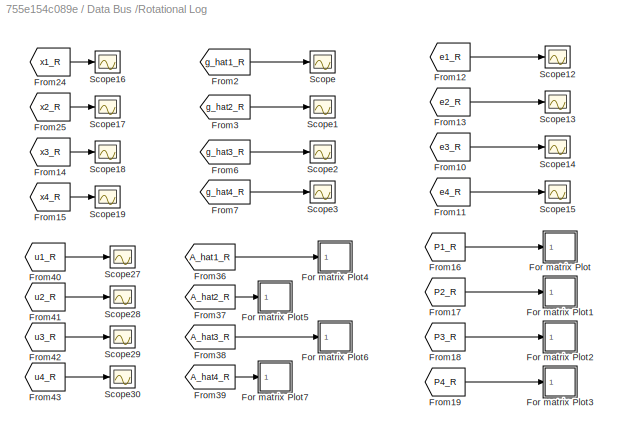
BLOCK [SubSystem] Data Bus /Rotational Log
  Ports = []
  RequestExecContextInheritance = off
BLOCK [SubSystem] Data Bus /Rotational Log/For matrix Plot
  Ports = [1]
  RequestExecContextInheritance = off
BLOCK [SubSystem] Data Bus /Rotational Log/For matrix Plot/MATLAB Function
  ErrorFcn = Stateflow.Translate.translate
  PermitHierarchicalResolution = ExplicitOnly
  Ports = [1, 1]
  RequestExecContextInheritance = off
  SFBlockType = MATLAB Function
  TreatAsAtomicUnit = on
BLOCK [Demux] Data Bus /Rotational Log/For matrix Plot/MATLAB Function/ Demux 
  Outputs = 1
  Ports = [1, 1]
BLOCK [S-Function] Data Bus /Rotational Log/For matrix Plot/MATLAB Function/ SFunction 
  EnableBusSupport = on
  FunctionName = sf_sfun
  PortCounts = [1 2]
  Ports = [1, 2]
  SFcnIsStateOwnerBlock = off
  SFunctionDeploymentMode = off
  Tag = Stateflow S-Function CAMFC2_04_Quad_03 94
BLOCK [Terminator] Data Bus /Rotational Log/For matrix Plot/MATLAB Function/ Terminator 
BLOCK [Inport] Data Bus /Rotational Log/For matrix Plot/MATLAB Function/u
  IconDisplay = Port number
BLOCK [Outport] Data Bus /Rotational Log/For matrix Plot/MATLAB Function/y
  IconDisplay = Port number
BLOCK [Inport] Data Bus /Rotational Log/For matrix Plot/P
  IconDisplay = Port number
BLOCK [ToWorkspace] Data Bus /Rotational Log/For matrix Plot/To Workspace
  MaxDataPoints = inf
  Ports = [1]
  SampleTime = -1
  SaveFormat = Structure With Time
  VariableName = P1_R
BLOCK [SubSystem] Data Bus /Rotational Log/For matrix Plot1
  Ports = [1]
  RequestExecContextInheritance = off
BLOCK [SubSystem] Data Bus /Rotational Log/For matrix Plot1/MATLAB Function
  ErrorFcn = Stateflow.Translate.translate
  PermitHierarchicalResolution = ExplicitOnly
  Ports = [1, 1]
  RequestExecContextInheritance = off
  SFBlockType = MATLAB Function
  TreatAsAtomicUnit = on
BLOCK [Demux] Data Bus /Rotational Log/For matrix Plot1/MATLAB Function/ Demux 
  Outputs = 1
  Ports = [1, 1]
BLOCK [S-Function] Data Bus /Rotational Log/For matrix Plot1/MATLAB Function/ SFunction 
  EnableBusSupport = on
  FunctionName = sf_sfun
  PortCounts = [1 2]
  Ports = [1, 2]
  SFcnIsStateOwnerBlock = off
  SFunctionDeploymentMode = off
  Tag = Stateflow S-Function CAMFC2_04_Quad_03 95
BLOCK [Terminator] Data Bus /Rotational Log/For matrix Plot1/MATLAB Function/ Terminator 
BLOCK [Inport] Data Bus /Rotational Log/For matrix Plot1/MATLAB Function/u
  IconDisplay = Port number
BLOCK [Outport] Data Bus /Rotational Log/For matrix Plot1/MATLAB Function/y
  IconDisplay = Port number
BLOCK [Inport] Data Bus /Rotational Log/For matrix Plot1/P
  IconDisplay = Port number
BLOCK [ToWorkspace] Data Bus /Rotational Log/For matrix Plot1/To Workspace
  MaxDataPoints = inf
  Ports = [1]
  SampleTime = -1
  SaveFormat = Structure With Time
  VariableName = P2_R
BLOCK [SubSystem] Data Bus /Rotational Log/For matrix Plot2
  Ports = [1]
  RequestExecContextInheritance = off
BLOCK [SubSystem] Data Bus /Rotational Log/For matrix Plot2/MATLAB Function
  ErrorFcn = Stateflow.Translate.translate
  PermitHierarchicalResolution = ExplicitOnly
  Ports = [1, 1]
  RequestExecContextInheritance = off
  SFBlockType = MATLAB Function
  TreatAsAtomicUnit = on
BLOCK [Demux] Data Bus /Rotational Log/For matrix Plot2/MATLAB Function/ Demux 
  Outputs = 1
  Ports = [1, 1]
BLOCK [S-Function] Data Bus /Rotational Log/For matrix Plot2/MATLAB Function/ SFunction 
  EnableBusSupport = on
  FunctionName = sf_sfun
  PortCounts = [1 2]
  Ports = [1, 2]
  SFcnIsStateOwnerBlock = off
  SFunctionDeploymentMode = off
  Tag = Stateflow S-Function CAMFC2_04_Quad_03 96
BLOCK [Terminator] Data Bus /Rotational Log/For matrix Plot2/MATLAB Function/ Terminator 
BLOCK [Inport] Data Bus /Rotational Log/For matrix Plot2/MATLAB Function/u
  IconDisplay = Port number
BLOCK [Outport] Data Bus /Rotational Log/For matrix Plot2/MATLAB Function/y
  IconDisplay = Port number
BLOCK [Inport] Data Bus /Rotational Log/For matrix Plot2/P
  IconDisplay = Port number
BLOCK [ToWorkspace] Data Bus /Rotational Log/For matrix Plot2/To Workspace
  MaxDataPoints = inf
  Ports = [1]
  SampleTime = -1
  SaveFormat = Structure With Time
  VariableName = P3_R
BLOCK [SubSystem] Data Bus /Rotational Log/For matrix Plot3
  Ports = [1]
  RequestExecContextInheritance = off
BLOCK [SubSystem] Data Bus /Rotational Log/For matrix Plot3/MATLAB Function
  ErrorFcn = Stateflow.Translate.translate
  PermitHierarchicalResolution = ExplicitOnly
  Ports = [1, 1]
  RequestExecContextInheritance = off
  SFBlockType = MATLAB Function
  TreatAsAtomicUnit = on
BLOCK [Demux] Data Bus /Rotational Log/For matrix Plot3/MATLAB Function/ Demux 
  Outputs = 1
  Ports = [1, 1]
BLOCK [S-Function] Data Bus /Rotational Log/For matrix Plot3/MATLAB Function/ SFunction 
  EnableBusSupport = on
  FunctionName = sf_sfun
  PortCounts = [1 2]
  Ports = [1, 2]
  SFcnIsStateOwnerBlock = off
  SFunctionDeploymentMode = off
  Tag = Stateflow S-Function CAMFC2_04_Quad_03 97
BLOCK [Terminator] Data Bus /Rotational Log/For matrix Plot3/MATLAB Function/ Terminator 
BLOCK [Inport] Data Bus /Rotational Log/For matrix Plot3/MATLAB Function/u
  IconDisplay = Port number
BLOCK [Outport] Data Bus /Rotational Log/For matrix Plot3/MATLAB Function/y
  IconDisplay = Port number
BLOCK [Inport] Data Bus /Rotational Log/For matrix Plot3/P
  IconDisplay = Port number
BLOCK [ToWorkspace] Data Bus /Rotational Log/For matrix Plot3/To Workspace
  MaxDataPoints = inf
  Ports = [1]
  SampleTime = -1
  SaveFormat = Structure With Time
  VariableName = P4_R
BLOCK [SubSystem] Data Bus /Rotational Log/For matrix Plot4
  Ports = [1]
  RequestExecContextInheritance = off
BLOCK [Inport] Data Bus /Rotational Log/For matrix Plot4/A_hat
  IconDisplay = Port number
BLOCK [SubSystem] Data Bus /Rotational Log/For matrix Plot4/MATLAB Function
  ErrorFcn = Stateflow.Translate.translate
  PermitHierarchicalResolution = ExplicitOnly
  Ports = [1, 1]
  RequestExecContextInheritance = off
  SFBlockType = MATLAB Function
  TreatAsAtomicUnit = on
BLOCK [Demux] Data Bus /Rotational Log/For matrix Plot4/MATLAB Function/ Demux 
  Outputs = 1
  Ports = [1, 1]
BLOCK [S-Function] Data Bus /Rotational Log/For matrix Plot4/MATLAB Function/ SFunction 
  EnableBusSupport = on
  FunctionName = sf_sfun
  PortCounts = [1 2]
  Ports = [1, 2]
  SFcnIsStateOwnerBlock = off
  SFunctionDeploymentMode = off
  Tag = Stateflow S-Function CAMFC2_04_Quad_03 98
BLOCK [Terminator] Data Bus /Rotational Log/For matrix Plot4/MATLAB Function/ Terminator 
BLOCK [Inport] Data Bus /Rotational Log/For matrix Plot4/MATLAB Function/u
  IconDisplay = Port number
BLOCK [Outport] Data Bus /Rotational Log/For matrix Plot4/MATLAB Function/y
  IconDisplay = Port number
BLOCK [ToWorkspace] Data Bus /Rotational Log/For matrix Plot4/To Workspace
  MaxDataPoints = inf
  Ports = [1]
  SampleTime = -1
  SaveFormat = Structure With Time
  VariableName = A_hat1_R
BLOCK [SubSystem] Data Bus /Rotational Log/For matrix Plot5
  Ports = [1]
  RequestExecContextInheritance = off
BLOCK [Inport] Data Bus /Rotational Log/For matrix Plot5/A_hat
  IconDisplay = Port number
BLOCK [SubSystem] Data Bus /Rotational Log/For matrix Plot5/MATLAB Function
  ErrorFcn = Stateflow.Translate.translate
  PermitHierarchicalResolution = ExplicitOnly
  Ports = [1, 1]
  RequestExecContextInheritance = off
  SFBlockType = MATLAB Function
  TreatAsAtomicUnit = on
BLOCK [Demux] Data Bus /Rotational Log/For matrix Plot5/MATLAB Function/ Demux 
  Outputs = 1
  Ports = [1, 1]
BLOCK [S-Function] Data Bus /Rotational Log/For matrix Plot5/MATLAB Function/ SFunction 
  EnableBusSupport = on
  FunctionName = sf_sfun
  PortCounts = [1 2]
  Ports = [1, 2]
  SFcnIsStateOwnerBlock = off
  SFunctionDeploymentMode = off
  Tag = Stateflow S-Function CAMFC2_04_Quad_03 99
BLOCK [Terminator] Data Bus /Rotational Log/For matrix Plot5/MATLAB Function/ Terminator 
BLOCK [Inport] Data Bus /Rotational Log/For matrix Plot5/MATLAB Function/u
  IconDisplay = Port number
BLOCK [Outport] Data Bus /Rotational Log/For matrix Plot5/MATLAB Function/y
  IconDisplay = Port number
BLOCK [ToWorkspace] Data Bus /Rotational Log/For matrix Plot5/To Workspace
  MaxDataPoints = inf
  Ports = [1]
  SampleTime = -1
  SaveFormat = Structure With Time
  VariableName = A_hat2_R
BLOCK [SubSystem] Data Bus /Rotational Log/For matrix Plot6
  Ports = [1]
  RequestExecContextInheritance = off
BLOCK [Inport] Data Bus /Rotational Log/For matrix Plot6/A_hat
  IconDisplay = Port number
BLOCK [SubSystem] Data Bus /Rotational Log/For matrix Plot6/MATLAB Function
  ErrorFcn = Stateflow.Translate.translate
  PermitHierarchicalResolution = ExplicitOnly
  Ports = [1, 1]
  RequestExecContextInheritance = off
  SFBlockType = MATLAB Function
  TreatAsAtomicUnit = on
BLOCK [Demux] Data Bus /Rotational Log/For matrix Plot6/MATLAB Function/ Demux 
  Outputs = 1
  Ports = [1, 1]
BLOCK [S-Function] Data Bus /Rotational Log/For matrix Plot6/MATLAB Function/ SFunction 
  EnableBusSupport = on
  FunctionName = sf_sfun
  PortCounts = [1 2]
  Ports = [1, 2]
  SFcnIsStateOwnerBlock = off
  SFunctionDeploymentMode = off
  Tag = Stateflow S-Function CAMFC2_04_Quad_03 105
BLOCK [Terminator] Data Bus /Rotational Log/For matrix Plot6/MATLAB Function/ Terminator 
BLOCK [Inport] Data Bus /Rotational Log/For matrix Plot6/MATLAB Function/u
  IconDisplay = Port number
BLOCK [Outport] Data Bus /Rotational Log/For matrix Plot6/MATLAB Function/y
  IconDisplay = Port number
BLOCK [ToWorkspace] Data Bus /Rotational Log/For matrix Plot6/To Workspace
  MaxDataPoints = inf
  Ports = [1]
  SampleTime = -1
  SaveFormat = Structure With Time
  VariableName = A_hat3_R
BLOCK [SubSystem] Data Bus /Rotational Log/For matrix Plot7
  Ports = [1]
  RequestExecContextInheritance = off
BLOCK [Inport] Data Bus /Rotational Log/For matrix Plot7/A_hat
  IconDisplay = Port number
BLOCK [SubSystem] Data Bus /Rotational Log/For matrix Plot7/MATLAB Function
  ErrorFcn = Stateflow.Translate.translate
  PermitHierarchicalResolution = ExplicitOnly
  Ports = [1, 1]
  RequestExecContextInheritance = off
  SFBlockType = MATLAB Function
  TreatAsAtomicUnit = on
BLOCK [Demux] Data Bus /Rotational Log/For matrix Plot7/MATLAB Function/ Demux 
  Outputs = 1
  Ports = [1, 1]
BLOCK [S-Function] Data Bus /Rotational Log/For matrix Plot7/MATLAB Function/ SFunction 
  EnableBusSupport = on
  FunctionName = sf_sfun
  PortCounts = [1 2]
  Ports = [1, 2]
  SFcnIsStateOwnerBlock = off
  SFunctionDeploymentMode = off
  Tag = Stateflow S-Function CAMFC2_04_Quad_03 107
BLOCK [Terminator] Data Bus /Rotational Log/For matrix Plot7/MATLAB Function/ Terminator 
BLOCK [Inport] Data Bus /Rotational Log/For matrix Plot7/MATLAB Function/u
  IconDisplay = Port number
BLOCK [Outport] Data Bus /Rotational Log/For matrix Plot7/MATLAB Function/y
  IconDisplay = Port number
BLOCK [ToWorkspace] Data Bus /Rotational Log/For matrix Plot7/To Workspace
  MaxDataPoints = inf
  Ports = [1]
  SampleTime = -1
  SaveFormat = Structure With Time
  VariableName = A_hat4_R
BLOCK [From] Data Bus /Rotational Log/From10
  GotoTag = e3_R
  TagVisibility = global
BLOCK [From] Data Bus /Rotational Log/From11
  GotoTag = e4_R
  TagVisibility = global
BLOCK [From] Data Bus /Rotational Log/From12
  GotoTag = e1_R
  TagVisibility = global
BLOCK [From] Data Bus /Rotational Log/From13
  GotoTag = e2_R
  TagVisibility = global
BLOCK [From] Data Bus /Rotational Log/From14
  GotoTag = x3_R
  TagVisibility = global
BLOCK [From] Data Bus /Rotational Log/From15
  GotoTag = x4_R
  TagVisibility = global
BLOCK [From] Data Bus /Rotational Log/From16
  GotoTag = P1_R
  TagVisibility = global
BLOCK [From] Data Bus /Rotational Log/From17
  GotoTag = P2_R
  TagVisibility = global
BLOCK [From] Data Bus /Rotational Log/From18
  GotoTag = P3_R
  TagVisibility = global
BLOCK [From] Data Bus /Rotational Log/From19
  GotoTag = P4_R
  TagVisibility = global
BLOCK [From] Data Bus /Rotational Log/From2
  GotoTag = g_hat1_R
  TagVisibility = global
BLOCK [From] Data Bus /Rotational Log/From24
  GotoTag = x1_R
  TagVisibility = global
BLOCK [From] Data Bus /Rotational Log/From25
  GotoTag = x2_R
  TagVisibility = global
BLOCK [From] Data Bus /Rotational Log/From3
  GotoTag = g_hat2_R
  TagVisibility = global
BLOCK [From] Data Bus /Rotational Log/From36
  GotoTag = A_hat1_R
  TagVisibility = global
BLOCK [From] Data Bus /Rotational Log/From37
  GotoTag = A_hat2_R
  TagVisibility = global
BLOCK [From] Data Bus /Rotational Log/From38
  GotoTag = A_hat3_R
  TagVisibility = global
BLOCK [From] Data Bus /Rotational Log/From39
  GotoTag = A_hat4_R
  TagVisibility = global
BLOCK [From] Data Bus /Rotational Log/From40
  GotoTag = u1_R
  TagVisibility = global
BLOCK [From] Data Bus /Rotational Log/From41
  GotoTag = u2_R
  TagVisibility = global
BLOCK [From] Data Bus /Rotational Log/From42
  GotoTag = u3_R
  TagVisibility = global
BLOCK [From] Data Bus /Rotational Log/From43
  GotoTag = u4_R
  TagVisibility = global
BLOCK [From] Data Bus /Rotational Log/From6
  GotoTag = g_hat3_R
  TagVisibility = global
BLOCK [From] Data Bus /Rotational Log/From7
  GotoTag = g_hat4_R
  TagVisibility = global
BLOCK [Scope] Data Bus /Rotational Log/Scope
  Floating = off
  NumInputPorts = 1
  Ports = [1]
  ScopeSpecificationString = Simulink.scopes.TimeScopeBlockCfg('CurrentConfiguration', extmgr.ConfigurationSet(extmgr.Configuration('Core','General UI',true),extmgr.Configuration('Core','Source UI',true),extmgr.Configuration('Sources','WiredSimulink',true,'DataLogging',true,'DataLoggingVariableName','g_hat1_R','DataLoggingSaveFormat','StructureWithTime','DataLoggingDecimation','1','DataLoggingDecimateData',true),extmgr.Config...<+1816ch>
BLOCK [Scope] Data Bus /Rotational Log/Scope1
  Floating = off
  NumInputPorts = 1
  Ports = [1]
  ScopeSpecificationString = Simulink.scopes.TimeScopeBlockCfg('CurrentConfiguration', extmgr.ConfigurationSet(extmgr.Configuration('Core','General UI',true),extmgr.Configuration('Core','Source UI',true),extmgr.Configuration('Sources','WiredSimulink',true,'DataLogging',true,'DataLoggingVariableName','g_hat2_R','DataLoggingSaveFormat','StructureWithTime','DataLoggingDecimation','1','DataLoggingDecimateData',true),extmgr.Config...<+1814ch>
BLOCK [Scope] Data Bus /Rotational Log/Scope12
  Floating = off
  NumInputPorts = 1
  Ports = [1]
  ScopeSpecificationString = Simulink.scopes.TimeScopeBlockCfg('CurrentConfiguration', extmgr.ConfigurationSet(extmgr.Configuration('Core','General UI',true),extmgr.Configuration('Core','Source UI',true),extmgr.Configuration('Sources','WiredSimulink',true,'DataLogging',true,'DataLoggingVariableName','e1_R','DataLoggingSaveFormat','StructureWithTime','DataLoggingDecimation','1','DataLoggingDecimateData',true),extmgr.Configurat...<+1788ch>
BLOCK [Scope] Data Bus /Rotational Log/Scope13
  Floating = off
  NumInputPorts = 1
  Ports = [1]
  ScopeSpecificationString = Simulink.scopes.TimeScopeBlockCfg('CurrentConfiguration', extmgr.ConfigurationSet(extmgr.Configuration('Core','General UI',true),extmgr.Configuration('Core','Source UI',true),extmgr.Configuration('Sources','WiredSimulink',true,'DataLogging',true,'DataLoggingVariableName','e2_R','DataLoggingSaveFormat','StructureWithTime','DataLoggingDecimation','1','DataLoggingDecimateData',true),extmgr.Configurat...<+1744ch>
BLOCK [Scope] Data Bus /Rotational Log/Scope14
  Floating = off
  NumInputPorts = 1
  Ports = [1]
  ScopeSpecificationString = Simulink.scopes.TimeScopeBlockCfg('CurrentConfiguration', extmgr.ConfigurationSet(extmgr.Configuration('Core','General UI',true),extmgr.Configuration('Core','Source UI',true),extmgr.Configuration('Sources','WiredSimulink',true,'DataLogging',true,'DataLoggingVariableName','e3_R','DataLoggingSaveFormat','StructureWithTime','DataLoggingDecimation','1','DataLoggingDecimateData',true),extmgr.Configurat...<+1790ch>
BLOCK [Scope] Data Bus /Rotational Log/Scope15
  Floating = off
  NumInputPorts = 1
  Ports = [1]
  ScopeSpecificationString = Simulink.scopes.TimeScopeBlockCfg('CurrentConfiguration', extmgr.ConfigurationSet(extmgr.Configuration('Core','General UI',true),extmgr.Configuration('Core','Source UI',true),extmgr.Configuration('Sources','WiredSimulink',true,'DataLogging',true,'DataLoggingVariableName','e4_R','DataLoggingSaveFormat','StructureWithTime','DataLoggingDecimation','1','DataLoggingDecimateData',true),extmgr.Configurat...<+1790ch>
BLOCK [Scope] Data Bus /Rotational Log/Scope16
  Floating = off
  NumInputPorts = 1
  Ports = [1]
  ScopeSpecificationString = Simulink.scopes.TimeScopeBlockCfg('CurrentConfiguration', extmgr.ConfigurationSet(extmgr.Configuration('Core','General UI',true),extmgr.Configuration('Core','Source UI',true),extmgr.Configuration('Sources','WiredSimulink',true,'DataLogging',true,'DataLoggingVariableName','x1_R','DataLoggingSaveFormat','StructureWithTime','DataLoggingDecimation','1','DataLoggingDecimateData',true),extmgr.Configurat...<+1869ch>
BLOCK [Scope] Data Bus /Rotational Log/Scope17
  Floating = off
  NumInputPorts = 1
  Ports = [1]
  ScopeSpecificationString = Simulink.scopes.TimeScopeBlockCfg('CurrentConfiguration', extmgr.ConfigurationSet(extmgr.Configuration('Core','General UI',true),extmgr.Configuration('Core','Source UI',true),extmgr.Configuration('Sources','WiredSimulink',true,'DataLogging',true,'DataLoggingVariableName','x2_R','DataLoggingSaveFormat','StructureWithTime','DataLoggingDecimation','1','DataLoggingDecimateData',true),extmgr.Configurat...<+1810ch>
BLOCK [Scope] Data Bus /Rotational Log/Scope18
  Floating = off
  NumInputPorts = 1
  Ports = [1]
  ScopeSpecificationString = Simulink.scopes.TimeScopeBlockCfg('CurrentConfiguration', extmgr.ConfigurationSet(extmgr.Configuration('Core','General UI',true),extmgr.Configuration('Core','Source UI',true),extmgr.Configuration('Sources','WiredSimulink',true,'DataLogging',true,'DataLoggingVariableName','x3_R','DataLoggingSaveFormat','StructureWithTime','DataLoggingDecimation','1','DataLoggingDecimateData',true),extmgr.Configurat...<+1814ch>
BLOCK [Scope] Data Bus /Rotational Log/Scope19
  Floating = off
  NumInputPorts = 1
  Ports = [1]
  ScopeSpecificationString = Simulink.scopes.TimeScopeBlockCfg('CurrentConfiguration', extmgr.ConfigurationSet(extmgr.Configuration('Core','General UI',true),extmgr.Configuration('Core','Source UI',true),extmgr.Configuration('Sources','WiredSimulink',true,'DataLogging',true,'DataLoggingVariableName','x4_R','DataLoggingSaveFormat','StructureWithTime','DataLoggingDecimation','1','DataLoggingDecimateData',true),extmgr.Configurat...<+1814ch>
BLOCK [Scope] Data Bus /Rotational Log/Scope2
  Floating = off
  NumInputPorts = 1
  Ports = [1]
  ScopeSpecificationString = Simulink.scopes.TimeScopeBlockCfg('CurrentConfiguration', extmgr.ConfigurationSet(extmgr.Configuration('Core','General UI',true),extmgr.Configuration('Core','Source UI',true),extmgr.Configuration('Sources','WiredSimulink',true,'DataLogging',true,'DataLoggingVariableName','g_hat3_R','DataLoggingSaveFormat','StructureWithTime','DataLoggingDecimation','1','DataLoggingDecimateData',true),extmgr.Config...<+1749ch>
BLOCK [Scope] Data Bus /Rotational Log/Scope27
  Floating = off
  NumInputPorts = 1
  Ports = [1]
  ScopeSpecificationString = Simulink.scopes.TimeScopeBlockCfg('CurrentConfiguration', extmgr.ConfigurationSet(extmgr.Configuration('Core','General UI',true),extmgr.Configuration('Core','Source UI',true),extmgr.Configuration('Sources','WiredSimulink',true,'DataLogging',true,'DataLoggingVariableName','ScopeData9','DataLoggingSaveFormat','StructureWithTime','DataLoggingDecimation','1','DataLoggingDecimateData',true),extmgr.Conf...<+1821ch>
BLOCK [Scope] Data Bus /Rotational Log/Scope28
  Floating = off
  NumInputPorts = 1
  Ports = [1]
  ScopeSpecificationString = Simulink.scopes.TimeScopeBlockCfg('CurrentConfiguration', extmgr.ConfigurationSet(extmgr.Configuration('Core','General UI',true),extmgr.Configuration('Core','Source UI',true),extmgr.Configuration('Sources','WiredSimulink',true,'DataLogging',true,'DataLoggingVariableName','ScopeData10','DataLoggingSaveFormat','StructureWithTime','DataLoggingDecimation','1','DataLoggingDecimateData',true),extmgr.Con...<+1761ch>
BLOCK [Scope] Data Bus /Rotational Log/Scope29
  Floating = off
  NumInputPorts = 1
  Ports = [1]
  ScopeSpecificationString = Simulink.scopes.TimeScopeBlockCfg('CurrentConfiguration', extmgr.ConfigurationSet(extmgr.Configuration('Core','General UI',true),extmgr.Configuration('Core','Source UI',true),extmgr.Configuration('Sources','WiredSimulink',true,'DataLogging',true,'DataLoggingVariableName','ScopeData11','DataLoggingSaveFormat','StructureWithTime','DataLoggingDecimation','1','DataLoggingDecimateData',true),extmgr.Con...<+1855ch>
BLOCK [Scope] Data Bus /Rotational Log/Scope3
  Floating = off
  NumInputPorts = 1
  Ports = [1]
  ScopeSpecificationString = Simulink.scopes.TimeScopeBlockCfg('CurrentConfiguration', extmgr.ConfigurationSet(extmgr.Configuration('Core','General UI',true),extmgr.Configuration('Core','Source UI',true),extmgr.Configuration('Sources','WiredSimulink',true,'DataLogging',true,'DataLoggingVariableName','g_hat4_R','DataLoggingSaveFormat','StructureWithTime','DataLoggingDecimation','1','DataLoggingDecimateData',true),extmgr.Config...<+1772ch>
BLOCK [Scope] Data Bus /Rotational Log/Scope30
  Floating = off
  NumInputPorts = 1
  Ports = [1]
  ScopeSpecificationString = Simulink.scopes.TimeScopeBlockCfg('CurrentConfiguration', extmgr.ConfigurationSet(extmgr.Configuration('Core','General UI',true),extmgr.Configuration('Core','Source UI',true),extmgr.Configuration('Sources','WiredSimulink',true,'DataLogging',true,'DataLoggingVariableName','ScopeData12','DataLoggingSaveFormat','StructureWithTime','DataLoggingDecimation','1','DataLoggingDecimateData',true),extmgr.Con...<+1759ch>
BLOCK [Scope] Data Bus /Scope26
  Floating = off
  NumInputPorts = 1
  Ports = [1]
  ScopeSpecificationString = Simulink.scopes.TimeScopeBlockCfg('CurrentConfiguration', extmgr.ConfigurationSet(extmgr.Configuration('Core','General UI',true),extmgr.Configuration('Core','Source UI',true),extmgr.Configuration('Sources','WiredSimulink',true,'DataLogging',true,'DataLoggingVariableName','x0','DataLoggingSaveFormat','StructureWithTime','DataLoggingDecimation','1','DataLoggingDecimateData',true),extmgr.Configuratio...<+1791ch>
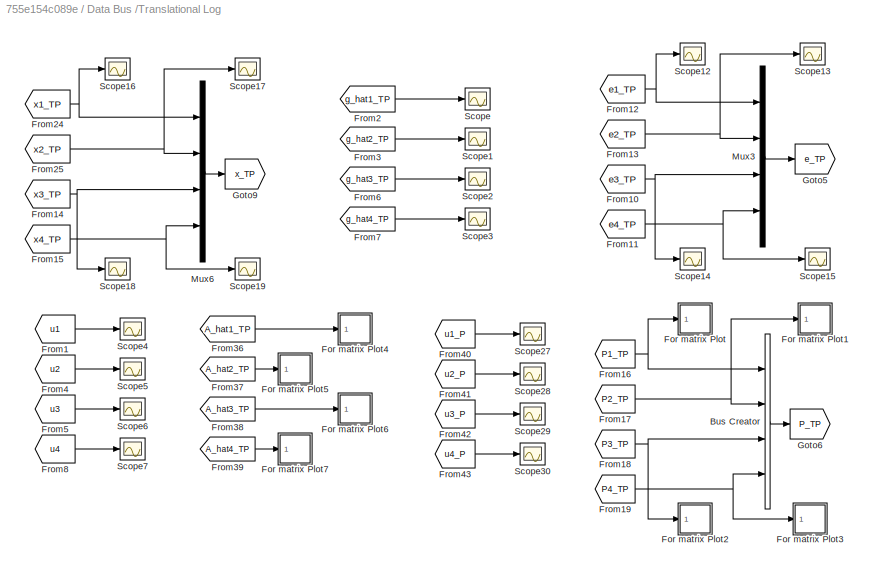
BLOCK [SubSystem] Data Bus /Translational Log
  Ports = []
  RequestExecContextInheritance = off
BLOCK [BusCreator] Data Bus /Translational Log/Bus Creator
  DisplayOption = bar
  InheritFromInputs = on
  Inputs = 4
  OutDataTypeStr = Bus: P_bus
  Ports = [4, 1]
BLOCK [SubSystem] Data Bus /Translational Log/For matrix Plot
  Ports = [1]
  RequestExecContextInheritance = off
BLOCK [SubSystem] Data Bus /Translational Log/For matrix Plot/MATLAB Function
  ErrorFcn = Stateflow.Translate.translate
  PermitHierarchicalResolution = ExplicitOnly
  Ports = [1, 1]
  RequestExecContextInheritance = off
  SFBlockType = MATLAB Function
  TreatAsAtomicUnit = on
BLOCK [Demux] Data Bus /Translational Log/For matrix Plot/MATLAB Function/ Demux 
  Outputs = 1
  Ports = [1, 1]
BLOCK [S-Function] Data Bus /Translational Log/For matrix Plot/MATLAB Function/ SFunction 
  EnableBusSupport = on
  FunctionName = sf_sfun
  PortCounts = [1 2]
  Ports = [1, 2]
  SFcnIsStateOwnerBlock = off
  SFunctionDeploymentMode = off
  Tag = Stateflow S-Function CAMFC2_04_Quad_03 65
BLOCK [Terminator] Data Bus /Translational Log/For matrix Plot/MATLAB Function/ Terminator 
BLOCK [Inport] Data Bus /Translational Log/For matrix Plot/MATLAB Function/u
  IconDisplay = Port number
BLOCK [Outport] Data Bus /Translational Log/For matrix Plot/MATLAB Function/y
  IconDisplay = Port number
BLOCK [Inport] Data Bus /Translational Log/For matrix Plot/P
  IconDisplay = Port number
BLOCK [ToWorkspace] Data Bus /Translational Log/For matrix Plot/To Workspace
  MaxDataPoints = inf
  Ports = [1]
  SampleTime = -1
  SaveFormat = Structure With Time
  VariableName = P1_TP
BLOCK [SubSystem] Data Bus /Translational Log/For matrix Plot1
  Ports = [1]
  RequestExecContextInheritance = off
BLOCK [SubSystem] Data Bus /Translational Log/For matrix Plot1/MATLAB Function
  ErrorFcn = Stateflow.Translate.translate
  PermitHierarchicalResolution = ExplicitOnly
  Ports = [1, 1]
  RequestExecContextInheritance = off
  SFBlockType = MATLAB Function
  TreatAsAtomicUnit = on
BLOCK [Demux] Data Bus /Translational Log/For matrix Plot1/MATLAB Function/ Demux 
  Outputs = 1
  Ports = [1, 1]
BLOCK [S-Function] Data Bus /Translational Log/For matrix Plot1/MATLAB Function/ SFunction 
  EnableBusSupport = on
  FunctionName = sf_sfun
  PortCounts = [1 2]
  Ports = [1, 2]
  SFcnIsStateOwnerBlock = off
  SFunctionDeploymentMode = off
  Tag = Stateflow S-Function CAMFC2_04_Quad_03 54
BLOCK [Terminator] Data Bus /Translational Log/For matrix Plot1/MATLAB Function/ Terminator 
BLOCK [Inport] Data Bus /Translational Log/For matrix Plot1/MATLAB Function/u
  IconDisplay = Port number
BLOCK [Outport] Data Bus /Translational Log/For matrix Plot1/MATLAB Function/y
  IconDisplay = Port number
BLOCK [Inport] Data Bus /Translational Log/For matrix Plot1/P
  IconDisplay = Port number
BLOCK [ToWorkspace] Data Bus /Translational Log/For matrix Plot1/To Workspace
  MaxDataPoints = inf
  Ports = [1]
  SampleTime = -1
  SaveFormat = Structure With Time
  VariableName = P2_TP
BLOCK [SubSystem] Data Bus /Translational Log/For matrix Plot2
  Ports = [1]
  RequestExecContextInheritance = off
BLOCK [SubSystem] Data Bus /Translational Log/For matrix Plot2/MATLAB Function
  ErrorFcn = Stateflow.Translate.translate
  PermitHierarchicalResolution = ExplicitOnly
  Ports = [1, 1]
  RequestExecContextInheritance = off
  SFBlockType = MATLAB Function
  TreatAsAtomicUnit = on
BLOCK [Demux] Data Bus /Translational Log/For matrix Plot2/MATLAB Function/ Demux 
  Outputs = 1
  Ports = [1, 1]
BLOCK [S-Function] Data Bus /Translational Log/For matrix Plot2/MATLAB Function/ SFunction 
  EnableBusSupport = on
  FunctionName = sf_sfun
  PortCounts = [1 2]
  Ports = [1, 2]
  SFcnIsStateOwnerBlock = off
  SFunctionDeploymentMode = off
  Tag = Stateflow S-Function CAMFC2_04_Quad_03 55
BLOCK [Terminator] Data Bus /Translational Log/For matrix Plot2/MATLAB Function/ Terminator 
BLOCK [Inport] Data Bus /Translational Log/For matrix Plot2/MATLAB Function/u
  IconDisplay = Port number
BLOCK [Outport] Data Bus /Translational Log/For matrix Plot2/MATLAB Function/y
  IconDisplay = Port number
BLOCK [Inport] Data Bus /Translational Log/For matrix Plot2/P
  IconDisplay = Port number
BLOCK [ToWorkspace] Data Bus /Translational Log/For matrix Plot2/To Workspace
  MaxDataPoints = inf
  Ports = [1]
  SampleTime = -1
  SaveFormat = Structure With Time
  VariableName = P3_TP
BLOCK [SubSystem] Data Bus /Translational Log/For matrix Plot3
  Ports = [1]
  RequestExecContextInheritance = off
BLOCK [SubSystem] Data Bus /Translational Log/For matrix Plot3/MATLAB Function
  ErrorFcn = Stateflow.Translate.translate
  PermitHierarchicalResolution = ExplicitOnly
  Ports = [1, 1]
  RequestExecContextInheritance = off
  SFBlockType = MATLAB Function
  TreatAsAtomicUnit = on
BLOCK [Demux] Data Bus /Translational Log/For matrix Plot3/MATLAB Function/ Demux 
  Outputs = 1
  Ports = [1, 1]
BLOCK [S-Function] Data Bus /Translational Log/For matrix Plot3/MATLAB Function/ SFunction 
  EnableBusSupport = on
  FunctionName = sf_sfun
  PortCounts = [1 2]
  Ports = [1, 2]
  SFcnIsStateOwnerBlock = off
  SFunctionDeploymentMode = off
  Tag = Stateflow S-Function CAMFC2_04_Quad_03 56
BLOCK [Terminator] Data Bus /Translational Log/For matrix Plot3/MATLAB Function/ Terminator 
BLOCK [Inport] Data Bus /Translational Log/For matrix Plot3/MATLAB Function/u
  IconDisplay = Port number
BLOCK [Outport] Data Bus /Translational Log/For matrix Plot3/MATLAB Function/y
  IconDisplay = Port number
BLOCK [Inport] Data Bus /Translational Log/For matrix Plot3/P
  IconDisplay = Port number
BLOCK [ToWorkspace] Data Bus /Translational Log/For matrix Plot3/To Workspace
  MaxDataPoints = inf
  Ports = [1]
  SampleTime = -1
  SaveFormat = Structure With Time
  VariableName = P4_TP
BLOCK [SubSystem] Data Bus /Translational Log/For matrix Plot4
  Ports = [1]
  RequestExecContextInheritance = off
BLOCK [Inport] Data Bus /Translational Log/For matrix Plot4/A_hat
  IconDisplay = Port number
BLOCK [SubSystem] Data Bus /Translational Log/For matrix Plot4/MATLAB Function
  ErrorFcn = Stateflow.Translate.translate
  PermitHierarchicalResolution = ExplicitOnly
  Ports = [1, 1]
  RequestExecContextInheritance = off
  SFBlockType = MATLAB Function
  TreatAsAtomicUnit = on
BLOCK [Demux] Data Bus /Translational Log/For matrix Plot4/MATLAB Function/ Demux 
  Outputs = 1
  Ports = [1, 1]
BLOCK [S-Function] Data Bus /Translational Log/For matrix Plot4/MATLAB Function/ SFunction 
  EnableBusSupport = on
  FunctionName = sf_sfun
  PortCounts = [1 2]
  Ports = [1, 2]
  SFcnIsStateOwnerBlock = off
  SFunctionDeploymentMode = off
  Tag = Stateflow S-Function CAMFC2_04_Quad_03 57
BLOCK [Terminator] Data Bus /Translational Log/For matrix Plot4/MATLAB Function/ Terminator 
BLOCK [Inport] Data Bus /Translational Log/For matrix Plot4/MATLAB Function/u
  IconDisplay = Port number
BLOCK [Outport] Data Bus /Translational Log/For matrix Plot4/MATLAB Function/y
  IconDisplay = Port number
BLOCK [ToWorkspace] Data Bus /Translational Log/For matrix Plot4/To Workspace
  MaxDataPoints = inf
  Ports = [1]
  SampleTime = -1
  SaveFormat = Structure With Time
  VariableName = A_hat1_TP
BLOCK [SubSystem] Data Bus /Translational Log/For matrix Plot5
  Ports = [1]
  RequestExecContextInheritance = off
BLOCK [Inport] Data Bus /Translational Log/For matrix Plot5/A_hat
  IconDisplay = Port number
BLOCK [SubSystem] Data Bus /Translational Log/For matrix Plot5/MATLAB Function
  ErrorFcn = Stateflow.Translate.translate
  PermitHierarchicalResolution = ExplicitOnly
  Ports = [1, 1]
  RequestExecContextInheritance = off
  SFBlockType = MATLAB Function
  TreatAsAtomicUnit = on
BLOCK [Demux] Data Bus /Translational Log/For matrix Plot5/MATLAB Function/ Demux 
  Outputs = 1
  Ports = [1, 1]
BLOCK [S-Function] Data Bus /Translational Log/For matrix Plot5/MATLAB Function/ SFunction 
  EnableBusSupport = on
  FunctionName = sf_sfun
  PortCounts = [1 2]
  Ports = [1, 2]
  SFcnIsStateOwnerBlock = off
  SFunctionDeploymentMode = off
  Tag = Stateflow S-Function CAMFC2_04_Quad_03 58
BLOCK [Terminator] Data Bus /Translational Log/For matrix Plot5/MATLAB Function/ Terminator 
BLOCK [Inport] Data Bus /Translational Log/For matrix Plot5/MATLAB Function/u
  IconDisplay = Port number
BLOCK [Outport] Data Bus /Translational Log/For matrix Plot5/MATLAB Function/y
  IconDisplay = Port number
BLOCK [ToWorkspace] Data Bus /Translational Log/For matrix Plot5/To Workspace
  MaxDataPoints = inf
  Ports = [1]
  SampleTime = -1
  SaveFormat = Structure With Time
  VariableName = A_hat2_TP
BLOCK [SubSystem] Data Bus /Translational Log/For matrix Plot6
  Ports = [1]
  RequestExecContextInheritance = off
BLOCK [Inport] Data Bus /Translational Log/For matrix Plot6/A_hat
  IconDisplay = Port number
BLOCK [SubSystem] Data Bus /Translational Log/For matrix Plot6/MATLAB Function
  ErrorFcn = Stateflow.Translate.translate
  PermitHierarchicalResolution = ExplicitOnly
  Ports = [1, 1]
  RequestExecContextInheritance = off
  SFBlockType = MATLAB Function
  TreatAsAtomicUnit = on
BLOCK [Demux] Data Bus /Translational Log/For matrix Plot6/MATLAB Function/ Demux 
  Outputs = 1
  Ports = [1, 1]
BLOCK [S-Function] Data Bus /Translational Log/For matrix Plot6/MATLAB Function/ SFunction 
  EnableBusSupport = on
  FunctionName = sf_sfun
  PortCounts = [1 2]
  Ports = [1, 2]
  SFcnIsStateOwnerBlock = off
  SFunctionDeploymentMode = off
  Tag = Stateflow S-Function CAMFC2_04_Quad_03 59
BLOCK [Terminator] Data Bus /Translational Log/For matrix Plot6/MATLAB Function/ Terminator 
BLOCK [Inport] Data Bus /Translational Log/For matrix Plot6/MATLAB Function/u
  IconDisplay = Port number
BLOCK [Outport] Data Bus /Translational Log/For matrix Plot6/MATLAB Function/y
  IconDisplay = Port number
BLOCK [ToWorkspace] Data Bus /Translational Log/For matrix Plot6/To Workspace
  MaxDataPoints = inf
  Ports = [1]
  SampleTime = -1
  SaveFormat = Structure With Time
  VariableName = A_hat3_TP
BLOCK [SubSystem] Data Bus /Translational Log/For matrix Plot7
  Ports = [1]
  RequestExecContextInheritance = off
BLOCK [Inport] Data Bus /Translational Log/For matrix Plot7/A_hat
  IconDisplay = Port number
BLOCK [SubSystem] Data Bus /Translational Log/For matrix Plot7/MATLAB Function
  ErrorFcn = Stateflow.Translate.translate
  PermitHierarchicalResolution = ExplicitOnly
  Ports = [1, 1]
  RequestExecContextInheritance = off
  SFBlockType = MATLAB Function
  TreatAsAtomicUnit = on
BLOCK [Demux] Data Bus /Translational Log/For matrix Plot7/MATLAB Function/ Demux 
  Outputs = 1
  Ports = [1, 1]
BLOCK [S-Function] Data Bus /Translational Log/For matrix Plot7/MATLAB Function/ SFunction 
  EnableBusSupport = on
  FunctionName = sf_sfun
  PortCounts = [1 2]
  Ports = [1, 2]
  SFcnIsStateOwnerBlock = off
  SFunctionDeploymentMode = off
  Tag = Stateflow S-Function CAMFC2_04_Quad_03 60
BLOCK [Terminator] Data Bus /Translational Log/For matrix Plot7/MATLAB Function/ Terminator 
BLOCK [Inport] Data Bus /Translational Log/For matrix Plot7/MATLAB Function/u
  IconDisplay = Port number
BLOCK [Outport] Data Bus /Translational Log/For matrix Plot7/MATLAB Function/y
  IconDisplay = Port number
BLOCK [ToWorkspace] Data Bus /Translational Log/For matrix Plot7/To Workspace
  MaxDataPoints = inf
  Ports = [1]
  SampleTime = -1
  SaveFormat = Structure With Time
  VariableName = A_hat4_TP
BLOCK [From] Data Bus /Translational Log/From1
  GotoTag = u1
  TagVisibility = global
BLOCK [From] Data Bus /Translational Log/From10
  GotoTag = e3_TP
  TagVisibility = global
BLOCK [From] Data Bus /Translational Log/From11
  GotoTag = e4_TP
  TagVisibility = global
BLOCK [From] Data Bus /Translational Log/From12
  GotoTag = e1_TP
  TagVisibility = global
BLOCK [From] Data Bus /Translational Log/From13
  GotoTag = e2_TP
  TagVisibility = global
BLOCK [From] Data Bus /Translational Log/From14
  GotoTag = x3_TP
  TagVisibility = global
BLOCK [From] Data Bus /Translational Log/From15
  GotoTag = x4_TP
  TagVisibility = global
BLOCK [From] Data Bus /Translational Log/From16
  GotoTag = P1_TP
  TagVisibility = global
BLOCK [From] Data Bus /Translational Log/From17
  GotoTag = P2_TP
  TagVisibility = global
BLOCK [From] Data Bus /Translational Log/From18
  GotoTag = P3_TP
  TagVisibility = global
BLOCK [From] Data Bus /Translational Log/From19
  GotoTag = P4_TP
  TagVisibility = global
BLOCK [From] Data Bus /Translational Log/From2
  GotoTag = g_hat1_TP
  TagVisibility = global
BLOCK [From] Data Bus /Translational Log/From24
  GotoTag = x1_TP
  TagVisibility = global
BLOCK [From] Data Bus /Translational Log/From25
  GotoTag = x2_TP
  TagVisibility = global
BLOCK [From] Data Bus /Translational Log/From3
  GotoTag = g_hat2_TP
  TagVisibility = global
BLOCK [From] Data Bus /Translational Log/From36
  GotoTag = A_hat1_TP
  TagVisibility = global
BLOCK [From] Data Bus /Translational Log/From37
  GotoTag = A_hat2_TP
  TagVisibility = global
BLOCK [From] Data Bus /Translational Log/From38
  GotoTag = A_hat3_TP
  TagVisibility = global
BLOCK [From] Data Bus /Translational Log/From39
  GotoTag = A_hat4_TP
  TagVisibility = global
BLOCK [From] Data Bus /Translational Log/From4
  GotoTag = u2
  TagVisibility = global
BLOCK [From] Data Bus /Translational Log/From40
  GotoTag = u1_P
  TagVisibility = global
BLOCK [From] Data Bus /Translational Log/From41
  GotoTag = u2_P
  TagVisibility = global
BLOCK [From] Data Bus /Translational Log/From42
  GotoTag = u3_P
  TagVisibility = global
BLOCK [From] Data Bus /Translational Log/From43
  GotoTag = u4_P
  TagVisibility = global
BLOCK [From] Data Bus /Translational Log/From5
  GotoTag = u3
  TagVisibility = global
BLOCK [From] Data Bus /Translational Log/From6
  GotoTag = g_hat3_TP
  TagVisibility = global
BLOCK [From] Data Bus /Translational Log/From7
  GotoTag = g_hat4_TP
  TagVisibility = global
BLOCK [From] Data Bus /Translational Log/From8
  GotoTag = u4
  TagVisibility = global
BLOCK [Goto] Data Bus /Translational Log/Goto5
  GotoTag = e_TP
  TagVisibility = global
BLOCK [Goto] Data Bus /Translational Log/Goto6
  GotoTag = P_TP
  TagVisibility = global
BLOCK [Goto] Data Bus /Translational Log/Goto9
  GotoTag = x_TP
  TagVisibility = global
BLOCK [Mux] Data Bus /Translational Log/Mux3
  DisplayOption = bar
  Ports = [4, 1]
BLOCK [Mux] Data Bus /Translational Log/Mux6
  DisplayOption = bar
  Ports = [4, 1]
BLOCK [Scope] Data Bus /Translational Log/Scope
  Floating = off
  NumInputPorts = 1
  Ports = [1]
  ScopeSpecificationString = Simulink.scopes.TimeScopeBlockCfg('CurrentConfiguration', extmgr.ConfigurationSet(extmgr.Configuration('Core','General UI',true),extmgr.Configuration('Core','Source UI',true),extmgr.Configuration('Sources','WiredSimulink',true,'DataLogging',true,'DataLoggingVariableName','g_hat1_T','DataLoggingSaveFormat','StructureWithTime','DataLoggingDecimation','1','DataLoggingDecimateData',true),extmgr.Config...<+1824ch>
BLOCK [Scope] Data Bus /Translational Log/Scope1
  Floating = off
  NumInputPorts = 1
  Ports = [1]
  ScopeSpecificationString = Simulink.scopes.TimeScopeBlockCfg('CurrentConfiguration', extmgr.ConfigurationSet(extmgr.Configuration('Core','General UI',true),extmgr.Configuration('Core','Source UI',true),extmgr.Configuration('Sources','WiredSimulink',true,'DataLogging',true,'DataLoggingVariableName','g_hat2_T','DataLoggingSaveFormat','StructureWithTime','DataLoggingDecimation','1','DataLoggingDecimateData',true),extmgr.Config...<+1818ch>
BLOCK [Scope] Data Bus /Translational Log/Scope12
  Floating = off
  NumInputPorts = 1
  Ports = [1]
  ScopeSpecificationString = Simulink.scopes.TimeScopeBlockCfg('CurrentConfiguration', extmgr.ConfigurationSet(extmgr.Configuration('Core','General UI',true),extmgr.Configuration('Core','Source UI',true),extmgr.Configuration('Sources','WiredSimulink',true,'DataLogging',true,'DataLoggingVariableName','e1_T','DataLoggingSaveFormat','StructureWithTime','DataLoggingDecimation','1','DataLoggingDecimateData',true),extmgr.Configurat...<+1745ch>
BLOCK [Scope] Data Bus /Translational Log/Scope13
  Floating = off
  NumInputPorts = 1
  Ports = [1]
  ScopeSpecificationString = Simulink.scopes.TimeScopeBlockCfg('CurrentConfiguration', extmgr.ConfigurationSet(extmgr.Configuration('Core','General UI',true),extmgr.Configuration('Core','Source UI',true),extmgr.Configuration('Sources','WiredSimulink',true,'DataLogging',true,'DataLoggingVariableName','e2_T','DataLoggingSaveFormat','StructureWithTime','DataLoggingDecimation','1','DataLoggingDecimateData',true),extmgr.Configurat...<+1704ch>
BLOCK [Scope] Data Bus /Translational Log/Scope14
  Floating = off
  NumInputPorts = 1
  Ports = [1]
  ScopeSpecificationString = Simulink.scopes.TimeScopeBlockCfg('CurrentConfiguration', extmgr.ConfigurationSet(extmgr.Configuration('Core','General UI',true),extmgr.Configuration('Core','Source UI',true),extmgr.Configuration('Sources','WiredSimulink',true,'DataLogging',true,'DataLoggingVariableName','e3_T','DataLoggingSaveFormat','StructureWithTime','DataLoggingDecimation','1','DataLoggingDecimateData',true),extmgr.Configurat...<+1755ch>
BLOCK [Scope] Data Bus /Translational Log/Scope15
  Floating = off
  NumInputPorts = 1
  Ports = [1]
  ScopeSpecificationString = Simulink.scopes.TimeScopeBlockCfg('CurrentConfiguration', extmgr.ConfigurationSet(extmgr.Configuration('Core','General UI',true),extmgr.Configuration('Core','Source UI',true),extmgr.Configuration('Sources','WiredSimulink',true,'DataLogging',true,'DataLoggingVariableName','e4_T','DataLoggingSaveFormat','StructureWithTime','DataLoggingDecimation','1','DataLoggingDecimateData',true),extmgr.Configurat...<+1718ch>
BLOCK [Scope] Data Bus /Translational Log/Scope16
  Floating = off
  NumInputPorts = 1
  Ports = [1]
  ScopeSpecificationString = Simulink.scopes.TimeScopeBlockCfg('CurrentConfiguration', extmgr.ConfigurationSet(extmgr.Configuration('Core','General UI',true),extmgr.Configuration('Core','Source UI',true),extmgr.Configuration('Sources','WiredSimulink',true,'DataLogging',true,'DataLoggingVariableName','x1_T','DataLoggingSaveFormat','StructureWithTime','DataLoggingDecimation','1','DataLoggingDecimateData',true),extmgr.Configurat...<+1812ch>
BLOCK [Scope] Data Bus /Translational Log/Scope17
  Floating = off
  NumInputPorts = 1
  Ports = [1]
  ScopeSpecificationString = Simulink.scopes.TimeScopeBlockCfg('CurrentConfiguration', extmgr.ConfigurationSet(extmgr.Configuration('Core','General UI',true),extmgr.Configuration('Core','Source UI',true),extmgr.Configuration('Sources','WiredSimulink',true,'DataLogging',true,'DataLoggingVariableName','x2_T','DataLoggingSaveFormat','StructureWithTime','DataLoggingDecimation','1','DataLoggingDecimateData',true),extmgr.Configurat...<+1759ch>
BLOCK [Scope] Data Bus /Translational Log/Scope18
  Floating = off
  NumInputPorts = 1
  Ports = [1]
  ScopeSpecificationString = Simulink.scopes.TimeScopeBlockCfg('CurrentConfiguration', extmgr.ConfigurationSet(extmgr.Configuration('Core','General UI',true),extmgr.Configuration('Core','Source UI',true),extmgr.Configuration('Sources','WiredSimulink',true,'DataLogging',true,'DataLoggingVariableName','x3_T','DataLoggingSaveFormat','StructureWithTime','DataLoggingDecimation','1','DataLoggingDecimateData',true),extmgr.Configurat...<+1763ch>
BLOCK [Scope] Data Bus /Translational Log/Scope19
  Floating = off
  NumInputPorts = 1
  Ports = [1]
  ScopeSpecificationString = Simulink.scopes.TimeScopeBlockCfg('CurrentConfiguration', extmgr.ConfigurationSet(extmgr.Configuration('Core','General UI',true),extmgr.Configuration('Core','Source UI',true),extmgr.Configuration('Sources','WiredSimulink',true,'DataLogging',true,'DataLoggingVariableName','x4_T','DataLoggingSaveFormat','StructureWithTime','DataLoggingDecimation','1','DataLoggingDecimateData',true),extmgr.Configurat...<+1763ch>
BLOCK [Scope] Data Bus /Translational Log/Scope2
  Floating = off
  NumInputPorts = 1
  Ports = [1]
  ScopeSpecificationString = Simulink.scopes.TimeScopeBlockCfg('CurrentConfiguration', extmgr.ConfigurationSet(extmgr.Configuration('Core','General UI',true),extmgr.Configuration('Core','Source UI',true),extmgr.Configuration('Sources','WiredSimulink',true,'DataLogging',true,'DataLoggingVariableName','g_hat3_T','DataLoggingSaveFormat','StructureWithTime','DataLoggingDecimation','1','DataLoggingDecimateData',true),extmgr.Config...<+1772ch>
BLOCK [Scope] Data Bus /Translational Log/Scope27
  Floating = off
  NumInputPorts = 1
  Ports = [1]
  ScopeSpecificationString = Simulink.scopes.TimeScopeBlockCfg('CurrentConfiguration', extmgr.ConfigurationSet(extmgr.Configuration('Core','General UI',true),extmgr.Configuration('Core','Source UI',true),extmgr.Configuration('Sources','WiredSimulink',true,'DataLogging',true,'DataLoggingVariableName','u1_P','DataLoggingSaveFormat','StructureWithTime','DataLoggingDecimation','1','DataLoggingDecimateData',true),extmgr.Configurat...<+1816ch>
BLOCK [Scope] Data Bus /Translational Log/Scope28
  Floating = off
  NumInputPorts = 1
  Ports = [1]
  ScopeSpecificationString = Simulink.scopes.TimeScopeBlockCfg('CurrentConfiguration', extmgr.ConfigurationSet(extmgr.Configuration('Core','General UI',true),extmgr.Configuration('Core','Source UI',true),extmgr.Configuration('Sources','WiredSimulink',true,'DataLogging',true,'DataLoggingVariableName','u2_P','DataLoggingSaveFormat','StructureWithTime','DataLoggingDecimation','1','DataLoggingDecimateData',true),extmgr.Configurat...<+1761ch>
BLOCK [Scope] Data Bus /Translational Log/Scope29
  Floating = off
  NumInputPorts = 1
  Ports = [1]
  ScopeSpecificationString = Simulink.scopes.TimeScopeBlockCfg('CurrentConfiguration', extmgr.ConfigurationSet(extmgr.Configuration('Core','General UI',true),extmgr.Configuration('Core','Source UI',true),extmgr.Configuration('Sources','WiredSimulink',true,'DataLogging',true,'DataLoggingVariableName','u3_P','DataLoggingSaveFormat','StructureWithTime','DataLoggingDecimation','1','DataLoggingDecimateData',true),extmgr.Configurat...<+1789ch>
BLOCK [Scope] Data Bus /Translational Log/Scope3
  Floating = off
  NumInputPorts = 1
  Ports = [1]
  ScopeSpecificationString = Simulink.scopes.TimeScopeBlockCfg('CurrentConfiguration', extmgr.ConfigurationSet(extmgr.Configuration('Core','General UI',true),extmgr.Configuration('Core','Source UI',true),extmgr.Configuration('Sources','WiredSimulink',true,'DataLogging',true,'DataLoggingVariableName','g_hat4_T','DataLoggingSaveFormat','StructureWithTime','DataLoggingDecimation','1','DataLoggingDecimateData',true),extmgr.Config...<+1774ch>
BLOCK [Scope] Data Bus /Translational Log/Scope30
  Floating = off
  NumInputPorts = 1
  Ports = [1]
  ScopeSpecificationString = Simulink.scopes.TimeScopeBlockCfg('CurrentConfiguration', extmgr.ConfigurationSet(extmgr.Configuration('Core','General UI',true),extmgr.Configuration('Core','Source UI',true),extmgr.Configuration('Sources','WiredSimulink',true,'DataLogging',true,'DataLoggingVariableName','u4_P','DataLoggingSaveFormat','StructureWithTime','DataLoggingDecimation','1','DataLoggingDecimateData',true),extmgr.Configurat...<+1767ch>
BLOCK [Scope] Data Bus /Translational Log/Scope4
  Floating = off
  NumInputPorts = 1
  Ports = [1]
  ScopeSpecificationString = Simulink.scopes.TimeScopeBlockCfg('CurrentConfiguration', extmgr.ConfigurationSet(extmgr.Configuration('Core','General UI',true),extmgr.Configuration('Core','Source UI',true),extmgr.Configuration('Sources','WiredSimulink',true,'DataLogging',true,'DataLoggingVariableName','u1','DataLoggingSaveFormat','StructureWithTime','DataLoggingDecimation','1','DataLoggingDecimateData',true),extmgr.Configuratio...<+1805ch>
BLOCK [Scope] Data Bus /Translational Log/Scope5
  Floating = off
  NumInputPorts = 1
  Ports = [1]
  ScopeSpecificationString = Simulink.scopes.TimeScopeBlockCfg('CurrentConfiguration', extmgr.ConfigurationSet(extmgr.Configuration('Core','General UI',true),extmgr.Configuration('Core','Source UI',true),extmgr.Configuration('Sources','WiredSimulink',true,'DataLogging',true,'DataLoggingVariableName','u2','DataLoggingSaveFormat','StructureWithTime','DataLoggingDecimation','1','DataLoggingDecimateData',true),extmgr.Configuratio...<+1748ch>
BLOCK [Scope] Data Bus /Translational Log/Scope6
  Floating = off
  NumInputPorts = 1
  Ports = [1]
  ScopeSpecificationString = Simulink.scopes.TimeScopeBlockCfg('CurrentConfiguration', extmgr.ConfigurationSet(extmgr.Configuration('Core','General UI',true),extmgr.Configuration('Core','Source UI',true),extmgr.Configuration('Sources','WiredSimulink',true,'DataLogging',true,'DataLoggingVariableName','u3','DataLoggingSaveFormat','StructureWithTime','DataLoggingDecimation','1','DataLoggingDecimateData',true),extmgr.Configuratio...<+1770ch>
BLOCK [Scope] Data Bus /Translational Log/Scope7
  Floating = off
  NumInputPorts = 1
  Ports = [1]
  ScopeSpecificationString = Simulink.scopes.TimeScopeBlockCfg('CurrentConfiguration', extmgr.ConfigurationSet(extmgr.Configuration('Core','General UI',true),extmgr.Configuration('Core','Source UI',true),extmgr.Configuration('Sources','WiredSimulink',true,'DataLogging',true,'DataLoggingVariableName','u4','DataLoggingSaveFormat','StructureWithTime','DataLoggingDecimation','1','DataLoggingDecimateData',true),extmgr.Configuratio...<+1750ch>
BLOCK [SubSystem] Data Bus /Velocity Log
  Ports = []
  RequestExecContextInheritance = off
BLOCK [SubSystem] Data Bus /Velocity Log/For matrix Plot
  Ports = [1]
  RequestExecContextInheritance = off
BLOCK [SubSystem] Data Bus /Velocity Log/For matrix Plot/MATLAB Function
  ErrorFcn = Stateflow.Translate.translate
  PermitHierarchicalResolution = ExplicitOnly
  Ports = [1, 1]
  RequestExecContextInheritance = off
  SFBlockType = MATLAB Function
  TreatAsAtomicUnit = on
BLOCK [Demux] Data Bus /Velocity Log/For matrix Plot/MATLAB Function/ Demux 
  Outputs = 1
  Ports = [1, 1]
BLOCK [S-Function] Data Bus /Velocity Log/For matrix Plot/MATLAB Function/ SFunction 
  EnableBusSupport = on
  FunctionName = sf_sfun
  PortCounts = [1 2]
  Ports = [1, 2]
  SFcnIsStateOwnerBlock = off
  SFunctionDeploymentMode = off
  Tag = Stateflow S-Function CAMFC2_04_Quad_03 177
BLOCK [Terminator] Data Bus /Velocity Log/For matrix Plot/MATLAB Function/ Terminator 
BLOCK [Inport] Data Bus /Velocity Log/For matrix Plot/MATLAB Function/u
  IconDisplay = Port number
BLOCK [Outport] Data Bus /Velocity Log/For matrix Plot/MATLAB Function/y
  IconDisplay = Port number
BLOCK [Inport] Data Bus /Velocity Log/For matrix Plot/P
  IconDisplay = Port number
BLOCK [ToWorkspace] Data Bus /Velocity Log/For matrix Plot/To Workspace
  MaxDataPoints = inf
  Ports = [1]
  SampleTime = -1
  SaveFormat = Structure With Time
  VariableName = P1_V
BLOCK [SubSystem] Data Bus /Velocity Log/For matrix Plot1
  Ports = [1]
  RequestExecContextInheritance = off
BLOCK [SubSystem] Data Bus /Velocity Log/For matrix Plot1/MATLAB Function
  ErrorFcn = Stateflow.Translate.translate
  PermitHierarchicalResolution = ExplicitOnly
  Ports = [1, 1]
  RequestExecContextInheritance = off
  SFBlockType = MATLAB Function
  TreatAsAtomicUnit = on
BLOCK [Demux] Data Bus /Velocity Log/For matrix Plot1/MATLAB Function/ Demux 
  Outputs = 1
  Ports = [1, 1]
BLOCK [S-Function] Data Bus /Velocity Log/For matrix Plot1/MATLAB Function/ SFunction 
  EnableBusSupport = on
  FunctionName = sf_sfun
  PortCounts = [1 2]
  Ports = [1, 2]
  SFcnIsStateOwnerBlock = off
  SFunctionDeploymentMode = off
  Tag = Stateflow S-Function CAMFC2_04_Quad_03 178
BLOCK [Terminator] Data Bus /Velocity Log/For matrix Plot1/MATLAB Function/ Terminator 
BLOCK [Inport] Data Bus /Velocity Log/For matrix Plot1/MATLAB Function/u
  IconDisplay = Port number
BLOCK [Outport] Data Bus /Velocity Log/For matrix Plot1/MATLAB Function/y
  IconDisplay = Port number
BLOCK [Inport] Data Bus /Velocity Log/For matrix Plot1/P
  IconDisplay = Port number
BLOCK [ToWorkspace] Data Bus /Velocity Log/For matrix Plot1/To Workspace
  MaxDataPoints = inf
  Ports = [1]
  SampleTime = -1
  SaveFormat = Structure With Time
  VariableName = P2_V
BLOCK [SubSystem] Data Bus /Velocity Log/For matrix Plot2
  Ports = [1]
  RequestExecContextInheritance = off
BLOCK [SubSystem] Data Bus /Velocity Log/For matrix Plot2/MATLAB Function
  ErrorFcn = Stateflow.Translate.translate
  PermitHierarchicalResolution = ExplicitOnly
  Ports = [1, 1]
  RequestExecContextInheritance = off
  SFBlockType = MATLAB Function
  TreatAsAtomicUnit = on
BLOCK [Demux] Data Bus /Velocity Log/For matrix Plot2/MATLAB Function/ Demux 
  Outputs = 1
  Ports = [1, 1]
BLOCK [S-Function] Data Bus /Velocity Log/For matrix Plot2/MATLAB Function/ SFunction 
  EnableBusSupport = on
  FunctionName = sf_sfun
  PortCounts = [1 2]
  Ports = [1, 2]
  SFcnIsStateOwnerBlock = off
  SFunctionDeploymentMode = off
  Tag = Stateflow S-Function CAMFC2_04_Quad_03 179
BLOCK [Terminator] Data Bus /Velocity Log/For matrix Plot2/MATLAB Function/ Terminator 
BLOCK [Inport] Data Bus /Velocity Log/For matrix Plot2/MATLAB Function/u
  IconDisplay = Port number
BLOCK [Outport] Data Bus /Velocity Log/For matrix Plot2/MATLAB Function/y
  IconDisplay = Port number
BLOCK [Inport] Data Bus /Velocity Log/For matrix Plot2/P
  IconDisplay = Port number
BLOCK [ToWorkspace] Data Bus /Velocity Log/For matrix Plot2/To Workspace
  MaxDataPoints = inf
  Ports = [1]
  SampleTime = -1
  SaveFormat = Structure With Time
  VariableName = P3_V
BLOCK [SubSystem] Data Bus /Velocity Log/For matrix Plot3
  Ports = [1]
  RequestExecContextInheritance = off
BLOCK [SubSystem] Data Bus /Velocity Log/For matrix Plot3/MATLAB Function
  ErrorFcn = Stateflow.Translate.translate
  PermitHierarchicalResolution = ExplicitOnly
  Ports = [1, 1]
  RequestExecContextInheritance = off
  SFBlockType = MATLAB Function
  TreatAsAtomicUnit = on
BLOCK [Demux] Data Bus /Velocity Log/For matrix Plot3/MATLAB Function/ Demux 
  Outputs = 1
  Ports = [1, 1]
BLOCK [S-Function] Data Bus /Velocity Log/For matrix Plot3/MATLAB Function/ SFunction 
  EnableBusSupport = on
  FunctionName = sf_sfun
  PortCounts = [1 2]
  Ports = [1, 2]
  SFcnIsStateOwnerBlock = off
  SFunctionDeploymentMode = off
  Tag = Stateflow S-Function CAMFC2_04_Quad_03 180
BLOCK [Terminator] Data Bus /Velocity Log/For matrix Plot3/MATLAB Function/ Terminator 
BLOCK [Inport] Data Bus /Velocity Log/For matrix Plot3/MATLAB Function/u
  IconDisplay = Port number
BLOCK [Outport] Data Bus /Velocity Log/For matrix Plot3/MATLAB Function/y
  IconDisplay = Port number
BLOCK [Inport] Data Bus /Velocity Log/For matrix Plot3/P
  IconDisplay = Port number
BLOCK [ToWorkspace] Data Bus /Velocity Log/For matrix Plot3/To Workspace
  MaxDataPoints = inf
  Ports = [1]
  SampleTime = -1
  SaveFormat = Structure With Time
  VariableName = P4_V
BLOCK [SubSystem] Data Bus /Velocity Log/For matrix Plot4
  Ports = [1]
  RequestExecContextInheritance = off
BLOCK [Inport] Data Bus /Velocity Log/For matrix Plot4/A_hat
  IconDisplay = Port number
BLOCK [SubSystem] Data Bus /Velocity Log/For matrix Plot4/MATLAB Function
  ErrorFcn = Stateflow.Translate.translate
  PermitHierarchicalResolution = ExplicitOnly
  Ports = [1, 1]
  RequestExecContextInheritance = off
  SFBlockType = MATLAB Function
  TreatAsAtomicUnit = on
BLOCK [Demux] Data Bus /Velocity Log/For matrix Plot4/MATLAB Function/ Demux 
  Outputs = 1
  Ports = [1, 1]
BLOCK [S-Function] Data Bus /Velocity Log/For matrix Plot4/MATLAB Function/ SFunction 
  EnableBusSupport = on
  FunctionName = sf_sfun
  PortCounts = [1 2]
  Ports = [1, 2]
  SFcnIsStateOwnerBlock = off
  SFunctionDeploymentMode = off
  Tag = Stateflow S-Function CAMFC2_04_Quad_03 181
BLOCK [Terminator] Data Bus /Velocity Log/For matrix Plot4/MATLAB Function/ Terminator 
BLOCK [Inport] Data Bus /Velocity Log/For matrix Plot4/MATLAB Function/u
  IconDisplay = Port number
BLOCK [Outport] Data Bus /Velocity Log/For matrix Plot4/MATLAB Function/y
  IconDisplay = Port number
BLOCK [ToWorkspace] Data Bus /Velocity Log/For matrix Plot4/To Workspace
  MaxDataPoints = inf
  Ports = [1]
  SampleTime = -1
  SaveFormat = Structure With Time
  VariableName = A_hat1_V
BLOCK [SubSystem] Data Bus /Velocity Log/For matrix Plot5
  Ports = [1]
  RequestExecContextInheritance = off
BLOCK [Inport] Data Bus /Velocity Log/For matrix Plot5/A_hat
  IconDisplay = Port number
BLOCK [SubSystem] Data Bus /Velocity Log/For matrix Plot5/MATLAB Function
  ErrorFcn = Stateflow.Translate.translate
  PermitHierarchicalResolution = ExplicitOnly
  Ports = [1, 1]
  RequestExecContextInheritance = off
  SFBlockType = MATLAB Function
  TreatAsAtomicUnit = on
BLOCK [Demux] Data Bus /Velocity Log/For matrix Plot5/MATLAB Function/ Demux 
  Outputs = 1
  Ports = [1, 1]
BLOCK [S-Function] Data Bus /Velocity Log/For matrix Plot5/MATLAB Function/ SFunction 
  EnableBusSupport = on
  FunctionName = sf_sfun
  PortCounts = [1 2]
  Ports = [1, 2]
  SFcnIsStateOwnerBlock = off
  SFunctionDeploymentMode = off
  Tag = Stateflow S-Function CAMFC2_04_Quad_03 182
BLOCK [Terminator] Data Bus /Velocity Log/For matrix Plot5/MATLAB Function/ Terminator 
BLOCK [Inport] Data Bus /Velocity Log/For matrix Plot5/MATLAB Function/u
  IconDisplay = Port number
BLOCK [Outport] Data Bus /Velocity Log/For matrix Plot5/MATLAB Function/y
  IconDisplay = Port number
BLOCK [ToWorkspace] Data Bus /Velocity Log/For matrix Plot5/To Workspace
  MaxDataPoints = inf
  Ports = [1]
  SampleTime = -1
  SaveFormat = Structure With Time
  VariableName = A_hat2_V
BLOCK [SubSystem] Data Bus /Velocity Log/For matrix Plot6
  Ports = [1]
  RequestExecContextInheritance = off
BLOCK [Inport] Data Bus /Velocity Log/For matrix Plot6/A_hat
  IconDisplay = Port number
BLOCK [SubSystem] Data Bus /Velocity Log/For matrix Plot6/MATLAB Function
  ErrorFcn = Stateflow.Translate.translate
  PermitHierarchicalResolution = ExplicitOnly
  Ports = [1, 1]
  RequestExecContextInheritance = off
  SFBlockType = MATLAB Function
  TreatAsAtomicUnit = on
BLOCK [Demux] Data Bus /Velocity Log/For matrix Plot6/MATLAB Function/ Demux 
  Outputs = 1
  Ports = [1, 1]
BLOCK [S-Function] Data Bus /Velocity Log/For matrix Plot6/MATLAB Function/ SFunction 
  EnableBusSupport = on
  FunctionName = sf_sfun
  PortCounts = [1 2]
  Ports = [1, 2]
  SFcnIsStateOwnerBlock = off
  SFunctionDeploymentMode = off
  Tag = Stateflow S-Function CAMFC2_04_Quad_03 183
BLOCK [Terminator] Data Bus /Velocity Log/For matrix Plot6/MATLAB Function/ Terminator 
BLOCK [Inport] Data Bus /Velocity Log/For matrix Plot6/MATLAB Function/u
  IconDisplay = Port number
BLOCK [Outport] Data Bus /Velocity Log/For matrix Plot6/MATLAB Function/y
  IconDisplay = Port number
BLOCK [ToWorkspace] Data Bus /Velocity Log/For matrix Plot6/To Workspace
  MaxDataPoints = inf
  Ports = [1]
  SampleTime = -1
  SaveFormat = Structure With Time
  VariableName = A_hat3_V
BLOCK [SubSystem] Data Bus /Velocity Log/For matrix Plot7
  Ports = [1]
  RequestExecContextInheritance = off
BLOCK [Inport] Data Bus /Velocity Log/For matrix Plot7/A_hat
  IconDisplay = Port number
BLOCK [SubSystem] Data Bus /Velocity Log/For matrix Plot7/MATLAB Function
  ErrorFcn = Stateflow.Translate.translate
  PermitHierarchicalResolution = ExplicitOnly
  Ports = [1, 1]
  RequestExecContextInheritance = off
  SFBlockType = MATLAB Function
  TreatAsAtomicUnit = on
BLOCK [Demux] Data Bus /Velocity Log/For matrix Plot7/MATLAB Function/ Demux 
  Outputs = 1
  Ports = [1, 1]
BLOCK [S-Function] Data Bus /Velocity Log/For matrix Plot7/MATLAB Function/ SFunction 
  EnableBusSupport = on
  FunctionName = sf_sfun
  PortCounts = [1 2]
  Ports = [1, 2]
  SFcnIsStateOwnerBlock = off
  SFunctionDeploymentMode = off
  Tag = Stateflow S-Function CAMFC2_04_Quad_03 184
BLOCK [Terminator] Data Bus /Velocity Log/For matrix Plot7/MATLAB Function/ Terminator 
BLOCK [Inport] Data Bus /Velocity Log/For matrix Plot7/MATLAB Function/u
  IconDisplay = Port number
BLOCK [Outport] Data Bus /Velocity Log/For matrix Plot7/MATLAB Function/y
  IconDisplay = Port number
BLOCK [ToWorkspace] Data Bus /Velocity Log/For matrix Plot7/To Workspace
  MaxDataPoints = inf
  Ports = [1]
  SampleTime = -1
  SaveFormat = Structure With Time
  VariableName = A_hat4_V
BLOCK [From] Data Bus /Velocity Log/From10
  GotoTag = e3_V
  TagVisibility = global
BLOCK [From] Data Bus /Velocity Log/From11
  GotoTag = e4_V
  TagVisibility = global
BLOCK [From] Data Bus /Velocity Log/From12
  GotoTag = e1_V
  TagVisibility = global
BLOCK [From] Data Bus /Velocity Log/From13
  GotoTag = e2_V
  TagVisibility = global
BLOCK [From] Data Bus /Velocity Log/From14
  GotoTag = x3_TV
  TagVisibility = global
BLOCK [From] Data Bus /Velocity Log/From15
  GotoTag = x4_TV
  TagVisibility = global
BLOCK [From] Data Bus /Velocity Log/From16
  GotoTag = P1_V
  TagVisibility = global
BLOCK [From] Data Bus /Velocity Log/From17
  GotoTag = P2_V
  TagVisibility = global
BLOCK [From] Data Bus /Velocity Log/From18
  GotoTag = P3_V
  TagVisibility = global
BLOCK [From] Data Bus /Velocity Log/From19
  GotoTag = P4_V
  TagVisibility = global
BLOCK [From] Data Bus /Velocity Log/From2
  GotoTag = g_hat1_V
  TagVisibility = global
BLOCK [From] Data Bus /Velocity Log/From24
  GotoTag = x1_TV
  TagVisibility = global
BLOCK [From] Data Bus /Velocity Log/From25
  GotoTag = x2_TV
  TagVisibility = global
BLOCK [From] Data Bus /Velocity Log/From3
  GotoTag = g_hat2_V
  TagVisibility = global
BLOCK [From] Data Bus /Velocity Log/From36
  GotoTag = A_hat1_V
  TagVisibility = global
BLOCK [From] Data Bus /Velocity Log/From37
  GotoTag = A_hat2_V
  TagVisibility = global
BLOCK [From] Data Bus /Velocity Log/From38
  GotoTag = A_hat3_V
  TagVisibility = global
BLOCK [From] Data Bus /Velocity Log/From39
  GotoTag = A_hat4_V
  TagVisibility = global
BLOCK [From] Data Bus /Velocity Log/From40
  GotoTag = u1_V
  TagVisibility = global
BLOCK [From] Data Bus /Velocity Log/From41
  GotoTag = u2_V
  TagVisibility = global
BLOCK [From] Data Bus /Velocity Log/From42
  GotoTag = u3_V
  TagVisibility = global
BLOCK [From] Data Bus /Velocity Log/From43
  GotoTag = u4_V
  TagVisibility = global
BLOCK [From] Data Bus /Velocity Log/From6
  GotoTag = g_hat3_V
  TagVisibility = global
BLOCK [From] Data Bus /Velocity Log/From7
  GotoTag = g_hat4_V
  TagVisibility = global
BLOCK [Scope] Data Bus /Velocity Log/Scope
  Floating = off
  NumInputPorts = 1
  Ports = [1]
  ScopeSpecificationString = Simulink.scopes.TimeScopeBlockCfg('CurrentConfiguration', extmgr.ConfigurationSet(extmgr.Configuration('Core','General UI',true),extmgr.Configuration('Core','Source UI',true),extmgr.Configuration('Sources','WiredSimulink',true,'DataLogging',true,'DataLoggingVariableName','g_hat1_V','DataLoggingSaveFormat','StructureWithTime','DataLoggingDecimation','1','DataLoggingDecimateData',true),extmgr.Config...<+1794ch>
BLOCK [Scope] Data Bus /Velocity Log/Scope1
  Floating = off
  NumInputPorts = 1
  Ports = [1]
  ScopeSpecificationString = Simulink.scopes.TimeScopeBlockCfg('CurrentConfiguration', extmgr.ConfigurationSet(extmgr.Configuration('Core','General UI',true),extmgr.Configuration('Core','Source UI',true),extmgr.Configuration('Sources','WiredSimulink',true,'DataLogging',true,'DataLoggingVariableName','g_hat2_V','DataLoggingSaveFormat','StructureWithTime','DataLoggingDecimation','1','DataLoggingDecimateData',true),extmgr.Config...<+1774ch>
BLOCK [Scope] Data Bus /Velocity Log/Scope12
  Floating = off
  NumInputPorts = 1
  Ports = [1]
  ScopeSpecificationString = Simulink.scopes.TimeScopeBlockCfg('CurrentConfiguration', extmgr.ConfigurationSet(extmgr.Configuration('Core','General UI',true),extmgr.Configuration('Core','Source UI',true),extmgr.Configuration('Sources','WiredSimulink',true,'DataLogging',true,'DataLoggingVariableName','e1_V','DataLoggingSaveFormat','StructureWithTime','DataLoggingDecimation','1','DataLoggingDecimateData',true),extmgr.Configurat...<+1754ch>
BLOCK [Scope] Data Bus /Velocity Log/Scope13
  Floating = off
  NumInputPorts = 1
  Ports = [1]
  ScopeSpecificationString = Simulink.scopes.TimeScopeBlockCfg('CurrentConfiguration', extmgr.ConfigurationSet(extmgr.Configuration('Core','General UI',true),extmgr.Configuration('Core','Source UI',true),extmgr.Configuration('Sources','WiredSimulink',true,'DataLogging',true,'DataLoggingVariableName','e2_V','DataLoggingSaveFormat','StructureWithTime','DataLoggingDecimation','1','DataLoggingDecimateData',true),extmgr.Configurat...<+1708ch>
BLOCK [Scope] Data Bus /Velocity Log/Scope14
  Floating = off
  NumInputPorts = 1
  Ports = [1]
  ScopeSpecificationString = Simulink.scopes.TimeScopeBlockCfg('CurrentConfiguration', extmgr.ConfigurationSet(extmgr.Configuration('Core','General UI',true),extmgr.Configuration('Core','Source UI',true),extmgr.Configuration('Sources','WiredSimulink',true,'DataLogging',true,'DataLoggingVariableName','e3_V','DataLoggingSaveFormat','StructureWithTime','DataLoggingDecimation','1','DataLoggingDecimateData',true),extmgr.Configurat...<+1754ch>
BLOCK [Scope] Data Bus /Velocity Log/Scope15
  Floating = off
  NumInputPorts = 1
  Ports = [1]
  ScopeSpecificationString = Simulink.scopes.TimeScopeBlockCfg('CurrentConfiguration', extmgr.ConfigurationSet(extmgr.Configuration('Core','General UI',true),extmgr.Configuration('Core','Source UI',true),extmgr.Configuration('Sources','WiredSimulink',true,'DataLogging',true,'DataLoggingVariableName','e4_V','DataLoggingSaveFormat','StructureWithTime','DataLoggingDecimation','1','DataLoggingDecimateData',true),extmgr.Configurat...<+1754ch>
BLOCK [Scope] Data Bus /Velocity Log/Scope16
  Floating = off
  NumInputPorts = 1
  Ports = [1]
  ScopeSpecificationString = Simulink.scopes.TimeScopeBlockCfg('CurrentConfiguration', extmgr.ConfigurationSet(extmgr.Configuration('Core','General UI',true),extmgr.Configuration('Core','Source UI',true),extmgr.Configuration('Sources','WiredSimulink',true,'DataLogging',true,'DataLoggingVariableName','x1_TV','DataLoggingSaveFormat','StructureWithTime','DataLoggingDecimation','1','DataLoggingDecimateData',true),extmgr.Configura...<+1822ch>
BLOCK [Scope] Data Bus /Velocity Log/Scope17
  Floating = off
  NumInputPorts = 1
  Ports = [1]
  ScopeSpecificationString = Simulink.scopes.TimeScopeBlockCfg('CurrentConfiguration', extmgr.ConfigurationSet(extmgr.Configuration('Core','General UI',true),extmgr.Configuration('Core','Source UI',true),extmgr.Configuration('Sources','WiredSimulink',true,'DataLogging',true,'DataLoggingVariableName','x2_TV','DataLoggingSaveFormat','StructureWithTime','DataLoggingDecimation','1','DataLoggingDecimateData',true),extmgr.Configura...<+1767ch>
BLOCK [Scope] Data Bus /Velocity Log/Scope18
  Floating = off
  NumInputPorts = 1
  Ports = [1]
  ScopeSpecificationString = Simulink.scopes.TimeScopeBlockCfg('CurrentConfiguration', extmgr.ConfigurationSet(extmgr.Configuration('Core','General UI',true),extmgr.Configuration('Core','Source UI',true),extmgr.Configuration('Sources','WiredSimulink',true,'DataLogging',true,'DataLoggingVariableName','x3_TV','DataLoggingSaveFormat','StructureWithTime','DataLoggingDecimation','1','DataLoggingDecimateData',true),extmgr.Configura...<+1837ch>
BLOCK [Scope] Data Bus /Velocity Log/Scope19
  Floating = off
  NumInputPorts = 1
  Ports = [1]
  ScopeSpecificationString = Simulink.scopes.TimeScopeBlockCfg('CurrentConfiguration', extmgr.ConfigurationSet(extmgr.Configuration('Core','General UI',true),extmgr.Configuration('Core','Source UI',true),extmgr.Configuration('Sources','WiredSimulink',true,'DataLogging',true,'DataLoggingVariableName','x4_TV','DataLoggingSaveFormat','StructureWithTime','DataLoggingDecimation','1','DataLoggingDecimateData',true),extmgr.Configura...<+1765ch>
BLOCK [Scope] Data Bus /Velocity Log/Scope2
  Floating = off
  NumInputPorts = 1
  Ports = [1]
  ScopeSpecificationString = Simulink.scopes.TimeScopeBlockCfg('CurrentConfiguration', extmgr.ConfigurationSet(extmgr.Configuration('Core','General UI',true),extmgr.Configuration('Core','Source UI',true),extmgr.Configuration('Sources','WiredSimulink',true,'DataLogging',true,'DataLoggingVariableName','g_hat3_V','DataLoggingSaveFormat','StructureWithTime','DataLoggingDecimation','1','DataLoggingDecimateData',true),extmgr.Config...<+1707ch>
BLOCK [Scope] Data Bus /Velocity Log/Scope27
  Floating = off
  NumInputPorts = 1
  Ports = [1]
  ScopeSpecificationString = Simulink.scopes.TimeScopeBlockCfg('CurrentConfiguration', extmgr.ConfigurationSet(extmgr.Configuration('Core','General UI',true),extmgr.Configuration('Core','Source UI',true),extmgr.Configuration('Sources','WiredSimulink',true,'DataLogging',true,'DataLoggingVariableName','u1_V','DataLoggingSaveFormat','StructureWithTime','DataLoggingDecimation','1','DataLoggingDecimateData',true),extmgr.Configurat...<+1797ch>
BLOCK [Scope] Data Bus /Velocity Log/Scope28
  Floating = off
  NumInputPorts = 1
  Ports = [1]
  ScopeSpecificationString = Simulink.scopes.TimeScopeBlockCfg('CurrentConfiguration', extmgr.ConfigurationSet(extmgr.Configuration('Core','General UI',true),extmgr.Configuration('Core','Source UI',true),extmgr.Configuration('Sources','WiredSimulink',true,'DataLogging',true,'DataLoggingVariableName','u2_V','DataLoggingSaveFormat','StructureWithTime','DataLoggingDecimation','1','DataLoggingDecimateData',true),extmgr.Configurat...<+1740ch>
BLOCK [Scope] Data Bus /Velocity Log/Scope29
  Floating = off
  NumInputPorts = 1
  Ports = [1]
  ScopeSpecificationString = Simulink.scopes.TimeScopeBlockCfg('CurrentConfiguration', extmgr.ConfigurationSet(extmgr.Configuration('Core','General UI',true),extmgr.Configuration('Core','Source UI',true),extmgr.Configuration('Sources','WiredSimulink',true,'DataLogging',true,'DataLoggingVariableName','u3_V','DataLoggingSaveFormat','StructureWithTime','DataLoggingDecimation','1','DataLoggingDecimateData',true),extmgr.Configurat...<+1774ch>
BLOCK [Scope] Data Bus /Velocity Log/Scope3
  Floating = off
  NumInputPorts = 1
  Ports = [1]
  ScopeSpecificationString = Simulink.scopes.TimeScopeBlockCfg('CurrentConfiguration', extmgr.ConfigurationSet(extmgr.Configuration('Core','General UI',true),extmgr.Configuration('Core','Source UI',true),extmgr.Configuration('Sources','WiredSimulink',true,'DataLogging',true,'DataLoggingVariableName','g_hat4_V','DataLoggingSaveFormat','StructureWithTime','DataLoggingDecimation','1','DataLoggingDecimateData',true),extmgr.Config...<+1728ch>
BLOCK [Scope] Data Bus /Velocity Log/Scope30
  Floating = off
  NumInputPorts = 1
  Ports = [1]
  ScopeSpecificationString = Simulink.scopes.TimeScopeBlockCfg('CurrentConfiguration', extmgr.ConfigurationSet(extmgr.Configuration('Core','General UI',true),extmgr.Configuration('Core','Source UI',true),extmgr.Configuration('Sources','WiredSimulink',true,'DataLogging',true,'DataLoggingVariableName','u4_V','DataLoggingSaveFormat','StructureWithTime','DataLoggingDecimation','1','DataLoggingDecimateData',true),extmgr.Configurat...<+1746ch>
LINE Agent #1/Agent #:1 -> Agent #1/Decenteralized Cooperaive Controller #1:1
LINE Agent #1/Decenteralized Cooperaive Controller #1/Agent No.:1 -> Agent #1/Decenteralized Cooperaive Controller #1/Cooperative Position Controller #1:1
LINE Agent #1/Decenteralized Cooperaive Controller #1/Controller Interpreter #1:1 -> Agent #1/Decenteralized Cooperaive Controller #1/Controller to Motors #1:1
NET Agent #1/Decenteralized Cooperaive Controller #1/Controller Interpreter #1:2 -> Agent #1/Decenteralized Cooperaive Controller #1/Rotational AMFC #1:1, Agent #1/Decenteralized Cooperaive Controller #1/Scope:1
NET Agent #1/Decenteralized Cooperaive Controller #1/Controller to Motors #1:1 -> Agent #1/Decenteralized Cooperaive Controller #1/Goto9:1, Agent #1/Decenteralized Cooperaive Controller #1/u1:1
LINE Agent #1/Decenteralized Cooperaive Controller #1/Cooperative Position Controller #1/Adaptive Law A#1:1 -> Agent #1/Decenteralized Cooperaive Controller #1/Cooperative Position Controller #1/Integrator3:1
LINE Agent #1/Decenteralized Cooperaive Controller #1/Cooperative Position Controller #1/Adaptive Law g#1:1 -> Agent #1/Decenteralized Cooperaive Controller #1/Cooperative Position Controller #1/Integrator2:1
NET Agent #1/Decenteralized Cooperaive Controller #1/Cooperative Position Controller #1/Agent #:1 -> Agent #1/Decenteralized Cooperaive Controller #1/Cooperative Position Controller #1/Adaptive Law A#1:1, Agent #1/Decenteralized Cooperaive Controller #1/Cooperative Position Controller #1/Adaptive Law g#1:1, Agent #1/Decenteralized Cooperaive Controller #1/Cooperative Position Controller #1/DRE1:1, Agent #1/Decenteralized Cooperaive Controller #1/Cooperative Position Controller #1/Main Controller #1:5, Agent #1/Decenteralized Cooperaive Controller #1/Cooperative Position Controller #1/Module to compute Consensus Error #1:4, Agent #1/Decenteralized Cooperaive Controller #1/Cooperative Position Controller #1/Observer T#1:5, Agent #1/Decenteralized Cooperaive Controller #1/Cooperative Position Controller #1/Observer x0_hat#1:5
LINE Agent #1/Decenteralized Cooperaive Controller #1/Cooperative Position Controller #1/DRE1/A_hat:1 -> Agent #1/Decenteralized Cooperaive Controller #1/Cooperative Position Controller #1/DRE1/MATLAB Function:1
NET Agent #1/Decenteralized Cooperaive Controller #1/Cooperative Position Controller #1/DRE1/Agent_Num:1 -> Agent #1/Decenteralized Cooperaive Controller #1/Cooperative Position Controller #1/DRE1/P1:2, Agent #1/Decenteralized Cooperaive Controller #1/Cooperative Position Controller #1/DRE1/P2:2, Agent #1/Decenteralized Cooperaive Controller #1/Cooperative Position Controller #1/DRE1/P3:2
LINE Agent #1/Decenteralized Cooperaive Controller #1/Cooperative Position Controller #1/DRE1/Demux:1 -> Agent #1/Decenteralized Cooperaive Controller #1/Cooperative Position Controller #1/DRE1/P1:1
LINE Agent #1/Decenteralized Cooperaive Controller #1/Cooperative Position Controller #1/DRE1/Demux:2 -> Agent #1/Decenteralized Cooperaive Controller #1/Cooperative Position Controller #1/DRE1/P2:1
LINE Agent #1/Decenteralized Cooperaive Controller #1/Cooperative Position Controller #1/DRE1/Demux:3 -> Agent #1/Decenteralized Cooperaive Controller #1/Cooperative Position Controller #1/DRE1/P3:1
LINE Agent #1/Decenteralized Cooperaive Controller #1/Cooperative Position Controller #1/DRE1/MATLAB Function1:1 -> Agent #1/Decenteralized Cooperaive Controller #1/Cooperative Position Controller #1/DRE1/P:1
LINE Agent #1/Decenteralized Cooperaive Controller #1/Cooperative Position Controller #1/DRE1/MATLAB Function:1 -> Agent #1/Decenteralized Cooperaive Controller #1/Cooperative Position Controller #1/DRE1/Demux:1
LINE Agent #1/Decenteralized Cooperaive Controller #1/Cooperative Position Controller #1/DRE1/Mux:1 -> Agent #1/Decenteralized Cooperaive Controller #1/Cooperative Position Controller #1/DRE1/MATLAB Function1:1
NET Agent #1/Decenteralized Cooperaive Controller #1/Cooperative Position Controller #1/DRE1/P1/Agent_Num:1 -> Agent #1/Decenteralized Cooperaive Controller #1/Cooperative Position Controller #1/DRE1/P1/DLE1:2, Agent #1/Decenteralized Cooperaive Controller #1/Cooperative Position Controller #1/DRE1/P1/DRE2:1
LINE Agent #1/Decenteralized Cooperaive Controller #1/Cooperative Position Controller #1/DRE1/P1/DLE1:1 -> Agent #1/Decenteralized Cooperaive Controller #1/Cooperative Position Controller #1/DRE1/P1/Gain:1
LINE Agent #1/Decenteralized Cooperaive Controller #1/Cooperative Position Controller #1/DRE1/P1/DRE2:1 -> Agent #1/Decenteralized Cooperaive Controller #1/Cooperative Position Controller #1/DRE1/P1/p1:1
LINE Agent #1/Decenteralized Cooperaive Controller #1/Cooperative Position Controller #1/DRE1/P1/Gain:1 -> Agent #1/Decenteralized Cooperaive Controller #1/Cooperative Position Controller #1/DRE1/P1/Integrator1:1
LINE Agent #1/Decenteralized Cooperaive Controller #1/Cooperative Position Controller #1/DRE1/P1/Integrator1:1 -> Agent #1/Decenteralized Cooperaive Controller #1/Cooperative Position Controller #1/DRE1/P1/DRE2:4
NET Agent #1/Decenteralized Cooperaive Controller #1/Cooperative Position Controller #1/DRE1/P1/State_Num:1 -> Agent #1/Decenteralized Cooperaive Controller #1/Cooperative Position Controller #1/DRE1/P1/DLE1:3, Agent #1/Decenteralized Cooperaive Controller #1/Cooperative Position Controller #1/DRE1/P1/DRE2:2
NET Agent #1/Decenteralized Cooperaive Controller #1/Cooperative Position Controller #1/DRE1/P1/a1:1 -> Agent #1/Decenteralized Cooperaive Controller #1/Cooperative Position Controller #1/DRE1/P1/DLE1:1, Agent #1/Decenteralized Cooperaive Controller #1/Cooperative Position Controller #1/DRE1/P1/DRE2:3
LINE Agent #1/Decenteralized Cooperaive Controller #1/Cooperative Position Controller #1/DRE1/P1:1 -> Agent #1/Decenteralized Cooperaive Controller #1/Cooperative Position Controller #1/DRE1/Mux:1
NET Agent #1/Decenteralized Cooperaive Controller #1/Cooperative Position Controller #1/DRE1/P2/Agent_Num:1 -> Agent #1/Decenteralized Cooperaive Controller #1/Cooperative Position Controller #1/DRE1/P2/DLE1:2, Agent #1/Decenteralized Cooperaive Controller #1/Cooperative Position Controller #1/DRE1/P2/DRE2:1
LINE Agent #1/Decenteralized Cooperaive Controller #1/Cooperative Position Controller #1/DRE1/P2/DLE1:1 -> Agent #1/Decenteralized Cooperaive Controller #1/Cooperative Position Controller #1/DRE1/P2/Gain:1
LINE Agent #1/Decenteralized Cooperaive Controller #1/Cooperative Position Controller #1/DRE1/P2/DRE2:1 -> Agent #1/Decenteralized Cooperaive Controller #1/Cooperative Position Controller #1/DRE1/P2/p2:1
LINE Agent #1/Decenteralized Cooperaive Controller #1/Cooperative Position Controller #1/DRE1/P2/Gain:1 -> Agent #1/Decenteralized Cooperaive Controller #1/Cooperative Position Controller #1/DRE1/P2/Integrator1:1
LINE Agent #1/Decenteralized Cooperaive Controller #1/Cooperative Position Controller #1/DRE1/P2/Integrator1:1 -> Agent #1/Decenteralized Cooperaive Controller #1/Cooperative Position Controller #1/DRE1/P2/DRE2:4
NET Agent #1/Decenteralized Cooperaive Controller #1/Cooperative Position Controller #1/DRE1/P2/State_Num:1 -> Agent #1/Decenteralized Cooperaive Controller #1/Cooperative Position Controller #1/DRE1/P2/DLE1:3, Agent #1/Decenteralized Cooperaive Controller #1/Cooperative Position Controller #1/DRE1/P2/DRE2:2
NET Agent #1/Decenteralized Cooperaive Controller #1/Cooperative Position Controller #1/DRE1/P2/a2:1 -> Agent #1/Decenteralized Cooperaive Controller #1/Cooperative Position Controller #1/DRE1/P2/DLE1:1, Agent #1/Decenteralized Cooperaive Controller #1/Cooperative Position Controller #1/DRE1/P2/DRE2:3
LINE Agent #1/Decenteralized Cooperaive Controller #1/Cooperative Position Controller #1/DRE1/P2:1 -> Agent #1/Decenteralized Cooperaive Controller #1/Cooperative Position Controller #1/DRE1/Mux:2
NET Agent #1/Decenteralized Cooperaive Controller #1/Cooperative Position Controller #1/DRE1/P3/Agent_Num:1 -> Agent #1/Decenteralized Cooperaive Controller #1/Cooperative Position Controller #1/DRE1/P3/DLE1:2, Agent #1/Decenteralized Cooperaive Controller #1/Cooperative Position Controller #1/DRE1/P3/DRE2:1
LINE Agent #1/Decenteralized Cooperaive Controller #1/Cooperative Position Controller #1/DRE1/P3/DLE1:1 -> Agent #1/Decenteralized Cooperaive Controller #1/Cooperative Position Controller #1/DRE1/P3/Gain:1
LINE Agent #1/Decenteralized Cooperaive Controller #1/Cooperative Position Controller #1/DRE1/P3/DRE2:1 -> Agent #1/Decenteralized Cooperaive Controller #1/Cooperative Position Controller #1/DRE1/P3/p3:1
LINE Agent #1/Decenteralized Cooperaive Controller #1/Cooperative Position Controller #1/DRE1/P3/Gain:1 -> Agent #1/Decenteralized Cooperaive Controller #1/Cooperative Position Controller #1/DRE1/P3/Integrator1:1
LINE Agent #1/Decenteralized Cooperaive Controller #1/Cooperative Position Controller #1/DRE1/P3/Integrator1:1 -> Agent #1/Decenteralized Cooperaive Controller #1/Cooperative Position Controller #1/DRE1/P3/DRE2:4
NET Agent #1/Decenteralized Cooperaive Controller #1/Cooperative Position Controller #1/DRE1/P3/State_Num:1 -> Agent #1/Decenteralized Cooperaive Controller #1/Cooperative Position Controller #1/DRE1/P3/DLE1:3, Agent #1/Decenteralized Cooperaive Controller #1/Cooperative Position Controller #1/DRE1/P3/DRE2:2
NET Agent #1/Decenteralized Cooperaive Controller #1/Cooperative Position Controller #1/DRE1/P3/a3:1 -> Agent #1/Decenteralized Cooperaive Controller #1/Cooperative Position Controller #1/DRE1/P3/DLE1:1, Agent #1/Decenteralized Cooperaive Controller #1/Cooperative Position Controller #1/DRE1/P3/DRE2:3
LINE Agent #1/Decenteralized Cooperaive Controller #1/Cooperative Position Controller #1/DRE1/P3:1 -> Agent #1/Decenteralized Cooperaive Controller #1/Cooperative Position Controller #1/DRE1/Mux:3
NET Agent #1/Decenteralized Cooperaive Controller #1/Cooperative Position Controller #1/DRE1:1 -> Agent #1/Decenteralized Cooperaive Controller #1/Cooperative Position Controller #1/Goto4:1, Agent #1/Decenteralized Cooperaive Controller #1/Cooperative Position Controller #1/Main Controller #1:8
LINE Agent #1/Decenteralized Cooperaive Controller #1/Cooperative Position Controller #1/Differentiator0/Integrator1:1 -> Agent #1/Decenteralized Cooperaive Controller #1/Cooperative Position Controller #1/Differentiator0/Sum:2
LINE Agent #1/Decenteralized Cooperaive Controller #1/Cooperative Position Controller #1/Differentiator0/Integrator:1 -> Agent #1/Decenteralized Cooperaive Controller #1/Cooperative Position Controller #1/Differentiator0/Sliding differentiator:1
LINE Agent #1/Decenteralized Cooperaive Controller #1/Cooperative Position Controller #1/Differentiator0/Sliding differentiator1:1 -> Agent #1/Decenteralized Cooperaive Controller #1/Cooperative Position Controller #1/Differentiator0/Integrator:1
NET Agent #1/Decenteralized Cooperaive Controller #1/Cooperative Position Controller #1/Differentiator0/Sliding differentiator:1 -> Agent #1/Decenteralized Cooperaive Controller #1/Cooperative Position Controller #1/Differentiator0/Dx_d:1, Agent #1/Decenteralized Cooperaive Controller #1/Cooperative Position Controller #1/Differentiator0/Integrator1:1
NET Agent #1/Decenteralized Cooperaive Controller #1/Cooperative Position Controller #1/Differentiator0/Sum:1 -> Agent #1/Decenteralized Cooperaive Controller #1/Cooperative Position Controller #1/Differentiator0/Sliding differentiator1:1, Agent #1/Decenteralized Cooperaive Controller #1/Cooperative Position Controller #1/Differentiator0/Sliding differentiator:2
LINE Agent #1/Decenteralized Cooperaive Controller #1/Cooperative Position Controller #1/Differentiator0/x_d:1 -> Agent #1/Decenteralized Cooperaive Controller #1/Cooperative Position Controller #1/Differentiator0/Sum:1
LINE Agent #1/Decenteralized Cooperaive Controller #1/Cooperative Position Controller #1/Differentiator0:1 -> Agent #1/Decenteralized Cooperaive Controller #1/Cooperative Position Controller #1/Main Controller #1:7
LINE Agent #1/Decenteralized Cooperaive Controller #1/Cooperative Position Controller #1/Differentiator2/Integrator1:1 -> Agent #1/Decenteralized Cooperaive Controller #1/Cooperative Position Controller #1/Differentiator2/Sum:2
LINE Agent #1/Decenteralized Cooperaive Controller #1/Cooperative Position Controller #1/Differentiator2/Integrator:1 -> Agent #1/Decenteralized Cooperaive Controller #1/Cooperative Position Controller #1/Differentiator2/Sliding differentiator:1
LINE Agent #1/Decenteralized Cooperaive Controller #1/Cooperative Position Controller #1/Differentiator2/Sliding differentiator1:1 -> Agent #1/Decenteralized Cooperaive Controller #1/Cooperative Position Controller #1/Differentiator2/Integrator:1
NET Agent #1/Decenteralized Cooperaive Controller #1/Cooperative Position Controller #1/Differentiator2/Sliding differentiator:1 -> Agent #1/Decenteralized Cooperaive Controller #1/Cooperative Position Controller #1/Differentiator2/Dx_d:1, Agent #1/Decenteralized Cooperaive Controller #1/Cooperative Position Controller #1/Differentiator2/Integrator1:1
NET Agent #1/Decenteralized Cooperaive Controller #1/Cooperative Position Controller #1/Differentiator2/Sum:1 -> Agent #1/Decenteralized Cooperaive Controller #1/Cooperative Position Controller #1/Differentiator2/Sliding differentiator1:1, Agent #1/Decenteralized Cooperaive Controller #1/Cooperative Position Controller #1/Differentiator2/Sliding differentiator:2
LINE Agent #1/Decenteralized Cooperaive Controller #1/Cooperative Position Controller #1/Differentiator2/x_d:1 -> Agent #1/Decenteralized Cooperaive Controller #1/Cooperative Position Controller #1/Differentiator2/Sum:1
LINE Agent #1/Decenteralized Cooperaive Controller #1/Cooperative Position Controller #1/Differentiator2:1 -> Agent #1/Decenteralized Cooperaive Controller #1/Cooperative Position Controller #1/Main Controller #1:2
LINE Agent #1/Decenteralized Cooperaive Controller #1/Cooperative Position Controller #1/From10:1 -> Agent #1/Decenteralized Cooperaive Controller #1/Cooperative Position Controller #1/Module to compute Consensus Error #1:2
LINE Agent #1/Decenteralized Cooperaive Controller #1/Cooperative Position Controller #1/From11:1 -> Agent #1/Decenteralized Cooperaive Controller #1/Cooperative Position Controller #1/Observer x0_hat#1:1
LINE Agent #1/Decenteralized Cooperaive Controller #1/Cooperative Position Controller #1/From12:1 -> Agent #1/Decenteralized Cooperaive Controller #1/Cooperative Position Controller #1/Observer x0_hat#1:2
LINE Agent #1/Decenteralized Cooperaive Controller #1/Cooperative Position Controller #1/From13:1 -> Agent #1/Decenteralized Cooperaive Controller #1/Cooperative Position Controller #1/Observer T#1:1
LINE Agent #1/Decenteralized Cooperaive Controller #1/Cooperative Position Controller #1/From14:1 -> Agent #1/Decenteralized Cooperaive Controller #1/Cooperative Position Controller #1/Observer T#1:2
LINE Agent #1/Decenteralized Cooperaive Controller #1/Cooperative Position Controller #1/From1:1 -> Agent #1/Decenteralized Cooperaive Controller #1/Cooperative Position Controller #1/Observer T#1:4
NET Agent #1/Decenteralized Cooperaive Controller #1/Cooperative Position Controller #1/From2:1 -> Agent #1/Decenteralized Cooperaive Controller #1/Cooperative Position Controller #1/Adaptive Law A#1:5, Agent #1/Decenteralized Cooperaive Controller #1/Cooperative Position Controller #1/Adaptive Law g#1:4
LINE Agent #1/Decenteralized Cooperaive Controller #1/Cooperative Position Controller #1/From4:1 -> Agent #1/Decenteralized Cooperaive Controller #1/Cooperative Position Controller #1/Observer x0_hat#1:4
NET Agent #1/Decenteralized Cooperaive Controller #1/Cooperative Position Controller #1/From7:1 -> Agent #1/Decenteralized Cooperaive Controller #1/Cooperative Position Controller #1/Adaptive Law A#1:2, Agent #1/Decenteralized Cooperaive Controller #1/Cooperative Position Controller #1/Adaptive Law g#1:3
LINE Agent #1/Decenteralized Cooperaive Controller #1/Cooperative Position Controller #1/From:1 -> Agent #1/Decenteralized Cooperaive Controller #1/Cooperative Position Controller #1/Module to compute Consensus Error #1:3
NET Agent #1/Decenteralized Cooperaive Controller #1/Cooperative Position Controller #1/Integrator2:1 -> Agent #1/Decenteralized Cooperaive Controller #1/Cooperative Position Controller #1/Adaptive Law g#1:2, Agent #1/Decenteralized Cooperaive Controller #1/Cooperative Position Controller #1/Goto2:1, Agent #1/Decenteralized Cooperaive Controller #1/Cooperative Position Controller #1/Main Controller #1:4
NET Agent #1/Decenteralized Cooperaive Controller #1/Cooperative Position Controller #1/Integrator3:1 -> Agent #1/Decenteralized Cooperaive Controller #1/Cooperative Position Controller #1/Adaptive Law A#1:3, Agent #1/Decenteralized Cooperaive Controller #1/Cooperative Position Controller #1/DRE1:2, Agent #1/Decenteralized Cooperaive Controller #1/Cooperative Position Controller #1/Goto8:1, Agent #1/Decenteralized Cooperaive Controller #1/Cooperative Position Controller #1/Main Controller #1:1
NET Agent #1/Decenteralized Cooperaive Controller #1/Cooperative Position Controller #1/Integrator5:1 -> Agent #1/Decenteralized Cooperaive Controller #1/Cooperative Position Controller #1/Adaptive Law A#1:4, Agent #1/Decenteralized Cooperaive Controller #1/Cooperative Position Controller #1/Differentiator2:1, Agent #1/Decenteralized Cooperaive Controller #1/Cooperative Position Controller #1/Goto5:1, Agent #1/Decenteralized Cooperaive Controller #1/Cooperative Position Controller #1/Main Controller #1:3, Agent #1/Decenteralized Cooperaive Controller #1/Cooperative Position Controller #1/Module to compute Consensus Error #1:1, Agent #1/Decenteralized Cooperaive Controller #1/Cooperative Position Controller #1/Observer T#1:3
NET Agent #1/Decenteralized Cooperaive Controller #1/Cooperative Position Controller #1/Integrator6:1 -> Agent #1/Decenteralized Cooperaive Controller #1/Cooperative Position Controller #1/Adaptive Law A#1:6, Agent #1/Decenteralized Cooperaive Controller #1/Cooperative Position Controller #1/Differentiator0:1, Agent #1/Decenteralized Cooperaive Controller #1/Cooperative Position Controller #1/Goto3:1, Agent #1/Decenteralized Cooperaive Controller #1/Cooperative Position Controller #1/Main Controller #1:6, Agent #1/Decenteralized Cooperaive Controller #1/Cooperative Position Controller #1/Observer x0_hat#1:3
LINE Agent #1/Decenteralized Cooperaive Controller #1/Cooperative Position Controller #1/Main Controller #1:1 -> Agent #1/Decenteralized Cooperaive Controller #1/Cooperative Position Controller #1/Saturation:1
LINE Agent #1/Decenteralized Cooperaive Controller #1/Cooperative Position Controller #1/Memory1:1 -> Agent #1/Decenteralized Cooperaive Controller #1/Cooperative Position Controller #1/Goto9:1
LINE Agent #1/Decenteralized Cooperaive Controller #1/Cooperative Position Controller #1/Memory3:1 -> Agent #1/Decenteralized Cooperaive Controller #1/Cooperative Position Controller #1/Goto6:1
NET Agent #1/Decenteralized Cooperaive Controller #1/Cooperative Position Controller #1/Module to compute Consensus Error #1:1 -> Agent #1/Decenteralized Cooperaive Controller #1/Cooperative Position Controller #1/Goto7:1, Agent #1/Decenteralized Cooperaive Controller #1/Cooperative Position Controller #1/Main Controller #1:9
LINE Agent #1/Decenteralized Cooperaive Controller #1/Cooperative Position Controller #1/Observer T#1:1 -> Agent #1/Decenteralized Cooperaive Controller #1/Cooperative Position Controller #1/Integrator5:1
LINE Agent #1/Decenteralized Cooperaive Controller #1/Cooperative Position Controller #1/Observer T#1:2 -> Agent #1/Decenteralized Cooperaive Controller #1/Cooperative Position Controller #1/Memory3:1
LINE Agent #1/Decenteralized Cooperaive Controller #1/Cooperative Position Controller #1/Observer x0_hat#1:1 -> Agent #1/Decenteralized Cooperaive Controller #1/Cooperative Position Controller #1/Integrator6:1
LINE Agent #1/Decenteralized Cooperaive Controller #1/Cooperative Position Controller #1/Observer x0_hat#1:2 -> Agent #1/Decenteralized Cooperaive Controller #1/Cooperative Position Controller #1/Memory1:1
NET Agent #1/Decenteralized Cooperaive Controller #1/Cooperative Position Controller #1/Saturation:1 -> Agent #1/Decenteralized Cooperaive Controller #1/Cooperative Position Controller #1/Goto1:1, Agent #1/Decenteralized Cooperaive Controller #1/Cooperative Position Controller #1/U1:1
LINE Agent #1/Decenteralized Cooperaive Controller #1/Cooperative Position Controller #1:1 -> Agent #1/Decenteralized Cooperaive Controller #1/Velocity AMFC #1:1
LINE Agent #1/Decenteralized Cooperaive Controller #1/From13:1 -> Agent #1/Decenteralized Cooperaive Controller #1/Rotational AMFC #1:2
LINE Agent #1/Decenteralized Cooperaive Controller #1/From1:1 -> Agent #1/Decenteralized Cooperaive Controller #1/Velocity AMFC #1:2
LINE Agent #1/Decenteralized Cooperaive Controller #1/Rotational AMFC #1/CARE:1 -> Agent #1/Decenteralized Cooperaive Controller #1/Rotational AMFC #1/Integrator1:1
LINE Agent #1/Decenteralized Cooperaive Controller #1/Rotational AMFC #1/Differentiator/Integrator1:1 -> Agent #1/Decenteralized Cooperaive Controller #1/Rotational AMFC #1/Differentiator/Sum:2
LINE Agent #1/Decenteralized Cooperaive Controller #1/Rotational AMFC #1/Differentiator/Integrator:1 -> Agent #1/Decenteralized Cooperaive Controller #1/Rotational AMFC #1/Differentiator/Sliding differentiator:1
LINE Agent #1/Decenteralized Cooperaive Controller #1/Rotational AMFC #1/Differentiator/Sliding differentiator1:1 -> Agent #1/Decenteralized Cooperaive Controller #1/Rotational AMFC #1/Differentiator/Integrator:1
NET Agent #1/Decenteralized Cooperaive Controller #1/Rotational AMFC #1/Differentiator/Sliding differentiator:1 -> Agent #1/Decenteralized Cooperaive Controller #1/Rotational AMFC #1/Differentiator/Dx_d:1, Agent #1/Decenteralized Cooperaive Controller #1/Rotational AMFC #1/Differentiator/Integrator1:1
NET Agent #1/Decenteralized Cooperaive Controller #1/Rotational AMFC #1/Differentiator/Sum:1 -> Agent #1/Decenteralized Cooperaive Controller #1/Rotational AMFC #1/Differentiator/Sliding differentiator1:1, Agent #1/Decenteralized Cooperaive Controller #1/Rotational AMFC #1/Differentiator/Sliding differentiator:2
LINE Agent #1/Decenteralized Cooperaive Controller #1/Rotational AMFC #1/Differentiator/x_d:1 -> Agent #1/Decenteralized Cooperaive Controller #1/Rotational AMFC #1/Differentiator/Sum:1
LINE Agent #1/Decenteralized Cooperaive Controller #1/Rotational AMFC #1/Differentiator:1 -> Agent #1/Decenteralized Cooperaive Controller #1/Rotational AMFC #1/main:3
NET Agent #1/Decenteralized Cooperaive Controller #1/Rotational AMFC #1/Integrator1:1 -> Agent #1/Decenteralized Cooperaive Controller #1/Rotational AMFC #1/CARE:1, Agent #1/Decenteralized Cooperaive Controller #1/Rotational AMFC #1/Goto2:1, Agent #1/Decenteralized Cooperaive Controller #1/Rotational AMFC #1/g-Estimator1:3, Agent #1/Decenteralized Cooperaive Controller #1/Rotational AMFC #1/g-Estimator:3, Agent #1/Decenteralized Cooperaive Controller #1/Rotational AMFC #1/main:4
NET Agent #1/Decenteralized Cooperaive Controller #1/Rotational AMFC #1/Integrator2:1 -> Agent #1/Decenteralized Cooperaive Controller #1/Rotational AMFC #1/Goto1:1, Agent #1/Decenteralized Cooperaive Controller #1/Rotational AMFC #1/g-Estimator:2, Agent #1/Decenteralized Cooperaive Controller #1/Rotational AMFC #1/main:6
NET Agent #1/Decenteralized Cooperaive Controller #1/Rotational AMFC #1/Integrator3:1 -> Agent #1/Decenteralized Cooperaive Controller #1/Rotational AMFC #1/Sum:1, Agent #1/Decenteralized Cooperaive Controller #1/Rotational AMFC #1/main:2
NET Agent #1/Decenteralized Cooperaive Controller #1/Rotational AMFC #1/Integrator:1 -> Agent #1/Decenteralized Cooperaive Controller #1/Rotational AMFC #1/CARE:2, Agent #1/Decenteralized Cooperaive Controller #1/Rotational AMFC #1/Goto3:1, Agent #1/Decenteralized Cooperaive Controller #1/Rotational AMFC #1/g-Estimator1:4, Agent #1/Decenteralized Cooperaive Controller #1/Rotational AMFC #1/main:5
LINE Agent #1/Decenteralized Cooperaive Controller #1/Rotational AMFC #1/Memory:1 -> Agent #1/Decenteralized Cooperaive Controller #1/Rotational AMFC #1/variable change:3
NET Agent #1/Decenteralized Cooperaive Controller #1/Rotational AMFC #1/Sum:1 -> Agent #1/Decenteralized Cooperaive Controller #1/Rotational AMFC #1/g-Estimator1:1, Agent #1/Decenteralized Cooperaive Controller #1/Rotational AMFC #1/g-Estimator:1, Agent #1/Decenteralized Cooperaive Controller #1/Rotational AMFC #1/main:1
LINE Agent #1/Decenteralized Cooperaive Controller #1/Rotational AMFC #1/X:1 -> Agent #1/Decenteralized Cooperaive Controller #1/Rotational AMFC #1/variable change:1
LINE Agent #1/Decenteralized Cooperaive Controller #1/Rotational AMFC #1/g-Estimator1:1 -> Agent #1/Decenteralized Cooperaive Controller #1/Rotational AMFC #1/Integrator:1
LINE Agent #1/Decenteralized Cooperaive Controller #1/Rotational AMFC #1/g-Estimator:1 -> Agent #1/Decenteralized Cooperaive Controller #1/Rotational AMFC #1/Integrator2:1
NET Agent #1/Decenteralized Cooperaive Controller #1/Rotational AMFC #1/main:1 -> Agent #1/Decenteralized Cooperaive Controller #1/Rotational AMFC #1/Goto4:1, Agent #1/Decenteralized Cooperaive Controller #1/Rotational AMFC #1/Memory:1, Agent #1/Decenteralized Cooperaive Controller #1/Rotational AMFC #1/ur:1
NET Agent #1/Decenteralized Cooperaive Controller #1/Rotational AMFC #1/variable change:1 -> Agent #1/Decenteralized Cooperaive Controller #1/Rotational AMFC #1/g-Estimator1:2, Agent #1/Decenteralized Cooperaive Controller #1/Rotational AMFC #1/main:7
LINE Agent #1/Decenteralized Cooperaive Controller #1/Rotational AMFC #1/variable change:2 -> Agent #1/Decenteralized Cooperaive Controller #1/Rotational AMFC #1/Differentiator:1
NET Agent #1/Decenteralized Cooperaive Controller #1/Rotational AMFC #1/variable change:3 -> Agent #1/Decenteralized Cooperaive Controller #1/Rotational AMFC #1/Goto9:1, Agent #1/Decenteralized Cooperaive Controller #1/Rotational AMFC #1/Integrator3:1, Agent #1/Decenteralized Cooperaive Controller #1/Rotational AMFC #1/Sum:2
LINE Agent #1/Decenteralized Cooperaive Controller #1/Rotational AMFC #1/x_rd:1 -> Agent #1/Decenteralized Cooperaive Controller #1/Rotational AMFC #1/variable change:2
LINE Agent #1/Decenteralized Cooperaive Controller #1/Rotational AMFC #1:1 -> Agent #1/Decenteralized Cooperaive Controller #1/Controller to Motors #1:2
LINE Agent #1/Decenteralized Cooperaive Controller #1/Velocity AMFC #1/A-Estimator :1 -> Agent #1/Decenteralized Cooperaive Controller #1/Velocity AMFC #1/Integrator:1
LINE Agent #1/Decenteralized Cooperaive Controller #1/Velocity AMFC #1/CARE:1 -> Agent #1/Decenteralized Cooperaive Controller #1/Velocity AMFC #1/Integrator1:1
LINE Agent #1/Decenteralized Cooperaive Controller #1/Velocity AMFC #1/Differentiator/Integrator1:1 -> Agent #1/Decenteralized Cooperaive Controller #1/Velocity AMFC #1/Differentiator/Sum:2
LINE Agent #1/Decenteralized Cooperaive Controller #1/Velocity AMFC #1/Differentiator/Integrator:1 -> Agent #1/Decenteralized Cooperaive Controller #1/Velocity AMFC #1/Differentiator/Sliding differentiator:1
LINE Agent #1/Decenteralized Cooperaive Controller #1/Velocity AMFC #1/Differentiator/Sliding differentiator1:1 -> Agent #1/Decenteralized Cooperaive Controller #1/Velocity AMFC #1/Differentiator/Integrator:1
NET Agent #1/Decenteralized Cooperaive Controller #1/Velocity AMFC #1/Differentiator/Sliding differentiator:1 -> Agent #1/Decenteralized Cooperaive Controller #1/Velocity AMFC #1/Differentiator/Dx_d:1, Agent #1/Decenteralized Cooperaive Controller #1/Velocity AMFC #1/Differentiator/Integrator1:1
NET Agent #1/Decenteralized Cooperaive Controller #1/Velocity AMFC #1/Differentiator/Sum:1 -> Agent #1/Decenteralized Cooperaive Controller #1/Velocity AMFC #1/Differentiator/Sliding differentiator1:1, Agent #1/Decenteralized Cooperaive Controller #1/Velocity AMFC #1/Differentiator/Sliding differentiator:2
LINE Agent #1/Decenteralized Cooperaive Controller #1/Velocity AMFC #1/Differentiator/x_d:1 -> Agent #1/Decenteralized Cooperaive Controller #1/Velocity AMFC #1/Differentiator/Sum:1
LINE Agent #1/Decenteralized Cooperaive Controller #1/Velocity AMFC #1/Differentiator:1 -> Agent #1/Decenteralized Cooperaive Controller #1/Velocity AMFC #1/main:3
NET Agent #1/Decenteralized Cooperaive Controller #1/Velocity AMFC #1/Integrator1:1 -> Agent #1/Decenteralized Cooperaive Controller #1/Velocity AMFC #1/A-Estimator :3, Agent #1/Decenteralized Cooperaive Controller #1/Velocity AMFC #1/CARE:1, Agent #1/Decenteralized Cooperaive Controller #1/Velocity AMFC #1/Goto2:1, Agent #1/Decenteralized Cooperaive Controller #1/Velocity AMFC #1/g-Estimator:3, Agent #1/Decenteralized Cooperaive Controller #1/Velocity AMFC #1/main:4
NET Agent #1/Decenteralized Cooperaive Controller #1/Velocity AMFC #1/Integrator2:1 -> Agent #1/Decenteralized Cooperaive Controller #1/Velocity AMFC #1/Goto1:1, Agent #1/Decenteralized Cooperaive Controller #1/Velocity AMFC #1/g-Estimator:2, Agent #1/Decenteralized Cooperaive Controller #1/Velocity AMFC #1/main:6
NET Agent #1/Decenteralized Cooperaive Controller #1/Velocity AMFC #1/Integrator3:1 -> Agent #1/Decenteralized Cooperaive Controller #1/Velocity AMFC #1/Sum:1, Agent #1/Decenteralized Cooperaive Controller #1/Velocity AMFC #1/main:2
NET Agent #1/Decenteralized Cooperaive Controller #1/Velocity AMFC #1/Integrator:1 -> Agent #1/Decenteralized Cooperaive Controller #1/Velocity AMFC #1/A-Estimator :4, Agent #1/Decenteralized Cooperaive Controller #1/Velocity AMFC #1/CARE:2, Agent #1/Decenteralized Cooperaive Controller #1/Velocity AMFC #1/Goto3:1, Agent #1/Decenteralized Cooperaive Controller #1/Velocity AMFC #1/main:5
NET Agent #1/Decenteralized Cooperaive Controller #1/Velocity AMFC #1/Sum:1 -> Agent #1/Decenteralized Cooperaive Controller #1/Velocity AMFC #1/A-Estimator :1, Agent #1/Decenteralized Cooperaive Controller #1/Velocity AMFC #1/g-Estimator:1, Agent #1/Decenteralized Cooperaive Controller #1/Velocity AMFC #1/main:1
LINE Agent #1/Decenteralized Cooperaive Controller #1/Velocity AMFC #1/X:1 -> Agent #1/Decenteralized Cooperaive Controller #1/Velocity AMFC #1/variable change:1
LINE Agent #1/Decenteralized Cooperaive Controller #1/Velocity AMFC #1/g-Estimator:1 -> Agent #1/Decenteralized Cooperaive Controller #1/Velocity AMFC #1/Integrator2:1
NET Agent #1/Decenteralized Cooperaive Controller #1/Velocity AMFC #1/main:1 -> Agent #1/Decenteralized Cooperaive Controller #1/Velocity AMFC #1/Goto4:1, Agent #1/Decenteralized Cooperaive Controller #1/Velocity AMFC #1/ut:1
NET Agent #1/Decenteralized Cooperaive Controller #1/Velocity AMFC #1/variable change:1 -> Agent #1/Decenteralized Cooperaive Controller #1/Velocity AMFC #1/A-Estimator :2, Agent #1/Decenteralized Cooperaive Controller #1/Velocity AMFC #1/main:7
LINE Agent #1/Decenteralized Cooperaive Controller #1/Velocity AMFC #1/variable change:2 -> Agent #1/Decenteralized Cooperaive Controller #1/Velocity AMFC #1/Differentiator:1
NET Agent #1/Decenteralized Cooperaive Controller #1/Velocity AMFC #1/variable change:3 -> Agent #1/Decenteralized Cooperaive Controller #1/Velocity AMFC #1/Goto9:1, Agent #1/Decenteralized Cooperaive Controller #1/Velocity AMFC #1/Integrator3:1, Agent #1/Decenteralized Cooperaive Controller #1/Velocity AMFC #1/Sum:2
LINE Agent #1/Decenteralized Cooperaive Controller #1/Velocity AMFC #1/x_rd:1 -> Agent #1/Decenteralized Cooperaive Controller #1/Velocity AMFC #1/variable change:2
LINE Agent #1/Decenteralized Cooperaive Controller #1/Velocity AMFC #1:1 -> Agent #1/Decenteralized Cooperaive Controller #1/Controller Interpreter #1:1
LINE Agent #1/Decenteralized Cooperaive Controller #1:1 -> Agent #1/Plant #1:1
LINE Agent #1/Plant #1/Clock:1 -> Agent #1/Plant #1/MATLAB Function:4
NET Agent #1/Plant #1/Integrator1:1 -> Agent #1/Plant #1/Goto2:1, Agent #1/Plant #1/MATLAB Function:2
NET Agent #1/Plant #1/Integrator2:1 -> Agent #1/Plant #1/Goto3:1, Agent #1/Plant #1/MATLAB Function:1
LINE Agent #1/Plant #1/Integrator:1 -> Agent #1/Plant #1/Goto1:1
LINE Agent #1/Plant #1/MATLAB Function:1 -> Agent #1/Plant #1/Integrator:1
LINE Agent #1/Plant #1/MATLAB Function:2 -> Agent #1/Plant #1/Integrator2:1
LINE Agent #1/Plant #1/MATLAB Function:3 -> Agent #1/Plant #1/Integrator1:1
LINE Agent #1/Plant #1/U:1 -> Agent #1/Plant #1/MATLAB Function:3
LINE Agent #2/Agent #:1 -> Agent #2/Decenteralized Cooperaive Controller #2:1
LINE Agent #2/Decenteralized Cooperaive Controller #2/Agent No.:1 -> Agent #2/Decenteralized Cooperaive Controller #2/Cooperative Position Controller #2:1
LINE Agent #2/Decenteralized Cooperaive Controller #2/Controller Interpreter #2:1 -> Agent #2/Decenteralized Cooperaive Controller #2/Controller to Motors #2:1
NET Agent #2/Decenteralized Cooperaive Controller #2/Controller Interpreter #2:2 -> Agent #2/Decenteralized Cooperaive Controller #2/Rotational AMFC #2:1, Agent #2/Decenteralized Cooperaive Controller #2/Scope:1
NET Agent #2/Decenteralized Cooperaive Controller #2/Controller to Motors #2:1 -> Agent #2/Decenteralized Cooperaive Controller #2/Goto9:1, Agent #2/Decenteralized Cooperaive Controller #2/u2:1
LINE Agent #2/Decenteralized Cooperaive Controller #2/Cooperative Position Controller #2/Adaptive Law A#2:1 -> Agent #2/Decenteralized Cooperaive Controller #2/Cooperative Position Controller #2/Integrator3:1
LINE Agent #2/Decenteralized Cooperaive Controller #2/Cooperative Position Controller #2/Adaptive Law g#2:1 -> Agent #2/Decenteralized Cooperaive Controller #2/Cooperative Position Controller #2/Integrator2:1
NET Agent #2/Decenteralized Cooperaive Controller #2/Cooperative Position Controller #2/Agent #:1 -> Agent #2/Decenteralized Cooperaive Controller #2/Cooperative Position Controller #2/Adaptive Law A#2:1, Agent #2/Decenteralized Cooperaive Controller #2/Cooperative Position Controller #2/Adaptive Law g#2:1, Agent #2/Decenteralized Cooperaive Controller #2/Cooperative Position Controller #2/DRE2:1, Agent #2/Decenteralized Cooperaive Controller #2/Cooperative Position Controller #2/Main Controller #2:5, Agent #2/Decenteralized Cooperaive Controller #2/Cooperative Position Controller #2/Module to compute Consensus Error #2:4, Agent #2/Decenteralized Cooperaive Controller #2/Cooperative Position Controller #2/Observer T#2:5, Agent #2/Decenteralized Cooperaive Controller #2/Cooperative Position Controller #2/Observer x0_hat#2:5
LINE Agent #2/Decenteralized Cooperaive Controller #2/Cooperative Position Controller #2/DRE2/A_hat:1 -> Agent #2/Decenteralized Cooperaive Controller #2/Cooperative Position Controller #2/DRE2/MATLAB Function:1
NET Agent #2/Decenteralized Cooperaive Controller #2/Cooperative Position Controller #2/DRE2/Agent_Num:1 -> Agent #2/Decenteralized Cooperaive Controller #2/Cooperative Position Controller #2/DRE2/P1:2, Agent #2/Decenteralized Cooperaive Controller #2/Cooperative Position Controller #2/DRE2/P2:2, Agent #2/Decenteralized Cooperaive Controller #2/Cooperative Position Controller #2/DRE2/P3:2
LINE Agent #2/Decenteralized Cooperaive Controller #2/Cooperative Position Controller #2/DRE2/Demux:1 -> Agent #2/Decenteralized Cooperaive Controller #2/Cooperative Position Controller #2/DRE2/P1:1
LINE Agent #2/Decenteralized Cooperaive Controller #2/Cooperative Position Controller #2/DRE2/Demux:2 -> Agent #2/Decenteralized Cooperaive Controller #2/Cooperative Position Controller #2/DRE2/P2:1
LINE Agent #2/Decenteralized Cooperaive Controller #2/Cooperative Position Controller #2/DRE2/Demux:3 -> Agent #2/Decenteralized Cooperaive Controller #2/Cooperative Position Controller #2/DRE2/P3:1
LINE Agent #2/Decenteralized Cooperaive Controller #2/Cooperative Position Controller #2/DRE2/MATLAB Function1:1 -> Agent #2/Decenteralized Cooperaive Controller #2/Cooperative Position Controller #2/DRE2/P:1
LINE Agent #2/Decenteralized Cooperaive Controller #2/Cooperative Position Controller #2/DRE2/MATLAB Function:1 -> Agent #2/Decenteralized Cooperaive Controller #2/Cooperative Position Controller #2/DRE2/Demux:1
LINE Agent #2/Decenteralized Cooperaive Controller #2/Cooperative Position Controller #2/DRE2/Mux:1 -> Agent #2/Decenteralized Cooperaive Controller #2/Cooperative Position Controller #2/DRE2/MATLAB Function1:1
NET Agent #2/Decenteralized Cooperaive Controller #2/Cooperative Position Controller #2/DRE2/P1/Agent_Num:1 -> Agent #2/Decenteralized Cooperaive Controller #2/Cooperative Position Controller #2/DRE2/P1/DLE1:2, Agent #2/Decenteralized Cooperaive Controller #2/Cooperative Position Controller #2/DRE2/P1/DRE2:1
LINE Agent #2/Decenteralized Cooperaive Controller #2/Cooperative Position Controller #2/DRE2/P1/DLE1:1 -> Agent #2/Decenteralized Cooperaive Controller #2/Cooperative Position Controller #2/DRE2/P1/Gain:1
LINE Agent #2/Decenteralized Cooperaive Controller #2/Cooperative Position Controller #2/DRE2/P1/DRE2:1 -> Agent #2/Decenteralized Cooperaive Controller #2/Cooperative Position Controller #2/DRE2/P1/p1:1
LINE Agent #2/Decenteralized Cooperaive Controller #2/Cooperative Position Controller #2/DRE2/P1/Gain:1 -> Agent #2/Decenteralized Cooperaive Controller #2/Cooperative Position Controller #2/DRE2/P1/Integrator1:1
LINE Agent #2/Decenteralized Cooperaive Controller #2/Cooperative Position Controller #2/DRE2/P1/Integrator1:1 -> Agent #2/Decenteralized Cooperaive Controller #2/Cooperative Position Controller #2/DRE2/P1/DRE2:4
NET Agent #2/Decenteralized Cooperaive Controller #2/Cooperative Position Controller #2/DRE2/P1/State_Num:1 -> Agent #2/Decenteralized Cooperaive Controller #2/Cooperative Position Controller #2/DRE2/P1/DLE1:3, Agent #2/Decenteralized Cooperaive Controller #2/Cooperative Position Controller #2/DRE2/P1/DRE2:2
NET Agent #2/Decenteralized Cooperaive Controller #2/Cooperative Position Controller #2/DRE2/P1/a1:1 -> Agent #2/Decenteralized Cooperaive Controller #2/Cooperative Position Controller #2/DRE2/P1/DLE1:1, Agent #2/Decenteralized Cooperaive Controller #2/Cooperative Position Controller #2/DRE2/P1/DRE2:3
LINE Agent #2/Decenteralized Cooperaive Controller #2/Cooperative Position Controller #2/DRE2/P1:1 -> Agent #2/Decenteralized Cooperaive Controller #2/Cooperative Position Controller #2/DRE2/Mux:1
NET Agent #2/Decenteralized Cooperaive Controller #2/Cooperative Position Controller #2/DRE2/P2/Agent_Num:1 -> Agent #2/Decenteralized Cooperaive Controller #2/Cooperative Position Controller #2/DRE2/P2/DLE1:2, Agent #2/Decenteralized Cooperaive Controller #2/Cooperative Position Controller #2/DRE2/P2/DRE2:1
LINE Agent #2/Decenteralized Cooperaive Controller #2/Cooperative Position Controller #2/DRE2/P2/DLE1:1 -> Agent #2/Decenteralized Cooperaive Controller #2/Cooperative Position Controller #2/DRE2/P2/Gain:1
LINE Agent #2/Decenteralized Cooperaive Controller #2/Cooperative Position Controller #2/DRE2/P2/DRE2:1 -> Agent #2/Decenteralized Cooperaive Controller #2/Cooperative Position Controller #2/DRE2/P2/p2:1
LINE Agent #2/Decenteralized Cooperaive Controller #2/Cooperative Position Controller #2/DRE2/P2/Gain:1 -> Agent #2/Decenteralized Cooperaive Controller #2/Cooperative Position Controller #2/DRE2/P2/Integrator1:1
LINE Agent #2/Decenteralized Cooperaive Controller #2/Cooperative Position Controller #2/DRE2/P2/Integrator1:1 -> Agent #2/Decenteralized Cooperaive Controller #2/Cooperative Position Controller #2/DRE2/P2/DRE2:4
NET Agent #2/Decenteralized Cooperaive Controller #2/Cooperative Position Controller #2/DRE2/P2/State_Num:1 -> Agent #2/Decenteralized Cooperaive Controller #2/Cooperative Position Controller #2/DRE2/P2/DLE1:3, Agent #2/Decenteralized Cooperaive Controller #2/Cooperative Position Controller #2/DRE2/P2/DRE2:2
NET Agent #2/Decenteralized Cooperaive Controller #2/Cooperative Position Controller #2/DRE2/P2/a2:1 -> Agent #2/Decenteralized Cooperaive Controller #2/Cooperative Position Controller #2/DRE2/P2/DLE1:1, Agent #2/Decenteralized Cooperaive Controller #2/Cooperative Position Controller #2/DRE2/P2/DRE2:3
LINE Agent #2/Decenteralized Cooperaive Controller #2/Cooperative Position Controller #2/DRE2/P2:1 -> Agent #2/Decenteralized Cooperaive Controller #2/Cooperative Position Controller #2/DRE2/Mux:2
NET Agent #2/Decenteralized Cooperaive Controller #2/Cooperative Position Controller #2/DRE2/P3/Agent_Num:1 -> Agent #2/Decenteralized Cooperaive Controller #2/Cooperative Position Controller #2/DRE2/P3/DLE1:2, Agent #2/Decenteralized Cooperaive Controller #2/Cooperative Position Controller #2/DRE2/P3/DRE2:1
LINE Agent #2/Decenteralized Cooperaive Controller #2/Cooperative Position Controller #2/DRE2/P3/DLE1:1 -> Agent #2/Decenteralized Cooperaive Controller #2/Cooperative Position Controller #2/DRE2/P3/Gain:1
LINE Agent #2/Decenteralized Cooperaive Controller #2/Cooperative Position Controller #2/DRE2/P3/DRE2:1 -> Agent #2/Decenteralized Cooperaive Controller #2/Cooperative Position Controller #2/DRE2/P3/p3:1
LINE Agent #2/Decenteralized Cooperaive Controller #2/Cooperative Position Controller #2/DRE2/P3/Gain:1 -> Agent #2/Decenteralized Cooperaive Controller #2/Cooperative Position Controller #2/DRE2/P3/Integrator1:1
LINE Agent #2/Decenteralized Cooperaive Controller #2/Cooperative Position Controller #2/DRE2/P3/Integrator1:1 -> Agent #2/Decenteralized Cooperaive Controller #2/Cooperative Position Controller #2/DRE2/P3/DRE2:4
NET Agent #2/Decenteralized Cooperaive Controller #2/Cooperative Position Controller #2/DRE2/P3/State_Num:1 -> Agent #2/Decenteralized Cooperaive Controller #2/Cooperative Position Controller #2/DRE2/P3/DLE1:3, Agent #2/Decenteralized Cooperaive Controller #2/Cooperative Position Controller #2/DRE2/P3/DRE2:2
NET Agent #2/Decenteralized Cooperaive Controller #2/Cooperative Position Controller #2/DRE2/P3/a3:1 -> Agent #2/Decenteralized Cooperaive Controller #2/Cooperative Position Controller #2/DRE2/P3/DLE1:1, Agent #2/Decenteralized Cooperaive Controller #2/Cooperative Position Controller #2/DRE2/P3/DRE2:3
LINE Agent #2/Decenteralized Cooperaive Controller #2/Cooperative Position Controller #2/DRE2/P3:1 -> Agent #2/Decenteralized Cooperaive Controller #2/Cooperative Position Controller #2/DRE2/Mux:3
NET Agent #2/Decenteralized Cooperaive Controller #2/Cooperative Position Controller #2/DRE2:1 -> Agent #2/Decenteralized Cooperaive Controller #2/Cooperative Position Controller #2/Goto4:1, Agent #2/Decenteralized Cooperaive Controller #2/Cooperative Position Controller #2/Main Controller #2:8
LINE Agent #2/Decenteralized Cooperaive Controller #2/Cooperative Position Controller #2/Differentiator0/Integrator1:1 -> Agent #2/Decenteralized Cooperaive Controller #2/Cooperative Position Controller #2/Differentiator0/Sum:2
LINE Agent #2/Decenteralized Cooperaive Controller #2/Cooperative Position Controller #2/Differentiator0/Integrator:1 -> Agent #2/Decenteralized Cooperaive Controller #2/Cooperative Position Controller #2/Differentiator0/Sliding differentiator:1
LINE Agent #2/Decenteralized Cooperaive Controller #2/Cooperative Position Controller #2/Differentiator0/Sliding differentiator1:1 -> Agent #2/Decenteralized Cooperaive Controller #2/Cooperative Position Controller #2/Differentiator0/Integrator:1
NET Agent #2/Decenteralized Cooperaive Controller #2/Cooperative Position Controller #2/Differentiator0/Sliding differentiator:1 -> Agent #2/Decenteralized Cooperaive Controller #2/Cooperative Position Controller #2/Differentiator0/Dx_d:1, Agent #2/Decenteralized Cooperaive Controller #2/Cooperative Position Controller #2/Differentiator0/Integrator1:1
NET Agent #2/Decenteralized Cooperaive Controller #2/Cooperative Position Controller #2/Differentiator0/Sum:1 -> Agent #2/Decenteralized Cooperaive Controller #2/Cooperative Position Controller #2/Differentiator0/Sliding differentiator1:1, Agent #2/Decenteralized Cooperaive Controller #2/Cooperative Position Controller #2/Differentiator0/Sliding differentiator:2
LINE Agent #2/Decenteralized Cooperaive Controller #2/Cooperative Position Controller #2/Differentiator0/x_d:1 -> Agent #2/Decenteralized Cooperaive Controller #2/Cooperative Position Controller #2/Differentiator0/Sum:1
LINE Agent #2/Decenteralized Cooperaive Controller #2/Cooperative Position Controller #2/Differentiator0:1 -> Agent #2/Decenteralized Cooperaive Controller #2/Cooperative Position Controller #2/Main Controller #2:7
LINE Agent #2/Decenteralized Cooperaive Controller #2/Cooperative Position Controller #2/Differentiator2/Integrator1:1 -> Agent #2/Decenteralized Cooperaive Controller #2/Cooperative Position Controller #2/Differentiator2/Sum:2
LINE Agent #2/Decenteralized Cooperaive Controller #2/Cooperative Position Controller #2/Differentiator2/Integrator:1 -> Agent #2/Decenteralized Cooperaive Controller #2/Cooperative Position Controller #2/Differentiator2/Sliding differentiator:1
LINE Agent #2/Decenteralized Cooperaive Controller #2/Cooperative Position Controller #2/Differentiator2/Sliding differentiator1:1 -> Agent #2/Decenteralized Cooperaive Controller #2/Cooperative Position Controller #2/Differentiator2/Integrator:1
NET Agent #2/Decenteralized Cooperaive Controller #2/Cooperative Position Controller #2/Differentiator2/Sliding differentiator:1 -> Agent #2/Decenteralized Cooperaive Controller #2/Cooperative Position Controller #2/Differentiator2/Dx_d:1, Agent #2/Decenteralized Cooperaive Controller #2/Cooperative Position Controller #2/Differentiator2/Integrator1:1
NET Agent #2/Decenteralized Cooperaive Controller #2/Cooperative Position Controller #2/Differentiator2/Sum:1 -> Agent #2/Decenteralized Cooperaive Controller #2/Cooperative Position Controller #2/Differentiator2/Sliding differentiator1:1, Agent #2/Decenteralized Cooperaive Controller #2/Cooperative Position Controller #2/Differentiator2/Sliding differentiator:2
LINE Agent #2/Decenteralized Cooperaive Controller #2/Cooperative Position Controller #2/Differentiator2/x_d:1 -> Agent #2/Decenteralized Cooperaive Controller #2/Cooperative Position Controller #2/Differentiator2/Sum:1
LINE Agent #2/Decenteralized Cooperaive Controller #2/Cooperative Position Controller #2/Differentiator2:1 -> Agent #2/Decenteralized Cooperaive Controller #2/Cooperative Position Controller #2/Main Controller #2:2
LINE Agent #2/Decenteralized Cooperaive Controller #2/Cooperative Position Controller #2/From10:1 -> Agent #2/Decenteralized Cooperaive Controller #2/Cooperative Position Controller #2/Module to compute Consensus Error #2:2
LINE Agent #2/Decenteralized Cooperaive Controller #2/Cooperative Position Controller #2/From11:1 -> Agent #2/Decenteralized Cooperaive Controller #2/Cooperative Position Controller #2/Observer x0_hat#2:1
LINE Agent #2/Decenteralized Cooperaive Controller #2/Cooperative Position Controller #2/From12:1 -> Agent #2/Decenteralized Cooperaive Controller #2/Cooperative Position Controller #2/Observer x0_hat#2:2
LINE Agent #2/Decenteralized Cooperaive Controller #2/Cooperative Position Controller #2/From13:1 -> Agent #2/Decenteralized Cooperaive Controller #2/Cooperative Position Controller #2/Observer T#2:1
LINE Agent #2/Decenteralized Cooperaive Controller #2/Cooperative Position Controller #2/From14:1 -> Agent #2/Decenteralized Cooperaive Controller #2/Cooperative Position Controller #2/Observer T#2:2
LINE Agent #2/Decenteralized Cooperaive Controller #2/Cooperative Position Controller #2/From1:1 -> Agent #2/Decenteralized Cooperaive Controller #2/Cooperative Position Controller #2/Observer T#2:4
NET Agent #2/Decenteralized Cooperaive Controller #2/Cooperative Position Controller #2/From2:1 -> Agent #2/Decenteralized Cooperaive Controller #2/Cooperative Position Controller #2/Adaptive Law A#2:5, Agent #2/Decenteralized Cooperaive Controller #2/Cooperative Position Controller #2/Adaptive Law g#2:4
LINE Agent #2/Decenteralized Cooperaive Controller #2/Cooperative Position Controller #2/From4:1 -> Agent #2/Decenteralized Cooperaive Controller #2/Cooperative Position Controller #2/Observer x0_hat#2:4
NET Agent #2/Decenteralized Cooperaive Controller #2/Cooperative Position Controller #2/From7:1 -> Agent #2/Decenteralized Cooperaive Controller #2/Cooperative Position Controller #2/Adaptive Law A#2:2, Agent #2/Decenteralized Cooperaive Controller #2/Cooperative Position Controller #2/Adaptive Law g#2:3
LINE Agent #2/Decenteralized Cooperaive Controller #2/Cooperative Position Controller #2/From:1 -> Agent #2/Decenteralized Cooperaive Controller #2/Cooperative Position Controller #2/Module to compute Consensus Error #2:3
NET Agent #2/Decenteralized Cooperaive Controller #2/Cooperative Position Controller #2/Integrator2:1 -> Agent #2/Decenteralized Cooperaive Controller #2/Cooperative Position Controller #2/Adaptive Law g#2:2, Agent #2/Decenteralized Cooperaive Controller #2/Cooperative Position Controller #2/Goto2:1, Agent #2/Decenteralized Cooperaive Controller #2/Cooperative Position Controller #2/Main Controller #2:4
NET Agent #2/Decenteralized Cooperaive Controller #2/Cooperative Position Controller #2/Integrator3:1 -> Agent #2/Decenteralized Cooperaive Controller #2/Cooperative Position Controller #2/Adaptive Law A#2:3, Agent #2/Decenteralized Cooperaive Controller #2/Cooperative Position Controller #2/DRE2:2, Agent #2/Decenteralized Cooperaive Controller #2/Cooperative Position Controller #2/Goto8:1, Agent #2/Decenteralized Cooperaive Controller #2/Cooperative Position Controller #2/Main Controller #2:1
NET Agent #2/Decenteralized Cooperaive Controller #2/Cooperative Position Controller #2/Integrator5:1 -> Agent #2/Decenteralized Cooperaive Controller #2/Cooperative Position Controller #2/Adaptive Law A#2:4, Agent #2/Decenteralized Cooperaive Controller #2/Cooperative Position Controller #2/Differentiator2:1, Agent #2/Decenteralized Cooperaive Controller #2/Cooperative Position Controller #2/Goto5:1, Agent #2/Decenteralized Cooperaive Controller #2/Cooperative Position Controller #2/Main Controller #2:3, Agent #2/Decenteralized Cooperaive Controller #2/Cooperative Position Controller #2/Module to compute Consensus Error #2:1, Agent #2/Decenteralized Cooperaive Controller #2/Cooperative Position Controller #2/Observer T#2:3
NET Agent #2/Decenteralized Cooperaive Controller #2/Cooperative Position Controller #2/Integrator6:1 -> Agent #2/Decenteralized Cooperaive Controller #2/Cooperative Position Controller #2/Adaptive Law A#2:6, Agent #2/Decenteralized Cooperaive Controller #2/Cooperative Position Controller #2/Differentiator0:1, Agent #2/Decenteralized Cooperaive Controller #2/Cooperative Position Controller #2/Goto3:1, Agent #2/Decenteralized Cooperaive Controller #2/Cooperative Position Controller #2/Main Controller #2:6, Agent #2/Decenteralized Cooperaive Controller #2/Cooperative Position Controller #2/Observer x0_hat#2:3
LINE Agent #2/Decenteralized Cooperaive Controller #2/Cooperative Position Controller #2/Main Controller #2:1 -> Agent #2/Decenteralized Cooperaive Controller #2/Cooperative Position Controller #2/Saturation:1
LINE Agent #2/Decenteralized Cooperaive Controller #2/Cooperative Position Controller #2/Memory1:1 -> Agent #2/Decenteralized Cooperaive Controller #2/Cooperative Position Controller #2/Goto9:1
LINE Agent #2/Decenteralized Cooperaive Controller #2/Cooperative Position Controller #2/Memory3:1 -> Agent #2/Decenteralized Cooperaive Controller #2/Cooperative Position Controller #2/Goto6:1
NET Agent #2/Decenteralized Cooperaive Controller #2/Cooperative Position Controller #2/Module to compute Consensus Error #2:1 -> Agent #2/Decenteralized Cooperaive Controller #2/Cooperative Position Controller #2/Goto7:1, Agent #2/Decenteralized Cooperaive Controller #2/Cooperative Position Controller #2/Main Controller #2:9
LINE Agent #2/Decenteralized Cooperaive Controller #2/Cooperative Position Controller #2/Observer T#2:1 -> Agent #2/Decenteralized Cooperaive Controller #2/Cooperative Position Controller #2/Integrator5:1
LINE Agent #2/Decenteralized Cooperaive Controller #2/Cooperative Position Controller #2/Observer T#2:2 -> Agent #2/Decenteralized Cooperaive Controller #2/Cooperative Position Controller #2/Memory3:1
LINE Agent #2/Decenteralized Cooperaive Controller #2/Cooperative Position Controller #2/Observer x0_hat#2:1 -> Agent #2/Decenteralized Cooperaive Controller #2/Cooperative Position Controller #2/Integrator6:1
LINE Agent #2/Decenteralized Cooperaive Controller #2/Cooperative Position Controller #2/Observer x0_hat#2:2 -> Agent #2/Decenteralized Cooperaive Controller #2/Cooperative Position Controller #2/Memory1:1
NET Agent #2/Decenteralized Cooperaive Controller #2/Cooperative Position Controller #2/Saturation:1 -> Agent #2/Decenteralized Cooperaive Controller #2/Cooperative Position Controller #2/Goto1:1, Agent #2/Decenteralized Cooperaive Controller #2/Cooperative Position Controller #2/U2:1
LINE Agent #2/Decenteralized Cooperaive Controller #2/Cooperative Position Controller #2:1 -> Agent #2/Decenteralized Cooperaive Controller #2/Velocity AMFC #2:1
LINE Agent #2/Decenteralized Cooperaive Controller #2/From13:1 -> Agent #2/Decenteralized Cooperaive Controller #2/Rotational AMFC #2:2
LINE Agent #2/Decenteralized Cooperaive Controller #2/From1:1 -> Agent #2/Decenteralized Cooperaive Controller #2/Velocity AMFC #2:2
LINE Agent #2/Decenteralized Cooperaive Controller #2/Rotational AMFC #2/A-Estimator:1 -> Agent #2/Decenteralized Cooperaive Controller #2/Rotational AMFC #2/Integrator:1
LINE Agent #2/Decenteralized Cooperaive Controller #2/Rotational AMFC #2/CARE:1 -> Agent #2/Decenteralized Cooperaive Controller #2/Rotational AMFC #2/Integrator1:1
LINE Agent #2/Decenteralized Cooperaive Controller #2/Rotational AMFC #2/Differentiator/Integrator1:1 -> Agent #2/Decenteralized Cooperaive Controller #2/Rotational AMFC #2/Differentiator/Sum:2
LINE Agent #2/Decenteralized Cooperaive Controller #2/Rotational AMFC #2/Differentiator/Integrator:1 -> Agent #2/Decenteralized Cooperaive Controller #2/Rotational AMFC #2/Differentiator/Sliding differentiator:1
LINE Agent #2/Decenteralized Cooperaive Controller #2/Rotational AMFC #2/Differentiator/Sliding differentiator1:1 -> Agent #2/Decenteralized Cooperaive Controller #2/Rotational AMFC #2/Differentiator/Integrator:1
NET Agent #2/Decenteralized Cooperaive Controller #2/Rotational AMFC #2/Differentiator/Sliding differentiator:1 -> Agent #2/Decenteralized Cooperaive Controller #2/Rotational AMFC #2/Differentiator/Dx_d:1, Agent #2/Decenteralized Cooperaive Controller #2/Rotational AMFC #2/Differentiator/Integrator1:1
NET Agent #2/Decenteralized Cooperaive Controller #2/Rotational AMFC #2/Differentiator/Sum:1 -> Agent #2/Decenteralized Cooperaive Controller #2/Rotational AMFC #2/Differentiator/Sliding differentiator1:1, Agent #2/Decenteralized Cooperaive Controller #2/Rotational AMFC #2/Differentiator/Sliding differentiator:2
LINE Agent #2/Decenteralized Cooperaive Controller #2/Rotational AMFC #2/Differentiator/x_d:1 -> Agent #2/Decenteralized Cooperaive Controller #2/Rotational AMFC #2/Differentiator/Sum:1
LINE Agent #2/Decenteralized Cooperaive Controller #2/Rotational AMFC #2/Differentiator:1 -> Agent #2/Decenteralized Cooperaive Controller #2/Rotational AMFC #2/main:3
NET Agent #2/Decenteralized Cooperaive Controller #2/Rotational AMFC #2/Integrator1:1 -> Agent #2/Decenteralized Cooperaive Controller #2/Rotational AMFC #2/A-Estimator:3, Agent #2/Decenteralized Cooperaive Controller #2/Rotational AMFC #2/CARE:1, Agent #2/Decenteralized Cooperaive Controller #2/Rotational AMFC #2/Goto2:1, Agent #2/Decenteralized Cooperaive Controller #2/Rotational AMFC #2/g-Estimator:3, Agent #2/Decenteralized Cooperaive Controller #2/Rotational AMFC #2/main:4
NET Agent #2/Decenteralized Cooperaive Controller #2/Rotational AMFC #2/Integrator2:1 -> Agent #2/Decenteralized Cooperaive Controller #2/Rotational AMFC #2/Goto1:1, Agent #2/Decenteralized Cooperaive Controller #2/Rotational AMFC #2/g-Estimator:2, Agent #2/Decenteralized Cooperaive Controller #2/Rotational AMFC #2/main:6
NET Agent #2/Decenteralized Cooperaive Controller #2/Rotational AMFC #2/Integrator3:1 -> Agent #2/Decenteralized Cooperaive Controller #2/Rotational AMFC #2/Sum:1, Agent #2/Decenteralized Cooperaive Controller #2/Rotational AMFC #2/main:2
NET Agent #2/Decenteralized Cooperaive Controller #2/Rotational AMFC #2/Integrator:1 -> Agent #2/Decenteralized Cooperaive Controller #2/Rotational AMFC #2/A-Estimator:4, Agent #2/Decenteralized Cooperaive Controller #2/Rotational AMFC #2/CARE:2, Agent #2/Decenteralized Cooperaive Controller #2/Rotational AMFC #2/Goto3:1, Agent #2/Decenteralized Cooperaive Controller #2/Rotational AMFC #2/main:5
LINE Agent #2/Decenteralized Cooperaive Controller #2/Rotational AMFC #2/Memory:1 -> Agent #2/Decenteralized Cooperaive Controller #2/Rotational AMFC #2/variable change:3
NET Agent #2/Decenteralized Cooperaive Controller #2/Rotational AMFC #2/Sum:1 -> Agent #2/Decenteralized Cooperaive Controller #2/Rotational AMFC #2/A-Estimator:1, Agent #2/Decenteralized Cooperaive Controller #2/Rotational AMFC #2/Scope10:1, Agent #2/Decenteralized Cooperaive Controller #2/Rotational AMFC #2/g-Estimator:1, Agent #2/Decenteralized Cooperaive Controller #2/Rotational AMFC #2/main:1
LINE Agent #2/Decenteralized Cooperaive Controller #2/Rotational AMFC #2/X:1 -> Agent #2/Decenteralized Cooperaive Controller #2/Rotational AMFC #2/variable change:1
LINE Agent #2/Decenteralized Cooperaive Controller #2/Rotational AMFC #2/g-Estimator:1 -> Agent #2/Decenteralized Cooperaive Controller #2/Rotational AMFC #2/Integrator2:1
NET Agent #2/Decenteralized Cooperaive Controller #2/Rotational AMFC #2/main:1 -> Agent #2/Decenteralized Cooperaive Controller #2/Rotational AMFC #2/Goto4:1, Agent #2/Decenteralized Cooperaive Controller #2/Rotational AMFC #2/Memory:1, Agent #2/Decenteralized Cooperaive Controller #2/Rotational AMFC #2/ur:1
NET Agent #2/Decenteralized Cooperaive Controller #2/Rotational AMFC #2/variable change:1 -> Agent #2/Decenteralized Cooperaive Controller #2/Rotational AMFC #2/A-Estimator:2, Agent #2/Decenteralized Cooperaive Controller #2/Rotational AMFC #2/main:7
LINE Agent #2/Decenteralized Cooperaive Controller #2/Rotational AMFC #2/variable change:2 -> Agent #2/Decenteralized Cooperaive Controller #2/Rotational AMFC #2/Differentiator:1
NET Agent #2/Decenteralized Cooperaive Controller #2/Rotational AMFC #2/variable change:3 -> Agent #2/Decenteralized Cooperaive Controller #2/Rotational AMFC #2/Goto9:1, Agent #2/Decenteralized Cooperaive Controller #2/Rotational AMFC #2/Integrator3:1, Agent #2/Decenteralized Cooperaive Controller #2/Rotational AMFC #2/Sum:2
LINE Agent #2/Decenteralized Cooperaive Controller #2/Rotational AMFC #2/x_rd:1 -> Agent #2/Decenteralized Cooperaive Controller #2/Rotational AMFC #2/variable change:2
LINE Agent #2/Decenteralized Cooperaive Controller #2/Rotational AMFC #2:1 -> Agent #2/Decenteralized Cooperaive Controller #2/Controller to Motors #2:2
LINE Agent #2/Decenteralized Cooperaive Controller #2/Velocity AMFC #2/A-Estimator :1 -> Agent #2/Decenteralized Cooperaive Controller #2/Velocity AMFC #2/Integrator:1
LINE Agent #2/Decenteralized Cooperaive Controller #2/Velocity AMFC #2/CARE:1 -> Agent #2/Decenteralized Cooperaive Controller #2/Velocity AMFC #2/Integrator1:1
LINE Agent #2/Decenteralized Cooperaive Controller #2/Velocity AMFC #2/Differentiator/Integrator1:1 -> Agent #2/Decenteralized Cooperaive Controller #2/Velocity AMFC #2/Differentiator/Sum:2
LINE Agent #2/Decenteralized Cooperaive Controller #2/Velocity AMFC #2/Differentiator/Integrator:1 -> Agent #2/Decenteralized Cooperaive Controller #2/Velocity AMFC #2/Differentiator/Sliding differentiator:1
LINE Agent #2/Decenteralized Cooperaive Controller #2/Velocity AMFC #2/Differentiator/Sliding differentiator1:1 -> Agent #2/Decenteralized Cooperaive Controller #2/Velocity AMFC #2/Differentiator/Integrator:1
NET Agent #2/Decenteralized Cooperaive Controller #2/Velocity AMFC #2/Differentiator/Sliding differentiator:1 -> Agent #2/Decenteralized Cooperaive Controller #2/Velocity AMFC #2/Differentiator/Dx_d:1, Agent #2/Decenteralized Cooperaive Controller #2/Velocity AMFC #2/Differentiator/Integrator1:1
NET Agent #2/Decenteralized Cooperaive Controller #2/Velocity AMFC #2/Differentiator/Sum:1 -> Agent #2/Decenteralized Cooperaive Controller #2/Velocity AMFC #2/Differentiator/Sliding differentiator1:1, Agent #2/Decenteralized Cooperaive Controller #2/Velocity AMFC #2/Differentiator/Sliding differentiator:2
LINE Agent #2/Decenteralized Cooperaive Controller #2/Velocity AMFC #2/Differentiator/x_d:1 -> Agent #2/Decenteralized Cooperaive Controller #2/Velocity AMFC #2/Differentiator/Sum:1
LINE Agent #2/Decenteralized Cooperaive Controller #2/Velocity AMFC #2/Differentiator:1 -> Agent #2/Decenteralized Cooperaive Controller #2/Velocity AMFC #2/main:3
NET Agent #2/Decenteralized Cooperaive Controller #2/Velocity AMFC #2/Integrator1:1 -> Agent #2/Decenteralized Cooperaive Controller #2/Velocity AMFC #2/A-Estimator :3, Agent #2/Decenteralized Cooperaive Controller #2/Velocity AMFC #2/CARE:1, Agent #2/Decenteralized Cooperaive Controller #2/Velocity AMFC #2/Goto2:1, Agent #2/Decenteralized Cooperaive Controller #2/Velocity AMFC #2/g-Estimator:3, Agent #2/Decenteralized Cooperaive Controller #2/Velocity AMFC #2/main:4
NET Agent #2/Decenteralized Cooperaive Controller #2/Velocity AMFC #2/Integrator2:1 -> Agent #2/Decenteralized Cooperaive Controller #2/Velocity AMFC #2/Goto1:1, Agent #2/Decenteralized Cooperaive Controller #2/Velocity AMFC #2/g-Estimator:2, Agent #2/Decenteralized Cooperaive Controller #2/Velocity AMFC #2/main:6
NET Agent #2/Decenteralized Cooperaive Controller #2/Velocity AMFC #2/Integrator3:1 -> Agent #2/Decenteralized Cooperaive Controller #2/Velocity AMFC #2/Sum:1, Agent #2/Decenteralized Cooperaive Controller #2/Velocity AMFC #2/main:2
NET Agent #2/Decenteralized Cooperaive Controller #2/Velocity AMFC #2/Integrator:1 -> Agent #2/Decenteralized Cooperaive Controller #2/Velocity AMFC #2/A-Estimator :4, Agent #2/Decenteralized Cooperaive Controller #2/Velocity AMFC #2/CARE:2, Agent #2/Decenteralized Cooperaive Controller #2/Velocity AMFC #2/Goto3:1, Agent #2/Decenteralized Cooperaive Controller #2/Velocity AMFC #2/main:5
NET Agent #2/Decenteralized Cooperaive Controller #2/Velocity AMFC #2/Sum:1 -> Agent #2/Decenteralized Cooperaive Controller #2/Velocity AMFC #2/A-Estimator :1, Agent #2/Decenteralized Cooperaive Controller #2/Velocity AMFC #2/g-Estimator:1, Agent #2/Decenteralized Cooperaive Controller #2/Velocity AMFC #2/main:1
LINE Agent #2/Decenteralized Cooperaive Controller #2/Velocity AMFC #2/X:1 -> Agent #2/Decenteralized Cooperaive Controller #2/Velocity AMFC #2/variable change:1
LINE Agent #2/Decenteralized Cooperaive Controller #2/Velocity AMFC #2/g-Estimator:1 -> Agent #2/Decenteralized Cooperaive Controller #2/Velocity AMFC #2/Integrator2:1
NET Agent #2/Decenteralized Cooperaive Controller #2/Velocity AMFC #2/main:1 -> Agent #2/Decenteralized Cooperaive Controller #2/Velocity AMFC #2/Goto4:1, Agent #2/Decenteralized Cooperaive Controller #2/Velocity AMFC #2/ut:1
NET Agent #2/Decenteralized Cooperaive Controller #2/Velocity AMFC #2/variable change:1 -> Agent #2/Decenteralized Cooperaive Controller #2/Velocity AMFC #2/A-Estimator :2, Agent #2/Decenteralized Cooperaive Controller #2/Velocity AMFC #2/main:7
LINE Agent #2/Decenteralized Cooperaive Controller #2/Velocity AMFC #2/variable change:2 -> Agent #2/Decenteralized Cooperaive Controller #2/Velocity AMFC #2/Differentiator:1
NET Agent #2/Decenteralized Cooperaive Controller #2/Velocity AMFC #2/variable change:3 -> Agent #2/Decenteralized Cooperaive Controller #2/Velocity AMFC #2/Goto9:1, Agent #2/Decenteralized Cooperaive Controller #2/Velocity AMFC #2/Integrator3:1, Agent #2/Decenteralized Cooperaive Controller #2/Velocity AMFC #2/Sum:2
LINE Agent #2/Decenteralized Cooperaive Controller #2/Velocity AMFC #2/x_rd:1 -> Agent #2/Decenteralized Cooperaive Controller #2/Velocity AMFC #2/variable change:2
LINE Agent #2/Decenteralized Cooperaive Controller #2/Velocity AMFC #2:1 -> Agent #2/Decenteralized Cooperaive Controller #2/Controller Interpreter #2:1
LINE Agent #2/Decenteralized Cooperaive Controller #2:1 -> Agent #2/Plant #2:1
LINE Agent #2/Plant #2/Clock:1 -> Agent #2/Plant #2/MATLAB Function:4
NET Agent #2/Plant #2/Integrator1:1 -> Agent #2/Plant #2/Goto2:1, Agent #2/Plant #2/MATLAB Function:2
NET Agent #2/Plant #2/Integrator2:1 -> Agent #2/Plant #2/Goto3:1, Agent #2/Plant #2/MATLAB Function:1
LINE Agent #2/Plant #2/Integrator:1 -> Agent #2/Plant #2/Goto1:1
LINE Agent #2/Plant #2/MATLAB Function:1 -> Agent #2/Plant #2/Integrator:1
LINE Agent #2/Plant #2/MATLAB Function:2 -> Agent #2/Plant #2/Integrator2:1
LINE Agent #2/Plant #2/MATLAB Function:3 -> Agent #2/Plant #2/Integrator1:1
LINE Agent #2/Plant #2/U:1 -> Agent #2/Plant #2/MATLAB Function:3
LINE Agent #3/Agent #:1 -> Agent #3/Decenteralized Cooperaive Controller #3:1
LINE Agent #3/Decenteralized Cooperaive Controller #3/Agent No.:1 -> Agent #3/Decenteralized Cooperaive Controller #3/Cooperative Position Controller #3:1
LINE Agent #3/Decenteralized Cooperaive Controller #3/Controller Interpreter #3:1 -> Agent #3/Decenteralized Cooperaive Controller #3/Controller to Motors #3:1
NET Agent #3/Decenteralized Cooperaive Controller #3/Controller Interpreter #3:2 -> Agent #3/Decenteralized Cooperaive Controller #3/Rotational AMFC #3:1, Agent #3/Decenteralized Cooperaive Controller #3/Scope:1
NET Agent #3/Decenteralized Cooperaive Controller #3/Controller to Motors #3:1 -> Agent #3/Decenteralized Cooperaive Controller #3/Goto9:1, Agent #3/Decenteralized Cooperaive Controller #3/u3:1
LINE Agent #3/Decenteralized Cooperaive Controller #3/Cooperative Position Controller #3/Adaptive Law A#3:1 -> Agent #3/Decenteralized Cooperaive Controller #3/Cooperative Position Controller #3/Integrator3:1
LINE Agent #3/Decenteralized Cooperaive Controller #3/Cooperative Position Controller #3/Adaptive Law g#1:1 -> Agent #3/Decenteralized Cooperaive Controller #3/Cooperative Position Controller #3/Integrator2:1
NET Agent #3/Decenteralized Cooperaive Controller #3/Cooperative Position Controller #3/Agent #:1 -> Agent #3/Decenteralized Cooperaive Controller #3/Cooperative Position Controller #3/Adaptive Law A#3:1, Agent #3/Decenteralized Cooperaive Controller #3/Cooperative Position Controller #3/Adaptive Law g#1:1, Agent #3/Decenteralized Cooperaive Controller #3/Cooperative Position Controller #3/DRE3:1, Agent #3/Decenteralized Cooperaive Controller #3/Cooperative Position Controller #3/Main Controller #3:5, Agent #3/Decenteralized Cooperaive Controller #3/Cooperative Position Controller #3/Module to compute Consensus Error #3:4, Agent #3/Decenteralized Cooperaive Controller #3/Cooperative Position Controller #3/Observer T#3:5, Agent #3/Decenteralized Cooperaive Controller #3/Cooperative Position Controller #3/Observer x0_hat#3:5
LINE Agent #3/Decenteralized Cooperaive Controller #3/Cooperative Position Controller #3/DRE3/A_hat:1 -> Agent #3/Decenteralized Cooperaive Controller #3/Cooperative Position Controller #3/DRE3/MATLAB Function:1
NET Agent #3/Decenteralized Cooperaive Controller #3/Cooperative Position Controller #3/DRE3/Agent_Num:1 -> Agent #3/Decenteralized Cooperaive Controller #3/Cooperative Position Controller #3/DRE3/P1:2, Agent #3/Decenteralized Cooperaive Controller #3/Cooperative Position Controller #3/DRE3/P2:2, Agent #3/Decenteralized Cooperaive Controller #3/Cooperative Position Controller #3/DRE3/P3:2
LINE Agent #3/Decenteralized Cooperaive Controller #3/Cooperative Position Controller #3/DRE3/Demux:1 -> Agent #3/Decenteralized Cooperaive Controller #3/Cooperative Position Controller #3/DRE3/P1:1
LINE Agent #3/Decenteralized Cooperaive Controller #3/Cooperative Position Controller #3/DRE3/Demux:2 -> Agent #3/Decenteralized Cooperaive Controller #3/Cooperative Position Controller #3/DRE3/P2:1
LINE Agent #3/Decenteralized Cooperaive Controller #3/Cooperative Position Controller #3/DRE3/Demux:3 -> Agent #3/Decenteralized Cooperaive Controller #3/Cooperative Position Controller #3/DRE3/P3:1
LINE Agent #3/Decenteralized Cooperaive Controller #3/Cooperative Position Controller #3/DRE3/MATLAB Function1:1 -> Agent #3/Decenteralized Cooperaive Controller #3/Cooperative Position Controller #3/DRE3/P:1
LINE Agent #3/Decenteralized Cooperaive Controller #3/Cooperative Position Controller #3/DRE3/MATLAB Function:1 -> Agent #3/Decenteralized Cooperaive Controller #3/Cooperative Position Controller #3/DRE3/Demux:1
LINE Agent #3/Decenteralized Cooperaive Controller #3/Cooperative Position Controller #3/DRE3/Mux:1 -> Agent #3/Decenteralized Cooperaive Controller #3/Cooperative Position Controller #3/DRE3/MATLAB Function1:1
NET Agent #3/Decenteralized Cooperaive Controller #3/Cooperative Position Controller #3/DRE3/P1/Agent_Num:1 -> Agent #3/Decenteralized Cooperaive Controller #3/Cooperative Position Controller #3/DRE3/P1/DLE1:2, Agent #3/Decenteralized Cooperaive Controller #3/Cooperative Position Controller #3/DRE3/P1/DRE2:1
LINE Agent #3/Decenteralized Cooperaive Controller #3/Cooperative Position Controller #3/DRE3/P1/DLE1:1 -> Agent #3/Decenteralized Cooperaive Controller #3/Cooperative Position Controller #3/DRE3/P1/Gain:1
LINE Agent #3/Decenteralized Cooperaive Controller #3/Cooperative Position Controller #3/DRE3/P1/DRE2:1 -> Agent #3/Decenteralized Cooperaive Controller #3/Cooperative Position Controller #3/DRE3/P1/p1:1
LINE Agent #3/Decenteralized Cooperaive Controller #3/Cooperative Position Controller #3/DRE3/P1/Gain:1 -> Agent #3/Decenteralized Cooperaive Controller #3/Cooperative Position Controller #3/DRE3/P1/Integrator1:1
LINE Agent #3/Decenteralized Cooperaive Controller #3/Cooperative Position Controller #3/DRE3/P1/Integrator1:1 -> Agent #3/Decenteralized Cooperaive Controller #3/Cooperative Position Controller #3/DRE3/P1/DRE2:4
NET Agent #3/Decenteralized Cooperaive Controller #3/Cooperative Position Controller #3/DRE3/P1/State_Num:1 -> Agent #3/Decenteralized Cooperaive Controller #3/Cooperative Position Controller #3/DRE3/P1/DLE1:3, Agent #3/Decenteralized Cooperaive Controller #3/Cooperative Position Controller #3/DRE3/P1/DRE2:2
NET Agent #3/Decenteralized Cooperaive Controller #3/Cooperative Position Controller #3/DRE3/P1/a1:1 -> Agent #3/Decenteralized Cooperaive Controller #3/Cooperative Position Controller #3/DRE3/P1/DLE1:1, Agent #3/Decenteralized Cooperaive Controller #3/Cooperative Position Controller #3/DRE3/P1/DRE2:3
LINE Agent #3/Decenteralized Cooperaive Controller #3/Cooperative Position Controller #3/DRE3/P1:1 -> Agent #3/Decenteralized Cooperaive Controller #3/Cooperative Position Controller #3/DRE3/Mux:1
NET Agent #3/Decenteralized Cooperaive Controller #3/Cooperative Position Controller #3/DRE3/P2/Agent_Num:1 -> Agent #3/Decenteralized Cooperaive Controller #3/Cooperative Position Controller #3/DRE3/P2/DLE1:2, Agent #3/Decenteralized Cooperaive Controller #3/Cooperative Position Controller #3/DRE3/P2/DRE2:1
LINE Agent #3/Decenteralized Cooperaive Controller #3/Cooperative Position Controller #3/DRE3/P2/DLE1:1 -> Agent #3/Decenteralized Cooperaive Controller #3/Cooperative Position Controller #3/DRE3/P2/Gain:1
LINE Agent #3/Decenteralized Cooperaive Controller #3/Cooperative Position Controller #3/DRE3/P2/DRE2:1 -> Agent #3/Decenteralized Cooperaive Controller #3/Cooperative Position Controller #3/DRE3/P2/p2:1
LINE Agent #3/Decenteralized Cooperaive Controller #3/Cooperative Position Controller #3/DRE3/P2/Gain:1 -> Agent #3/Decenteralized Cooperaive Controller #3/Cooperative Position Controller #3/DRE3/P2/Integrator1:1
LINE Agent #3/Decenteralized Cooperaive Controller #3/Cooperative Position Controller #3/DRE3/P2/Integrator1:1 -> Agent #3/Decenteralized Cooperaive Controller #3/Cooperative Position Controller #3/DRE3/P2/DRE2:4
NET Agent #3/Decenteralized Cooperaive Controller #3/Cooperative Position Controller #3/DRE3/P2/State_Num:1 -> Agent #3/Decenteralized Cooperaive Controller #3/Cooperative Position Controller #3/DRE3/P2/DLE1:3, Agent #3/Decenteralized Cooperaive Controller #3/Cooperative Position Controller #3/DRE3/P2/DRE2:2
NET Agent #3/Decenteralized Cooperaive Controller #3/Cooperative Position Controller #3/DRE3/P2/a2:1 -> Agent #3/Decenteralized Cooperaive Controller #3/Cooperative Position Controller #3/DRE3/P2/DLE1:1, Agent #3/Decenteralized Cooperaive Controller #3/Cooperative Position Controller #3/DRE3/P2/DRE2:3
LINE Agent #3/Decenteralized Cooperaive Controller #3/Cooperative Position Controller #3/DRE3/P2:1 -> Agent #3/Decenteralized Cooperaive Controller #3/Cooperative Position Controller #3/DRE3/Mux:2
NET Agent #3/Decenteralized Cooperaive Controller #3/Cooperative Position Controller #3/DRE3/P3/Agent_Num:1 -> Agent #3/Decenteralized Cooperaive Controller #3/Cooperative Position Controller #3/DRE3/P3/DLE1:2, Agent #3/Decenteralized Cooperaive Controller #3/Cooperative Position Controller #3/DRE3/P3/DRE2:1
LINE Agent #3/Decenteralized Cooperaive Controller #3/Cooperative Position Controller #3/DRE3/P3/DLE1:1 -> Agent #3/Decenteralized Cooperaive Controller #3/Cooperative Position Controller #3/DRE3/P3/Gain:1
LINE Agent #3/Decenteralized Cooperaive Controller #3/Cooperative Position Controller #3/DRE3/P3/DRE2:1 -> Agent #3/Decenteralized Cooperaive Controller #3/Cooperative Position Controller #3/DRE3/P3/p3:1
LINE Agent #3/Decenteralized Cooperaive Controller #3/Cooperative Position Controller #3/DRE3/P3/Gain:1 -> Agent #3/Decenteralized Cooperaive Controller #3/Cooperative Position Controller #3/DRE3/P3/Integrator1:1
LINE Agent #3/Decenteralized Cooperaive Controller #3/Cooperative Position Controller #3/DRE3/P3/Integrator1:1 -> Agent #3/Decenteralized Cooperaive Controller #3/Cooperative Position Controller #3/DRE3/P3/DRE2:4
NET Agent #3/Decenteralized Cooperaive Controller #3/Cooperative Position Controller #3/DRE3/P3/State_Num:1 -> Agent #3/Decenteralized Cooperaive Controller #3/Cooperative Position Controller #3/DRE3/P3/DLE1:3, Agent #3/Decenteralized Cooperaive Controller #3/Cooperative Position Controller #3/DRE3/P3/DRE2:2
NET Agent #3/Decenteralized Cooperaive Controller #3/Cooperative Position Controller #3/DRE3/P3/a3:1 -> Agent #3/Decenteralized Cooperaive Controller #3/Cooperative Position Controller #3/DRE3/P3/DLE1:1, Agent #3/Decenteralized Cooperaive Controller #3/Cooperative Position Controller #3/DRE3/P3/DRE2:3
LINE Agent #3/Decenteralized Cooperaive Controller #3/Cooperative Position Controller #3/DRE3/P3:1 -> Agent #3/Decenteralized Cooperaive Controller #3/Cooperative Position Controller #3/DRE3/Mux:3
NET Agent #3/Decenteralized Cooperaive Controller #3/Cooperative Position Controller #3/DRE3:1 -> Agent #3/Decenteralized Cooperaive Controller #3/Cooperative Position Controller #3/Goto4:1, Agent #3/Decenteralized Cooperaive Controller #3/Cooperative Position Controller #3/Main Controller #3:8
LINE Agent #3/Decenteralized Cooperaive Controller #3/Cooperative Position Controller #3/Differentiator0/Integrator1:1 -> Agent #3/Decenteralized Cooperaive Controller #3/Cooperative Position Controller #3/Differentiator0/Sum:2
LINE Agent #3/Decenteralized Cooperaive Controller #3/Cooperative Position Controller #3/Differentiator0/Integrator:1 -> Agent #3/Decenteralized Cooperaive Controller #3/Cooperative Position Controller #3/Differentiator0/Sliding differentiator:1
LINE Agent #3/Decenteralized Cooperaive Controller #3/Cooperative Position Controller #3/Differentiator0/Sliding differentiator1:1 -> Agent #3/Decenteralized Cooperaive Controller #3/Cooperative Position Controller #3/Differentiator0/Integrator:1
NET Agent #3/Decenteralized Cooperaive Controller #3/Cooperative Position Controller #3/Differentiator0/Sliding differentiator:1 -> Agent #3/Decenteralized Cooperaive Controller #3/Cooperative Position Controller #3/Differentiator0/Dx_d:1, Agent #3/Decenteralized Cooperaive Controller #3/Cooperative Position Controller #3/Differentiator0/Integrator1:1
NET Agent #3/Decenteralized Cooperaive Controller #3/Cooperative Position Controller #3/Differentiator0/Sum:1 -> Agent #3/Decenteralized Cooperaive Controller #3/Cooperative Position Controller #3/Differentiator0/Sliding differentiator1:1, Agent #3/Decenteralized Cooperaive Controller #3/Cooperative Position Controller #3/Differentiator0/Sliding differentiator:2
LINE Agent #3/Decenteralized Cooperaive Controller #3/Cooperative Position Controller #3/Differentiator0/x_d:1 -> Agent #3/Decenteralized Cooperaive Controller #3/Cooperative Position Controller #3/Differentiator0/Sum:1
LINE Agent #3/Decenteralized Cooperaive Controller #3/Cooperative Position Controller #3/Differentiator0:1 -> Agent #3/Decenteralized Cooperaive Controller #3/Cooperative Position Controller #3/Main Controller #3:7
LINE Agent #3/Decenteralized Cooperaive Controller #3/Cooperative Position Controller #3/Differentiator2/Integrator1:1 -> Agent #3/Decenteralized Cooperaive Controller #3/Cooperative Position Controller #3/Differentiator2/Sum:2
LINE Agent #3/Decenteralized Cooperaive Controller #3/Cooperative Position Controller #3/Differentiator2/Integrator:1 -> Agent #3/Decenteralized Cooperaive Controller #3/Cooperative Position Controller #3/Differentiator2/Sliding differentiator:1
LINE Agent #3/Decenteralized Cooperaive Controller #3/Cooperative Position Controller #3/Differentiator2/Sliding differentiator1:1 -> Agent #3/Decenteralized Cooperaive Controller #3/Cooperative Position Controller #3/Differentiator2/Integrator:1
NET Agent #3/Decenteralized Cooperaive Controller #3/Cooperative Position Controller #3/Differentiator2/Sliding differentiator:1 -> Agent #3/Decenteralized Cooperaive Controller #3/Cooperative Position Controller #3/Differentiator2/Dx_d:1, Agent #3/Decenteralized Cooperaive Controller #3/Cooperative Position Controller #3/Differentiator2/Integrator1:1
NET Agent #3/Decenteralized Cooperaive Controller #3/Cooperative Position Controller #3/Differentiator2/Sum:1 -> Agent #3/Decenteralized Cooperaive Controller #3/Cooperative Position Controller #3/Differentiator2/Sliding differentiator1:1, Agent #3/Decenteralized Cooperaive Controller #3/Cooperative Position Controller #3/Differentiator2/Sliding differentiator:2
LINE Agent #3/Decenteralized Cooperaive Controller #3/Cooperative Position Controller #3/Differentiator2/x_d:1 -> Agent #3/Decenteralized Cooperaive Controller #3/Cooperative Position Controller #3/Differentiator2/Sum:1
LINE Agent #3/Decenteralized Cooperaive Controller #3/Cooperative Position Controller #3/Differentiator2:1 -> Agent #3/Decenteralized Cooperaive Controller #3/Cooperative Position Controller #3/Main Controller #3:2
LINE Agent #3/Decenteralized Cooperaive Controller #3/Cooperative Position Controller #3/From10:1 -> Agent #3/Decenteralized Cooperaive Controller #3/Cooperative Position Controller #3/Module to compute Consensus Error #3:2
LINE Agent #3/Decenteralized Cooperaive Controller #3/Cooperative Position Controller #3/From11:1 -> Agent #3/Decenteralized Cooperaive Controller #3/Cooperative Position Controller #3/Observer x0_hat#3:1
LINE Agent #3/Decenteralized Cooperaive Controller #3/Cooperative Position Controller #3/From12:1 -> Agent #3/Decenteralized Cooperaive Controller #3/Cooperative Position Controller #3/Observer x0_hat#3:2
LINE Agent #3/Decenteralized Cooperaive Controller #3/Cooperative Position Controller #3/From13:1 -> Agent #3/Decenteralized Cooperaive Controller #3/Cooperative Position Controller #3/Observer T#3:1
LINE Agent #3/Decenteralized Cooperaive Controller #3/Cooperative Position Controller #3/From14:1 -> Agent #3/Decenteralized Cooperaive Controller #3/Cooperative Position Controller #3/Observer T#3:2
LINE Agent #3/Decenteralized Cooperaive Controller #3/Cooperative Position Controller #3/From1:1 -> Agent #3/Decenteralized Cooperaive Controller #3/Cooperative Position Controller #3/Observer T#3:4
NET Agent #3/Decenteralized Cooperaive Controller #3/Cooperative Position Controller #3/From2:1 -> Agent #3/Decenteralized Cooperaive Controller #3/Cooperative Position Controller #3/Adaptive Law A#3:5, Agent #3/Decenteralized Cooperaive Controller #3/Cooperative Position Controller #3/Adaptive Law g#1:4
LINE Agent #3/Decenteralized Cooperaive Controller #3/Cooperative Position Controller #3/From4:1 -> Agent #3/Decenteralized Cooperaive Controller #3/Cooperative Position Controller #3/Observer x0_hat#3:4
NET Agent #3/Decenteralized Cooperaive Controller #3/Cooperative Position Controller #3/From7:1 -> Agent #3/Decenteralized Cooperaive Controller #3/Cooperative Position Controller #3/Adaptive Law A#3:2, Agent #3/Decenteralized Cooperaive Controller #3/Cooperative Position Controller #3/Adaptive Law g#1:3
LINE Agent #3/Decenteralized Cooperaive Controller #3/Cooperative Position Controller #3/From:1 -> Agent #3/Decenteralized Cooperaive Controller #3/Cooperative Position Controller #3/Module to compute Consensus Error #3:3
NET Agent #3/Decenteralized Cooperaive Controller #3/Cooperative Position Controller #3/Integrator2:1 -> Agent #3/Decenteralized Cooperaive Controller #3/Cooperative Position Controller #3/Adaptive Law g#1:2, Agent #3/Decenteralized Cooperaive Controller #3/Cooperative Position Controller #3/Goto2:1, Agent #3/Decenteralized Cooperaive Controller #3/Cooperative Position Controller #3/Main Controller #3:4
NET Agent #3/Decenteralized Cooperaive Controller #3/Cooperative Position Controller #3/Integrator3:1 -> Agent #3/Decenteralized Cooperaive Controller #3/Cooperative Position Controller #3/Adaptive Law A#3:3, Agent #3/Decenteralized Cooperaive Controller #3/Cooperative Position Controller #3/DRE3:2, Agent #3/Decenteralized Cooperaive Controller #3/Cooperative Position Controller #3/Goto8:1, Agent #3/Decenteralized Cooperaive Controller #3/Cooperative Position Controller #3/Main Controller #3:1
NET Agent #3/Decenteralized Cooperaive Controller #3/Cooperative Position Controller #3/Integrator5:1 -> Agent #3/Decenteralized Cooperaive Controller #3/Cooperative Position Controller #3/Adaptive Law A#3:4, Agent #3/Decenteralized Cooperaive Controller #3/Cooperative Position Controller #3/Differentiator2:1, Agent #3/Decenteralized Cooperaive Controller #3/Cooperative Position Controller #3/Goto5:1, Agent #3/Decenteralized Cooperaive Controller #3/Cooperative Position Controller #3/Main Controller #3:3, Agent #3/Decenteralized Cooperaive Controller #3/Cooperative Position Controller #3/Module to compute Consensus Error #3:1, Agent #3/Decenteralized Cooperaive Controller #3/Cooperative Position Controller #3/Observer T#3:3
NET Agent #3/Decenteralized Cooperaive Controller #3/Cooperative Position Controller #3/Integrator6:1 -> Agent #3/Decenteralized Cooperaive Controller #3/Cooperative Position Controller #3/Adaptive Law A#3:6, Agent #3/Decenteralized Cooperaive Controller #3/Cooperative Position Controller #3/Differentiator0:1, Agent #3/Decenteralized Cooperaive Controller #3/Cooperative Position Controller #3/Goto3:1, Agent #3/Decenteralized Cooperaive Controller #3/Cooperative Position Controller #3/Main Controller #3:6, Agent #3/Decenteralized Cooperaive Controller #3/Cooperative Position Controller #3/Observer x0_hat#3:3
LINE Agent #3/Decenteralized Cooperaive Controller #3/Cooperative Position Controller #3/Main Controller #3:1 -> Agent #3/Decenteralized Cooperaive Controller #3/Cooperative Position Controller #3/Saturation:1
LINE Agent #3/Decenteralized Cooperaive Controller #3/Cooperative Position Controller #3/Memory1:1 -> Agent #3/Decenteralized Cooperaive Controller #3/Cooperative Position Controller #3/Goto9:1
LINE Agent #3/Decenteralized Cooperaive Controller #3/Cooperative Position Controller #3/Memory3:1 -> Agent #3/Decenteralized Cooperaive Controller #3/Cooperative Position Controller #3/Goto6:1
NET Agent #3/Decenteralized Cooperaive Controller #3/Cooperative Position Controller #3/Module to compute Consensus Error #3:1 -> Agent #3/Decenteralized Cooperaive Controller #3/Cooperative Position Controller #3/Goto7:1, Agent #3/Decenteralized Cooperaive Controller #3/Cooperative Position Controller #3/Main Controller #3:9
LINE Agent #3/Decenteralized Cooperaive Controller #3/Cooperative Position Controller #3/Observer T#3:1 -> Agent #3/Decenteralized Cooperaive Controller #3/Cooperative Position Controller #3/Integrator5:1
LINE Agent #3/Decenteralized Cooperaive Controller #3/Cooperative Position Controller #3/Observer T#3:2 -> Agent #3/Decenteralized Cooperaive Controller #3/Cooperative Position Controller #3/Memory3:1
LINE Agent #3/Decenteralized Cooperaive Controller #3/Cooperative Position Controller #3/Observer x0_hat#3:1 -> Agent #3/Decenteralized Cooperaive Controller #3/Cooperative Position Controller #3/Integrator6:1
LINE Agent #3/Decenteralized Cooperaive Controller #3/Cooperative Position Controller #3/Observer x0_hat#3:2 -> Agent #3/Decenteralized Cooperaive Controller #3/Cooperative Position Controller #3/Memory1:1
NET Agent #3/Decenteralized Cooperaive Controller #3/Cooperative Position Controller #3/Saturation:1 -> Agent #3/Decenteralized Cooperaive Controller #3/Cooperative Position Controller #3/Goto1:1, Agent #3/Decenteralized Cooperaive Controller #3/Cooperative Position Controller #3/U3:1
LINE Agent #3/Decenteralized Cooperaive Controller #3/Cooperative Position Controller #3:1 -> Agent #3/Decenteralized Cooperaive Controller #3/Velocity AMFC #3:1
LINE Agent #3/Decenteralized Cooperaive Controller #3/From13:1 -> Agent #3/Decenteralized Cooperaive Controller #3/Rotational AMFC #3:2
LINE Agent #3/Decenteralized Cooperaive Controller #3/From1:1 -> Agent #3/Decenteralized Cooperaive Controller #3/Velocity AMFC #3:2
LINE Agent #3/Decenteralized Cooperaive Controller #3/Rotational AMFC #3/A-Estimator:1 -> Agent #3/Decenteralized Cooperaive Controller #3/Rotational AMFC #3/Integrator:1
LINE Agent #3/Decenteralized Cooperaive Controller #3/Rotational AMFC #3/CARE:1 -> Agent #3/Decenteralized Cooperaive Controller #3/Rotational AMFC #3/Integrator1:1
LINE Agent #3/Decenteralized Cooperaive Controller #3/Rotational AMFC #3/Differentiator/Integrator1:1 -> Agent #3/Decenteralized Cooperaive Controller #3/Rotational AMFC #3/Differentiator/Sum:2
LINE Agent #3/Decenteralized Cooperaive Controller #3/Rotational AMFC #3/Differentiator/Integrator:1 -> Agent #3/Decenteralized Cooperaive Controller #3/Rotational AMFC #3/Differentiator/Sliding differentiator:1
LINE Agent #3/Decenteralized Cooperaive Controller #3/Rotational AMFC #3/Differentiator/Sliding differentiator1:1 -> Agent #3/Decenteralized Cooperaive Controller #3/Rotational AMFC #3/Differentiator/Integrator:1
NET Agent #3/Decenteralized Cooperaive Controller #3/Rotational AMFC #3/Differentiator/Sliding differentiator:1 -> Agent #3/Decenteralized Cooperaive Controller #3/Rotational AMFC #3/Differentiator/Dx_d:1, Agent #3/Decenteralized Cooperaive Controller #3/Rotational AMFC #3/Differentiator/Integrator1:1
NET Agent #3/Decenteralized Cooperaive Controller #3/Rotational AMFC #3/Differentiator/Sum:1 -> Agent #3/Decenteralized Cooperaive Controller #3/Rotational AMFC #3/Differentiator/Sliding differentiator1:1, Agent #3/Decenteralized Cooperaive Controller #3/Rotational AMFC #3/Differentiator/Sliding differentiator:2
LINE Agent #3/Decenteralized Cooperaive Controller #3/Rotational AMFC #3/Differentiator/x_d:1 -> Agent #3/Decenteralized Cooperaive Controller #3/Rotational AMFC #3/Differentiator/Sum:1
LINE Agent #3/Decenteralized Cooperaive Controller #3/Rotational AMFC #3/Differentiator:1 -> Agent #3/Decenteralized Cooperaive Controller #3/Rotational AMFC #3/main:3
NET Agent #3/Decenteralized Cooperaive Controller #3/Rotational AMFC #3/Integrator1:1 -> Agent #3/Decenteralized Cooperaive Controller #3/Rotational AMFC #3/A-Estimator:3, Agent #3/Decenteralized Cooperaive Controller #3/Rotational AMFC #3/CARE:1, Agent #3/Decenteralized Cooperaive Controller #3/Rotational AMFC #3/Goto2:1, Agent #3/Decenteralized Cooperaive Controller #3/Rotational AMFC #3/g-Estimator:3, Agent #3/Decenteralized Cooperaive Controller #3/Rotational AMFC #3/main:4
NET Agent #3/Decenteralized Cooperaive Controller #3/Rotational AMFC #3/Integrator2:1 -> Agent #3/Decenteralized Cooperaive Controller #3/Rotational AMFC #3/Goto1:1, Agent #3/Decenteralized Cooperaive Controller #3/Rotational AMFC #3/g-Estimator:2, Agent #3/Decenteralized Cooperaive Controller #3/Rotational AMFC #3/main:6
NET Agent #3/Decenteralized Cooperaive Controller #3/Rotational AMFC #3/Integrator3:1 -> Agent #3/Decenteralized Cooperaive Controller #3/Rotational AMFC #3/Sum:1, Agent #3/Decenteralized Cooperaive Controller #3/Rotational AMFC #3/main:2
NET Agent #3/Decenteralized Cooperaive Controller #3/Rotational AMFC #3/Integrator:1 -> Agent #3/Decenteralized Cooperaive Controller #3/Rotational AMFC #3/A-Estimator:4, Agent #3/Decenteralized Cooperaive Controller #3/Rotational AMFC #3/CARE:2, Agent #3/Decenteralized Cooperaive Controller #3/Rotational AMFC #3/Goto3:1, Agent #3/Decenteralized Cooperaive Controller #3/Rotational AMFC #3/main:5
LINE Agent #3/Decenteralized Cooperaive Controller #3/Rotational AMFC #3/Memory:1 -> Agent #3/Decenteralized Cooperaive Controller #3/Rotational AMFC #3/variable change:3
NET Agent #3/Decenteralized Cooperaive Controller #3/Rotational AMFC #3/Sum:1 -> Agent #3/Decenteralized Cooperaive Controller #3/Rotational AMFC #3/A-Estimator:1, Agent #3/Decenteralized Cooperaive Controller #3/Rotational AMFC #3/Scope10:1, Agent #3/Decenteralized Cooperaive Controller #3/Rotational AMFC #3/g-Estimator:1, Agent #3/Decenteralized Cooperaive Controller #3/Rotational AMFC #3/main:1
LINE Agent #3/Decenteralized Cooperaive Controller #3/Rotational AMFC #3/X:1 -> Agent #3/Decenteralized Cooperaive Controller #3/Rotational AMFC #3/variable change:1
LINE Agent #3/Decenteralized Cooperaive Controller #3/Rotational AMFC #3/g-Estimator:1 -> Agent #3/Decenteralized Cooperaive Controller #3/Rotational AMFC #3/Integrator2:1
NET Agent #3/Decenteralized Cooperaive Controller #3/Rotational AMFC #3/main:1 -> Agent #3/Decenteralized Cooperaive Controller #3/Rotational AMFC #3/Goto4:1, Agent #3/Decenteralized Cooperaive Controller #3/Rotational AMFC #3/Memory:1, Agent #3/Decenteralized Cooperaive Controller #3/Rotational AMFC #3/ur:1
NET Agent #3/Decenteralized Cooperaive Controller #3/Rotational AMFC #3/variable change:1 -> Agent #3/Decenteralized Cooperaive Controller #3/Rotational AMFC #3/A-Estimator:2, Agent #3/Decenteralized Cooperaive Controller #3/Rotational AMFC #3/main:7
LINE Agent #3/Decenteralized Cooperaive Controller #3/Rotational AMFC #3/variable change:2 -> Agent #3/Decenteralized Cooperaive Controller #3/Rotational AMFC #3/Differentiator:1
NET Agent #3/Decenteralized Cooperaive Controller #3/Rotational AMFC #3/variable change:3 -> Agent #3/Decenteralized Cooperaive Controller #3/Rotational AMFC #3/Goto9:1, Agent #3/Decenteralized Cooperaive Controller #3/Rotational AMFC #3/Integrator3:1, Agent #3/Decenteralized Cooperaive Controller #3/Rotational AMFC #3/Sum:2
LINE Agent #3/Decenteralized Cooperaive Controller #3/Rotational AMFC #3/x_rd:1 -> Agent #3/Decenteralized Cooperaive Controller #3/Rotational AMFC #3/variable change:2
LINE Agent #3/Decenteralized Cooperaive Controller #3/Rotational AMFC #3:1 -> Agent #3/Decenteralized Cooperaive Controller #3/Controller to Motors #3:2
LINE Agent #3/Decenteralized Cooperaive Controller #3/Velocity AMFC #3/A-Estimator :1 -> Agent #3/Decenteralized Cooperaive Controller #3/Velocity AMFC #3/Integrator:1
LINE Agent #3/Decenteralized Cooperaive Controller #3/Velocity AMFC #3/CARE:1 -> Agent #3/Decenteralized Cooperaive Controller #3/Velocity AMFC #3/Integrator1:1
LINE Agent #3/Decenteralized Cooperaive Controller #3/Velocity AMFC #3/Differentiator/Integrator1:1 -> Agent #3/Decenteralized Cooperaive Controller #3/Velocity AMFC #3/Differentiator/Sum:2
LINE Agent #3/Decenteralized Cooperaive Controller #3/Velocity AMFC #3/Differentiator/Integrator:1 -> Agent #3/Decenteralized Cooperaive Controller #3/Velocity AMFC #3/Differentiator/Sliding differentiator:1
LINE Agent #3/Decenteralized Cooperaive Controller #3/Velocity AMFC #3/Differentiator/Sliding differentiator1:1 -> Agent #3/Decenteralized Cooperaive Controller #3/Velocity AMFC #3/Differentiator/Integrator:1
NET Agent #3/Decenteralized Cooperaive Controller #3/Velocity AMFC #3/Differentiator/Sliding differentiator:1 -> Agent #3/Decenteralized Cooperaive Controller #3/Velocity AMFC #3/Differentiator/Dx_d:1, Agent #3/Decenteralized Cooperaive Controller #3/Velocity AMFC #3/Differentiator/Integrator1:1
NET Agent #3/Decenteralized Cooperaive Controller #3/Velocity AMFC #3/Differentiator/Sum:1 -> Agent #3/Decenteralized Cooperaive Controller #3/Velocity AMFC #3/Differentiator/Sliding differentiator1:1, Agent #3/Decenteralized Cooperaive Controller #3/Velocity AMFC #3/Differentiator/Sliding differentiator:2
LINE Agent #3/Decenteralized Cooperaive Controller #3/Velocity AMFC #3/Differentiator/x_d:1 -> Agent #3/Decenteralized Cooperaive Controller #3/Velocity AMFC #3/Differentiator/Sum:1
LINE Agent #3/Decenteralized Cooperaive Controller #3/Velocity AMFC #3/Differentiator:1 -> Agent #3/Decenteralized Cooperaive Controller #3/Velocity AMFC #3/main:3
NET Agent #3/Decenteralized Cooperaive Controller #3/Velocity AMFC #3/Integrator1:1 -> Agent #3/Decenteralized Cooperaive Controller #3/Velocity AMFC #3/A-Estimator :3, Agent #3/Decenteralized Cooperaive Controller #3/Velocity AMFC #3/CARE:1, Agent #3/Decenteralized Cooperaive Controller #3/Velocity AMFC #3/Goto2:1, Agent #3/Decenteralized Cooperaive Controller #3/Velocity AMFC #3/g-Estimator:3, Agent #3/Decenteralized Cooperaive Controller #3/Velocity AMFC #3/main:4
NET Agent #3/Decenteralized Cooperaive Controller #3/Velocity AMFC #3/Integrator2:1 -> Agent #3/Decenteralized Cooperaive Controller #3/Velocity AMFC #3/Goto1:1, Agent #3/Decenteralized Cooperaive Controller #3/Velocity AMFC #3/g-Estimator:2, Agent #3/Decenteralized Cooperaive Controller #3/Velocity AMFC #3/main:6
NET Agent #3/Decenteralized Cooperaive Controller #3/Velocity AMFC #3/Integrator3:1 -> Agent #3/Decenteralized Cooperaive Controller #3/Velocity AMFC #3/Sum:1, Agent #3/Decenteralized Cooperaive Controller #3/Velocity AMFC #3/main:2
NET Agent #3/Decenteralized Cooperaive Controller #3/Velocity AMFC #3/Integrator:1 -> Agent #3/Decenteralized Cooperaive Controller #3/Velocity AMFC #3/A-Estimator :4, Agent #3/Decenteralized Cooperaive Controller #3/Velocity AMFC #3/CARE:2, Agent #3/Decenteralized Cooperaive Controller #3/Velocity AMFC #3/Goto3:1, Agent #3/Decenteralized Cooperaive Controller #3/Velocity AMFC #3/main:5
NET Agent #3/Decenteralized Cooperaive Controller #3/Velocity AMFC #3/Sum:1 -> Agent #3/Decenteralized Cooperaive Controller #3/Velocity AMFC #3/A-Estimator :1, Agent #3/Decenteralized Cooperaive Controller #3/Velocity AMFC #3/g-Estimator:1, Agent #3/Decenteralized Cooperaive Controller #3/Velocity AMFC #3/main:1
LINE Agent #3/Decenteralized Cooperaive Controller #3/Velocity AMFC #3/X:1 -> Agent #3/Decenteralized Cooperaive Controller #3/Velocity AMFC #3/variable change:1
LINE Agent #3/Decenteralized Cooperaive Controller #3/Velocity AMFC #3/g-Estimator:1 -> Agent #3/Decenteralized Cooperaive Controller #3/Velocity AMFC #3/Integrator2:1
NET Agent #3/Decenteralized Cooperaive Controller #3/Velocity AMFC #3/main:1 -> Agent #3/Decenteralized Cooperaive Controller #3/Velocity AMFC #3/Goto4:1, Agent #3/Decenteralized Cooperaive Controller #3/Velocity AMFC #3/ur:1
NET Agent #3/Decenteralized Cooperaive Controller #3/Velocity AMFC #3/variable change:1 -> Agent #3/Decenteralized Cooperaive Controller #3/Velocity AMFC #3/A-Estimator :2, Agent #3/Decenteralized Cooperaive Controller #3/Velocity AMFC #3/main:7
LINE Agent #3/Decenteralized Cooperaive Controller #3/Velocity AMFC #3/variable change:2 -> Agent #3/Decenteralized Cooperaive Controller #3/Velocity AMFC #3/Differentiator:1
NET Agent #3/Decenteralized Cooperaive Controller #3/Velocity AMFC #3/variable change:3 -> Agent #3/Decenteralized Cooperaive Controller #3/Velocity AMFC #3/Goto9:1, Agent #3/Decenteralized Cooperaive Controller #3/Velocity AMFC #3/Integrator3:1, Agent #3/Decenteralized Cooperaive Controller #3/Velocity AMFC #3/Sum:2
LINE Agent #3/Decenteralized Cooperaive Controller #3/Velocity AMFC #3/x_rd:1 -> Agent #3/Decenteralized Cooperaive Controller #3/Velocity AMFC #3/variable change:2
LINE Agent #3/Decenteralized Cooperaive Controller #3/Velocity AMFC #3:1 -> Agent #3/Decenteralized Cooperaive Controller #3/Controller Interpreter #3:1
LINE Agent #3/Decenteralized Cooperaive Controller #3:1 -> Agent #3/Plant #3:1
LINE Agent #3/Plant #3/Clock:1 -> Agent #3/Plant #3/MATLAB Function:4
NET Agent #3/Plant #3/Integrator1:1 -> Agent #3/Plant #3/Goto2:1, Agent #3/Plant #3/MATLAB Function:2
NET Agent #3/Plant #3/Integrator2:1 -> Agent #3/Plant #3/Goto3:1, Agent #3/Plant #3/MATLAB Function:1
LINE Agent #3/Plant #3/Integrator:1 -> Agent #3/Plant #3/Goto1:1
LINE Agent #3/Plant #3/MATLAB Function:1 -> Agent #3/Plant #3/Integrator:1
LINE Agent #3/Plant #3/MATLAB Function:2 -> Agent #3/Plant #3/Integrator2:1
LINE Agent #3/Plant #3/MATLAB Function:3 -> Agent #3/Plant #3/Integrator1:1
LINE Agent #3/Plant #3/U:1 -> Agent #3/Plant #3/MATLAB Function:3
LINE Agent #4/Agent #:1 -> Agent #4/Decenteralized Cooperaive Controller #4:1
LINE Agent #4/Decenteralized Cooperaive Controller #4/Agent No.:1 -> Agent #4/Decenteralized Cooperaive Controller #4/Cooperative Position Controller #4:1
LINE Agent #4/Decenteralized Cooperaive Controller #4/Controller Interpreter #4:1 -> Agent #4/Decenteralized Cooperaive Controller #4/Controller to Motors #4:1
NET Agent #4/Decenteralized Cooperaive Controller #4/Controller Interpreter #4:2 -> Agent #4/Decenteralized Cooperaive Controller #4/Rotational AMFC #4:1, Agent #4/Decenteralized Cooperaive Controller #4/Scope:1
NET Agent #4/Decenteralized Cooperaive Controller #4/Controller to Motors #4:1 -> Agent #4/Decenteralized Cooperaive Controller #4/Goto9:1, Agent #4/Decenteralized Cooperaive Controller #4/u4:1
LINE Agent #4/Decenteralized Cooperaive Controller #4/Cooperative Position Controller #4/Adaptive Law A#4:1 -> Agent #4/Decenteralized Cooperaive Controller #4/Cooperative Position Controller #4/Integrator3:1
LINE Agent #4/Decenteralized Cooperaive Controller #4/Cooperative Position Controller #4/Adaptive Law g#4:1 -> Agent #4/Decenteralized Cooperaive Controller #4/Cooperative Position Controller #4/Integrator2:1
NET Agent #4/Decenteralized Cooperaive Controller #4/Cooperative Position Controller #4/Agent #:1 -> Agent #4/Decenteralized Cooperaive Controller #4/Cooperative Position Controller #4/Adaptive Law A#4:1, Agent #4/Decenteralized Cooperaive Controller #4/Cooperative Position Controller #4/Adaptive Law g#4:1, Agent #4/Decenteralized Cooperaive Controller #4/Cooperative Position Controller #4/DRE4:1, Agent #4/Decenteralized Cooperaive Controller #4/Cooperative Position Controller #4/Main Controller #4:5, Agent #4/Decenteralized Cooperaive Controller #4/Cooperative Position Controller #4/Module to compute Consensus Error #4:4, Agent #4/Decenteralized Cooperaive Controller #4/Cooperative Position Controller #4/Observer T#4:5, Agent #4/Decenteralized Cooperaive Controller #4/Cooperative Position Controller #4/Observer x0_hat#4:5
LINE Agent #4/Decenteralized Cooperaive Controller #4/Cooperative Position Controller #4/DRE4/A_hat:1 -> Agent #4/Decenteralized Cooperaive Controller #4/Cooperative Position Controller #4/DRE4/MATLAB Function:1
NET Agent #4/Decenteralized Cooperaive Controller #4/Cooperative Position Controller #4/DRE4/Agent_Num:1 -> Agent #4/Decenteralized Cooperaive Controller #4/Cooperative Position Controller #4/DRE4/P1:2, Agent #4/Decenteralized Cooperaive Controller #4/Cooperative Position Controller #4/DRE4/P2:2, Agent #4/Decenteralized Cooperaive Controller #4/Cooperative Position Controller #4/DRE4/P3:2
LINE Agent #4/Decenteralized Cooperaive Controller #4/Cooperative Position Controller #4/DRE4/Demux:1 -> Agent #4/Decenteralized Cooperaive Controller #4/Cooperative Position Controller #4/DRE4/P1:1
LINE Agent #4/Decenteralized Cooperaive Controller #4/Cooperative Position Controller #4/DRE4/Demux:2 -> Agent #4/Decenteralized Cooperaive Controller #4/Cooperative Position Controller #4/DRE4/P2:1
LINE Agent #4/Decenteralized Cooperaive Controller #4/Cooperative Position Controller #4/DRE4/Demux:3 -> Agent #4/Decenteralized Cooperaive Controller #4/Cooperative Position Controller #4/DRE4/P3:1
LINE Agent #4/Decenteralized Cooperaive Controller #4/Cooperative Position Controller #4/DRE4/MATLAB Function1:1 -> Agent #4/Decenteralized Cooperaive Controller #4/Cooperative Position Controller #4/DRE4/P:1
LINE Agent #4/Decenteralized Cooperaive Controller #4/Cooperative Position Controller #4/DRE4/MATLAB Function:1 -> Agent #4/Decenteralized Cooperaive Controller #4/Cooperative Position Controller #4/DRE4/Demux:1
LINE Agent #4/Decenteralized Cooperaive Controller #4/Cooperative Position Controller #4/DRE4/Mux:1 -> Agent #4/Decenteralized Cooperaive Controller #4/Cooperative Position Controller #4/DRE4/MATLAB Function1:1
NET Agent #4/Decenteralized Cooperaive Controller #4/Cooperative Position Controller #4/DRE4/P1/Agent_Num:1 -> Agent #4/Decenteralized Cooperaive Controller #4/Cooperative Position Controller #4/DRE4/P1/DLE1:2, Agent #4/Decenteralized Cooperaive Controller #4/Cooperative Position Controller #4/DRE4/P1/DRE2:1
LINE Agent #4/Decenteralized Cooperaive Controller #4/Cooperative Position Controller #4/DRE4/P1/DLE1:1 -> Agent #4/Decenteralized Cooperaive Controller #4/Cooperative Position Controller #4/DRE4/P1/Gain:1
LINE Agent #4/Decenteralized Cooperaive Controller #4/Cooperative Position Controller #4/DRE4/P1/DRE2:1 -> Agent #4/Decenteralized Cooperaive Controller #4/Cooperative Position Controller #4/DRE4/P1/p1:1
LINE Agent #4/Decenteralized Cooperaive Controller #4/Cooperative Position Controller #4/DRE4/P1/Gain:1 -> Agent #4/Decenteralized Cooperaive Controller #4/Cooperative Position Controller #4/DRE4/P1/Integrator1:1
LINE Agent #4/Decenteralized Cooperaive Controller #4/Cooperative Position Controller #4/DRE4/P1/Integrator1:1 -> Agent #4/Decenteralized Cooperaive Controller #4/Cooperative Position Controller #4/DRE4/P1/DRE2:4
NET Agent #4/Decenteralized Cooperaive Controller #4/Cooperative Position Controller #4/DRE4/P1/State_Num:1 -> Agent #4/Decenteralized Cooperaive Controller #4/Cooperative Position Controller #4/DRE4/P1/DLE1:3, Agent #4/Decenteralized Cooperaive Controller #4/Cooperative Position Controller #4/DRE4/P1/DRE2:2
NET Agent #4/Decenteralized Cooperaive Controller #4/Cooperative Position Controller #4/DRE4/P1/a1:1 -> Agent #4/Decenteralized Cooperaive Controller #4/Cooperative Position Controller #4/DRE4/P1/DLE1:1, Agent #4/Decenteralized Cooperaive Controller #4/Cooperative Position Controller #4/DRE4/P1/DRE2:3
LINE Agent #4/Decenteralized Cooperaive Controller #4/Cooperative Position Controller #4/DRE4/P1:1 -> Agent #4/Decenteralized Cooperaive Controller #4/Cooperative Position Controller #4/DRE4/Mux:1
NET Agent #4/Decenteralized Cooperaive Controller #4/Cooperative Position Controller #4/DRE4/P2/Agent_Num:1 -> Agent #4/Decenteralized Cooperaive Controller #4/Cooperative Position Controller #4/DRE4/P2/DLE1:2, Agent #4/Decenteralized Cooperaive Controller #4/Cooperative Position Controller #4/DRE4/P2/DRE2:1
LINE Agent #4/Decenteralized Cooperaive Controller #4/Cooperative Position Controller #4/DRE4/P2/DLE1:1 -> Agent #4/Decenteralized Cooperaive Controller #4/Cooperative Position Controller #4/DRE4/P2/Gain:1
LINE Agent #4/Decenteralized Cooperaive Controller #4/Cooperative Position Controller #4/DRE4/P2/DRE2:1 -> Agent #4/Decenteralized Cooperaive Controller #4/Cooperative Position Controller #4/DRE4/P2/p2:1
LINE Agent #4/Decenteralized Cooperaive Controller #4/Cooperative Position Controller #4/DRE4/P2/Gain:1 -> Agent #4/Decenteralized Cooperaive Controller #4/Cooperative Position Controller #4/DRE4/P2/Integrator1:1
LINE Agent #4/Decenteralized Cooperaive Controller #4/Cooperative Position Controller #4/DRE4/P2/Integrator1:1 -> Agent #4/Decenteralized Cooperaive Controller #4/Cooperative Position Controller #4/DRE4/P2/DRE2:4
NET Agent #4/Decenteralized Cooperaive Controller #4/Cooperative Position Controller #4/DRE4/P2/State_Num:1 -> Agent #4/Decenteralized Cooperaive Controller #4/Cooperative Position Controller #4/DRE4/P2/DLE1:3, Agent #4/Decenteralized Cooperaive Controller #4/Cooperative Position Controller #4/DRE4/P2/DRE2:2
NET Agent #4/Decenteralized Cooperaive Controller #4/Cooperative Position Controller #4/DRE4/P2/a2:1 -> Agent #4/Decenteralized Cooperaive Controller #4/Cooperative Position Controller #4/DRE4/P2/DLE1:1, Agent #4/Decenteralized Cooperaive Controller #4/Cooperative Position Controller #4/DRE4/P2/DRE2:3
LINE Agent #4/Decenteralized Cooperaive Controller #4/Cooperative Position Controller #4/DRE4/P2:1 -> Agent #4/Decenteralized Cooperaive Controller #4/Cooperative Position Controller #4/DRE4/Mux:2
NET Agent #4/Decenteralized Cooperaive Controller #4/Cooperative Position Controller #4/DRE4/P3/Agent_Num:1 -> Agent #4/Decenteralized Cooperaive Controller #4/Cooperative Position Controller #4/DRE4/P3/DLE1:2, Agent #4/Decenteralized Cooperaive Controller #4/Cooperative Position Controller #4/DRE4/P3/DRE2:1
LINE Agent #4/Decenteralized Cooperaive Controller #4/Cooperative Position Controller #4/DRE4/P3/DLE1:1 -> Agent #4/Decenteralized Cooperaive Controller #4/Cooperative Position Controller #4/DRE4/P3/Gain:1
LINE Agent #4/Decenteralized Cooperaive Controller #4/Cooperative Position Controller #4/DRE4/P3/DRE2:1 -> Agent #4/Decenteralized Cooperaive Controller #4/Cooperative Position Controller #4/DRE4/P3/p3:1
LINE Agent #4/Decenteralized Cooperaive Controller #4/Cooperative Position Controller #4/DRE4/P3/Gain:1 -> Agent #4/Decenteralized Cooperaive Controller #4/Cooperative Position Controller #4/DRE4/P3/Integrator1:1
LINE Agent #4/Decenteralized Cooperaive Controller #4/Cooperative Position Controller #4/DRE4/P3/Integrator1:1 -> Agent #4/Decenteralized Cooperaive Controller #4/Cooperative Position Controller #4/DRE4/P3/DRE2:4
NET Agent #4/Decenteralized Cooperaive Controller #4/Cooperative Position Controller #4/DRE4/P3/State_Num:1 -> Agent #4/Decenteralized Cooperaive Controller #4/Cooperative Position Controller #4/DRE4/P3/DLE1:3, Agent #4/Decenteralized Cooperaive Controller #4/Cooperative Position Controller #4/DRE4/P3/DRE2:2
NET Agent #4/Decenteralized Cooperaive Controller #4/Cooperative Position Controller #4/DRE4/P3/a3:1 -> Agent #4/Decenteralized Cooperaive Controller #4/Cooperative Position Controller #4/DRE4/P3/DLE1:1, Agent #4/Decenteralized Cooperaive Controller #4/Cooperative Position Controller #4/DRE4/P3/DRE2:3
LINE Agent #4/Decenteralized Cooperaive Controller #4/Cooperative Position Controller #4/DRE4/P3:1 -> Agent #4/Decenteralized Cooperaive Controller #4/Cooperative Position Controller #4/DRE4/Mux:3
NET Agent #4/Decenteralized Cooperaive Controller #4/Cooperative Position Controller #4/DRE4:1 -> Agent #4/Decenteralized Cooperaive Controller #4/Cooperative Position Controller #4/Goto4:1, Agent #4/Decenteralized Cooperaive Controller #4/Cooperative Position Controller #4/Main Controller #4:8
LINE Agent #4/Decenteralized Cooperaive Controller #4/Cooperative Position Controller #4/Differentiator0/Integrator1:1 -> Agent #4/Decenteralized Cooperaive Controller #4/Cooperative Position Controller #4/Differentiator0/Sum:2
LINE Agent #4/Decenteralized Cooperaive Controller #4/Cooperative Position Controller #4/Differentiator0/Integrator:1 -> Agent #4/Decenteralized Cooperaive Controller #4/Cooperative Position Controller #4/Differentiator0/Sliding differentiator:1
LINE Agent #4/Decenteralized Cooperaive Controller #4/Cooperative Position Controller #4/Differentiator0/Sliding differentiator1:1 -> Agent #4/Decenteralized Cooperaive Controller #4/Cooperative Position Controller #4/Differentiator0/Integrator:1
NET Agent #4/Decenteralized Cooperaive Controller #4/Cooperative Position Controller #4/Differentiator0/Sliding differentiator:1 -> Agent #4/Decenteralized Cooperaive Controller #4/Cooperative Position Controller #4/Differentiator0/Dx_d:1, Agent #4/Decenteralized Cooperaive Controller #4/Cooperative Position Controller #4/Differentiator0/Integrator1:1
NET Agent #4/Decenteralized Cooperaive Controller #4/Cooperative Position Controller #4/Differentiator0/Sum:1 -> Agent #4/Decenteralized Cooperaive Controller #4/Cooperative Position Controller #4/Differentiator0/Sliding differentiator1:1, Agent #4/Decenteralized Cooperaive Controller #4/Cooperative Position Controller #4/Differentiator0/Sliding differentiator:2
LINE Agent #4/Decenteralized Cooperaive Controller #4/Cooperative Position Controller #4/Differentiator0/x_d:1 -> Agent #4/Decenteralized Cooperaive Controller #4/Cooperative Position Controller #4/Differentiator0/Sum:1
LINE Agent #4/Decenteralized Cooperaive Controller #4/Cooperative Position Controller #4/Differentiator0:1 -> Agent #4/Decenteralized Cooperaive Controller #4/Cooperative Position Controller #4/Main Controller #4:7
LINE Agent #4/Decenteralized Cooperaive Controller #4/Cooperative Position Controller #4/Differentiator2/Integrator1:1 -> Agent #4/Decenteralized Cooperaive Controller #4/Cooperative Position Controller #4/Differentiator2/Sum:2
LINE Agent #4/Decenteralized Cooperaive Controller #4/Cooperative Position Controller #4/Differentiator2/Integrator:1 -> Agent #4/Decenteralized Cooperaive Controller #4/Cooperative Position Controller #4/Differentiator2/Sliding differentiator:1
LINE Agent #4/Decenteralized Cooperaive Controller #4/Cooperative Position Controller #4/Differentiator2/Sliding differentiator1:1 -> Agent #4/Decenteralized Cooperaive Controller #4/Cooperative Position Controller #4/Differentiator2/Integrator:1
NET Agent #4/Decenteralized Cooperaive Controller #4/Cooperative Position Controller #4/Differentiator2/Sliding differentiator:1 -> Agent #4/Decenteralized Cooperaive Controller #4/Cooperative Position Controller #4/Differentiator2/Dx_d:1, Agent #4/Decenteralized Cooperaive Controller #4/Cooperative Position Controller #4/Differentiator2/Integrator1:1
NET Agent #4/Decenteralized Cooperaive Controller #4/Cooperative Position Controller #4/Differentiator2/Sum:1 -> Agent #4/Decenteralized Cooperaive Controller #4/Cooperative Position Controller #4/Differentiator2/Sliding differentiator1:1, Agent #4/Decenteralized Cooperaive Controller #4/Cooperative Position Controller #4/Differentiator2/Sliding differentiator:2
LINE Agent #4/Decenteralized Cooperaive Controller #4/Cooperative Position Controller #4/Differentiator2/x_d:1 -> Agent #4/Decenteralized Cooperaive Controller #4/Cooperative Position Controller #4/Differentiator2/Sum:1
LINE Agent #4/Decenteralized Cooperaive Controller #4/Cooperative Position Controller #4/Differentiator2:1 -> Agent #4/Decenteralized Cooperaive Controller #4/Cooperative Position Controller #4/Main Controller #4:2
LINE Agent #4/Decenteralized Cooperaive Controller #4/Cooperative Position Controller #4/From10:1 -> Agent #4/Decenteralized Cooperaive Controller #4/Cooperative Position Controller #4/Module to compute Consensus Error #4:2
LINE Agent #4/Decenteralized Cooperaive Controller #4/Cooperative Position Controller #4/From11:1 -> Agent #4/Decenteralized Cooperaive Controller #4/Cooperative Position Controller #4/Observer x0_hat#4:1
LINE Agent #4/Decenteralized Cooperaive Controller #4/Cooperative Position Controller #4/From12:1 -> Agent #4/Decenteralized Cooperaive Controller #4/Cooperative Position Controller #4/Observer x0_hat#4:2
LINE Agent #4/Decenteralized Cooperaive Controller #4/Cooperative Position Controller #4/From13:1 -> Agent #4/Decenteralized Cooperaive Controller #4/Cooperative Position Controller #4/Observer T#4:1
LINE Agent #4/Decenteralized Cooperaive Controller #4/Cooperative Position Controller #4/From14:1 -> Agent #4/Decenteralized Cooperaive Controller #4/Cooperative Position Controller #4/Observer T#4:2
LINE Agent #4/Decenteralized Cooperaive Controller #4/Cooperative Position Controller #4/From1:1 -> Agent #4/Decenteralized Cooperaive Controller #4/Cooperative Position Controller #4/Observer T#4:4
NET Agent #4/Decenteralized Cooperaive Controller #4/Cooperative Position Controller #4/From2:1 -> Agent #4/Decenteralized Cooperaive Controller #4/Cooperative Position Controller #4/Adaptive Law A#4:5, Agent #4/Decenteralized Cooperaive Controller #4/Cooperative Position Controller #4/Adaptive Law g#4:4
LINE Agent #4/Decenteralized Cooperaive Controller #4/Cooperative Position Controller #4/From4:1 -> Agent #4/Decenteralized Cooperaive Controller #4/Cooperative Position Controller #4/Observer x0_hat#4:4
NET Agent #4/Decenteralized Cooperaive Controller #4/Cooperative Position Controller #4/From7:1 -> Agent #4/Decenteralized Cooperaive Controller #4/Cooperative Position Controller #4/Adaptive Law A#4:2, Agent #4/Decenteralized Cooperaive Controller #4/Cooperative Position Controller #4/Adaptive Law g#4:3
LINE Agent #4/Decenteralized Cooperaive Controller #4/Cooperative Position Controller #4/From:1 -> Agent #4/Decenteralized Cooperaive Controller #4/Cooperative Position Controller #4/Module to compute Consensus Error #4:3
NET Agent #4/Decenteralized Cooperaive Controller #4/Cooperative Position Controller #4/Integrator2:1 -> Agent #4/Decenteralized Cooperaive Controller #4/Cooperative Position Controller #4/Adaptive Law g#4:2, Agent #4/Decenteralized Cooperaive Controller #4/Cooperative Position Controller #4/Goto2:1, Agent #4/Decenteralized Cooperaive Controller #4/Cooperative Position Controller #4/Main Controller #4:4
NET Agent #4/Decenteralized Cooperaive Controller #4/Cooperative Position Controller #4/Integrator3:1 -> Agent #4/Decenteralized Cooperaive Controller #4/Cooperative Position Controller #4/Adaptive Law A#4:3, Agent #4/Decenteralized Cooperaive Controller #4/Cooperative Position Controller #4/DRE4:2, Agent #4/Decenteralized Cooperaive Controller #4/Cooperative Position Controller #4/Goto8:1, Agent #4/Decenteralized Cooperaive Controller #4/Cooperative Position Controller #4/Main Controller #4:1
NET Agent #4/Decenteralized Cooperaive Controller #4/Cooperative Position Controller #4/Integrator5:1 -> Agent #4/Decenteralized Cooperaive Controller #4/Cooperative Position Controller #4/Adaptive Law A#4:4, Agent #4/Decenteralized Cooperaive Controller #4/Cooperative Position Controller #4/Differentiator2:1, Agent #4/Decenteralized Cooperaive Controller #4/Cooperative Position Controller #4/Goto5:1, Agent #4/Decenteralized Cooperaive Controller #4/Cooperative Position Controller #4/Main Controller #4:3, Agent #4/Decenteralized Cooperaive Controller #4/Cooperative Position Controller #4/Module to compute Consensus Error #4:1, Agent #4/Decenteralized Cooperaive Controller #4/Cooperative Position Controller #4/Observer T#4:3
NET Agent #4/Decenteralized Cooperaive Controller #4/Cooperative Position Controller #4/Integrator6:1 -> Agent #4/Decenteralized Cooperaive Controller #4/Cooperative Position Controller #4/Adaptive Law A#4:6, Agent #4/Decenteralized Cooperaive Controller #4/Cooperative Position Controller #4/Differentiator0:1, Agent #4/Decenteralized Cooperaive Controller #4/Cooperative Position Controller #4/Goto3:1, Agent #4/Decenteralized Cooperaive Controller #4/Cooperative Position Controller #4/Main Controller #4:6, Agent #4/Decenteralized Cooperaive Controller #4/Cooperative Position Controller #4/Observer x0_hat#4:3
LINE Agent #4/Decenteralized Cooperaive Controller #4/Cooperative Position Controller #4/Main Controller #4:1 -> Agent #4/Decenteralized Cooperaive Controller #4/Cooperative Position Controller #4/Saturation:1
LINE Agent #4/Decenteralized Cooperaive Controller #4/Cooperative Position Controller #4/Memory1:1 -> Agent #4/Decenteralized Cooperaive Controller #4/Cooperative Position Controller #4/Goto9:1
LINE Agent #4/Decenteralized Cooperaive Controller #4/Cooperative Position Controller #4/Memory3:1 -> Agent #4/Decenteralized Cooperaive Controller #4/Cooperative Position Controller #4/Goto6:1
NET Agent #4/Decenteralized Cooperaive Controller #4/Cooperative Position Controller #4/Module to compute Consensus Error #4:1 -> Agent #4/Decenteralized Cooperaive Controller #4/Cooperative Position Controller #4/Goto7:1, Agent #4/Decenteralized Cooperaive Controller #4/Cooperative Position Controller #4/Main Controller #4:9
LINE Agent #4/Decenteralized Cooperaive Controller #4/Cooperative Position Controller #4/Observer T#4:1 -> Agent #4/Decenteralized Cooperaive Controller #4/Cooperative Position Controller #4/Integrator5:1
LINE Agent #4/Decenteralized Cooperaive Controller #4/Cooperative Position Controller #4/Observer T#4:2 -> Agent #4/Decenteralized Cooperaive Controller #4/Cooperative Position Controller #4/Memory3:1
LINE Agent #4/Decenteralized Cooperaive Controller #4/Cooperative Position Controller #4/Observer x0_hat#4:1 -> Agent #4/Decenteralized Cooperaive Controller #4/Cooperative Position Controller #4/Integrator6:1
LINE Agent #4/Decenteralized Cooperaive Controller #4/Cooperative Position Controller #4/Observer x0_hat#4:2 -> Agent #4/Decenteralized Cooperaive Controller #4/Cooperative Position Controller #4/Memory1:1
NET Agent #4/Decenteralized Cooperaive Controller #4/Cooperative Position Controller #4/Saturation:1 -> Agent #4/Decenteralized Cooperaive Controller #4/Cooperative Position Controller #4/Goto1:1, Agent #4/Decenteralized Cooperaive Controller #4/Cooperative Position Controller #4/U4:1
LINE Agent #4/Decenteralized Cooperaive Controller #4/Cooperative Position Controller #4:1 -> Agent #4/Decenteralized Cooperaive Controller #4/Velocity AMFC #4:1
LINE Agent #4/Decenteralized Cooperaive Controller #4/From13:1 -> Agent #4/Decenteralized Cooperaive Controller #4/Rotational AMFC #4:2
LINE Agent #4/Decenteralized Cooperaive Controller #4/From1:1 -> Agent #4/Decenteralized Cooperaive Controller #4/Velocity AMFC #4:2
LINE Agent #4/Decenteralized Cooperaive Controller #4/Rotational AMFC #4/A-Estimator:1 -> Agent #4/Decenteralized Cooperaive Controller #4/Rotational AMFC #4/Integrator:1
LINE Agent #4/Decenteralized Cooperaive Controller #4/Rotational AMFC #4/CARE:1 -> Agent #4/Decenteralized Cooperaive Controller #4/Rotational AMFC #4/Integrator1:1
LINE Agent #4/Decenteralized Cooperaive Controller #4/Rotational AMFC #4/Differentiator/Integrator1:1 -> Agent #4/Decenteralized Cooperaive Controller #4/Rotational AMFC #4/Differentiator/Sum:2
LINE Agent #4/Decenteralized Cooperaive Controller #4/Rotational AMFC #4/Differentiator/Integrator:1 -> Agent #4/Decenteralized Cooperaive Controller #4/Rotational AMFC #4/Differentiator/Sliding differentiator:1
LINE Agent #4/Decenteralized Cooperaive Controller #4/Rotational AMFC #4/Differentiator/Sliding differentiator1:1 -> Agent #4/Decenteralized Cooperaive Controller #4/Rotational AMFC #4/Differentiator/Integrator:1
NET Agent #4/Decenteralized Cooperaive Controller #4/Rotational AMFC #4/Differentiator/Sliding differentiator:1 -> Agent #4/Decenteralized Cooperaive Controller #4/Rotational AMFC #4/Differentiator/Dx_d:1, Agent #4/Decenteralized Cooperaive Controller #4/Rotational AMFC #4/Differentiator/Integrator1:1
NET Agent #4/Decenteralized Cooperaive Controller #4/Rotational AMFC #4/Differentiator/Sum:1 -> Agent #4/Decenteralized Cooperaive Controller #4/Rotational AMFC #4/Differentiator/Sliding differentiator1:1, Agent #4/Decenteralized Cooperaive Controller #4/Rotational AMFC #4/Differentiator/Sliding differentiator:2
LINE Agent #4/Decenteralized Cooperaive Controller #4/Rotational AMFC #4/Differentiator/x_d:1 -> Agent #4/Decenteralized Cooperaive Controller #4/Rotational AMFC #4/Differentiator/Sum:1
LINE Agent #4/Decenteralized Cooperaive Controller #4/Rotational AMFC #4/Differentiator:1 -> Agent #4/Decenteralized Cooperaive Controller #4/Rotational AMFC #4/main:3
NET Agent #4/Decenteralized Cooperaive Controller #4/Rotational AMFC #4/Integrator1:1 -> Agent #4/Decenteralized Cooperaive Controller #4/Rotational AMFC #4/A-Estimator:3, Agent #4/Decenteralized Cooperaive Controller #4/Rotational AMFC #4/CARE:1, Agent #4/Decenteralized Cooperaive Controller #4/Rotational AMFC #4/Goto2:1, Agent #4/Decenteralized Cooperaive Controller #4/Rotational AMFC #4/g-Estimator:3, Agent #4/Decenteralized Cooperaive Controller #4/Rotational AMFC #4/main:4
NET Agent #4/Decenteralized Cooperaive Controller #4/Rotational AMFC #4/Integrator2:1 -> Agent #4/Decenteralized Cooperaive Controller #4/Rotational AMFC #4/Goto1:1, Agent #4/Decenteralized Cooperaive Controller #4/Rotational AMFC #4/g-Estimator:2, Agent #4/Decenteralized Cooperaive Controller #4/Rotational AMFC #4/main:6
NET Agent #4/Decenteralized Cooperaive Controller #4/Rotational AMFC #4/Integrator3:1 -> Agent #4/Decenteralized Cooperaive Controller #4/Rotational AMFC #4/Sum:1, Agent #4/Decenteralized Cooperaive Controller #4/Rotational AMFC #4/main:2
NET Agent #4/Decenteralized Cooperaive Controller #4/Rotational AMFC #4/Integrator:1 -> Agent #4/Decenteralized Cooperaive Controller #4/Rotational AMFC #4/A-Estimator:4, Agent #4/Decenteralized Cooperaive Controller #4/Rotational AMFC #4/CARE:2, Agent #4/Decenteralized Cooperaive Controller #4/Rotational AMFC #4/Goto3:1, Agent #4/Decenteralized Cooperaive Controller #4/Rotational AMFC #4/main:5
LINE Agent #4/Decenteralized Cooperaive Controller #4/Rotational AMFC #4/Memory:1 -> Agent #4/Decenteralized Cooperaive Controller #4/Rotational AMFC #4/variable change:3
NET Agent #4/Decenteralized Cooperaive Controller #4/Rotational AMFC #4/Sum:1 -> Agent #4/Decenteralized Cooperaive Controller #4/Rotational AMFC #4/A-Estimator:1, Agent #4/Decenteralized Cooperaive Controller #4/Rotational AMFC #4/Scope10:1, Agent #4/Decenteralized Cooperaive Controller #4/Rotational AMFC #4/g-Estimator:1, Agent #4/Decenteralized Cooperaive Controller #4/Rotational AMFC #4/main:1
LINE Agent #4/Decenteralized Cooperaive Controller #4/Rotational AMFC #4/X:1 -> Agent #4/Decenteralized Cooperaive Controller #4/Rotational AMFC #4/variable change:1
LINE Agent #4/Decenteralized Cooperaive Controller #4/Rotational AMFC #4/g-Estimator:1 -> Agent #4/Decenteralized Cooperaive Controller #4/Rotational AMFC #4/Integrator2:1
NET Agent #4/Decenteralized Cooperaive Controller #4/Rotational AMFC #4/main:1 -> Agent #4/Decenteralized Cooperaive Controller #4/Rotational AMFC #4/Goto4:1, Agent #4/Decenteralized Cooperaive Controller #4/Rotational AMFC #4/Memory:1, Agent #4/Decenteralized Cooperaive Controller #4/Rotational AMFC #4/ur:1
NET Agent #4/Decenteralized Cooperaive Controller #4/Rotational AMFC #4/variable change:1 -> Agent #4/Decenteralized Cooperaive Controller #4/Rotational AMFC #4/A-Estimator:2, Agent #4/Decenteralized Cooperaive Controller #4/Rotational AMFC #4/main:7
LINE Agent #4/Decenteralized Cooperaive Controller #4/Rotational AMFC #4/variable change:2 -> Agent #4/Decenteralized Cooperaive Controller #4/Rotational AMFC #4/Differentiator:1
NET Agent #4/Decenteralized Cooperaive Controller #4/Rotational AMFC #4/variable change:3 -> Agent #4/Decenteralized Cooperaive Controller #4/Rotational AMFC #4/Goto9:1, Agent #4/Decenteralized Cooperaive Controller #4/Rotational AMFC #4/Integrator3:1, Agent #4/Decenteralized Cooperaive Controller #4/Rotational AMFC #4/Sum:2
LINE Agent #4/Decenteralized Cooperaive Controller #4/Rotational AMFC #4/x_rd:1 -> Agent #4/Decenteralized Cooperaive Controller #4/Rotational AMFC #4/variable change:2
LINE Agent #4/Decenteralized Cooperaive Controller #4/Rotational AMFC #4:1 -> Agent #4/Decenteralized Cooperaive Controller #4/Controller to Motors #4:2
LINE Agent #4/Decenteralized Cooperaive Controller #4/Velocity AMFC #4/A-Estimator :1 -> Agent #4/Decenteralized Cooperaive Controller #4/Velocity AMFC #4/Integrator:1
LINE Agent #4/Decenteralized Cooperaive Controller #4/Velocity AMFC #4/CARE:1 -> Agent #4/Decenteralized Cooperaive Controller #4/Velocity AMFC #4/Integrator1:1
LINE Agent #4/Decenteralized Cooperaive Controller #4/Velocity AMFC #4/Differentiator/Integrator1:1 -> Agent #4/Decenteralized Cooperaive Controller #4/Velocity AMFC #4/Differentiator/Sum:2
LINE Agent #4/Decenteralized Cooperaive Controller #4/Velocity AMFC #4/Differentiator/Integrator:1 -> Agent #4/Decenteralized Cooperaive Controller #4/Velocity AMFC #4/Differentiator/Sliding differentiator:1
LINE Agent #4/Decenteralized Cooperaive Controller #4/Velocity AMFC #4/Differentiator/Sliding differentiator1:1 -> Agent #4/Decenteralized Cooperaive Controller #4/Velocity AMFC #4/Differentiator/Integrator:1
NET Agent #4/Decenteralized Cooperaive Controller #4/Velocity AMFC #4/Differentiator/Sliding differentiator:1 -> Agent #4/Decenteralized Cooperaive Controller #4/Velocity AMFC #4/Differentiator/Dx_d:1, Agent #4/Decenteralized Cooperaive Controller #4/Velocity AMFC #4/Differentiator/Integrator1:1
NET Agent #4/Decenteralized Cooperaive Controller #4/Velocity AMFC #4/Differentiator/Sum:1 -> Agent #4/Decenteralized Cooperaive Controller #4/Velocity AMFC #4/Differentiator/Sliding differentiator1:1, Agent #4/Decenteralized Cooperaive Controller #4/Velocity AMFC #4/Differentiator/Sliding differentiator:2
LINE Agent #4/Decenteralized Cooperaive Controller #4/Velocity AMFC #4/Differentiator/x_d:1 -> Agent #4/Decenteralized Cooperaive Controller #4/Velocity AMFC #4/Differentiator/Sum:1
LINE Agent #4/Decenteralized Cooperaive Controller #4/Velocity AMFC #4/Differentiator:1 -> Agent #4/Decenteralized Cooperaive Controller #4/Velocity AMFC #4/main:3
NET Agent #4/Decenteralized Cooperaive Controller #4/Velocity AMFC #4/Integrator1:1 -> Agent #4/Decenteralized Cooperaive Controller #4/Velocity AMFC #4/A-Estimator :3, Agent #4/Decenteralized Cooperaive Controller #4/Velocity AMFC #4/CARE:1, Agent #4/Decenteralized Cooperaive Controller #4/Velocity AMFC #4/Goto2:1, Agent #4/Decenteralized Cooperaive Controller #4/Velocity AMFC #4/g-Estimator:3, Agent #4/Decenteralized Cooperaive Controller #4/Velocity AMFC #4/main:4
NET Agent #4/Decenteralized Cooperaive Controller #4/Velocity AMFC #4/Integrator2:1 -> Agent #4/Decenteralized Cooperaive Controller #4/Velocity AMFC #4/Goto1:1, Agent #4/Decenteralized Cooperaive Controller #4/Velocity AMFC #4/g-Estimator:2, Agent #4/Decenteralized Cooperaive Controller #4/Velocity AMFC #4/main:6
NET Agent #4/Decenteralized Cooperaive Controller #4/Velocity AMFC #4/Integrator3:1 -> Agent #4/Decenteralized Cooperaive Controller #4/Velocity AMFC #4/Sum:1, Agent #4/Decenteralized Cooperaive Controller #4/Velocity AMFC #4/main:2
NET Agent #4/Decenteralized Cooperaive Controller #4/Velocity AMFC #4/Integrator:1 -> Agent #4/Decenteralized Cooperaive Controller #4/Velocity AMFC #4/A-Estimator :4, Agent #4/Decenteralized Cooperaive Controller #4/Velocity AMFC #4/CARE:2, Agent #4/Decenteralized Cooperaive Controller #4/Velocity AMFC #4/Goto3:1, Agent #4/Decenteralized Cooperaive Controller #4/Velocity AMFC #4/main:5
NET Agent #4/Decenteralized Cooperaive Controller #4/Velocity AMFC #4/Sum:1 -> Agent #4/Decenteralized Cooperaive Controller #4/Velocity AMFC #4/A-Estimator :1, Agent #4/Decenteralized Cooperaive Controller #4/Velocity AMFC #4/g-Estimator:1, Agent #4/Decenteralized Cooperaive Controller #4/Velocity AMFC #4/main:1
LINE Agent #4/Decenteralized Cooperaive Controller #4/Velocity AMFC #4/X:1 -> Agent #4/Decenteralized Cooperaive Controller #4/Velocity AMFC #4/variable change:1
LINE Agent #4/Decenteralized Cooperaive Controller #4/Velocity AMFC #4/g-Estimator:1 -> Agent #4/Decenteralized Cooperaive Controller #4/Velocity AMFC #4/Integrator2:1
NET Agent #4/Decenteralized Cooperaive Controller #4/Velocity AMFC #4/main:1 -> Agent #4/Decenteralized Cooperaive Controller #4/Velocity AMFC #4/Goto4:1, Agent #4/Decenteralized Cooperaive Controller #4/Velocity AMFC #4/ur:1
NET Agent #4/Decenteralized Cooperaive Controller #4/Velocity AMFC #4/variable change:1 -> Agent #4/Decenteralized Cooperaive Controller #4/Velocity AMFC #4/A-Estimator :2, Agent #4/Decenteralized Cooperaive Controller #4/Velocity AMFC #4/main:7
LINE Agent #4/Decenteralized Cooperaive Controller #4/Velocity AMFC #4/variable change:2 -> Agent #4/Decenteralized Cooperaive Controller #4/Velocity AMFC #4/Differentiator:1
NET Agent #4/Decenteralized Cooperaive Controller #4/Velocity AMFC #4/variable change:3 -> Agent #4/Decenteralized Cooperaive Controller #4/Velocity AMFC #4/Goto9:1, Agent #4/Decenteralized Cooperaive Controller #4/Velocity AMFC #4/Integrator3:1, Agent #4/Decenteralized Cooperaive Controller #4/Velocity AMFC #4/Sum:2
LINE Agent #4/Decenteralized Cooperaive Controller #4/Velocity AMFC #4/x_rd:1 -> Agent #4/Decenteralized Cooperaive Controller #4/Velocity AMFC #4/variable change:2
LINE Agent #4/Decenteralized Cooperaive Controller #4/Velocity AMFC #4:1 -> Agent #4/Decenteralized Cooperaive Controller #4/Controller Interpreter #4:1
LINE Agent #4/Decenteralized Cooperaive Controller #4:1 -> Agent #4/Plant #4:1
LINE Agent #4/Plant #4/Clock:1 -> Agent #4/Plant #4/MATLAB Function:4
NET Agent #4/Plant #4/Integrator1:1 -> Agent #4/Plant #4/Goto2:1, Agent #4/Plant #4/MATLAB Function:2
NET Agent #4/Plant #4/Integrator2:1 -> Agent #4/Plant #4/Goto3:1, Agent #4/Plant #4/MATLAB Function:1
LINE Agent #4/Plant #4/Integrator:1 -> Agent #4/Plant #4/Goto1:1
LINE Agent #4/Plant #4/MATLAB Function:1 -> Agent #4/Plant #4/Integrator:1
LINE Agent #4/Plant #4/MATLAB Function:2 -> Agent #4/Plant #4/Integrator2:1
LINE Agent #4/Plant #4/MATLAB Function:3 -> Agent #4/Plant #4/Integrator1:1
LINE Agent #4/Plant #4/U:1 -> Agent #4/Plant #4/MATLAB Function:3
LINE Data Bus /Observers Log/Bus Creator1:1 -> Data Bus /Observers Log/Goto10:1
LINE Data Bus /Observers Log/Bus Creator2:1 -> Data Bus /Observers Log/Goto11:1
LINE Data Bus /Observers Log/For matrix Plot10/MATLAB Function:1 -> Data Bus /Observers Log/For matrix Plot10/To Workspace:1
LINE Data Bus /Observers Log/For matrix Plot10/T:1 -> Data Bus /Observers Log/For matrix Plot10/MATLAB Function:1
LINE Data Bus /Observers Log/For matrix Plot11/MATLAB Function:1 -> Data Bus /Observers Log/For matrix Plot11/To Workspace:1
LINE Data Bus /Observers Log/For matrix Plot11/T:1 -> Data Bus /Observers Log/For matrix Plot11/MATLAB Function:1
LINE Data Bus /Observers Log/For matrix Plot12/MATLAB Function:1 -> Data Bus /Observers Log/For matrix Plot12/To Workspace:1
LINE Data Bus /Observers Log/For matrix Plot12/epsilon:1 -> Data Bus /Observers Log/For matrix Plot12/MATLAB Function:1
LINE Data Bus /Observers Log/For matrix Plot13/MATLAB Function:1 -> Data Bus /Observers Log/For matrix Plot13/To Workspace:1
LINE Data Bus /Observers Log/For matrix Plot13/epsilon:1 -> Data Bus /Observers Log/For matrix Plot13/MATLAB Function:1
LINE Data Bus /Observers Log/For matrix Plot14/MATLAB Function:1 -> Data Bus /Observers Log/For matrix Plot14/To Workspace:1
LINE Data Bus /Observers Log/For matrix Plot14/epsilon:1 -> Data Bus /Observers Log/For matrix Plot14/MATLAB Function:1
LINE Data Bus /Observers Log/For matrix Plot15/MATLAB Function:1 -> Data Bus /Observers Log/For matrix Plot15/To Workspace:1
LINE Data Bus /Observers Log/For matrix Plot15/epsilon:1 -> Data Bus /Observers Log/For matrix Plot15/MATLAB Function:1
LINE Data Bus /Observers Log/For matrix Plot8/MATLAB Function:1 -> Data Bus /Observers Log/For matrix Plot8/To Workspace:1
LINE Data Bus /Observers Log/For matrix Plot8/T:1 -> Data Bus /Observers Log/For matrix Plot8/MATLAB Function:1
LINE Data Bus /Observers Log/For matrix Plot9/MATLAB Function:1 -> Data Bus /Observers Log/For matrix Plot9/To Workspace:1
LINE Data Bus /Observers Log/For matrix Plot9/T:1 -> Data Bus /Observers Log/For matrix Plot9/MATLAB Function:1
NET Data Bus /Observers Log/From20:1 -> Data Bus /Observers Log/Mux5:1, Data Bus /Observers Log/Scope8:1
NET Data Bus /Observers Log/From21:1 -> Data Bus /Observers Log/Mux5:2, Data Bus /Observers Log/Scope9:1
NET Data Bus /Observers Log/From22:1 -> Data Bus /Observers Log/Mux5:3, Data Bus /Observers Log/Scope10:1
NET Data Bus /Observers Log/From23:1 -> Data Bus /Observers Log/Mux5:4, Data Bus /Observers Log/Scope11:1
NET Data Bus /Observers Log/From28:1 -> Data Bus /Observers Log/Bus Creator1:1, Data Bus /Observers Log/For matrix Plot8:1
NET Data Bus /Observers Log/From29:1 -> Data Bus /Observers Log/Bus Creator1:2, Data Bus /Observers Log/For matrix Plot9:1
NET Data Bus /Observers Log/From30:1 -> Data Bus /Observers Log/Bus Creator1:3, Data Bus /Observers Log/For matrix Plot10:1
NET Data Bus /Observers Log/From31:1 -> Data Bus /Observers Log/Bus Creator1:4, Data Bus /Observers Log/For matrix Plot11:1, Data Bus /Observers Log/Scope19:1
NET Data Bus /Observers Log/From32:1 -> Data Bus /Observers Log/Bus Creator2:1, Data Bus /Observers Log/For matrix Plot12:1
NET Data Bus /Observers Log/From33:1 -> Data Bus /Observers Log/Bus Creator2:2, Data Bus /Observers Log/For matrix Plot13:1
NET Data Bus /Observers Log/From34:1 -> Data Bus /Observers Log/Bus Creator2:3, Data Bus /Observers Log/For matrix Plot14:1
NET Data Bus /Observers Log/From35:1 -> Data Bus /Observers Log/Bus Creator2:4, Data Bus /Observers Log/For matrix Plot15:1
NET Data Bus /Observers Log/From55:1 -> Data Bus /Observers Log/Mux7:1, Data Bus /Observers Log/Scope43:1
NET Data Bus /Observers Log/From56:1 -> Data Bus /Observers Log/Mux7:2, Data Bus /Observers Log/Scope44:1
NET Data Bus /Observers Log/From57:1 -> Data Bus /Observers Log/Mux7:3, Data Bus /Observers Log/Scope40:1
NET Data Bus /Observers Log/From58:1 -> Data Bus /Observers Log/Mux7:4, Data Bus /Observers Log/Scope41:1
LINE Data Bus /Observers Log/Mux5:1 -> Data Bus /Observers Log/Goto7:1
LINE Data Bus /Observers Log/Mux7:1 -> Data Bus /Observers Log/Goto12:1
LINE Data Bus /Reference Trajectory/Abs1:1 -> Data Bus /Reference Trajectory/Switch3:2
LINE Data Bus /Reference Trajectory/Abs:1 -> Data Bus /Reference Trajectory/Switch2:2
LINE Data Bus /Reference Trajectory/Clock1:1 -> Data Bus /Reference Trajectory/Gain2:1
LINE Data Bus /Reference Trajectory/Constant1:1 -> Data Bus /Reference Trajectory/Transfer Fcn4:1
LINE Data Bus /Reference Trajectory/Constant2:1 -> Data Bus /Reference Trajectory/Switch3:1
LINE Data Bus /Reference Trajectory/Constant5:1 -> Data Bus /Reference Trajectory/Transfer Fcn3:1
LINE Data Bus /Reference Trajectory/Constant7:1 -> Data Bus /Reference Trajectory/Transfer Fcn1:1
LINE Data Bus /Reference Trajectory/Constant8:1 -> Data Bus /Reference Trajectory/Switch2:1
NET Data Bus /Reference Trajectory/Desired Position4:1 -> Data Bus /Reference Trajectory/Switch2:3, Data Bus /Reference Trajectory/Switch3:3
LINE Data Bus /Reference Trajectory/MATLAB Function:1 -> Data Bus /Reference Trajectory/Memory3:1
NET Data Bus /Reference Trajectory/Memory3:1 -> Data Bus /Reference Trajectory/Goto:1, Data Bus /Reference Trajectory/Scope:1
LINE Data Bus /Reference Trajectory/Mux:1 -> Data Bus /Reference Trajectory/X0:1
LINE Data Bus /Reference Trajectory/Sine Wave3:1 -> Data Bus /Reference Trajectory/Transport Delay3:1
LINE Data Bus /Reference Trajectory/Subsystem/Clock1:1 -> Data Bus /Reference Trajectory/Subsystem/Switch:2
LINE Data Bus /Reference Trajectory/Subsystem/Desired Position4:1 -> Data Bus /Reference Trajectory/Subsystem/Switch:3
LINE Data Bus /Reference Trajectory/Subsystem/From Workspace1:1 -> Data Bus /Reference Trajectory/Subsystem/Gain1:1
LINE Data Bus /Reference Trajectory/Subsystem/From Workspace3:1 -> Data Bus /Reference Trajectory/Subsystem/Gain2:1
LINE Data Bus /Reference Trajectory/Subsystem/From Workspace:1 -> Data Bus /Reference Trajectory/Subsystem/Gain:1
LINE Data Bus /Reference Trajectory/Subsystem/Gain1:1 -> Data Bus /Reference Trajectory/Subsystem/Transfer Fcn2:1
LINE Data Bus /Reference Trajectory/Subsystem/Gain2:1 -> Data Bus /Reference Trajectory/Subsystem/Switch:1
LINE Data Bus /Reference Trajectory/Subsystem/Gain:1 -> Data Bus /Reference Trajectory/Subsystem/Transfer Fcn3:1
LINE Data Bus /Reference Trajectory/Subsystem/Switch:1 -> Data Bus /Reference Trajectory/Subsystem/Transfer Fcn1:1
NET Data Bus /Reference Trajectory/Subsystem/Transfer Fcn1:1 -> Data Bus /Reference Trajectory/Subsystem/Scope2:3, Data Bus /Reference Trajectory/Subsystem/Zd:1
NET Data Bus /Reference Trajectory/Subsystem/Transfer Fcn2:1 -> Data Bus /Reference Trajectory/Subsystem/Scope2:2, Data Bus /Reference Trajectory/Subsystem/Yd:1
NET Data Bus /Reference Trajectory/Subsystem/Transfer Fcn3:1 -> Data Bus /Reference Trajectory/Subsystem/Scope2:1, Data Bus /Reference Trajectory/Subsystem/Xd:1
NET Data Bus /Reference Trajectory/Subsystem:1 -> Data Bus /Reference Trajectory/Abs:1, Data Bus /Reference Trajectory/Mux:1, Data Bus /Reference Trajectory/Scope1:1
NET Data Bus /Reference Trajectory/Subsystem:2 -> Data Bus /Reference Trajectory/Abs1:1, Data Bus /Reference Trajectory/Mux:2, Data Bus /Reference Trajectory/Scope1:2
NET Data Bus /Reference Trajectory/Subsystem:3 -> Data Bus /Reference Trajectory/Mux:3, Data Bus /Reference Trajectory/Scope1:3
LINE Data Bus /Reference Trajectory/Switch2:1 -> Data Bus /Reference Trajectory/Transfer Fcn2:1
LINE Data Bus /Reference Trajectory/Switch3:1 -> Data Bus /Reference Trajectory/Transfer Fcn5:1
LINE Data Bus /Reference Trajectory/Transfer Fcn1:1 -> Data Bus /Reference Trajectory/MATLAB Function:1
LINE Data Bus /Reference Trajectory/Transfer Fcn2:1 -> Data Bus /Reference Trajectory/MATLAB Function:2
LINE Data Bus /Reference Trajectory/Transfer Fcn3:1 -> Data Bus /Reference Trajectory/Transport Delay2:1
LINE Data Bus /Reference Trajectory/Transfer Fcn5:1 -> Data Bus /Reference Trajectory/MATLAB Function:3
NET Data Bus /Reference Trajectory:1 -> Data Bus /Goto4:1, Data Bus /Scope26:1
LINE Data Bus /Rotational Log/For matrix Plot/MATLAB Function:1 -> Data Bus /Rotational Log/For matrix Plot/To Workspace:1
LINE Data Bus /Rotational Log/For matrix Plot/P:1 -> Data Bus /Rotational Log/For matrix Plot/MATLAB Function:1
LINE Data Bus /Rotational Log/For matrix Plot1/MATLAB Function:1 -> Data Bus /Rotational Log/For matrix Plot1/To Workspace:1
LINE Data Bus /Rotational Log/For matrix Plot1/P:1 -> Data Bus /Rotational Log/For matrix Plot1/MATLAB Function:1
LINE Data Bus /Rotational Log/For matrix Plot2/MATLAB Function:1 -> Data Bus /Rotational Log/For matrix Plot2/To Workspace:1
LINE Data Bus /Rotational Log/For matrix Plot2/P:1 -> Data Bus /Rotational Log/For matrix Plot2/MATLAB Function:1
LINE Data Bus /Rotational Log/For matrix Plot3/MATLAB Function:1 -> Data Bus /Rotational Log/For matrix Plot3/To Workspace:1
LINE Data Bus /Rotational Log/For matrix Plot3/P:1 -> Data Bus /Rotational Log/For matrix Plot3/MATLAB Function:1
LINE Data Bus /Rotational Log/For matrix Plot4/A_hat:1 -> Data Bus /Rotational Log/For matrix Plot4/MATLAB Function:1
LINE Data Bus /Rotational Log/For matrix Plot4/MATLAB Function:1 -> Data Bus /Rotational Log/For matrix Plot4/To Workspace:1
LINE Data Bus /Rotational Log/For matrix Plot5/A_hat:1 -> Data Bus /Rotational Log/For matrix Plot5/MATLAB Function:1
LINE Data Bus /Rotational Log/For matrix Plot5/MATLAB Function:1 -> Data Bus /Rotational Log/For matrix Plot5/To Workspace:1
LINE Data Bus /Rotational Log/For matrix Plot6/A_hat:1 -> Data Bus /Rotational Log/For matrix Plot6/MATLAB Function:1
LINE Data Bus /Rotational Log/For matrix Plot6/MATLAB Function:1 -> Data Bus /Rotational Log/For matrix Plot6/To Workspace:1
LINE Data Bus /Rotational Log/For matrix Plot7/A_hat:1 -> Data Bus /Rotational Log/For matrix Plot7/MATLAB Function:1
LINE Data Bus /Rotational Log/For matrix Plot7/MATLAB Function:1 -> Data Bus /Rotational Log/For matrix Plot7/To Workspace:1
LINE Data Bus /Rotational Log/From10:1 -> Data Bus /Rotational Log/Scope14:1
LINE Data Bus /Rotational Log/From11:1 -> Data Bus /Rotational Log/Scope15:1
LINE Data Bus /Rotational Log/From12:1 -> Data Bus /Rotational Log/Scope12:1
LINE Data Bus /Rotational Log/From13:1 -> Data Bus /Rotational Log/Scope13:1
LINE Data Bus /Rotational Log/From14:1 -> Data Bus /Rotational Log/Scope18:1
LINE Data Bus /Rotational Log/From15:1 -> Data Bus /Rotational Log/Scope19:1
LINE Data Bus /Rotational Log/From16:1 -> Data Bus /Rotational Log/For matrix Plot:1
LINE Data Bus /Rotational Log/From17:1 -> Data Bus /Rotational Log/For matrix Plot1:1
LINE Data Bus /Rotational Log/From18:1 -> Data Bus /Rotational Log/For matrix Plot2:1
LINE Data Bus /Rotational Log/From19:1 -> Data Bus /Rotational Log/For matrix Plot3:1
LINE Data Bus /Rotational Log/From24:1 -> Data Bus /Rotational Log/Scope16:1
LINE Data Bus /Rotational Log/From25:1 -> Data Bus /Rotational Log/Scope17:1
LINE Data Bus /Rotational Log/From2:1 -> Data Bus /Rotational Log/Scope:1
LINE Data Bus /Rotational Log/From36:1 -> Data Bus /Rotational Log/For matrix Plot4:1
LINE Data Bus /Rotational Log/From37:1 -> Data Bus /Rotational Log/For matrix Plot5:1
LINE Data Bus /Rotational Log/From38:1 -> Data Bus /Rotational Log/For matrix Plot6:1
LINE Data Bus /Rotational Log/From39:1 -> Data Bus /Rotational Log/For matrix Plot7:1
LINE Data Bus /Rotational Log/From3:1 -> Data Bus /Rotational Log/Scope1:1
LINE Data Bus /Rotational Log/From40:1 -> Data Bus /Rotational Log/Scope27:1
LINE Data Bus /Rotational Log/From41:1 -> Data Bus /Rotational Log/Scope28:1
LINE Data Bus /Rotational Log/From42:1 -> Data Bus /Rotational Log/Scope29:1
LINE Data Bus /Rotational Log/From43:1 -> Data Bus /Rotational Log/Scope30:1
LINE Data Bus /Rotational Log/From6:1 -> Data Bus /Rotational Log/Scope2:1
LINE Data Bus /Rotational Log/From7:1 -> Data Bus /Rotational Log/Scope3:1
LINE Data Bus /Translational Log/Bus Creator:1 -> Data Bus /Translational Log/Goto6:1
LINE Data Bus /Translational Log/For matrix Plot/MATLAB Function:1 -> Data Bus /Translational Log/For matrix Plot/To Workspace:1
LINE Data Bus /Translational Log/For matrix Plot/P:1 -> Data Bus /Translational Log/For matrix Plot/MATLAB Function:1
LINE Data Bus /Translational Log/For matrix Plot1/MATLAB Function:1 -> Data Bus /Translational Log/For matrix Plot1/To Workspace:1
LINE Data Bus /Translational Log/For matrix Plot1/P:1 -> Data Bus /Translational Log/For matrix Plot1/MATLAB Function:1
LINE Data Bus /Translational Log/For matrix Plot2/MATLAB Function:1 -> Data Bus /Translational Log/For matrix Plot2/To Workspace:1
LINE Data Bus /Translational Log/For matrix Plot2/P:1 -> Data Bus /Translational Log/For matrix Plot2/MATLAB Function:1
LINE Data Bus /Translational Log/For matrix Plot3/MATLAB Function:1 -> Data Bus /Translational Log/For matrix Plot3/To Workspace:1
LINE Data Bus /Translational Log/For matrix Plot3/P:1 -> Data Bus /Translational Log/For matrix Plot3/MATLAB Function:1
LINE Data Bus /Translational Log/For matrix Plot4/A_hat:1 -> Data Bus /Translational Log/For matrix Plot4/MATLAB Function:1
LINE Data Bus /Translational Log/For matrix Plot4/MATLAB Function:1 -> Data Bus /Translational Log/For matrix Plot4/To Workspace:1
LINE Data Bus /Translational Log/For matrix Plot5/A_hat:1 -> Data Bus /Translational Log/For matrix Plot5/MATLAB Function:1
LINE Data Bus /Translational Log/For matrix Plot5/MATLAB Function:1 -> Data Bus /Translational Log/For matrix Plot5/To Workspace:1
LINE Data Bus /Translational Log/For matrix Plot6/A_hat:1 -> Data Bus /Translational Log/For matrix Plot6/MATLAB Function:1
LINE Data Bus /Translational Log/For matrix Plot6/MATLAB Function:1 -> Data Bus /Translational Log/For matrix Plot6/To Workspace:1
LINE Data Bus /Translational Log/For matrix Plot7/A_hat:1 -> Data Bus /Translational Log/For matrix Plot7/MATLAB Function:1
LINE Data Bus /Translational Log/For matrix Plot7/MATLAB Function:1 -> Data Bus /Translational Log/For matrix Plot7/To Workspace:1
NET Data Bus /Translational Log/From10:1 -> Data Bus /Translational Log/Mux3:3, Data Bus /Translational Log/Scope14:1
NET Data Bus /Translational Log/From11:1 -> Data Bus /Translational Log/Mux3:4, Data Bus /Translational Log/Scope15:1
NET Data Bus /Translational Log/From12:1 -> Data Bus /Translational Log/Mux3:1, Data Bus /Translational Log/Scope12:1
NET Data Bus /Translational Log/From13:1 -> Data Bus /Translational Log/Mux3:2, Data Bus /Translational Log/Scope13:1
NET Data Bus /Translational Log/From14:1 -> Data Bus /Translational Log/Mux6:3, Data Bus /Translational Log/Scope18:1
NET Data Bus /Translational Log/From15:1 -> Data Bus /Translational Log/Mux6:4, Data Bus /Translational Log/Scope19:1
NET Data Bus /Translational Log/From16:1 -> Data Bus /Translational Log/Bus Creator:1, Data Bus /Translational Log/For matrix Plot:1
NET Data Bus /Translational Log/From17:1 -> Data Bus /Translational Log/Bus Creator:2, Data Bus /Translational Log/For matrix Plot1:1
NET Data Bus /Translational Log/From18:1 -> Data Bus /Translational Log/Bus Creator:3, Data Bus /Translational Log/For matrix Plot2:1
NET Data Bus /Translational Log/From19:1 -> Data Bus /Translational Log/Bus Creator:4, Data Bus /Translational Log/For matrix Plot3:1
LINE Data Bus /Translational Log/From1:1 -> Data Bus /Translational Log/Scope4:1
NET Data Bus /Translational Log/From24:1 -> Data Bus /Translational Log/Mux6:1, Data Bus /Translational Log/Scope16:1
NET Data Bus /Translational Log/From25:1 -> Data Bus /Translational Log/Mux6:2, Data Bus /Translational Log/Scope17:1
LINE Data Bus /Translational Log/From2:1 -> Data Bus /Translational Log/Scope:1
LINE Data Bus /Translational Log/From36:1 -> Data Bus /Translational Log/For matrix Plot4:1
LINE Data Bus /Translational Log/From37:1 -> Data Bus /Translational Log/For matrix Plot5:1
LINE Data Bus /Translational Log/From38:1 -> Data Bus /Translational Log/For matrix Plot6:1
LINE Data Bus /Translational Log/From39:1 -> Data Bus /Translational Log/For matrix Plot7:1
LINE Data Bus /Translational Log/From3:1 -> Data Bus /Translational Log/Scope1:1
LINE Data Bus /Translational Log/From40:1 -> Data Bus /Translational Log/Scope27:1
LINE Data Bus /Translational Log/From41:1 -> Data Bus /Translational Log/Scope28:1
LINE Data Bus /Translational Log/From42:1 -> Data Bus /Translational Log/Scope29:1
LINE Data Bus /Translational Log/From43:1 -> Data Bus /Translational Log/Scope30:1
LINE Data Bus /Translational Log/From4:1 -> Data Bus /Translational Log/Scope5:1
LINE Data Bus /Translational Log/From5:1 -> Data Bus /Translational Log/Scope6:1
LINE Data Bus /Translational Log/From6:1 -> Data Bus /Translational Log/Scope2:1
LINE Data Bus /Translational Log/From7:1 -> Data Bus /Translational Log/Scope3:1
LINE Data Bus /Translational Log/From8:1 -> Data Bus /Translational Log/Scope7:1
LINE Data Bus /Translational Log/Mux3:1 -> Data Bus /Translational Log/Goto5:1
LINE Data Bus /Translational Log/Mux6:1 -> Data Bus /Translational Log/Goto9:1
LINE Data Bus /Velocity Log/For matrix Plot/MATLAB Function:1 -> Data Bus /Velocity Log/For matrix Plot/To Workspace:1
LINE Data Bus /Velocity Log/For matrix Plot/P:1 -> Data Bus /Velocity Log/For matrix Plot/MATLAB Function:1
LINE Data Bus /Velocity Log/For matrix Plot1/MATLAB Function:1 -> Data Bus /Velocity Log/For matrix Plot1/To Workspace:1
LINE Data Bus /Velocity Log/For matrix Plot1/P:1 -> Data Bus /Velocity Log/For matrix Plot1/MATLAB Function:1
LINE Data Bus /Velocity Log/For matrix Plot2/MATLAB Function:1 -> Data Bus /Velocity Log/For matrix Plot2/To Workspace:1
LINE Data Bus /Velocity Log/For matrix Plot2/P:1 -> Data Bus /Velocity Log/For matrix Plot2/MATLAB Function:1
LINE Data Bus /Velocity Log/For matrix Plot3/MATLAB Function:1 -> Data Bus /Velocity Log/For matrix Plot3/To Workspace:1
LINE Data Bus /Velocity Log/For matrix Plot3/P:1 -> Data Bus /Velocity Log/For matrix Plot3/MATLAB Function:1
LINE Data Bus /Velocity Log/For matrix Plot4/A_hat:1 -> Data Bus /Velocity Log/For matrix Plot4/MATLAB Function:1
LINE Data Bus /Velocity Log/For matrix Plot4/MATLAB Function:1 -> Data Bus /Velocity Log/For matrix Plot4/To Workspace:1
LINE Data Bus /Velocity Log/For matrix Plot5/A_hat:1 -> Data Bus /Velocity Log/For matrix Plot5/MATLAB Function:1
LINE Data Bus /Velocity Log/For matrix Plot5/MATLAB Function:1 -> Data Bus /Velocity Log/For matrix Plot5/To Workspace:1
LINE Data Bus /Velocity Log/For matrix Plot6/A_hat:1 -> Data Bus /Velocity Log/For matrix Plot6/MATLAB Function:1
LINE Data Bus /Velocity Log/For matrix Plot6/MATLAB Function:1 -> Data Bus /Velocity Log/For matrix Plot6/To Workspace:1
LINE Data Bus /Velocity Log/For matrix Plot7/A_hat:1 -> Data Bus /Velocity Log/For matrix Plot7/MATLAB Function:1
LINE Data Bus /Velocity Log/For matrix Plot7/MATLAB Function:1 -> Data Bus /Velocity Log/For matrix Plot7/To Workspace:1
LINE Data Bus /Velocity Log/From10:1 -> Data Bus /Velocity Log/Scope14:1
LINE Data Bus /Velocity Log/From11:1 -> Data Bus /Velocity Log/Scope15:1
LINE Data Bus /Velocity Log/From12:1 -> Data Bus /Velocity Log/Scope12:1
LINE Data Bus /Velocity Log/From13:1 -> Data Bus /Velocity Log/Scope13:1
LINE Data Bus /Velocity Log/From14:1 -> Data Bus /Velocity Log/Scope18:1
LINE Data Bus /Velocity Log/From15:1 -> Data Bus /Velocity Log/Scope19:1
LINE Data Bus /Velocity Log/From16:1 -> Data Bus /Velocity Log/For matrix Plot:1
LINE Data Bus /Velocity Log/From17:1 -> Data Bus /Velocity Log/For matrix Plot1:1
LINE Data Bus /Velocity Log/From18:1 -> Data Bus /Velocity Log/For matrix Plot2:1
LINE Data Bus /Velocity Log/From19:1 -> Data Bus /Velocity Log/For matrix Plot3:1
LINE Data Bus /Velocity Log/From24:1 -> Data Bus /Velocity Log/Scope16:1
LINE Data Bus /Velocity Log/From25:1 -> Data Bus /Velocity Log/Scope17:1
LINE Data Bus /Velocity Log/From2:1 -> Data Bus /Velocity Log/Scope:1
LINE Data Bus /Velocity Log/From36:1 -> Data Bus /Velocity Log/For matrix Plot4:1
LINE Data Bus /Velocity Log/From37:1 -> Data Bus /Velocity Log/For matrix Plot5:1
LINE Data Bus /Velocity Log/From38:1 -> Data Bus /Velocity Log/For matrix Plot6:1
LINE Data Bus /Velocity Log/From39:1 -> Data Bus /Velocity Log/For matrix Plot7:1
LINE Data Bus /Velocity Log/From3:1 -> Data Bus /Velocity Log/Scope1:1
LINE Data Bus /Velocity Log/From40:1 -> Data Bus /Velocity Log/Scope27:1
LINE Data Bus /Velocity Log/From41:1 -> Data Bus /Velocity Log/Scope28:1
LINE Data Bus /Velocity Log/From42:1 -> Data Bus /Velocity Log/Scope29:1
LINE Data Bus /Velocity Log/From43:1 -> Data Bus /Velocity Log/Scope30:1
LINE Data Bus /Velocity Log/From6:1 -> Data Bus /Velocity Log/Scope2:1
LINE Data Bus /Velocity Log/From7:1 -> Data Bus /Velocity Log/Scope3:1
note: NET lines group one-source signal fan-out (src -> all destinations, sorted); 1:1 wires keep LINE
CHART Agent #1/Decenteralized Cooperaive Controller #1/Controller to Motors #1 states=1 transitions=1
  STATE_LABEL 'eML_blk_kernel()'
  STATE_LABEL 'SCRIPT:\nfunction u = fcn(uT,uR)\n\ny1 = uR(4);\ny2 = uR(5);\ny3 = uR(6);\n\nY = [uT;y1;y2;y3];\n\nu = Y;\n\nend'
CHART Agent #1/Decenteralized Cooperaive Controller #1/Cooperative Position Controller #1/Adaptive Law A#1 states=1 transitions=1
  STATE_LABEL 'eML_blk_kernel()'
  STATE_LABEL "SCRIPT:\nfunction DA_hat = fcn(Agent_Num,P,A_hat,gama2,rho2,T_i,e,H,N,x0_hat_i,P_struct,n0)\n\n%% \nc_i = T_i(1,:)' - T_i(Agent_Num+1,:)' - x0_hat_i;\n\n%%\nvA_hat = diag(A_hat);\n\nP_struct(1).data = P.p1;\nP_struct(2).data = P.p2;\nP_struct(3).data = P.p3;\nP_struct(4).data = P.p4;\n\nSum = zeros(n0,1);\nfor i=1:N  \n    Sum = Sum + (H(Agent_Num,i) * P_struct(i).data * e((i-1)*n0+1:(i*n0),1)); %Adaptive law\nend...<+90ch>"  <repeated x4 — deduplicated; at blocks: Adaptive Law A#1, Adaptive Law A#2, Cooperative Position>
CHART Agent #1/Decenteralized Cooperaive Controller #1/Cooperative Position Controller #1/Adaptive Law g#1 states=1 transitions=1
  STATE_LABEL 'eML_blk_kernel()'
  STATE_LABEL 'SCRIPT:\nfunction Dg_hat = fcn(Agent_Num,g_hat,gama1,rho1,P,P_struct,e,H,N,n0)\n\nP_struct(1).data = P.p1;\nP_struct(2).data = P.p2;\nP_struct(3).data = P.p3;\nP_struct(4).data = P.p4;\n\nSum = zeros(n0,1);\nfor i=1:N  \n    Sum = Sum + (H(Agent_Num,i) * P_struct(i).data * e((i-1)*n0+1:(i*n0),1)); %Adaptive law\nend\n    \nDg_hat = -gama1*Sum - (rho1*gama1*g_hat);\n\nend'  <repeated x4 — deduplicated; at blocks: Adaptive Law g#1, Adaptive Law g#2, Cooperative Position>
CHART Agent #1/Decenteralized Cooperaive Controller #1/Cooperative Position Controller #1/DRE1/MATLAB Function1 states=1 transitions=1
  STATE_LABEL 'eML_blk_kernel()'
  STATE_LABEL 'SCRIPT:\nfunction otp = fcn(inp)\n\notp = diag(inp);\n\nend'
CHART Agent #1/Decenteralized Cooperaive Controller #1/Cooperative Position Controller #1/DRE1/P1/DLE1 states=1 transitions=1
  STATE_LABEL 'eML_blk_kernel()'
  STATE_LABEL 'SCRIPT:\nfunction b = fcn(a_hat,Agent_Num,State_Num, H, Q)\n\nh = H(Agent_Num,Agent_Num);\nq = Q(State_Num,State_Num);\nDelta = (a_hat^2) + (2*q*h);\nb = 2*sqrt(Delta);\n\nend\n'
CHART Agent #1/Decenteralized Cooperaive Controller #1/Cooperative Position Controller #1/DRE1/P1/DRE2 states=1 transitions=1
  STATE_LABEL 'eML_blk_kernel()'
  STATE_LABEL 'SCRIPT:\nfunction p = fcn(Agent_Num,State_Num,a_hat,val_exp,H, Q)\n\np_init = 1;\nh = H(Agent_Num,Agent_Num);\nq = Q(State_Num,State_Num);\nDelta = (a_hat^2) + (2*q*h);\np0 = (1/h) * (a_hat - sqrt(Delta));\nw0 = 1 / (p_init - p0);\nb = 2*sqrt(Delta);\nw = (h/b) + (w0 - (h/b))*exp(val_exp);\np = p0 + (1/w);\n\nend\n'  <repeated x12 — deduplicated; at blocks: DRE2, Cooperative Position>
CHART Agent #2/Decenteralized Cooperaive Controller #2/Controller Interpreter #2 states=1 transitions=1
  STATE_LABEL 'eML_blk_kernel()'
  STATE_LABEL 'SCRIPT:\nfunction [uT_i,PHI_d_i] = fcn(ut_i)\n\n%%\nf0 = sqrt((ut_i(1)^2)+(ut_i(2)^2)+(ut_i(3)^2));\npsi_d = 0;\nphi_d = asin( min(max(((sin(psi_d)*ut_i(1) - cos(psi_d)*ut_i(2)) / (f0+1e-3)),-1),1) );\ntheta_d = atan( (cos(psi_d)*ut_i(1) + sin(psi_d)*ut_i(2)) / (ut_i(3)+1e-3) );\nPHI_d_i = [phi_d;theta_d;psi_d]; \nuT_i = f0;\n\nend'  <repeated x4 — deduplicated; at blocks: Controller Interpreter #2, Controller Interpreter #3, Controller Interpreter #1, Controller Interpreter #4>
CHART Agent #2/Decenteralized Cooperaive Controller #2/Controller to Motors #2 states=1 transitions=1
  STATE_LABEL 'eML_blk_kernel()'
  STATE_LABEL 'SCRIPT:\nfunction u = fcn(uT,uR)\n\ny1 = uR(4);\ny2 = uR(5);\ny3 = uR(6);\n\nY = [uT;y1;y2;y3];\n\nu = Y;\n\nend'
CHART Agent #1/Decenteralized Cooperaive Controller #1/Cooperative Position Controller #1/Differentiator0/Sliding differentiator1 states=1 transitions=1
  STATE_LABEL 'eML_blk_kernel()'
  STATE_LABEL 'SCRIPT:\nfunction Du1 = fcn(e,k2,alpha)\n\na=k2;\n\nABS = abs(e);\nSGN = e ./ (ABS + alpha);\nDu1 = - a*SGN;\n\nend\n'
CHART Agent #2/Decenteralized Cooperaive Controller #2/Cooperative Position Controller #2/Adaptive Law A#2 states=1 transitions=1
  STATE_LABEL 'eML_blk_kernel()'
CHART Agent #2/Decenteralized Cooperaive Controller #2/Cooperative Position Controller #2/Adaptive Law g#2 states=1 transitions=1
  STATE_LABEL 'eML_blk_kernel()'
CHART Agent #1/Decenteralized Cooperaive Controller #1/Cooperative Position Controller #1/Differentiator0/Sliding differentiator states=1 transitions=1
  STATE_LABEL 'eML_blk_kernel()'
  STATE_LABEL 'SCRIPT:\nfunction u = fcn(u1,e,k1,alpha)\n\nb=k1;\n\nABS = abs(e);\nSGN = e ./ (ABS + alpha);\nu = u1 - b*((ABS.^0.5).*SGN); \n\nend\n'
CHART Agent #1/Decenteralized Cooperaive Controller #1/Cooperative Position Controller #1/DRE1/MATLAB Function states=1 transitions=1
  STATE_LABEL 'eML_blk_kernel()'
  STATE_LABEL 'SCRIPT:\nfunction otp = fcn(inp)\n\notp = diag(inp);\n\nend'
CHART Agent #1/Plant #1/MATLAB Function states=1 transitions=1
  STATE_LABEL 'eML_blk_kernel()'
  STATE_LABEL 'SCRIPT:\nfunction [DP,Dv,DXR] = fcn(XT_V,XR,U,t,Kd,Ka,M,J,ge,noise_amp, noise_frq)\n\nphi = XR(1);\ntheta = XR(2);\npsi = XR(3);\n\nRq = [cos(psi)*cos(theta) -sin(psi)*cos(phi)+cos(psi)*sin(theta)*sin(phi) sin(psi)*sin(phi)+cos(psi)*sin(theta)*cos(phi);\n    sin(psi)*cos(theta) cos(psi)*cos(phi)+sin(psi)*sin(theta)*sin(phi) -cos(psi)*sin(phi)+sin(psi)*sin(theta)*cos(phi);\n    -sin(theta) cos(theta)*sin(ph...<+455ch>'  <repeated x4 — deduplicated; at blocks: MATLAB Function>
CHART Agent #2/Decenteralized Cooperaive Controller #2/Cooperative Position Controller #2/DRE2/MATLAB Function states=1 transitions=1
  STATE_LABEL 'eML_blk_kernel()'
  STATE_LABEL 'SCRIPT:\nfunction otp = fcn(inp)\n\notp = diag(inp);\n\nend'
CHART Agent #2/Decenteralized Cooperaive Controller #2/Cooperative Position Controller #2/DRE2/MATLAB Function1 states=1 transitions=1
  STATE_LABEL 'eML_blk_kernel()'
  STATE_LABEL 'SCRIPT:\nfunction otp = fcn(inp)\n\notp = diag(inp);\n\nend'
CHART Agent #2/Decenteralized Cooperaive Controller #2/Cooperative Position Controller #2/DRE2/P1/DLE1 states=1 transitions=1
  STATE_LABEL 'eML_blk_kernel()'
  STATE_LABEL 'SCRIPT:\nfunction b = fcn(a_hat,Agent_Num,State_Num, H, Q)\n\nh = H(Agent_Num,Agent_Num);\nq = Q(State_Num,State_Num);\nDelta = (a_hat^2) + (2*q*h);\nb = 2*sqrt(Delta);\n\nend\n'
CHART Agent #2/Decenteralized Cooperaive Controller #2/Cooperative Position Controller #2/DRE2/P1/DRE2 states=1 transitions=1
  STATE_LABEL 'eML_blk_kernel()'
CHART Agent #2/Decenteralized Cooperaive Controller #2/Cooperative Position Controller #2/DRE2/P2/DLE1 states=1 transitions=1
  STATE_LABEL 'eML_blk_kernel()'
  STATE_LABEL 'SCRIPT:\nfunction b = fcn(a_hat,Agent_Num,State_Num, H, Q)\n\nh = H(Agent_Num,Agent_Num);\nq = Q(State_Num,State_Num);\nDelta = (a_hat^2) + (2*q*h);\nb = 2*sqrt(Delta);\n\nend\n'
CHART Agent #2/Decenteralized Cooperaive Controller #2/Cooperative Position Controller #2/DRE2/P2/DRE2 states=1 transitions=1
  STATE_LABEL 'eML_blk_kernel()'
CHART Agent #2/Decenteralized Cooperaive Controller #2/Cooperative Position Controller #2/DRE2/P3/DLE1 states=1 transitions=1
  STATE_LABEL 'eML_blk_kernel()'
  STATE_LABEL 'SCRIPT:\nfunction b = fcn(a_hat,Agent_Num,State_Num, H, Q)\n\nh = H(Agent_Num,Agent_Num);\nq = Q(State_Num,State_Num);\nDelta = (a_hat^2) + (2*q*h);\nb = 2*sqrt(Delta);\n\nend\n'
CHART Agent #2/Decenteralized Cooperaive Controller #2/Cooperative Position Controller #2/DRE2/P3/DRE2 states=1 transitions=1
  STATE_LABEL 'eML_blk_kernel()'
CHART Agent #2/Decenteralized Cooperaive Controller #2/Cooperative Position Controller #2/Differentiator0/Sliding differentiator states=1 transitions=1
  STATE_LABEL 'eML_blk_kernel()'
  STATE_LABEL 'SCRIPT:\nfunction u = fcn(u1,e,k1,alpha)\n\nb=k1;\n\nABS = abs(e);\nSGN = e ./ (ABS + alpha);\nu = u1 - b*((ABS.^0.5).*SGN); \n\nend\n'
CHART Agent #2/Decenteralized Cooperaive Controller #2/Cooperative Position Controller #2/Differentiator0/Sliding differentiator1 states=1 transitions=1
  STATE_LABEL 'eML_blk_kernel()'
  STATE_LABEL 'SCRIPT:\nfunction Du1 = fcn(e,k2,alpha)\n\na=k2;\n\nABS = abs(e);\nSGN = e ./ (ABS + alpha);\nDu1 = - a*SGN;\n\nend\n'
CHART Agent #2/Decenteralized Cooperaive Controller #2/Cooperative Position Controller #2/Differentiator2/Sliding differentiator states=1 transitions=1
  STATE_LABEL 'eML_blk_kernel()'
  STATE_LABEL 'SCRIPT:\nfunction u = fcn(u1,e,k1,alpha)\n\nb=k1;\n\nABS = abs(e);\nSGN = e ./ (ABS + alpha);\nu = u1 - b*((ABS.^0.5).*SGN); \n\nend\n'
CHART Agent #2/Decenteralized Cooperaive Controller #2/Cooperative Position Controller #2/Differentiator2/Sliding differentiator1 states=1 transitions=1
  STATE_LABEL 'eML_blk_kernel()'
  STATE_LABEL 'SCRIPT:\nfunction Du1 = fcn(e,k2,alpha)\n\na=k2;\n\nABS = abs(e);\nSGN = e ./ (ABS + alpha);\nDu1 = - a*SGN;\n\nend\n'
CHART Agent #2/Decenteralized Cooperaive Controller #2/Cooperative Position Controller #2/Main Controller #2 states=1 transitions=1
  STATE_LABEL 'eML_blk_kernel()'
  STATE_LABEL "SCRIPT:\nfunction U = fcn(A_hat_i,DT_i,T_i,g_hat_i,Agent_Num,x0_hat_i,Dx0_hat_i,P_i,e_i)\n\n%%\nc_i = T_i(1,:)' - T_i(Agent_Num+1,:)' - x0_hat_i;\nDc_i = DT_i(1,:)' - DT_i(Agent_Num+1,:)' - Dx0_hat_i;\n\n%%\nU1 = A_hat_i * c_i; %linear terms compensation\nU2 = - g_hat_i; %nonlinear terms compensation \nU3 = - Dc_i; %Derivative of Formation parameters and the virtual leader's states \nU4 = + 0.5 * P_i * e_i;\n...<+28ch>"  <repeated x3 — deduplicated; at blocks: Main Controller #2, Cooperative Position>
CHART Agent #2/Decenteralized Cooperaive Controller #2/Cooperative Position Controller #2/Module to compute Consensus Error #2 states=1 transitions=1
  STATE_LABEL 'eML_blk_kernel()'
  STATE_LABEL "SCRIPT:\nfunction ep = fcn(T_i,x,x0,AN,BN,N,n0,Agent_Num)\n\nDiff_Star_to0 = (T_i((Agent_Num+1),:))';\nDiff_Star_to_Other = (eye(n0) * Diff_Star_to0 * ones(1,N))' - T_i(2:N+1,:);\nDiff_Star_to_Other = Diff_Star_to_Other';\n\nxp = zeros(n0,N);\nfor i=1:N\n    xp(1:n0,i) = x((i-1)*n0+1:(i*n0));\nend\n\n%%\nxp_own = zeros(n0,1);\nxp_own(1:n0,1) = xp(1:n0,Agent_Num);\n\nxp0 = x0;\n\nxp_other = zeros(n0,N);\nep = zeros(n...<+233ch>"  <repeated x4 — deduplicated; at blocks: Module to compute Consensus Error #2, Cooperative Position, Module to compute Consensus Error #1>
CHART Agent #2/Decenteralized Cooperaive Controller #2/Cooperative Position Controller #2/Observer T#2 states=1 transitions=1
  STATE_LABEL 'eML_blk_kernel()'
  STATE_LABEL 'SCRIPT:\nfunction [DT_i,epsilon_i] = fcn(T_struct,T,epsilon,epsilon_struct,H,BN,AN,T_i,Omega, Upsilon_M,N,n0,Agent_Num,Observer_Gain1,alpha)\n\nT_struct(1).data = T.t1;\nT_struct(2).data = T.t2;\nT_struct(3).data = T.t3;\nT_struct(4).data = T.t4;\n\nepsilon_struct(1).data = epsilon.eps1;\nepsilon_struct(2).data = epsilon.eps2;\nepsilon_struct(3).data = epsilon.eps3;\nepsilon_struct(4).data = epsilon.eps4;\n\ne...<+340ch>'  <repeated x4 — deduplicated; at blocks: Observer T#2, Cooperative Position, Observer T#1>
CHART Agent #2/Decenteralized Cooperaive Controller #2/Cooperative Position Controller #2/Observer x0_hat#2 states=1 transitions=1
  STATE_LABEL 'eML_blk_kernel()'
  STATE_LABEL 'SCRIPT:\nfunction [Dx0_hat_i,x0_tilde_i] = fcn(x0_hat,x0_tilde,H,BN,AN,x0_hat_i,x0,chi,N,Agent_Num,Observer_Gain,n0,alpha)\n\nx0_tilde_i = + BN(Agent_Num,Agent_Num)*(x0_hat_i - x0);\n\nif n0 == 1\n    Sum2 = 0;\n    for i=1:N\n        x0_tilde_i = x0_tilde_i + ( AN(Agent_Num,i) * (x0_hat_i - x0_hat(i)) );  \n        Sum2 = Sum2 + ( H(i,Agent_Num) * x0_tilde(i) );\n    end    \nelse\n    Sum2 = zeros(n0,1);\n  ...<+304ch>'  <repeated x4 — deduplicated; at blocks: Observer x0_hat#2, Cooperative Position, Observer x0_hat#1>
CHART Agent #2/Decenteralized Cooperaive Controller #2/Rotational AMFC #2/CARE states=1 transitions=1
  STATE_LABEL 'eML_blk_kernel()'
  STATE_LABEL "SCRIPT:\nfunction DP = fcn(P,a_hat,B,R,QR)\n\nDP = a_hat*P + P*a_hat' - P*B*R*B'*P + 2*QR;\n\nend\n"
CHART Agent #2/Decenteralized Cooperaive Controller #2/Rotational AMFC #2/Differentiator/Sliding differentiator states=1 transitions=1
  STATE_LABEL 'eML_blk_kernel()'
  STATE_LABEL 'SCRIPT:\nfunction u = fcn(u1,e,k1,alpha)\n\nb=k1;\n\nABS = abs(e);\nSGN = e ./ (ABS + alpha);\nu = u1 - b*((ABS.^0.5).*SGN); \n\nend\n'
CHART Agent #2/Decenteralized Cooperaive Controller #2/Rotational AMFC #2/Differentiator/Sliding differentiator1 states=1 transitions=1
  STATE_LABEL 'eML_blk_kernel()'
  STATE_LABEL 'SCRIPT:\nfunction Du1 = fcn(e,k2,alpha)\n\na=k2;\n\nABS = abs(e);\nSGN = e ./ (ABS + alpha);\nDu1 = - a*SGN;\n\nend\n'
CHART Agent #2/Decenteralized Cooperaive Controller #2/Rotational AMFC #2/g-Estimator states=1 transitions=1
  STATE_LABEL 'eML_blk_kernel()'
  STATE_LABEL 'SCRIPT:\nfunction Dg_hat = fcn(sigma,g_hat,P,rho_1,gamma_1)\n\nDg_hat = - gamma_1 * P * sigma - rho_1 * gamma_1 * g_hat;\n\nend\n'
CHART Agent #2/Decenteralized Cooperaive Controller #2/Rotational AMFC #2/A-Estimator states=1 transitions=1
  STATE_LABEL 'eML_blk_kernel()'
  STATE_LABEL 'SCRIPT:\nfunction Da_hat = fcn(sigma,x,P,rho_0,gamma_0,a_hat)\n\nDVa_hat = - gamma_0 * P * diag(sigma) * (x - sigma) - rho_0 * gamma_0 * diag(a_hat);\n\nDa_hat = diag(DVa_hat);\n\nend\n'
CHART Agent #2/Decenteralized Cooperaive Controller #2/Rotational AMFC #2/main states=1 transitions=1
  STATE_LABEL 'eML_blk_kernel()'
  STATE_LABEL "SCRIPT:\nfunction u = fcn(sigma,zeta,Dy_d,R,P,a_hat,B,g_hat,x,QR,BBT_inv,n)\n\nu1 = (1/2) * R * B' * P * sigma;\nu2 = BBT_inv * (Dy_d - a_hat*x + (eye(n) + 2*(((P)^(-1)*QR)) + a_hat)*sigma - g_hat - zeta) - (3/4) * R * B' * P * sigma;\n\nu = u1 + u2;\n\nend\n"  <repeated x4 — deduplicated; at blocks: main>
CHART Agent #2/Decenteralized Cooperaive Controller #2/Rotational AMFC #2/variable change states=1 transitions=1
  STATE_LABEL 'eML_blk_kernel()'
  STATE_LABEL 'SCRIPT:\nfunction [x_mod,xd_mod,e_mod] = fcn(X,Xd,u)\n\nx_mod = X;\n\nxd_mod = [Xd;u(1:3)];\n\ne_mod = xd_mod - x_mod;\n\n\nend\n'
CHART Agent #2/Decenteralized Cooperaive Controller #2/Velocity AMFC #2/A-Estimator  states=1 transitions=1
  STATE_LABEL 'eML_blk_kernel()'
  STATE_LABEL 'SCRIPT:\nfunction Da_hat = fcn(sigma,x,P,rho_0v,gamma_0v,a_hat)\n\nDVa_hat = - gamma_0v * P * diag(sigma) * (x - sigma) - rho_0v * gamma_0v * diag(a_hat);\n\nDa_hat = diag(DVa_hat);\n\nend\n'  <repeated x4 — deduplicated; at blocks: A-Estimator>
CHART Agent #2/Decenteralized Cooperaive Controller #2/Velocity AMFC #2/CARE states=1 transitions=1
  STATE_LABEL 'eML_blk_kernel()'
  STATE_LABEL "SCRIPT:\nfunction DP = fcn(P,a_hat,Bv,Rv,Qv)\n\nDP = a_hat*P + P*a_hat' - P*Bv*Rv*Bv'*P + 2*Qv;\n\nend\n"
CHART Agent #2/Decenteralized Cooperaive Controller #2/Velocity AMFC #2/Differentiator/Sliding differentiator states=1 transitions=1
  STATE_LABEL 'eML_blk_kernel()'
  STATE_LABEL 'SCRIPT:\nfunction u = fcn(u1,e,k1,alpha)\n\nb=k1;\n\nABS = abs(e);\nSGN = e ./ (ABS + alpha);\nu = u1 - b*((ABS.^0.5).*SGN); \n\nend\n'
CHART Agent #2/Decenteralized Cooperaive Controller #2/Velocity AMFC #2/Differentiator/Sliding differentiator1 states=1 transitions=1
  STATE_LABEL 'eML_blk_kernel()'
  STATE_LABEL 'SCRIPT:\nfunction Du1 = fcn(e,k2,alpha)\n\na=k2;\n\nABS = abs(e);\nSGN = e ./ (ABS + alpha);\nDu1 = - a*SGN;\n\nend\n'
CHART Agent #2/Decenteralized Cooperaive Controller #2/Velocity AMFC #2/g-Estimator states=1 transitions=1
  STATE_LABEL 'eML_blk_kernel()'
  STATE_LABEL 'SCRIPT:\nfunction Dg_hat = fcn(sigma,g_hat,P,rho_1v,gamma_1v)\n\nDg_hat = - gamma_1v * P * sigma - rho_1v * gamma_1v * g_hat;\n\nend\n'
CHART Agent #2/Decenteralized Cooperaive Controller #2/Velocity AMFC #2/main states=1 transitions=1
  STATE_LABEL 'eML_blk_kernel()'
  STATE_LABEL "SCRIPT:\nfunction u = fcn(sigma,zeta,Dy_d,Rv,P,a_hat,Bv,g_hat,x,Qv,BvBT_inv,n0)\n\nu1 = (1/2) * Rv * Bv' * P * sigma;\nu2 = BvBT_inv * (Dy_d - a_hat*x + (eye(n0) + 2*(((P)^(-1)*Qv)) + a_hat)*sigma - g_hat - zeta) - (3/4) * Rv * Bv' * P * sigma;\n\nu = u1 + u2;\n\nend\n"  <repeated x4 — deduplicated; at blocks: main>
CHART Agent #2/Decenteralized Cooperaive Controller #2/Velocity AMFC #2/variable change states=1 transitions=1
  STATE_LABEL 'eML_blk_kernel()'
  STATE_LABEL 'SCRIPT:\nfunction [x_mod,xd_mod,e_mod] = fcn(X,Xd)\n\nx_mod = X;\nxd_mod = Xd;\ne_mod = xd_mod - x_mod;\n\nend\n'
CHART Agent #2/Plant #2/MATLAB Function states=1 transitions=1
  STATE_LABEL 'eML_blk_kernel()'
CHART Agent #3/Decenteralized Cooperaive Controller #3/Controller Interpreter #3 states=1 transitions=1
  STATE_LABEL 'eML_blk_kernel()'
CHART Agent #3/Decenteralized Cooperaive Controller #3/Controller to Motors #3 states=1 transitions=1
  STATE_LABEL 'eML_blk_kernel()'
  STATE_LABEL 'SCRIPT:\nfunction u = fcn(uT,uR)\n\ny1 = uR(4);\ny2 = uR(5);\ny3 = uR(6);\n\nY = [uT;y1;y2;y3];\n\nu = Y;\n\nend'
CHART Agent #3/Decenteralized Cooperaive Controller #3/Cooperative Position 
Controller #3/Adaptive Law A#3 states=1 transitions=1
  STATE_LABEL 'eML_blk_kernel()'
CHART Agent #3/Decenteralized Cooperaive Controller #3/Cooperative Position 
Controller #3/Adaptive Law g#1 states=1 transitions=1
  STATE_LABEL 'eML_blk_kernel()'
CHART Agent #3/Decenteralized Cooperaive Controller #3/Cooperative Position 
Controller #3/DRE3/MATLAB Function states=1 transitions=1
  STATE_LABEL 'eML_blk_kernel()'
  STATE_LABEL 'SCRIPT:\nfunction otp = fcn(inp)\n\notp = diag(inp);\n\nend'
CHART Agent #3/Decenteralized Cooperaive Controller #3/Cooperative Position 
Controller #3/DRE3/MATLAB Function1 states=1 transitions=1
  STATE_LABEL 'eML_blk_kernel()'
  STATE_LABEL 'SCRIPT:\nfunction otp = fcn(inp)\n\notp = diag(inp);\n\nend'
CHART Agent #1/Decenteralized Cooperaive Controller #1/Rotational AMFC #1/CARE states=1 transitions=1
  STATE_LABEL 'eML_blk_kernel()'
  STATE_LABEL "SCRIPT:\nfunction DP = fcn(P,a_hat,B,R,QR)\n\nDP = a_hat*P + P*a_hat' - P*B*R*B'*P + 2*QR;\n\nend\n"
CHART Agent #3/Decenteralized Cooperaive Controller #3/Cooperative Position 
Controller #3/DRE3/P1/DLE1 states=1 transitions=1
  STATE_LABEL 'eML_blk_kernel()'
  STATE_LABEL 'SCRIPT:\nfunction b = fcn(a_hat,Agent_Num,State_Num, H, Q)\n\nh = H(Agent_Num,Agent_Num);\nq = Q(State_Num,State_Num);\nDelta = (a_hat^2) + (2*q*h);\nb = 2*sqrt(Delta);\n\nend\n'
CHART Data Bus /Translational Log/For matrix Plot1/MATLAB Function states=1 transitions=1
  STATE_LABEL 'eML_blk_kernel()'
  STATE_LABEL 'SCRIPT:\nfunction y = fcn(u)\nS1 = size(u,1);\nS2 = size(u,2);\n\ny = zeros(S1*S2,1);\nnum = 0;\nfor i=1:S1\n    for j=1:S2\n        num = num + 1;\n        y(num,1) = u(i,j);\n    end\nend\n\nend'  <repeated x32 — deduplicated; at blocks: MATLAB Function>
CHART Data Bus /Translational Log/For matrix Plot2/MATLAB Function states=1 transitions=1
  STATE_LABEL 'eML_blk_kernel()'
CHART Data Bus /Translational Log/For matrix Plot3/MATLAB Function states=1 transitions=1
  STATE_LABEL 'eML_blk_kernel()'
CHART Data Bus /Translational Log/For matrix Plot4/MATLAB Function states=1 transitions=1
  STATE_LABEL 'eML_blk_kernel()'
CHART Data Bus /Translational Log/For matrix Plot5/MATLAB Function states=1 transitions=1
  STATE_LABEL 'eML_blk_kernel()'
CHART Data Bus /Translational Log/For matrix Plot6/MATLAB Function states=1 transitions=1
  STATE_LABEL 'eML_blk_kernel()'
CHART Data Bus /Translational Log/For matrix Plot7/MATLAB Function states=1 transitions=1
  STATE_LABEL 'eML_blk_kernel()'
CHART Data Bus /Observers Log/For matrix Plot8/MATLAB Function states=1 transitions=1
  STATE_LABEL 'eML_blk_kernel()'
CHART Data Bus /Observers Log/For matrix Plot9/MATLAB Function states=1 transitions=1
  STATE_LABEL 'eML_blk_kernel()'
CHART Agent #3/Decenteralized Cooperaive Controller #3/Cooperative Position 
Controller #3/DRE3/P1/DRE2 states=1 transitions=1
  STATE_LABEL 'eML_blk_kernel()'
CHART Agent #3/Decenteralized Cooperaive Controller #3/Cooperative Position 
Controller #3/DRE3/P2/DLE1 states=1 transitions=1
  STATE_LABEL 'eML_blk_kernel()'
  STATE_LABEL 'SCRIPT:\nfunction b = fcn(a_hat,Agent_Num,State_Num, H, Q)\n\nh = H(Agent_Num,Agent_Num);\nq = Q(State_Num,State_Num);\nDelta = (a_hat^2) + (2*q*h);\nb = 2*sqrt(Delta);\n\nend\n'
CHART Data Bus /Translational Log/For matrix Plot/MATLAB Function states=1 transitions=1
  STATE_LABEL 'eML_blk_kernel()'
CHART Data Bus /Observers Log/For matrix Plot10/MATLAB Function states=1 transitions=1
  STATE_LABEL 'eML_blk_kernel()'
CHART Data Bus /Observers Log/For matrix Plot11/MATLAB Function states=1 transitions=1
  STATE_LABEL 'eML_blk_kernel()'
CHART Data Bus /Observers Log/For matrix Plot12/MATLAB Function states=1 transitions=1
  STATE_LABEL 'eML_blk_kernel()'
CHART Agent #3/Decenteralized Cooperaive Controller #3/Cooperative Position 
Controller #3/DRE3/P2/DRE2 states=1 transitions=1
  STATE_LABEL 'eML_blk_kernel()'
CHART Data Bus /Observers Log/For matrix Plot13/MATLAB Function states=1 transitions=1
  STATE_LABEL 'eML_blk_kernel()'
CHART Agent #3/Decenteralized Cooperaive Controller #3/Cooperative Position 
Controller #3/DRE3/P3/DLE1 states=1 transitions=1
  STATE_LABEL 'eML_blk_kernel()'
  STATE_LABEL 'SCRIPT:\nfunction b = fcn(a_hat,Agent_Num,State_Num, H, Q)\n\nh = H(Agent_Num,Agent_Num);\nq = Q(State_Num,State_Num);\nDelta = (a_hat^2) + (2*q*h);\nb = 2*sqrt(Delta);\n\nend\n'
CHART Agent #1/Decenteralized Cooperaive Controller #1/Cooperative Position Controller #1/DRE1/P2/DLE1 states=1 transitions=1
  STATE_LABEL 'eML_blk_kernel()'
  STATE_LABEL 'SCRIPT:\nfunction b = fcn(a_hat,Agent_Num,State_Num, H, Q)\n\nh = H(Agent_Num,Agent_Num);\nq = Q(State_Num,State_Num);\nDelta = (a_hat^2) + (2*q*h);\nb = 2*sqrt(Delta);\n\nend\n'
CHART Data Bus /Observers Log/For matrix Plot14/MATLAB Function states=1 transitions=1
  STATE_LABEL 'eML_blk_kernel()'
CHART Data Bus /Observers Log/For matrix Plot15/MATLAB Function states=1 transitions=1
  STATE_LABEL 'eML_blk_kernel()'
CHART Agent #1/Decenteralized Cooperaive Controller #1/Cooperative Position Controller #1/DRE1/P2/DRE2 states=1 transitions=1
  STATE_LABEL 'eML_blk_kernel()'
CHART Data Bus /Reference Trajectory/MATLAB Function states=1 transitions=1
  STATE_LABEL 'eML_blk_kernel()'
  STATE_LABEL 'SCRIPT:\nfunction Omega = fcn(r_formZ_inp, r_formX_inp, r_formY_inp)\n\nDelta_form = [...\n    +r_formX_inp +r_formY_inp +r_formZ_inp;\n    -r_formX_inp +r_formY_inp +2*r_formZ_inp;\n    -r_formX_inp -r_formY_inp +3*r_formZ_inp;\n    +r_formX_inp -r_formY_inp +4*r_formZ_inp];\n\nOmega = [0 0 0;\n    Delta_form];\n\nend\n'
CHART Agent #1/Decenteralized Cooperaive Controller #1/Rotational AMFC #1/Differentiator/Sliding differentiator states=1 transitions=1
  STATE_LABEL 'eML_blk_kernel()'
  STATE_LABEL 'SCRIPT:\nfunction u = fcn(u1,e,k1,alpha)\n\nb=k1;\n\nABS = abs(e);\nSGN = e ./ (ABS + alpha);\nu = u1 - b*((ABS.^0.5).*SGN); \n\nend\n'
CHART Agent #3/Decenteralized Cooperaive Controller #3/Cooperative Position 
Controller #3/DRE3/P3/DRE2 states=1 transitions=1
  STATE_LABEL 'eML_blk_kernel()'
CHART Agent #3/Decenteralized Cooperaive Controller #3/Cooperative Position 
Controller #3/Differentiator0/Sliding differentiator states=1 transitions=1
  STATE_LABEL 'eML_blk_kernel()'
  STATE_LABEL 'SCRIPT:\nfunction u = fcn(u1,e,k1,alpha)\n\nb=k1;\n\nABS = abs(e);\nSGN = e ./ (ABS + alpha);\nu = u1 - b*((ABS.^0.5).*SGN); \n\nend\n'
CHART Agent #3/Decenteralized Cooperaive Controller #3/Cooperative Position 
Controller #3/Differentiator0/Sliding differentiator1 states=1 transitions=1
  STATE_LABEL 'eML_blk_kernel()'
  STATE_LABEL 'SCRIPT:\nfunction Du1 = fcn(e,k2,alpha)\n\na=k2;\n\nABS = abs(e);\nSGN = e ./ (ABS + alpha);\nDu1 = - a*SGN;\n\nend\n'
CHART Agent #3/Decenteralized Cooperaive Controller #3/Cooperative Position 
Controller #3/Differentiator2/Sliding differentiator states=1 transitions=1
  STATE_LABEL 'eML_blk_kernel()'
  STATE_LABEL 'SCRIPT:\nfunction u = fcn(u1,e,k1,alpha)\n\nb=k1;\n\nABS = abs(e);\nSGN = e ./ (ABS + alpha);\nu = u1 - b*((ABS.^0.5).*SGN); \n\nend\n'
CHART Agent #3/Decenteralized Cooperaive Controller #3/Cooperative Position 
Controller #3/Differentiator2/Sliding differentiator1 states=1 transitions=1
  STATE_LABEL 'eML_blk_kernel()'
  STATE_LABEL 'SCRIPT:\nfunction Du1 = fcn(e,k2,alpha)\n\na=k2;\n\nABS = abs(e);\nSGN = e ./ (ABS + alpha);\nDu1 = - a*SGN;\n\nend\n'
CHART Agent #3/Decenteralized Cooperaive Controller #3/Cooperative Position 
Controller #3/Main Controller #3 states=1 transitions=1
  STATE_LABEL 'eML_blk_kernel()'
CHART Agent #1/Decenteralized Cooperaive Controller #1/Controller Interpreter #1 states=1 transitions=1
  STATE_LABEL 'eML_blk_kernel()'
CHART Agent #1/Decenteralized Cooperaive Controller #1/Rotational AMFC #1/Differentiator/Sliding differentiator1 states=1 transitions=1
  STATE_LABEL 'eML_blk_kernel()'
  STATE_LABEL 'SCRIPT:\nfunction Du1 = fcn(e,k2,alpha)\n\na=k2;\n\nABS = abs(e);\nSGN = e ./ (ABS + alpha);\nDu1 = - a*SGN;\n\nend\n'
CHART Agent #1/Decenteralized Cooperaive Controller #1/Rotational AMFC #1/g-Estimator states=1 transitions=1
  STATE_LABEL 'eML_blk_kernel()'
  STATE_LABEL 'SCRIPT:\nfunction Dg_hat = fcn(sigma,g_hat,P,rho_1,gamma_1)\n\nDg_hat = - gamma_1 * P * sigma - rho_1 * gamma_1 * g_hat;\n\nend\n'
CHART Agent #1/Decenteralized Cooperaive Controller #1/Rotational AMFC #1/g-Estimator1 states=1 transitions=1
  STATE_LABEL 'eML_blk_kernel()'
  STATE_LABEL 'SCRIPT:\nfunction Da_hat = fcn(sigma,x,P,rho_0,gamma_0,a_hat)\n\nDVa_hat = - gamma_0 * P * diag(sigma) * (x - sigma) - rho_0 * gamma_0 * diag(a_hat);\n\nDa_hat = diag(DVa_hat);\n\nend\n'
CHART Agent #1/Decenteralized Cooperaive Controller #1/Rotational AMFC #1/main states=1 transitions=1
  STATE_LABEL 'eML_blk_kernel()'
CHART Agent #1/Decenteralized Cooperaive Controller #1/Rotational AMFC #1/variable change states=1 transitions=1
  STATE_LABEL 'eML_blk_kernel()'
  STATE_LABEL 'SCRIPT:\nfunction [x_mod,xd_mod,e_mod] = fcn(X,Xd,u)\n\nx_mod = X;\n\nxd_mod = [Xd;u(1:3)];\n\ne_mod = xd_mod - x_mod;\n\n\nend\n'
CHART Agent #3/Decenteralized Cooperaive Controller #3/Cooperative Position 
Controller #3/Module to compute Consensus Error #3 states=1 transitions=1
  STATE_LABEL 'eML_blk_kernel()'
CHART Agent #3/Decenteralized Cooperaive Controller #3/Cooperative Position 
Controller #3/Observer T#3 states=1 transitions=1
  STATE_LABEL 'eML_blk_kernel()'
CHART Agent #3/Decenteralized Cooperaive Controller #3/Cooperative Position 
Controller #3/Observer x0_hat#3 states=1 transitions=1
  STATE_LABEL 'eML_blk_kernel()'
CHART Agent #3/Decenteralized Cooperaive Controller #3/Rotational AMFC #3/CARE states=1 transitions=1
  STATE_LABEL 'eML_blk_kernel()'
  STATE_LABEL "SCRIPT:\nfunction DP = fcn(P,a_hat,B,R,QR)\n\nDP = a_hat*P + P*a_hat' - P*B*R*B'*P + 2*QR;\n\nend\n"
CHART Data Bus /Rotational Log/For matrix Plot/MATLAB Function states=1 transitions=1
  STATE_LABEL 'eML_blk_kernel()'
CHART Data Bus /Rotational Log/For matrix Plot1/MATLAB Function states=1 transitions=1
  STATE_LABEL 'eML_blk_kernel()'
CHART Data Bus /Rotational Log/For matrix Plot2/MATLAB Function states=1 transitions=1
  STATE_LABEL 'eML_blk_kernel()'
CHART Data Bus /Rotational Log/For matrix Plot3/MATLAB Function states=1 transitions=1
  STATE_LABEL 'eML_blk_kernel()'
CHART Data Bus /Rotational Log/For matrix Plot4/MATLAB Function states=1 transitions=1
  STATE_LABEL 'eML_blk_kernel()'
CHART Data Bus /Rotational Log/For matrix Plot5/MATLAB Function states=1 transitions=1
  STATE_LABEL 'eML_blk_kernel()'
CHART Agent #3/Decenteralized Cooperaive Controller #3/Rotational AMFC #3/Differentiator/Sliding differentiator states=1 transitions=1
  STATE_LABEL 'eML_blk_kernel()'
  STATE_LABEL 'SCRIPT:\nfunction u = fcn(u1,e,k1,alpha)\n\nb=k1;\n\nABS = abs(e);\nSGN = e ./ (ABS + alpha);\nu = u1 - b*((ABS.^0.5).*SGN); \n\nend\n'
CHART Agent #3/Decenteralized Cooperaive Controller #3/Rotational AMFC #3/Differentiator/Sliding differentiator1 states=1 transitions=1
  STATE_LABEL 'eML_blk_kernel()'
  STATE_LABEL 'SCRIPT:\nfunction Du1 = fcn(e,k2,alpha)\n\na=k2;\n\nABS = abs(e);\nSGN = e ./ (ABS + alpha);\nDu1 = - a*SGN;\n\nend\n'
CHART Agent #3/Decenteralized Cooperaive Controller #3/Rotational AMFC #3/g-Estimator states=1 transitions=1
  STATE_LABEL 'eML_blk_kernel()'
  STATE_LABEL 'SCRIPT:\nfunction Dg_hat = fcn(sigma,g_hat,P,rho_1,gamma_1)\n\nDg_hat = - gamma_1 * P * sigma - rho_1 * gamma_1 * g_hat;\n\nend\n'
CHART Agent #3/Decenteralized Cooperaive Controller #3/Rotational AMFC #3/A-Estimator states=1 transitions=1
  STATE_LABEL 'eML_blk_kernel()'
  STATE_LABEL 'SCRIPT:\nfunction Da_hat = fcn(sigma,x,P,rho_0,gamma_0,a_hat)\n\nDVa_hat = - gamma_0 * P * diag(sigma) * (x - sigma) - rho_0 * gamma_0 * diag(a_hat);\n\nDa_hat = diag(DVa_hat);\n\nend\n'
CHART Agent #3/Decenteralized Cooperaive Controller #3/Rotational AMFC #3/main states=1 transitions=1
  STATE_LABEL 'eML_blk_kernel()'
CHART Data Bus /Rotational Log/For matrix Plot6/MATLAB Function states=1 transitions=1
  STATE_LABEL 'eML_blk_kernel()'
CHART Agent #3/Decenteralized Cooperaive Controller #3/Rotational AMFC #3/variable change states=1 transitions=1
  STATE_LABEL 'eML_blk_kernel()'
  STATE_LABEL 'SCRIPT:\nfunction [x_mod,xd_mod,e_mod] = fcn(X,Xd,u)\n\nx_mod = X;\n\nxd_mod = [Xd;u(1:3)];\n\ne_mod = xd_mod - x_mod;\n\n\nend\n'
CHART Data Bus /Rotational Log/For matrix Plot7/MATLAB Function states=1 transitions=1
  STATE_LABEL 'eML_blk_kernel()'
CHART Agent #1/Decenteralized Cooperaive Controller #1/Cooperative Position Controller #1/Differentiator2/Sliding differentiator states=1 transitions=1
  STATE_LABEL 'eML_blk_kernel()'
  STATE_LABEL 'SCRIPT:\nfunction u = fcn(u1,e,k1,alpha)\n\nb=k1;\n\nABS = abs(e);\nSGN = e ./ (ABS + alpha);\nu = u1 - b*((ABS.^0.5).*SGN); \n\nend\n'
CHART Agent #1/Decenteralized Cooperaive Controller #1/Cooperative Position Controller #1/Differentiator2/Sliding differentiator1 states=1 transitions=1
  STATE_LABEL 'eML_blk_kernel()'
  STATE_LABEL 'SCRIPT:\nfunction Du1 = fcn(e,k2,alpha)\n\na=k2;\n\nABS = abs(e);\nSGN = e ./ (ABS + alpha);\nDu1 = - a*SGN;\n\nend\n'
CHART Agent #1/Decenteralized Cooperaive Controller #1/Cooperative Position Controller #1/Main Controller #1 states=1 transitions=1
  STATE_LABEL 'eML_blk_kernel()'
  STATE_LABEL "SCRIPT:\nfunction U = fcn(A_hat_i,DT_i,T_i,g_hat_i,Agent_Num,x0_hat_i,Dx0_hat_i,P_i,e_i)\n\n%%\nc_i = T_i(1,:)' - T_i(Agent_Num+1,:)' - x0_hat_i;\nDc_i = DT_i(1,:)' - DT_i(Agent_Num+1,:)' - Dx0_hat_i;\n\n%%\nU1 = A_hat_i * c_i; %linear terms compensation\nU2 = - g_hat_i; %nonlinear terms compensation \nU3 = - Dc_i; %Derivative of Formation parameters and the virtual leader's states \nU4 = + 0.5 * P_i * e_i;\n...<+41ch>"
CHART Agent #1/Decenteralized Cooperaive Controller #1/Cooperative Position Controller #1/Module to compute Consensus Error #1 states=1 transitions=1
  STATE_LABEL 'eML_blk_kernel()'
CHART Agent #1/Decenteralized Cooperaive Controller #1/Cooperative Position Controller #1/Observer T#1 states=1 transitions=1
  STATE_LABEL 'eML_blk_kernel()'
CHART Agent #1/Decenteralized Cooperaive Controller #1/Cooperative Position Controller #1/Observer x0_hat#1 states=1 transitions=1
  STATE_LABEL 'eML_blk_kernel()'
CHART Agent #3/Decenteralized Cooperaive Controller #3/Velocity AMFC #3/A-Estimator  states=1 transitions=1
  STATE_LABEL 'eML_blk_kernel()'
CHART Agent #3/Decenteralized Cooperaive Controller #3/Velocity AMFC #3/CARE states=1 transitions=1
  STATE_LABEL 'eML_blk_kernel()'
  STATE_LABEL "SCRIPT:\nfunction DP = fcn(P,a_hat,Bv,Rv,Qv)\n\nDP = a_hat*P + P*a_hat' - P*Bv*Rv*Bv'*P + 2*Qv;\n\nend\n"
CHART Agent #3/Decenteralized Cooperaive Controller #3/Velocity AMFC #3/Differentiator/Sliding differentiator states=1 transitions=1
  STATE_LABEL 'eML_blk_kernel()'
  STATE_LABEL 'SCRIPT:\nfunction u = fcn(u1,e,k1,alpha)\n\nb=k1;\n\nABS = abs(e);\nSGN = e ./ (ABS + alpha);\nu = u1 - b*((ABS.^0.5).*SGN); \n\nend\n'
CHART Agent #3/Decenteralized Cooperaive Controller #3/Velocity AMFC #3/Differentiator/Sliding differentiator1 states=1 transitions=1
  STATE_LABEL 'eML_blk_kernel()'
  STATE_LABEL 'SCRIPT:\nfunction Du1 = fcn(e,k2,alpha)\n\na=k2;\n\nABS = abs(e);\nSGN = e ./ (ABS + alpha);\nDu1 = - a*SGN;\n\nend\n'
CHART Agent #3/Decenteralized Cooperaive Controller #3/Velocity AMFC #3/g-Estimator states=1 transitions=1
  STATE_LABEL 'eML_blk_kernel()'
  STATE_LABEL 'SCRIPT:\nfunction Dg_hat = fcn(sigma,g_hat,P,rho_1v,gamma_1v)\n\nDg_hat = - gamma_1v * P * sigma - rho_1v * gamma_1v * g_hat;\n\nend\n'
CHART Agent #3/Decenteralized Cooperaive Controller #3/Velocity AMFC #3/main states=1 transitions=1
  STATE_LABEL 'eML_blk_kernel()'
CHART Agent #3/Decenteralized Cooperaive Controller #3/Velocity AMFC #3/variable change states=1 transitions=1
  STATE_LABEL 'eML_blk_kernel()'
  STATE_LABEL 'SCRIPT:\nfunction [x_mod,xd_mod,e_mod] = fcn(X,Xd)\n\nx_mod = X;\nxd_mod = Xd;\ne_mod = xd_mod - x_mod;\n\nend\n'
CHART Agent #3/Plant #3/MATLAB Function states=1 transitions=1
  STATE_LABEL 'eML_blk_kernel()'
CHART Agent #4/Decenteralized Cooperaive Controller #4/Controller Interpreter #4 states=1 transitions=1
  STATE_LABEL 'eML_blk_kernel()'
CHART Agent #4/Decenteralized Cooperaive Controller #4/Controller to Motors #4 states=1 transitions=1
  STATE_LABEL 'eML_blk_kernel()'
  STATE_LABEL 'SCRIPT:\nfunction u = fcn(uT,uR)\n\ny1 = uR(4);\ny2 = uR(5);\ny3 = uR(6);\n\nY = [uT;y1;y2;y3];\n\nu = Y;\n\nend'
CHART Agent #4/Decenteralized Cooperaive Controller #4/Cooperative Position 
Controller #4/Adaptive Law A#4 states=1 transitions=1
  STATE_LABEL 'eML_blk_kernel()'
CHART Agent #4/Decenteralized Cooperaive Controller #4/Cooperative Position 
Controller #4/Adaptive Law g#4 states=1 transitions=1
  STATE_LABEL 'eML_blk_kernel()'
CHART Agent #4/Decenteralized Cooperaive Controller #4/Cooperative Position 
Controller #4/DRE4/MATLAB Function states=1 transitions=1
  STATE_LABEL 'eML_blk_kernel()'
  STATE_LABEL 'SCRIPT:\nfunction otp = fcn(inp)\n\notp = diag(inp);\n\nend'
CHART Agent #4/Decenteralized Cooperaive Controller #4/Cooperative Position 
Controller #4/DRE4/MATLAB Function1 states=1 transitions=1
  STATE_LABEL 'eML_blk_kernel()'
  STATE_LABEL 'SCRIPT:\nfunction otp = fcn(inp)\n\notp = diag(inp);\n\nend'
CHART Agent #4/Decenteralized Cooperaive Controller #4/Cooperative Position 
Controller #4/DRE4/P1/DLE1 states=1 transitions=1
  STATE_LABEL 'eML_blk_kernel()'
  STATE_LABEL 'SCRIPT:\nfunction b = fcn(a_hat,Agent_Num,State_Num, H, Q)\n\nh = H(Agent_Num,Agent_Num);\nq = Q(State_Num,State_Num);\nDelta = (a_hat^2) + (2*q*h);\nb = 2*sqrt(Delta);\n\nend\n'
CHART Agent #4/Decenteralized Cooperaive Controller #4/Cooperative Position 
Controller #4/DRE4/P1/DRE2 states=1 transitions=1
  STATE_LABEL 'eML_blk_kernel()'
CHART Agent #4/Decenteralized Cooperaive Controller #4/Cooperative Position 
Controller #4/DRE4/P2/DLE1 states=1 transitions=1
  STATE_LABEL 'eML_blk_kernel()'
  STATE_LABEL 'SCRIPT:\nfunction b = fcn(a_hat,Agent_Num,State_Num, H, Q)\n\nh = H(Agent_Num,Agent_Num);\nq = Q(State_Num,State_Num);\nDelta = (a_hat^2) + (2*q*h);\nb = 2*sqrt(Delta);\n\nend\n'
CHART Agent #4/Decenteralized Cooperaive Controller #4/Cooperative Position 
Controller #4/DRE4/P2/DRE2 states=1 transitions=1
  STATE_LABEL 'eML_blk_kernel()'
CHART Agent #4/Decenteralized Cooperaive Controller #4/Cooperative Position 
Controller #4/DRE4/P3/DLE1 states=1 transitions=1
  STATE_LABEL 'eML_blk_kernel()'
  STATE_LABEL 'SCRIPT:\nfunction b = fcn(a_hat,Agent_Num,State_Num, H, Q)\n\nh = H(Agent_Num,Agent_Num);\nq = Q(State_Num,State_Num);\nDelta = (a_hat^2) + (2*q*h);\nb = 2*sqrt(Delta);\n\nend\n'
CHART Agent #4/Decenteralized Cooperaive Controller #4/Cooperative Position 
Controller #4/DRE4/P3/DRE2 states=1 transitions=1
  STATE_LABEL 'eML_blk_kernel()'
CHART Agent #4/Decenteralized Cooperaive Controller #4/Cooperative Position 
Controller #4/Differentiator0/Sliding differentiator states=1 transitions=1
  STATE_LABEL 'eML_blk_kernel()'
  STATE_LABEL 'SCRIPT:\nfunction u = fcn(u1,e,k1,alpha)\n\nb=k1;\n\nABS = abs(e);\nSGN = e ./ (ABS + alpha);\nu = u1 - b*((ABS.^0.5).*SGN); \n\nend\n'
CHART Agent #4/Decenteralized Cooperaive Controller #4/Cooperative Position 
Controller #4/Differentiator0/Sliding differentiator1 states=1 transitions=1
  STATE_LABEL 'eML_blk_kernel()'
  STATE_LABEL 'SCRIPT:\nfunction Du1 = fcn(e,k2,alpha)\n\na=k2;\n\nABS = abs(e);\nSGN = e ./ (ABS + alpha);\nDu1 = - a*SGN;\n\nend\n'
CHART Agent #4/Decenteralized Cooperaive Controller #4/Cooperative Position 
Controller #4/Differentiator2/Sliding differentiator states=1 transitions=1
  STATE_LABEL 'eML_blk_kernel()'
  STATE_LABEL 'SCRIPT:\nfunction u = fcn(u1,e,k1,alpha)\n\nb=k1;\n\nABS = abs(e);\nSGN = e ./ (ABS + alpha);\nu = u1 - b*((ABS.^0.5).*SGN); \n\nend\n'
CHART Agent #4/Decenteralized Cooperaive Controller #4/Cooperative Position 
Controller #4/Differentiator2/Sliding differentiator1 states=1 transitions=1
  STATE_LABEL 'eML_blk_kernel()'
  STATE_LABEL 'SCRIPT:\nfunction Du1 = fcn(e,k2,alpha)\n\na=k2;\n\nABS = abs(e);\nSGN = e ./ (ABS + alpha);\nDu1 = - a*SGN;\n\nend\n'
CHART Agent #4/Decenteralized Cooperaive Controller #4/Cooperative Position 
Controller #4/Main Controller #4 states=1 transitions=1
  STATE_LABEL 'eML_blk_kernel()'
CHART Agent #4/Decenteralized Cooperaive Controller #4/Cooperative Position 
Controller #4/Module to compute Consensus Error #4 states=1 transitions=1
  STATE_LABEL 'eML_blk_kernel()'
CHART Agent #1/Decenteralized Cooperaive Controller #1/Cooperative Position Controller #1/DRE1/P3/DLE1 states=1 transitions=1
  STATE_LABEL 'eML_blk_kernel()'
  STATE_LABEL 'SCRIPT:\nfunction b = fcn(a_hat,Agent_Num,State_Num, H, Q)\n\nh = H(Agent_Num,Agent_Num);\nq = Q(State_Num,State_Num);\nDelta = (a_hat^2) + (2*q*h);\nb = 2*sqrt(Delta);\n\nend\n'
CHART Agent #1/Decenteralized Cooperaive Controller #1/Cooperative Position Controller #1/DRE1/P3/DRE2 states=1 transitions=1
  STATE_LABEL 'eML_blk_kernel()'
CHART Agent #4/Decenteralized Cooperaive Controller #4/Cooperative Position 
Controller #4/Observer T#4 states=1 transitions=1
  STATE_LABEL 'eML_blk_kernel()'
CHART Agent #4/Decenteralized Cooperaive Controller #4/Cooperative Position 
Controller #4/Observer x0_hat#4 states=1 transitions=1
  STATE_LABEL 'eML_blk_kernel()'
CHART Agent #4/Decenteralized Cooperaive Controller #4/Rotational AMFC #4/CARE states=1 transitions=1
  STATE_LABEL 'eML_blk_kernel()'
  STATE_LABEL "SCRIPT:\nfunction DP = fcn(P,a_hat,B,R,QR)\n\nDP = a_hat*P + P*a_hat' - P*B*R*B'*P + 2*QR;\n\nend\n"
CHART Agent #4/Decenteralized Cooperaive Controller #4/Rotational AMFC #4/Differentiator/Sliding differentiator states=1 transitions=1
  STATE_LABEL 'eML_blk_kernel()'
  STATE_LABEL 'SCRIPT:\nfunction u = fcn(u1,e,k1,alpha)\n\nb=k1;\n\nABS = abs(e);\nSGN = e ./ (ABS + alpha);\nu = u1 - b*((ABS.^0.5).*SGN); \n\nend\n'
CHART Agent #4/Decenteralized Cooperaive Controller #4/Rotational AMFC #4/Differentiator/Sliding differentiator1 states=1 transitions=1
  STATE_LABEL 'eML_blk_kernel()'
  STATE_LABEL 'SCRIPT:\nfunction Du1 = fcn(e,k2,alpha)\n\na=k2;\n\nABS = abs(e);\nSGN = e ./ (ABS + alpha);\nDu1 = - a*SGN;\n\nend\n'
CHART Agent #4/Decenteralized Cooperaive Controller #4/Rotational AMFC #4/g-Estimator states=1 transitions=1
  STATE_LABEL 'eML_blk_kernel()'
  STATE_LABEL 'SCRIPT:\nfunction Dg_hat = fcn(sigma,g_hat,P,rho_1,gamma_1)\n\nDg_hat = - gamma_1 * P * sigma - rho_1 * gamma_1 * g_hat;\n\nend\n'
CHART Agent #4/Decenteralized Cooperaive Controller #4/Rotational AMFC #4/A-Estimator states=1 transitions=1
  STATE_LABEL 'eML_blk_kernel()'
  STATE_LABEL 'SCRIPT:\nfunction Da_hat = fcn(sigma,x,P,rho_0,gamma_0,a_hat)\n\nDVa_hat = - gamma_0 * P * diag(sigma) * (x - sigma) - rho_0 * gamma_0 * diag(a_hat);\n\nDa_hat = diag(DVa_hat);\n\nend\n'
CHART Agent #4/Decenteralized Cooperaive Controller #4/Rotational AMFC #4/main states=1 transitions=1
  STATE_LABEL 'eML_blk_kernel()'
CHART Agent #4/Decenteralized Cooperaive Controller #4/Rotational AMFC #4/variable change states=1 transitions=1
  STATE_LABEL 'eML_blk_kernel()'
  STATE_LABEL 'SCRIPT:\nfunction [x_mod,xd_mod,e_mod] = fcn(X,Xd,u)\n\nx_mod = X;\n\nxd_mod = [Xd;u(1:3)];\n\ne_mod = xd_mod - x_mod;\n\n\nend\n'
CHART Agent #4/Decenteralized Cooperaive Controller #4/Velocity AMFC #4/A-Estimator  states=1 transitions=1
  STATE_LABEL 'eML_blk_kernel()'
CHART Agent #4/Decenteralized Cooperaive Controller #4/Velocity AMFC #4/CARE states=1 transitions=1
  STATE_LABEL 'eML_blk_kernel()'
  STATE_LABEL "SCRIPT:\nfunction DP = fcn(P,a_hat,Bv,Rv,Qv)\n\nDP = a_hat*P + P*a_hat' - P*Bv*Rv*Bv'*P + 2*Qv;\n\nend\n"
CHART Agent #4/Decenteralized Cooperaive Controller #4/Velocity AMFC #4/Differentiator/Sliding differentiator states=1 transitions=1
  STATE_LABEL 'eML_blk_kernel()'
  STATE_LABEL 'SCRIPT:\nfunction u = fcn(u1,e,k1,alpha)\n\nb=k1;\n\nABS = abs(e);\nSGN = e ./ (ABS + alpha);\nu = u1 - b*((ABS.^0.5).*SGN); \n\nend\n'
CHART Agent #4/Decenteralized Cooperaive Controller #4/Velocity AMFC #4/Differentiator/Sliding differentiator1 states=1 transitions=1
  STATE_LABEL 'eML_blk_kernel()'
  STATE_LABEL 'SCRIPT:\nfunction Du1 = fcn(e,k2,alpha)\n\na=k2;\n\nABS = abs(e);\nSGN = e ./ (ABS + alpha);\nDu1 = - a*SGN;\n\nend\n'
CHART Agent #4/Decenteralized Cooperaive Controller #4/Velocity AMFC #4/g-Estimator states=1 transitions=1
  STATE_LABEL 'eML_blk_kernel()'
  STATE_LABEL 'SCRIPT:\nfunction Dg_hat = fcn(sigma,g_hat,P,rho_1v,gamma_1v)\n\nDg_hat = - gamma_1v * P * sigma - rho_1v * gamma_1v * g_hat;\n\nend\n'
CHART Agent #4/Decenteralized Cooperaive Controller #4/Velocity AMFC #4/main states=1 transitions=1
  STATE_LABEL 'eML_blk_kernel()'
CHART Agent #4/Decenteralized Cooperaive Controller #4/Velocity AMFC #4/variable change states=1 transitions=1
  STATE_LABEL 'eML_blk_kernel()'
  STATE_LABEL 'SCRIPT:\nfunction [x_mod,xd_mod,e_mod] = fcn(X,Xd)\n\nx_mod = X;\nxd_mod = Xd;\ne_mod = xd_mod - x_mod;\n\nend\n'
CHART Agent #4/Plant #4/MATLAB Function states=1 transitions=1
  STATE_LABEL 'eML_blk_kernel()'
CHART Agent #1/Decenteralized Cooperaive Controller #1/Velocity AMFC #1/CARE states=1 transitions=1
  STATE_LABEL 'eML_blk_kernel()'
  STATE_LABEL "SCRIPT:\nfunction DP = fcn(P,a_hat,Bv,Rv,Qv)\n\nDP = a_hat*P + P*a_hat' - P*Bv*Rv*Bv'*P + 2*Qv;\n\nend\n"
CHART Agent #1/Decenteralized Cooperaive Controller #1/Velocity AMFC #1/Differentiator/Sliding differentiator states=1 transitions=1
  STATE_LABEL 'eML_blk_kernel()'
  STATE_LABEL 'SCRIPT:\nfunction u = fcn(u1,e,k1,alpha)\n\nb=k1;\n\nABS = abs(e);\nSGN = e ./ (ABS + alpha);\nu = u1 - b*((ABS.^0.5).*SGN); \n\nend\n'
CHART Agent #1/Decenteralized Cooperaive Controller #1/Velocity AMFC #1/Differentiator/Sliding differentiator1 states=1 transitions=1
  STATE_LABEL 'eML_blk_kernel()'
  STATE_LABEL 'SCRIPT:\nfunction Du1 = fcn(e,k2,alpha)\n\na=k2;\n\nABS = abs(e);\nSGN = e ./ (ABS + alpha);\nDu1 = - a*SGN;\n\nend\n'
CHART Agent #1/Decenteralized Cooperaive Controller #1/Velocity AMFC #1/g-Estimator states=1 transitions=1
  STATE_LABEL 'eML_blk_kernel()'
  STATE_LABEL 'SCRIPT:\nfunction Dg_hat = fcn(sigma,g_hat,P,rho_1v,gamma_1v)\n\nDg_hat = - gamma_1v * P * sigma - rho_1v * gamma_1v * g_hat;\n\nend\n'
CHART Agent #1/Decenteralized Cooperaive Controller #1/Velocity AMFC #1/A-Estimator  states=1 transitions=1
  STATE_LABEL 'eML_blk_kernel()'
CHART Agent #1/Decenteralized Cooperaive Controller #1/Velocity AMFC #1/main states=1 transitions=1
  STATE_LABEL 'eML_blk_kernel()'
CHART Agent #1/Decenteralized Cooperaive Controller #1/Velocity AMFC #1/variable change states=1 transitions=1
  STATE_LABEL 'eML_blk_kernel()'
  STATE_LABEL 'SCRIPT:\nfunction [x_mod,xd_mod,e_mod] = fcn(X,Xd)\n\nx_mod = X;\nxd_mod = Xd;\ne_mod = xd_mod - x_mod;\n\nend\n'
CHART Data Bus /Velocity Log/For matrix Plot/MATLAB Function states=1 transitions=1
  STATE_LABEL 'eML_blk_kernel()'
CHART Data Bus /Velocity Log/For matrix Plot1/MATLAB Function states=1 transitions=1
  STATE_LABEL 'eML_blk_kernel()'
CHART Data Bus /Velocity Log/For matrix Plot2/MATLAB Function states=1 transitions=1
  STATE_LABEL 'eML_blk_kernel()'
CHART Data Bus /Velocity Log/For matrix Plot3/MATLAB Function states=1 transitions=1
  STATE_LABEL 'eML_blk_kernel()'
CHART Data Bus /Velocity Log/For matrix Plot4/MATLAB Function states=1 transitions=1
  STATE_LABEL 'eML_blk_kernel()'
CHART Data Bus /Velocity Log/For matrix Plot5/MATLAB Function states=1 transitions=1
  STATE_LABEL 'eML_blk_kernel()'
CHART Data Bus /Velocity Log/For matrix Plot6/MATLAB Function states=1 transitions=1
  STATE_LABEL 'eML_blk_kernel()'
CHART Data Bus /Velocity Log/For matrix Plot7/MATLAB Function states=1 transitions=1
  STATE_LABEL 'eML_blk_kernel()'
